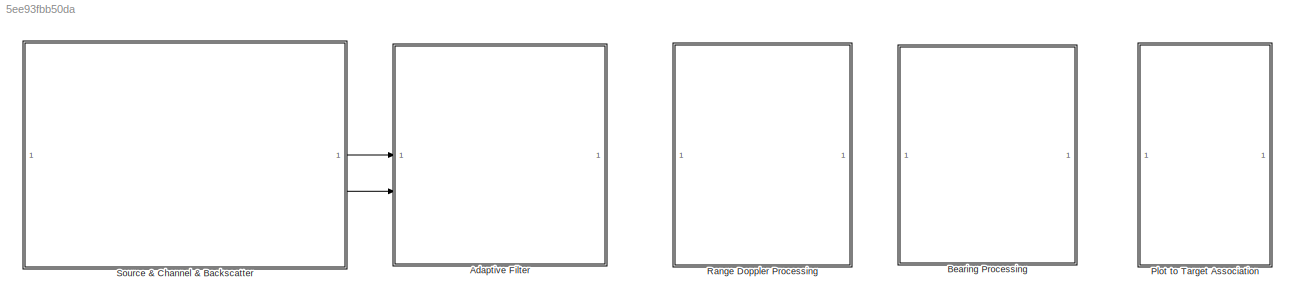
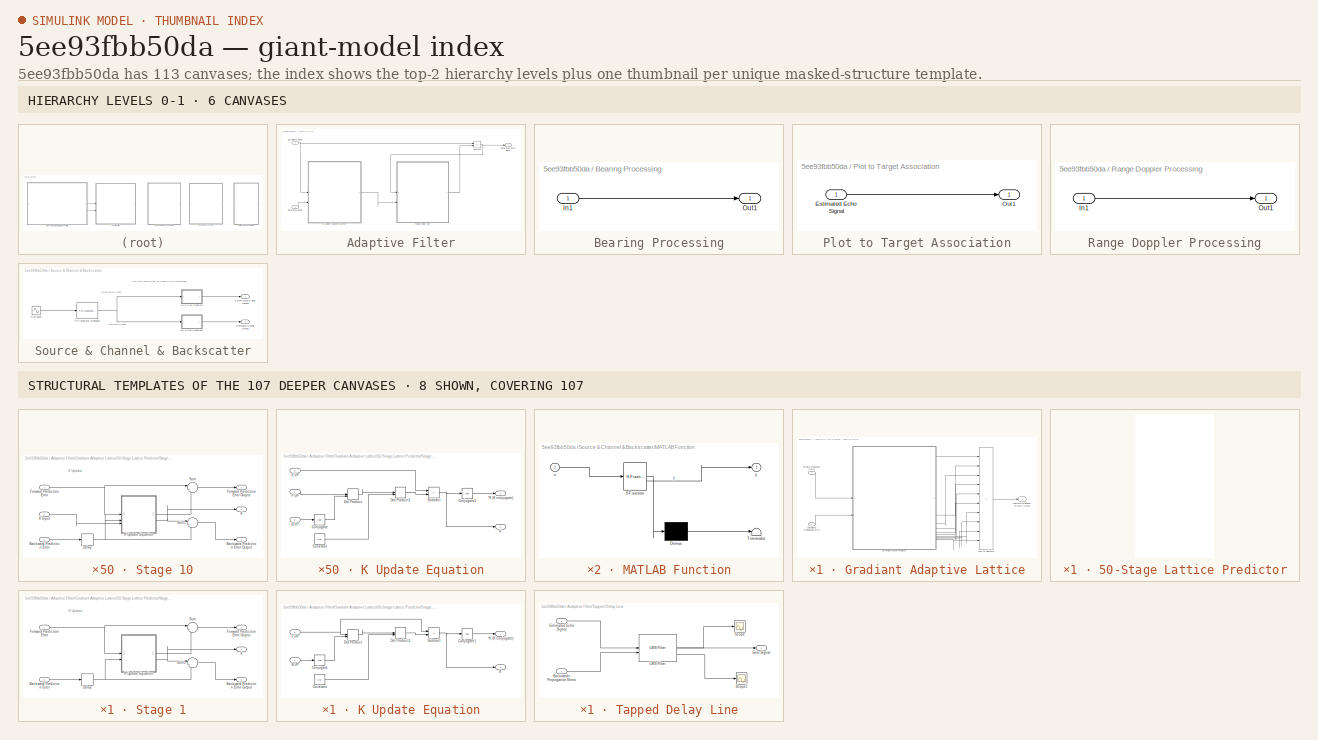
[diagram: thumbnail index - top-2 hierarchy levels (6 canvases) + 8 structural-template representatives of the remaining 107 canvases]
MODEL slx_5ee93fbb50da
KIND model
CONFIG AbsTol = auto
CONFIG EnableMultiTasking = off
CONFIG FixedStep = auto
CONFIG MaxStep = auto
CONFIG MinStep = auto
CONFIG RelTol = 1e-3
CONFIG SampleTimeConstraint = Unconstrained
CONFIG SolverName = VariableStepAuto
CONFIG StartTime = 0.0
CONFIG StopTime = 10.0
BLOCK [SubSystem] Adaptive Filter
BLOCK [Outport] Adaptive Filter/Estimated Echo Signal
BLOCK [SubSystem] Adaptive Filter/Gradiant Adaptive Lattice
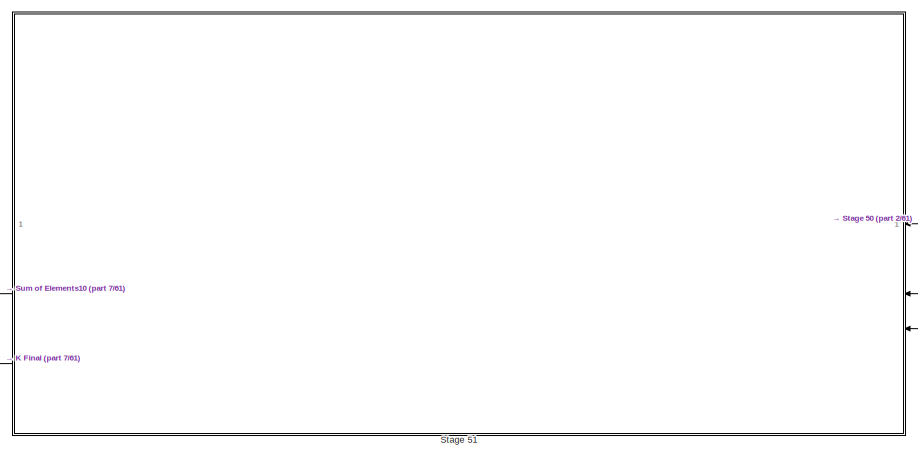
[diagram: Adaptive Filter/Gradiant Adaptive Lattice/50-Stage Lattice Predictor - part 1/61, top left region]
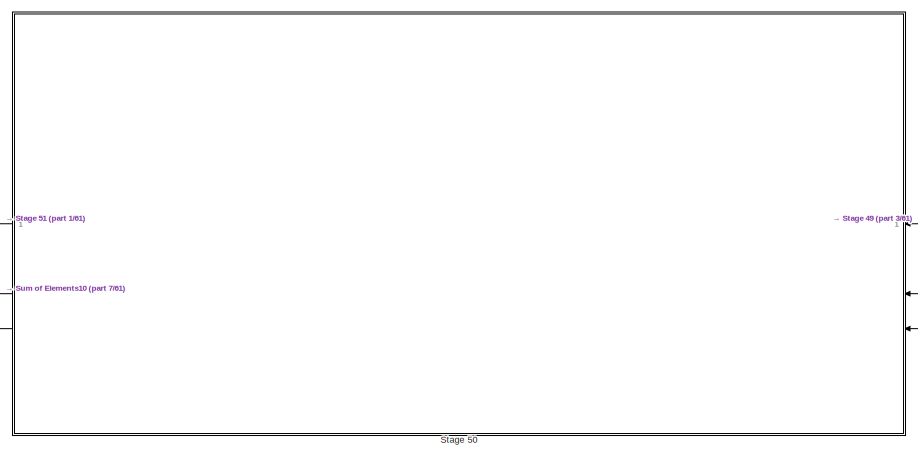
[diagram: Adaptive Filter/Gradiant Adaptive Lattice/50-Stage Lattice Predictor - part 2/61, top left region]
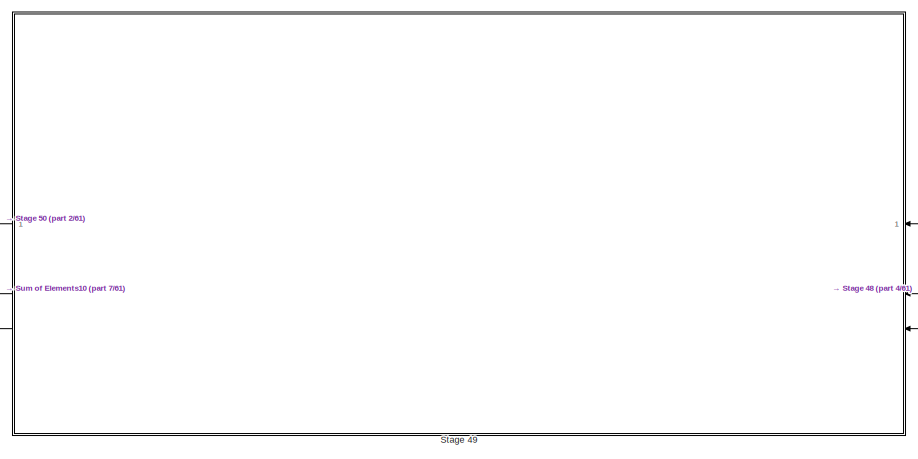
[diagram: Adaptive Filter/Gradiant Adaptive Lattice/50-Stage Lattice Predictor - part 3/61, top center region]
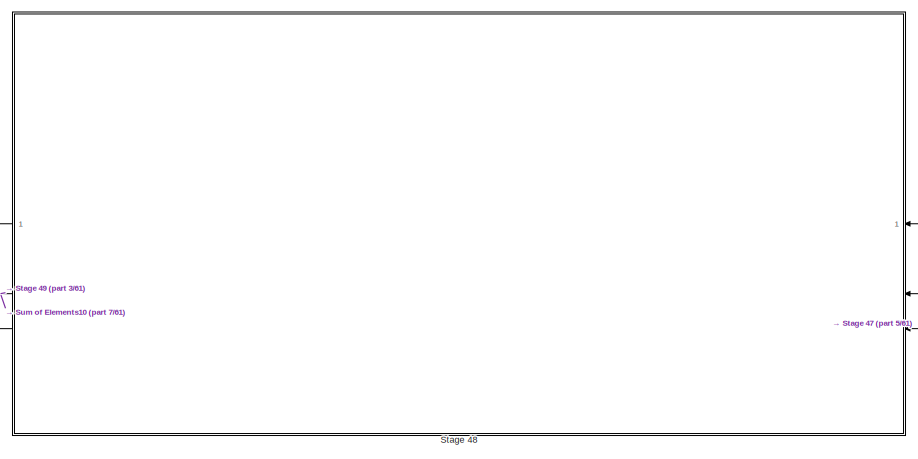
[diagram: Adaptive Filter/Gradiant Adaptive Lattice/50-Stage Lattice Predictor - part 4/61, top center region]
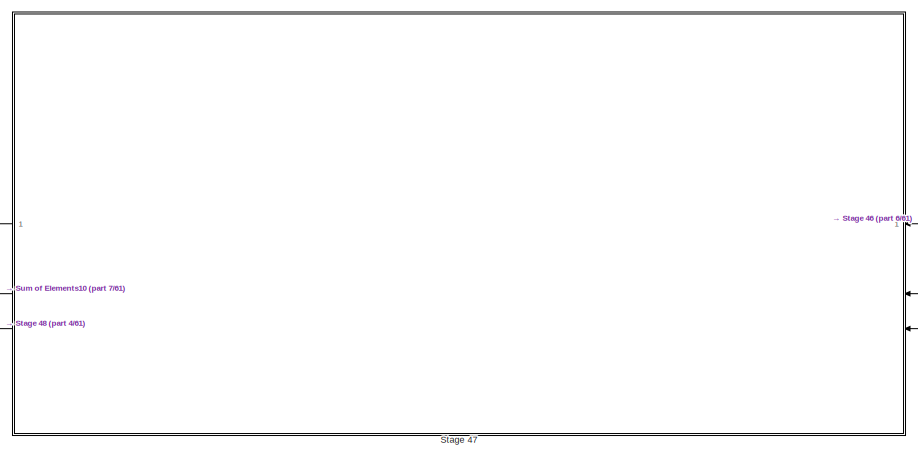
[diagram: Adaptive Filter/Gradiant Adaptive Lattice/50-Stage Lattice Predictor - part 5/61, top right region]
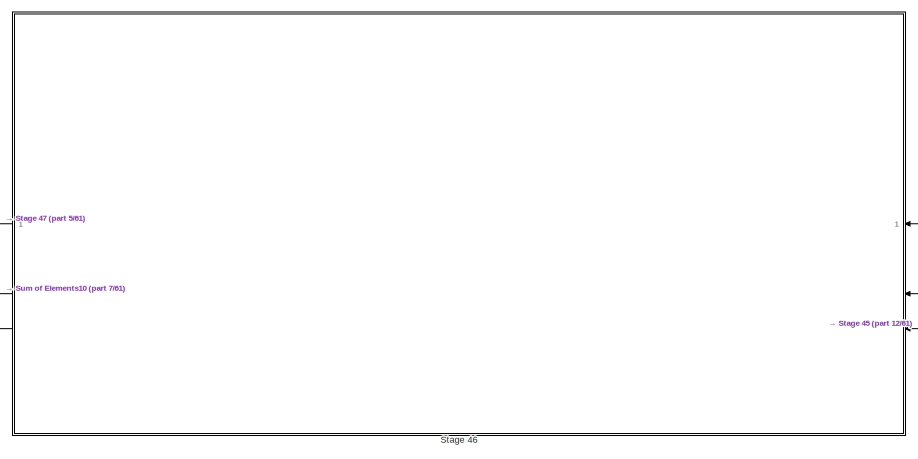
[diagram: Adaptive Filter/Gradiant Adaptive Lattice/50-Stage Lattice Predictor - part 6/61, top right region]
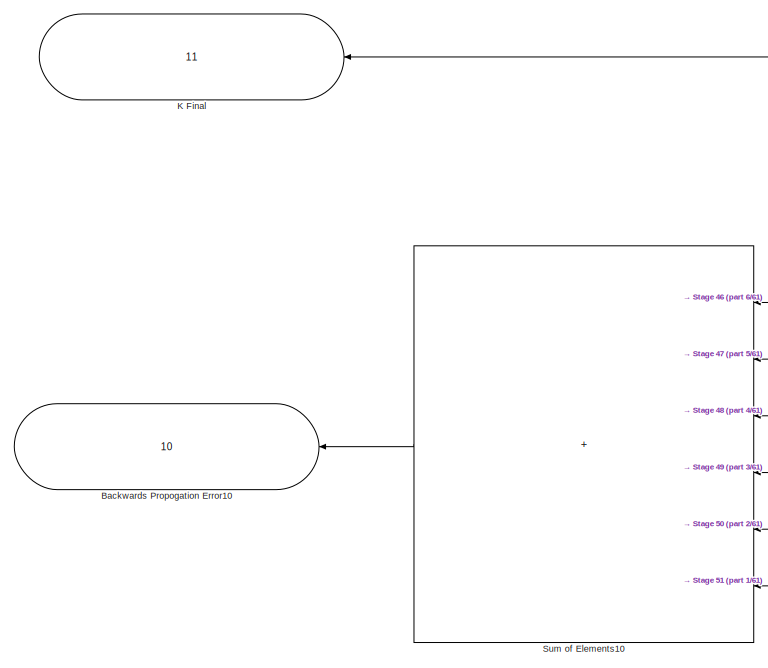
[diagram: Adaptive Filter/Gradiant Adaptive Lattice/50-Stage Lattice Predictor - part 7/61, top left region]
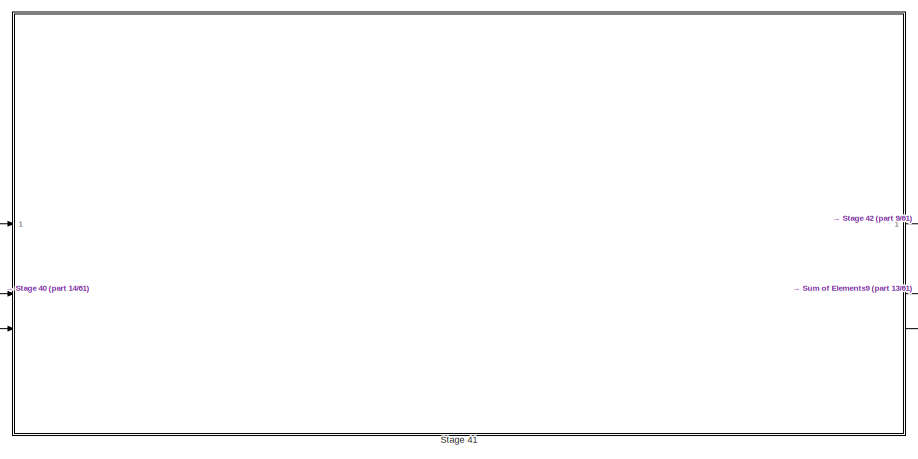
[diagram: Adaptive Filter/Gradiant Adaptive Lattice/50-Stage Lattice Predictor - part 8/61, top left region]
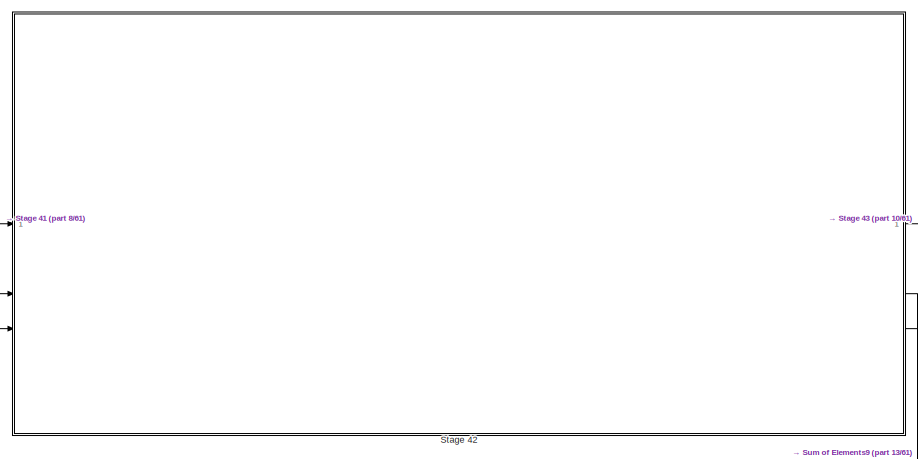
[diagram: Adaptive Filter/Gradiant Adaptive Lattice/50-Stage Lattice Predictor - part 9/61, top center region]
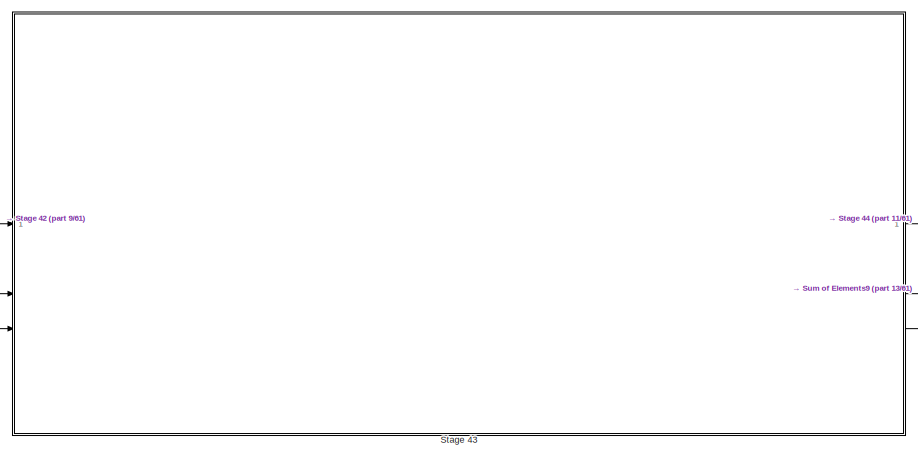
[diagram: Adaptive Filter/Gradiant Adaptive Lattice/50-Stage Lattice Predictor - part 10/61, top center region]
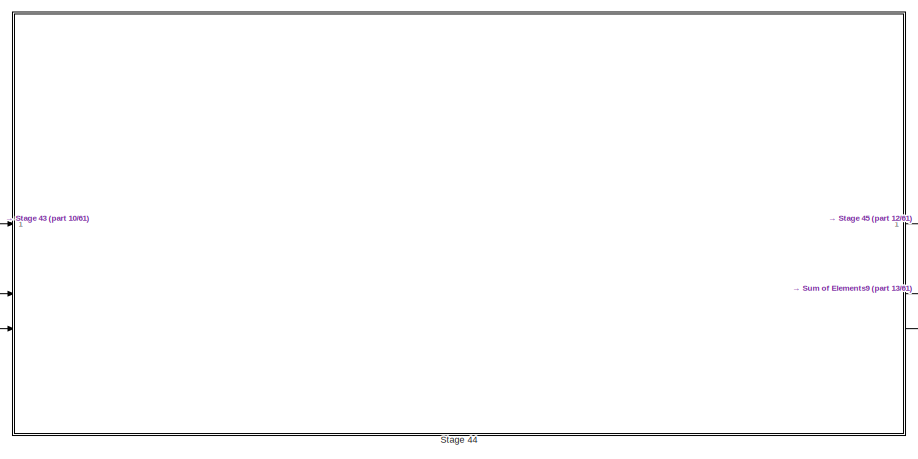
[diagram: Adaptive Filter/Gradiant Adaptive Lattice/50-Stage Lattice Predictor - part 11/61, top center region]
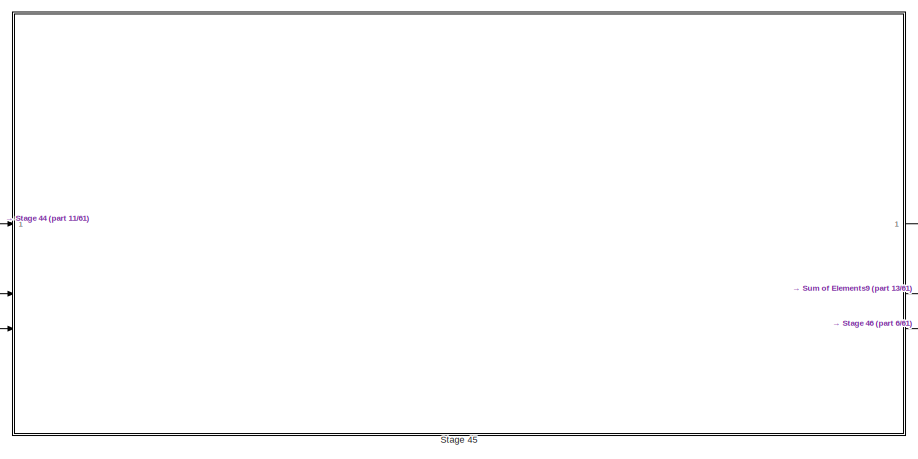
[diagram: Adaptive Filter/Gradiant Adaptive Lattice/50-Stage Lattice Predictor - part 12/61, top right region]
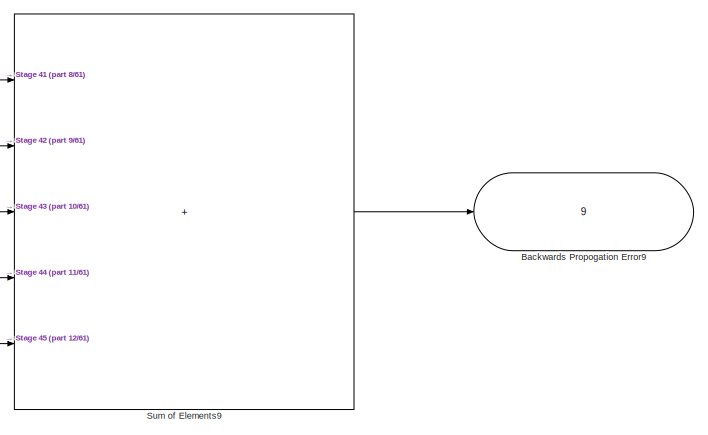
[diagram: Adaptive Filter/Gradiant Adaptive Lattice/50-Stage Lattice Predictor - part 13/61, top right region]
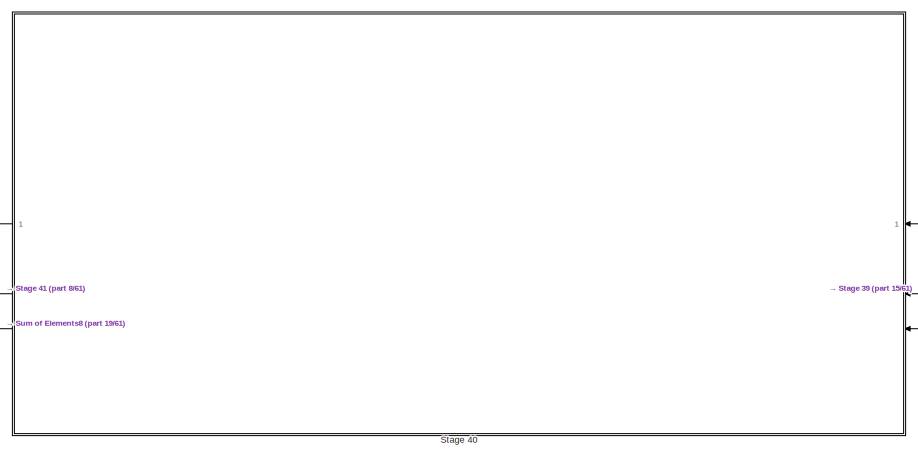
[diagram: Adaptive Filter/Gradiant Adaptive Lattice/50-Stage Lattice Predictor - part 14/61, top left region]
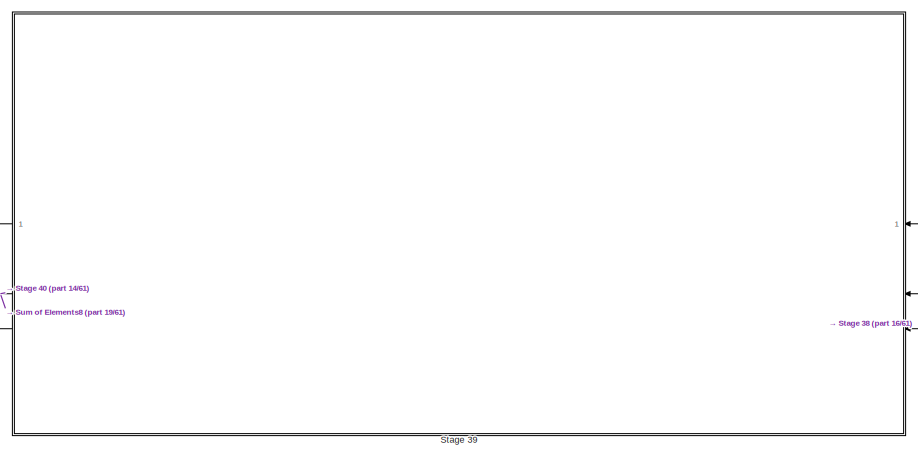
[diagram: Adaptive Filter/Gradiant Adaptive Lattice/50-Stage Lattice Predictor - part 15/61, top center region]
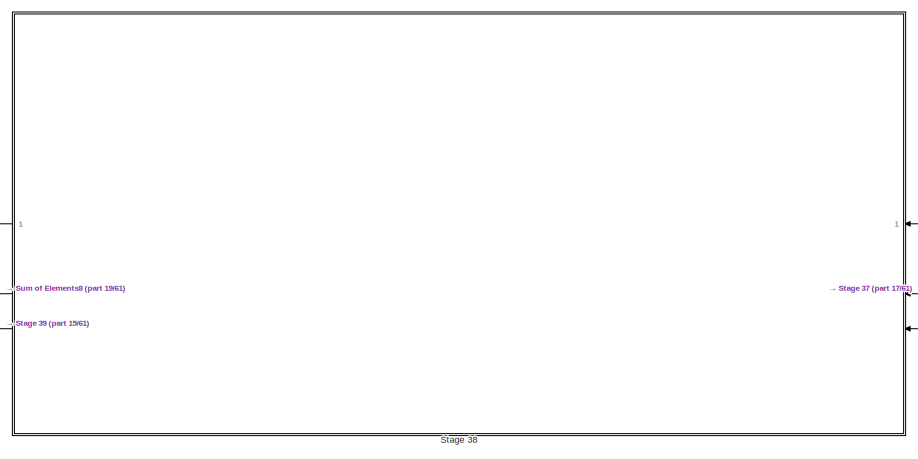
[diagram: Adaptive Filter/Gradiant Adaptive Lattice/50-Stage Lattice Predictor - part 16/61, top center region]
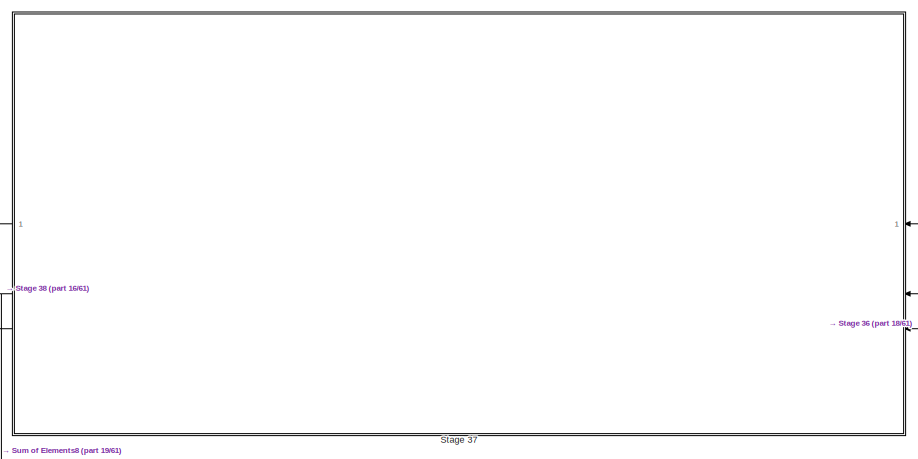
[diagram: Adaptive Filter/Gradiant Adaptive Lattice/50-Stage Lattice Predictor - part 17/61, top center region]
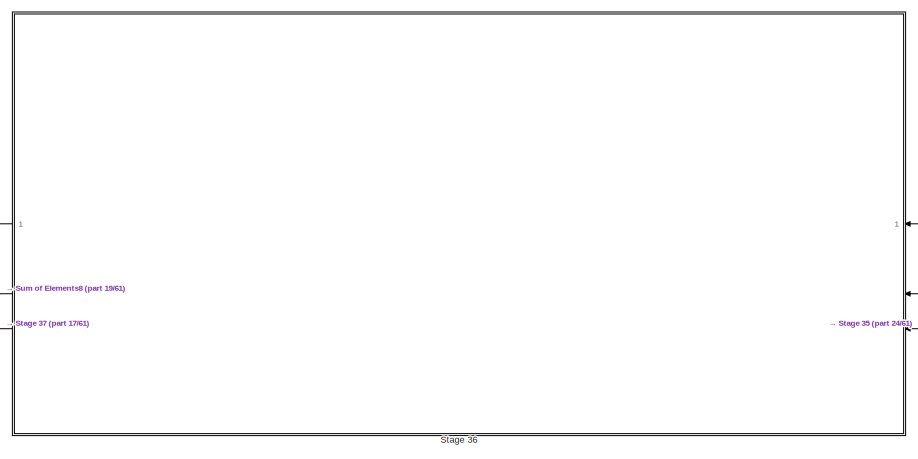
[diagram: Adaptive Filter/Gradiant Adaptive Lattice/50-Stage Lattice Predictor - part 18/61, top right region]
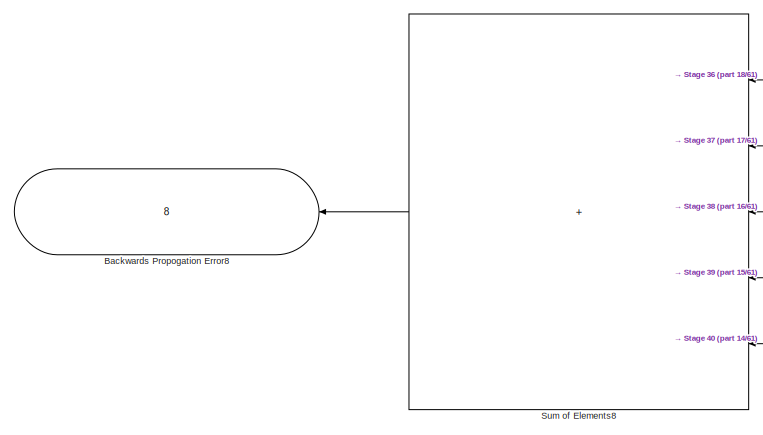
[diagram: Adaptive Filter/Gradiant Adaptive Lattice/50-Stage Lattice Predictor - part 19/61, top left region]
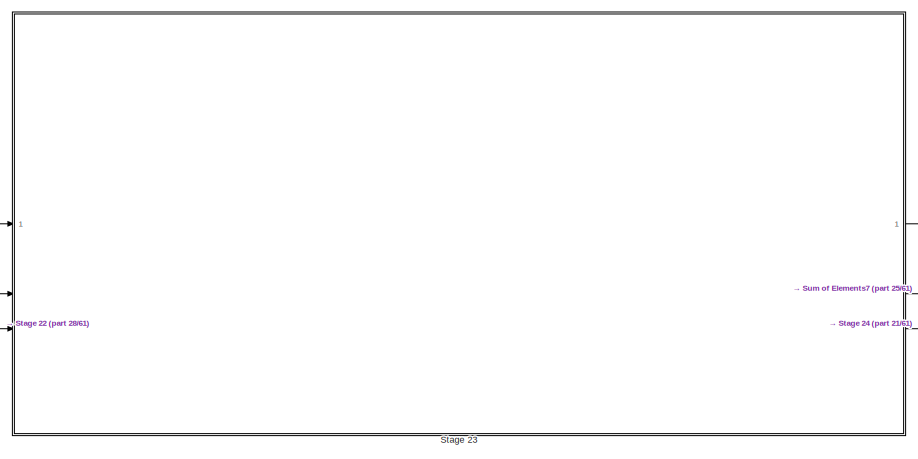
[diagram: Adaptive Filter/Gradiant Adaptive Lattice/50-Stage Lattice Predictor - part 20/61, top left region]
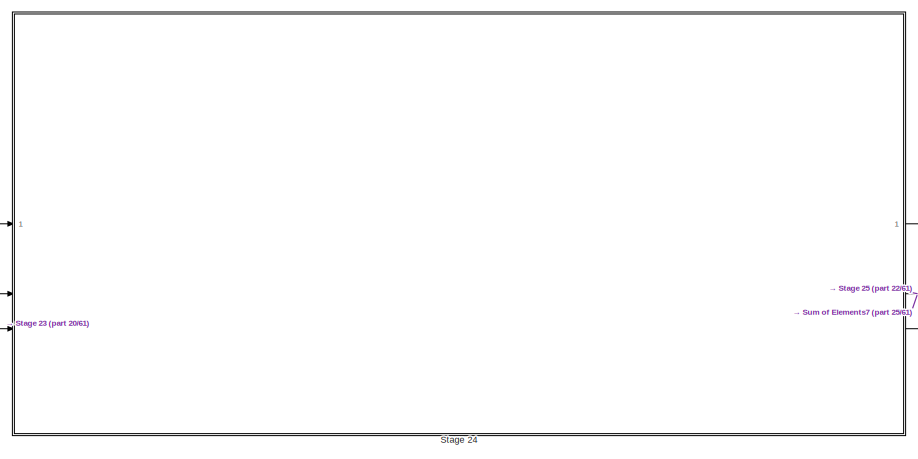
[diagram: Adaptive Filter/Gradiant Adaptive Lattice/50-Stage Lattice Predictor - part 21/61, top center region]
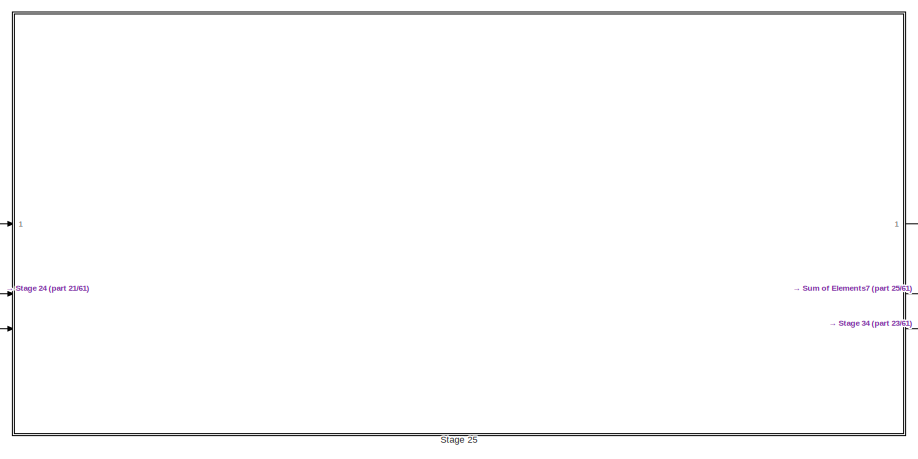
[diagram: Adaptive Filter/Gradiant Adaptive Lattice/50-Stage Lattice Predictor - part 22/61, top center region]
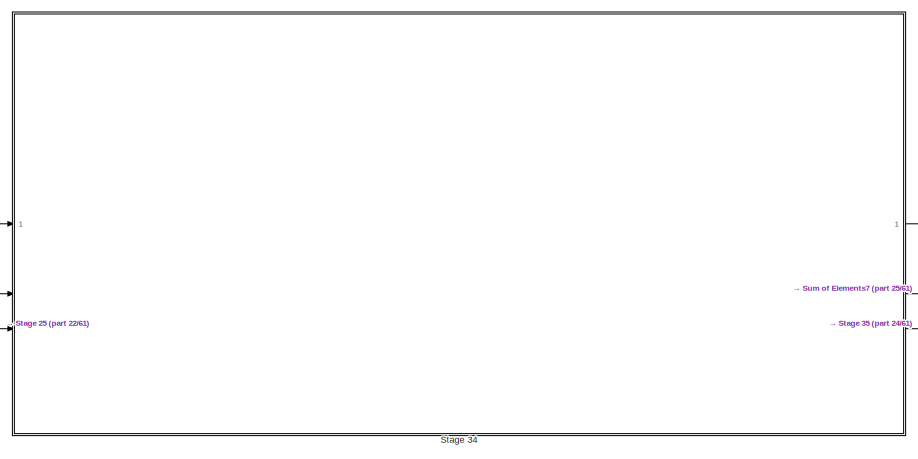
[diagram: Adaptive Filter/Gradiant Adaptive Lattice/50-Stage Lattice Predictor - part 23/61, top center region]
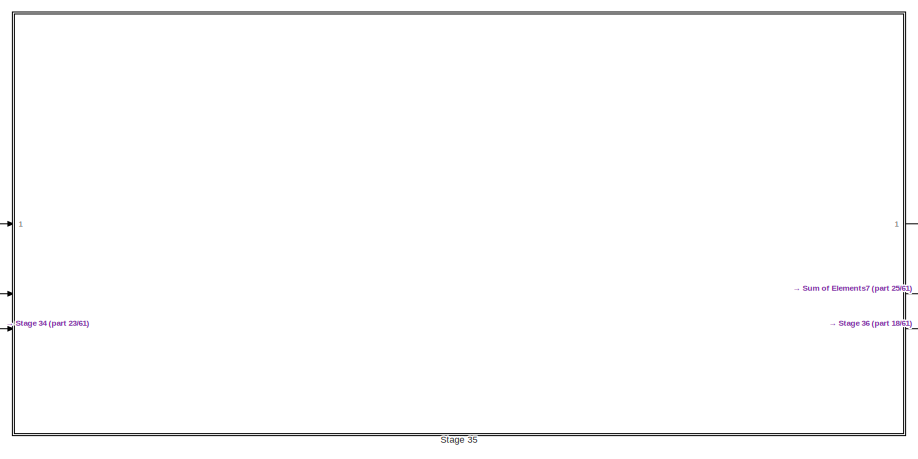
[diagram: Adaptive Filter/Gradiant Adaptive Lattice/50-Stage Lattice Predictor - part 24/61, top right region]
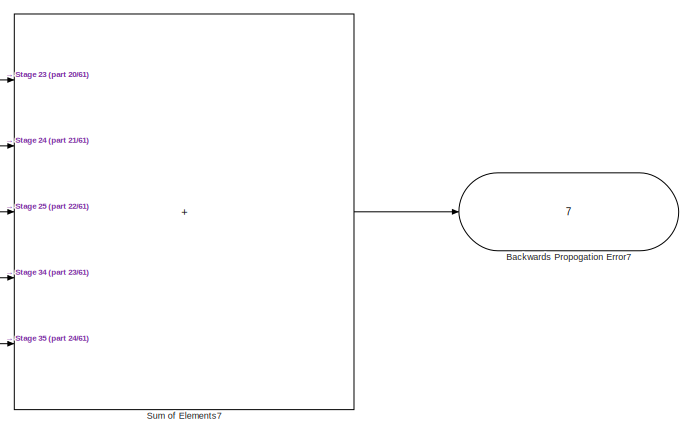
[diagram: Adaptive Filter/Gradiant Adaptive Lattice/50-Stage Lattice Predictor - part 25/61, middle right region]
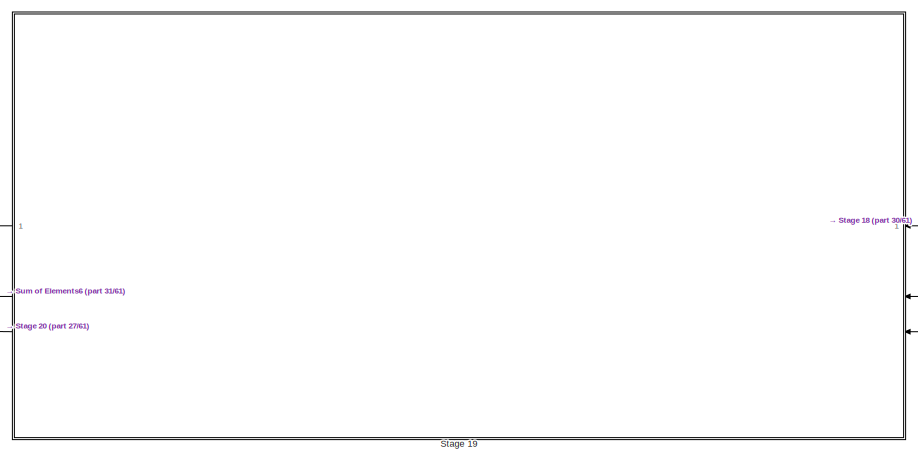
[diagram: Adaptive Filter/Gradiant Adaptive Lattice/50-Stage Lattice Predictor - part 26/61, central region]
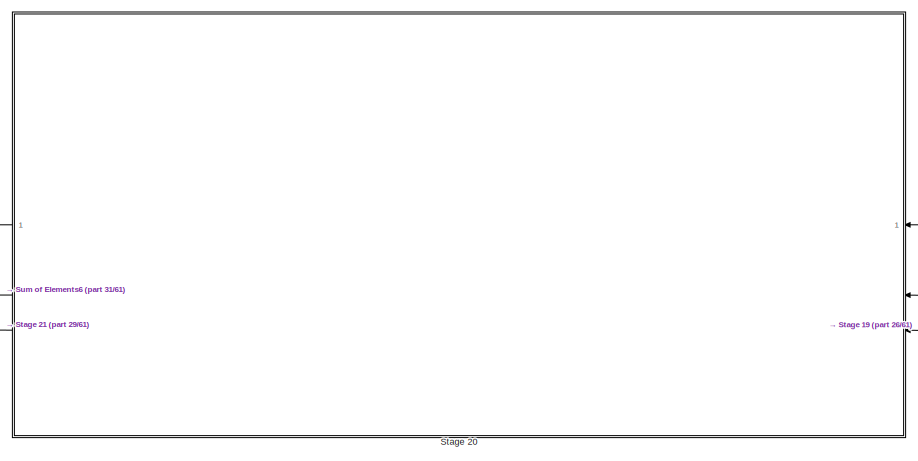
[diagram: Adaptive Filter/Gradiant Adaptive Lattice/50-Stage Lattice Predictor - part 27/61, central region]
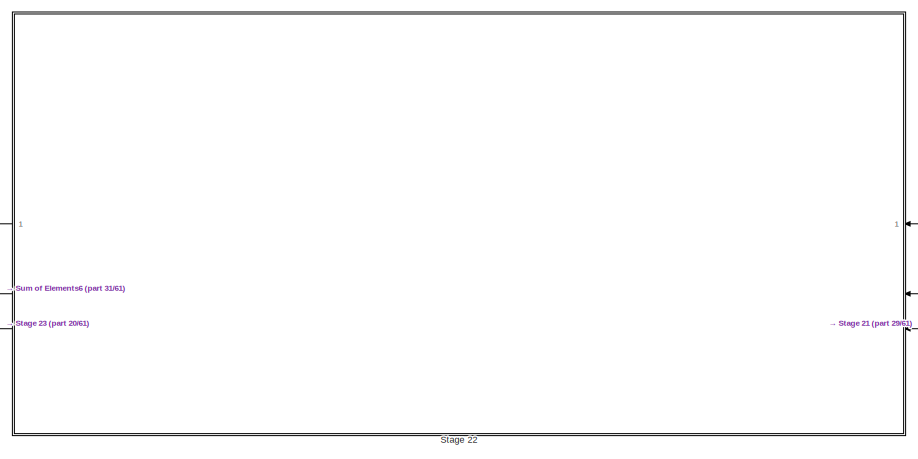
[diagram: Adaptive Filter/Gradiant Adaptive Lattice/50-Stage Lattice Predictor - part 28/61, middle left region]
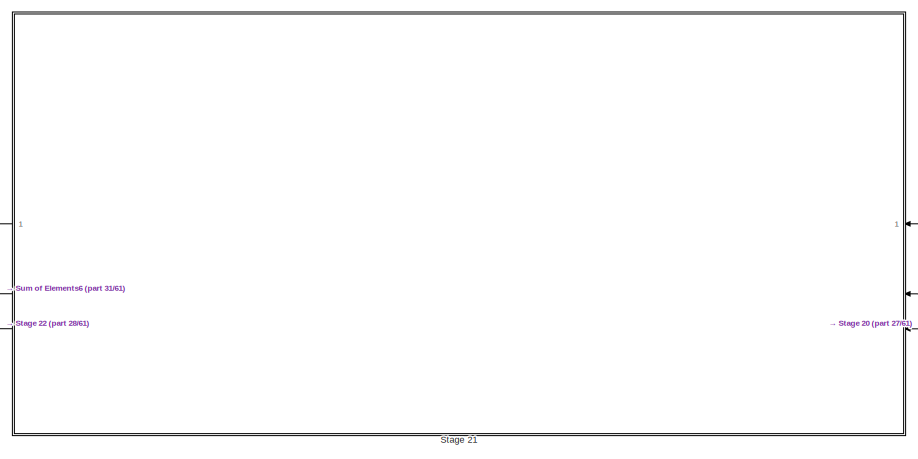
[diagram: Adaptive Filter/Gradiant Adaptive Lattice/50-Stage Lattice Predictor - part 29/61, central region]
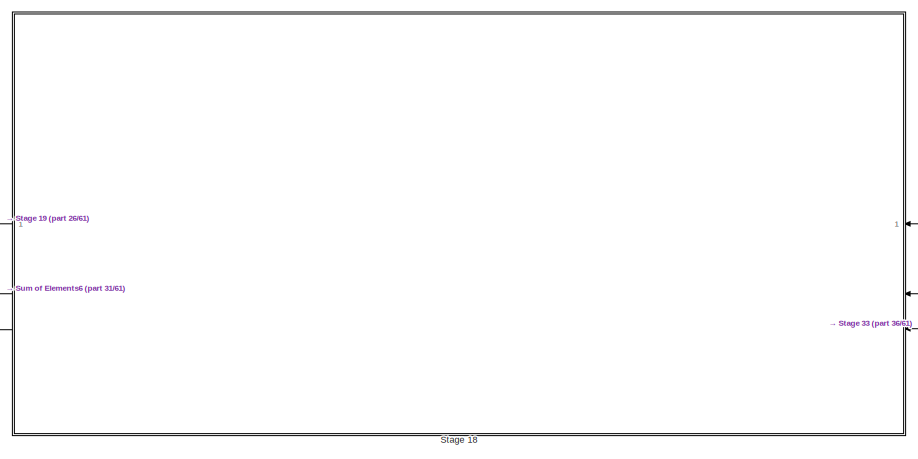
[diagram: Adaptive Filter/Gradiant Adaptive Lattice/50-Stage Lattice Predictor - part 30/61, middle right region]
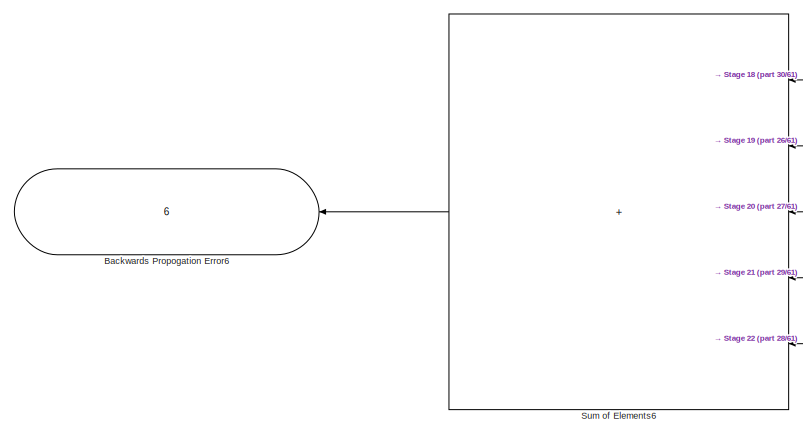
[diagram: Adaptive Filter/Gradiant Adaptive Lattice/50-Stage Lattice Predictor - part 31/61, middle left region]
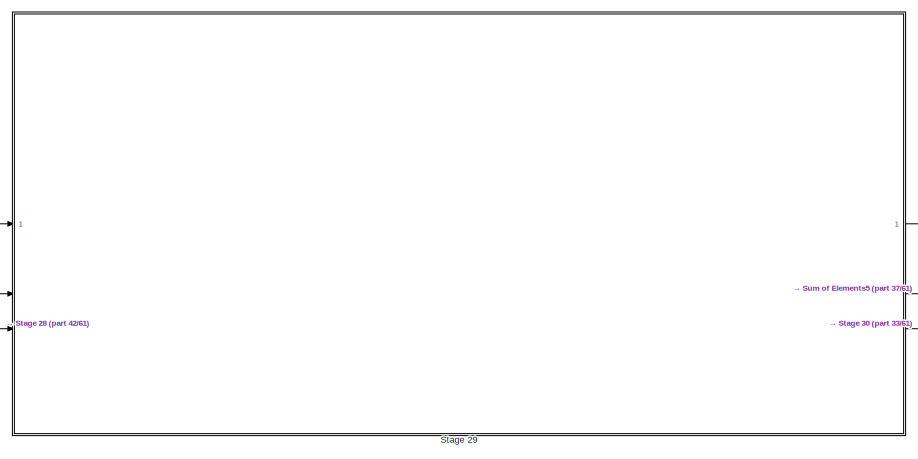
[diagram: Adaptive Filter/Gradiant Adaptive Lattice/50-Stage Lattice Predictor - part 32/61, middle left region]
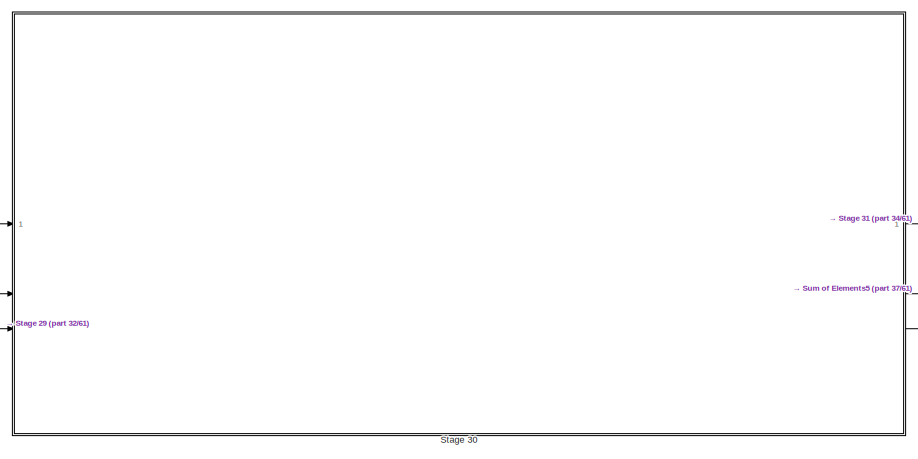
[diagram: Adaptive Filter/Gradiant Adaptive Lattice/50-Stage Lattice Predictor - part 33/61, central region]
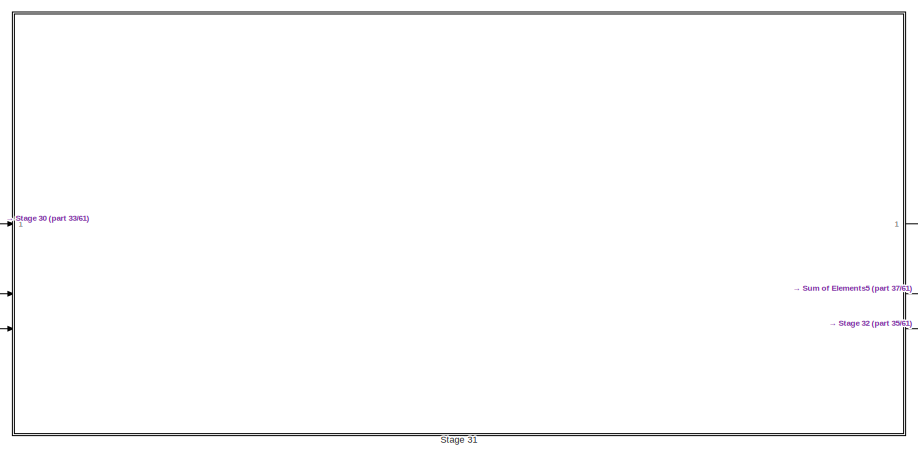
[diagram: Adaptive Filter/Gradiant Adaptive Lattice/50-Stage Lattice Predictor - part 34/61, central region]
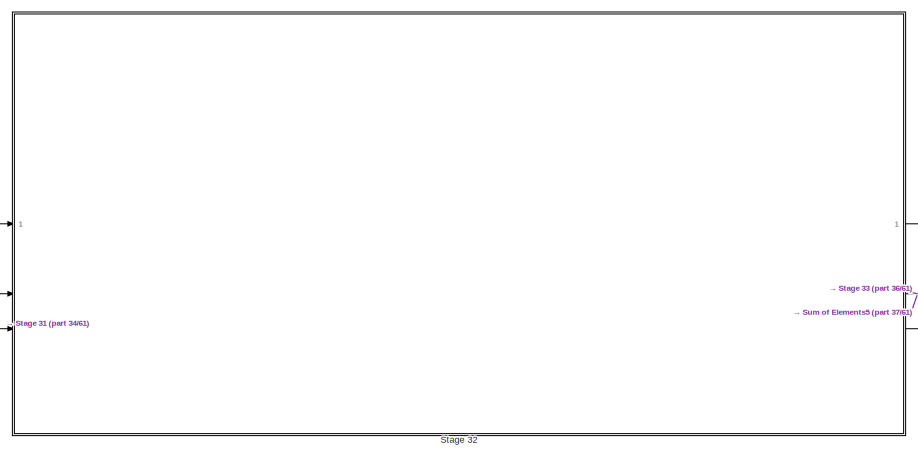
[diagram: Adaptive Filter/Gradiant Adaptive Lattice/50-Stage Lattice Predictor - part 35/61, central region]
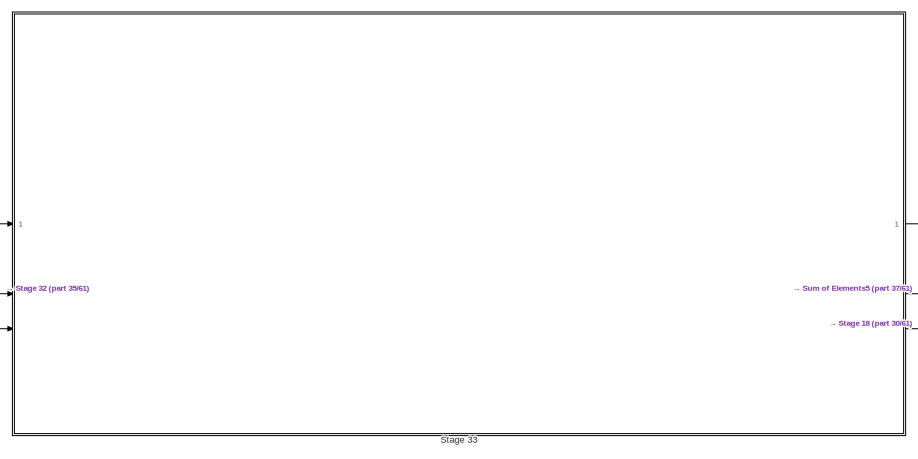
[diagram: Adaptive Filter/Gradiant Adaptive Lattice/50-Stage Lattice Predictor - part 36/61, middle right region]
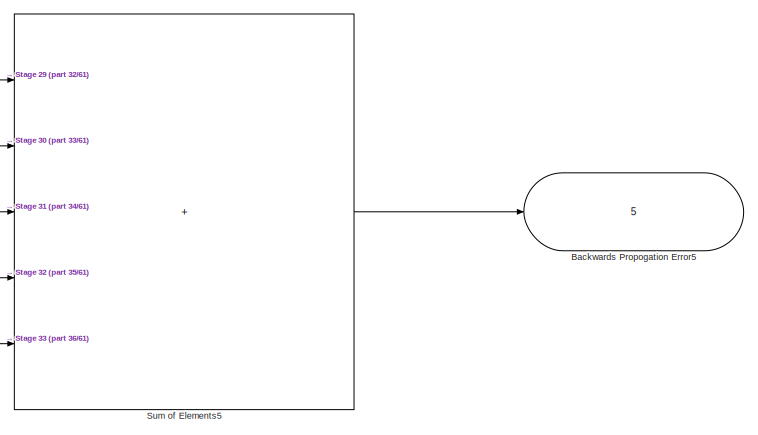
[diagram: Adaptive Filter/Gradiant Adaptive Lattice/50-Stage Lattice Predictor - part 37/61, middle right region]
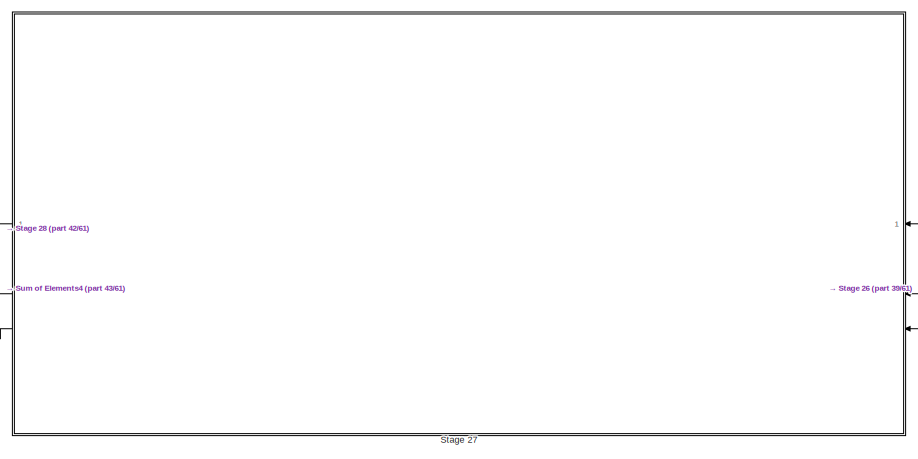
[diagram: Adaptive Filter/Gradiant Adaptive Lattice/50-Stage Lattice Predictor - part 38/61, central region]
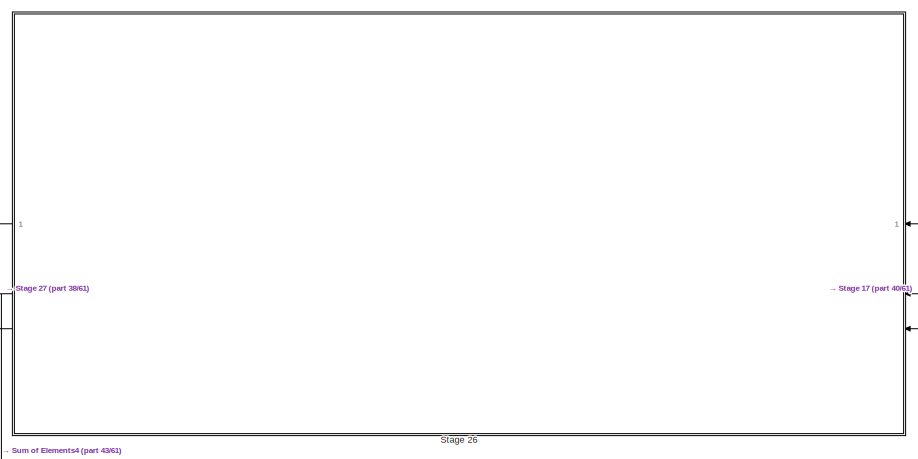
[diagram: Adaptive Filter/Gradiant Adaptive Lattice/50-Stage Lattice Predictor - part 39/61, central region]
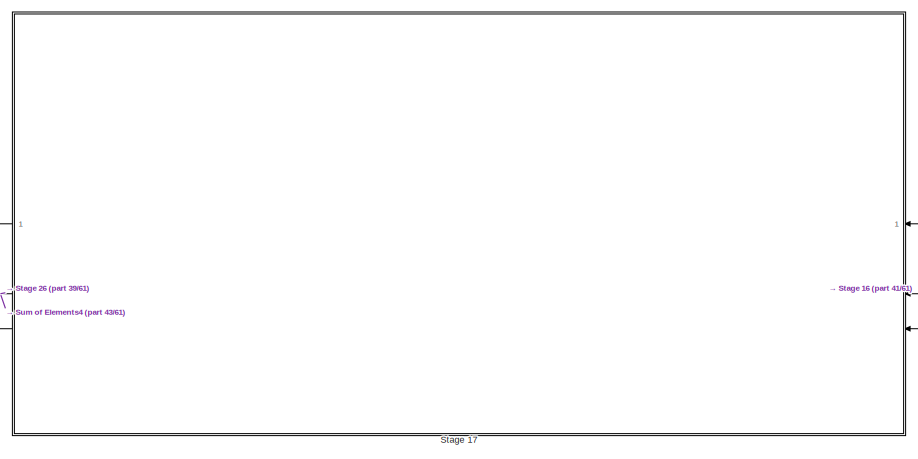
[diagram: Adaptive Filter/Gradiant Adaptive Lattice/50-Stage Lattice Predictor - part 40/61, central region]
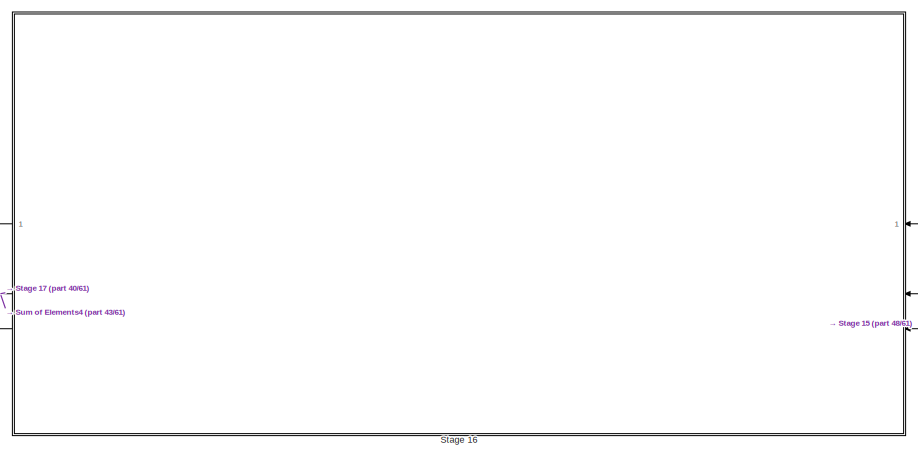
[diagram: Adaptive Filter/Gradiant Adaptive Lattice/50-Stage Lattice Predictor - part 41/61, middle right region]
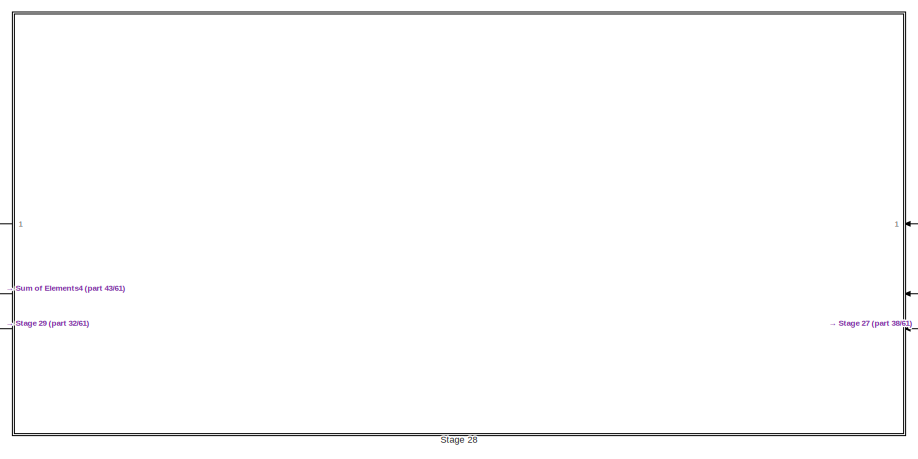
[diagram: Adaptive Filter/Gradiant Adaptive Lattice/50-Stage Lattice Predictor - part 42/61, middle left region]
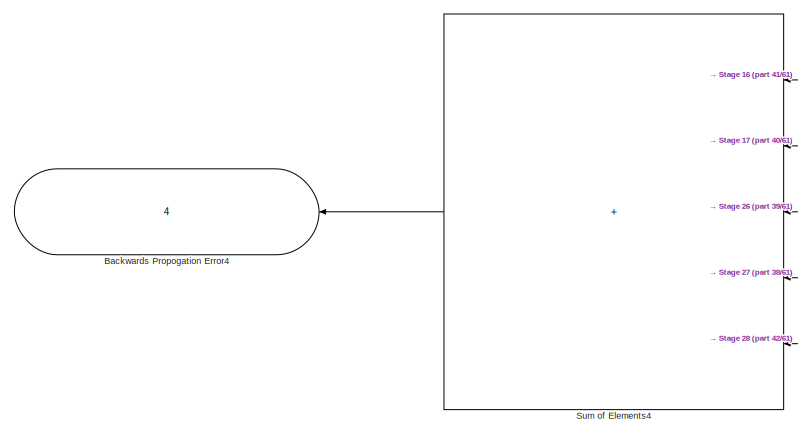
[diagram: Adaptive Filter/Gradiant Adaptive Lattice/50-Stage Lattice Predictor - part 43/61, middle left region]
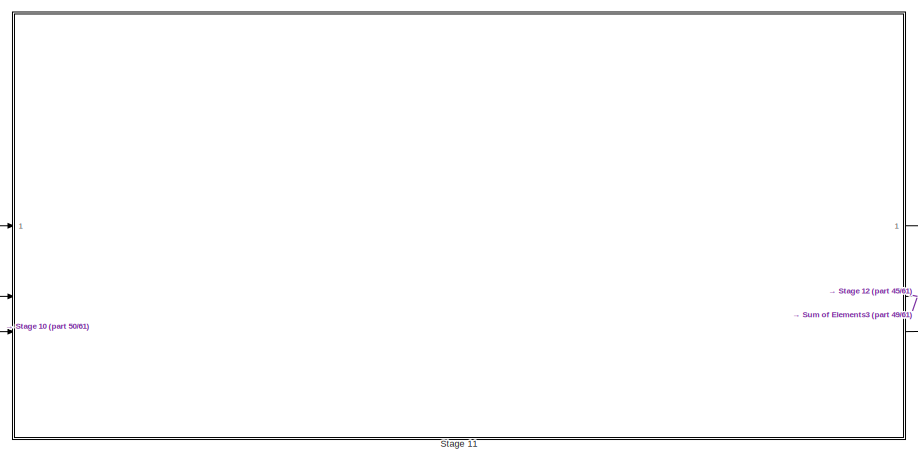
[diagram: Adaptive Filter/Gradiant Adaptive Lattice/50-Stage Lattice Predictor - part 44/61, bottom left region]
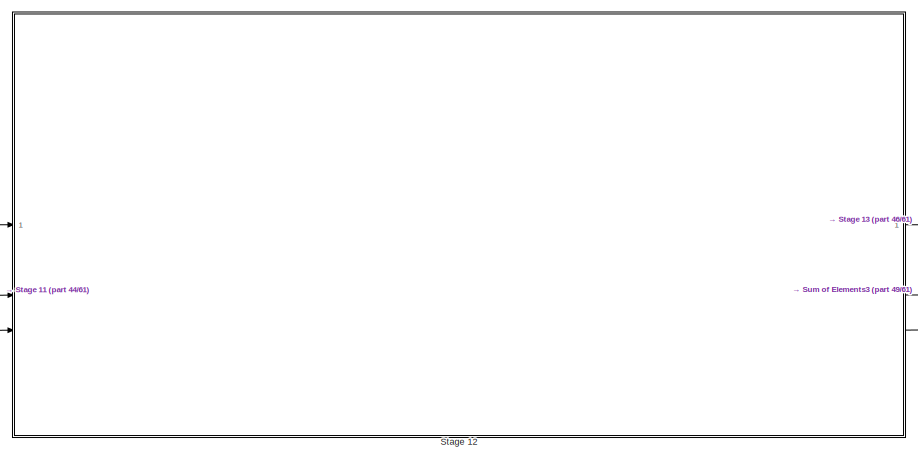
[diagram: Adaptive Filter/Gradiant Adaptive Lattice/50-Stage Lattice Predictor - part 45/61, bottom center region]
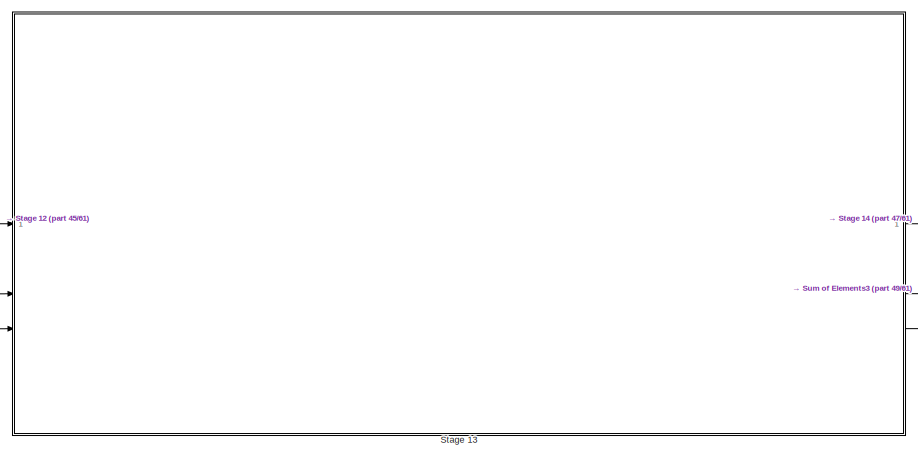
[diagram: Adaptive Filter/Gradiant Adaptive Lattice/50-Stage Lattice Predictor - part 46/61, bottom center region]
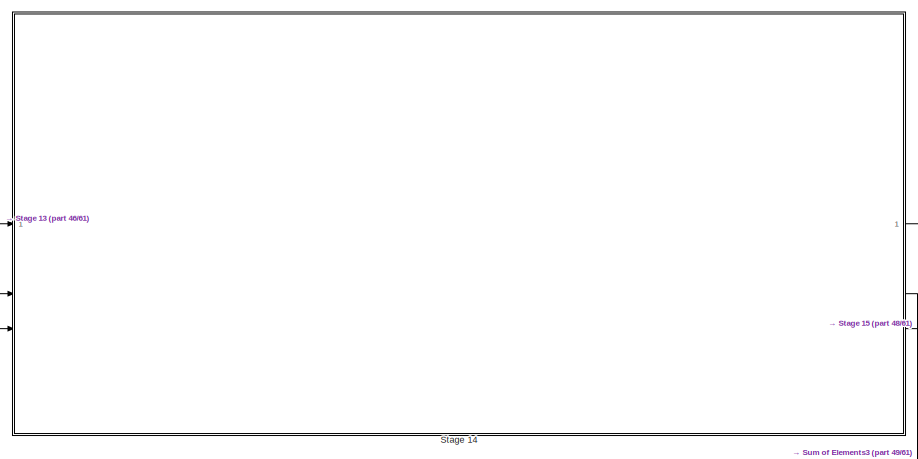
[diagram: Adaptive Filter/Gradiant Adaptive Lattice/50-Stage Lattice Predictor - part 47/61, bottom center region]
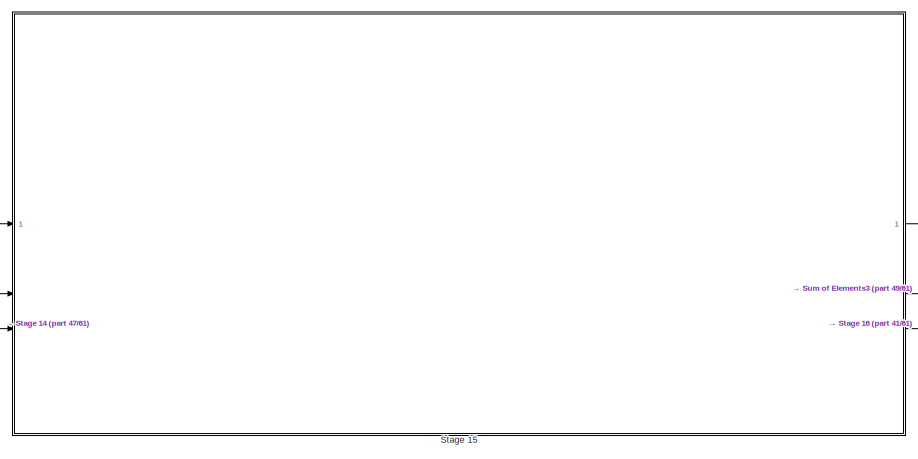
[diagram: Adaptive Filter/Gradiant Adaptive Lattice/50-Stage Lattice Predictor - part 48/61, bottom right region]
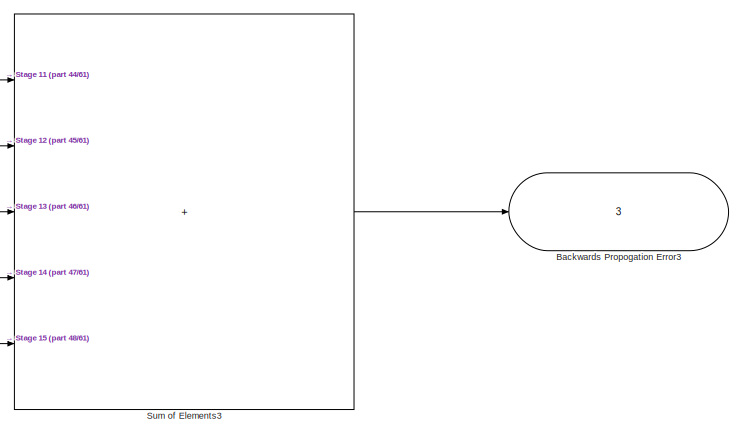
[diagram: Adaptive Filter/Gradiant Adaptive Lattice/50-Stage Lattice Predictor - part 49/61, bottom right region]
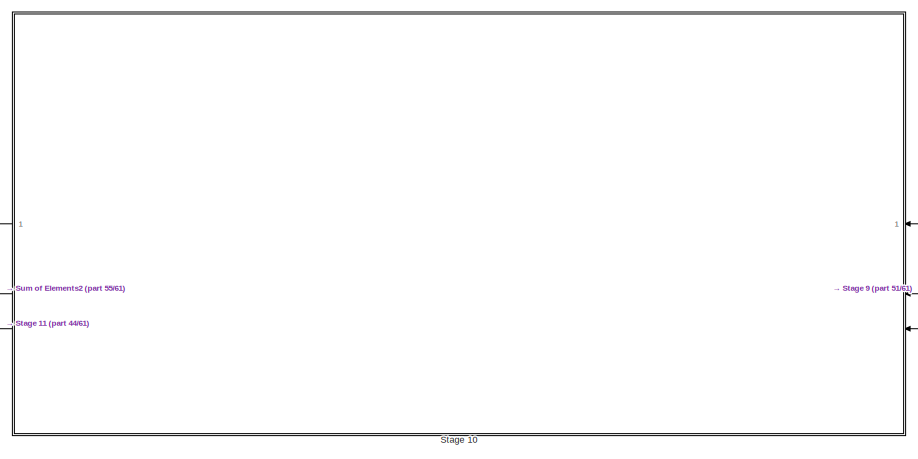
[diagram: Adaptive Filter/Gradiant Adaptive Lattice/50-Stage Lattice Predictor - part 50/61, bottom left region]
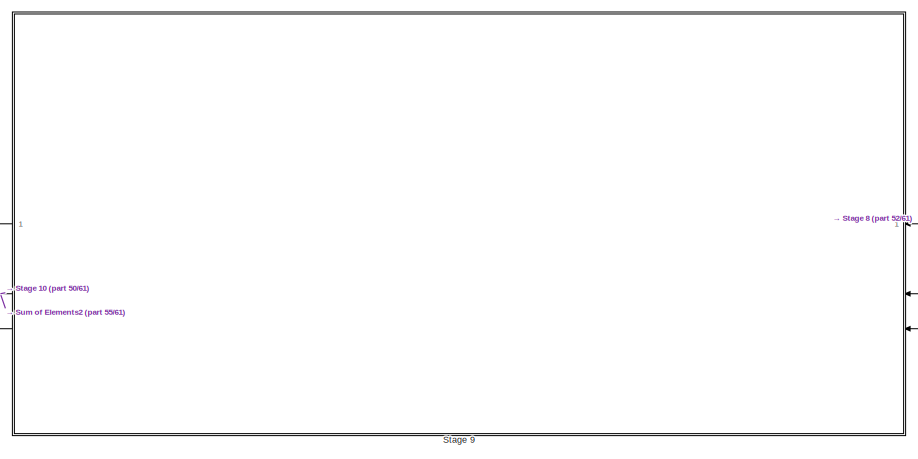
[diagram: Adaptive Filter/Gradiant Adaptive Lattice/50-Stage Lattice Predictor - part 51/61, bottom center region]
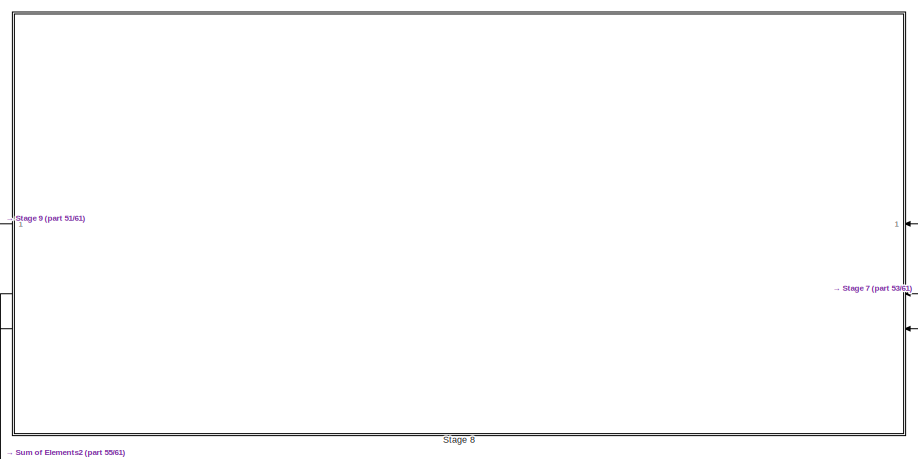
[diagram: Adaptive Filter/Gradiant Adaptive Lattice/50-Stage Lattice Predictor - part 52/61, bottom center region]
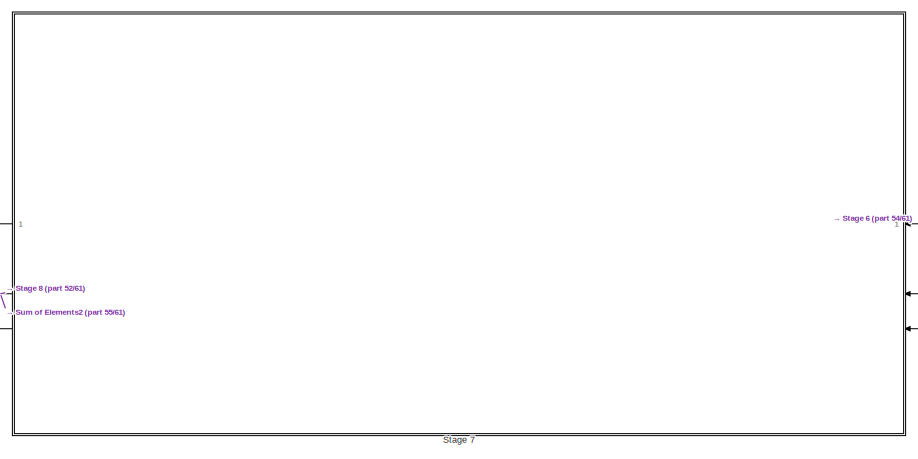
[diagram: Adaptive Filter/Gradiant Adaptive Lattice/50-Stage Lattice Predictor - part 53/61, bottom center region]
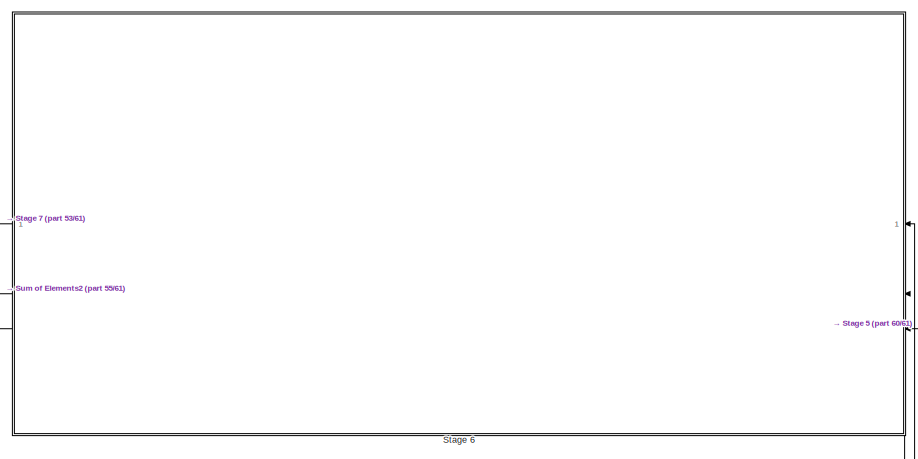
[diagram: Adaptive Filter/Gradiant Adaptive Lattice/50-Stage Lattice Predictor - part 54/61, bottom right region]
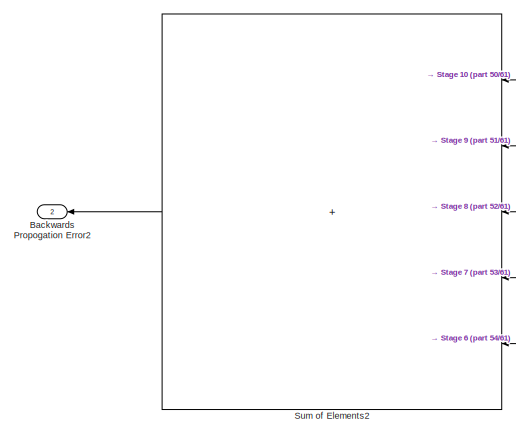
[diagram: Adaptive Filter/Gradiant Adaptive Lattice/50-Stage Lattice Predictor - part 55/61, bottom left region]
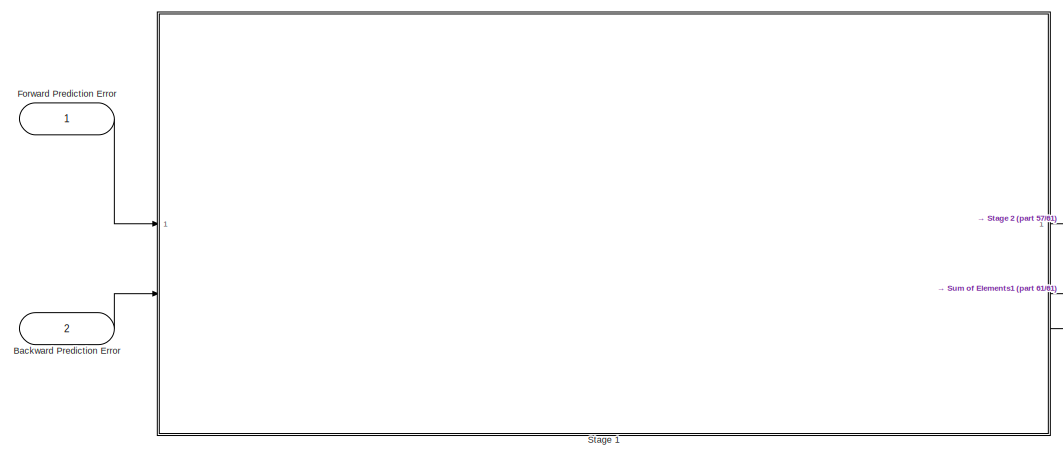
[diagram: Adaptive Filter/Gradiant Adaptive Lattice/50-Stage Lattice Predictor - part 56/61, bottom left region]
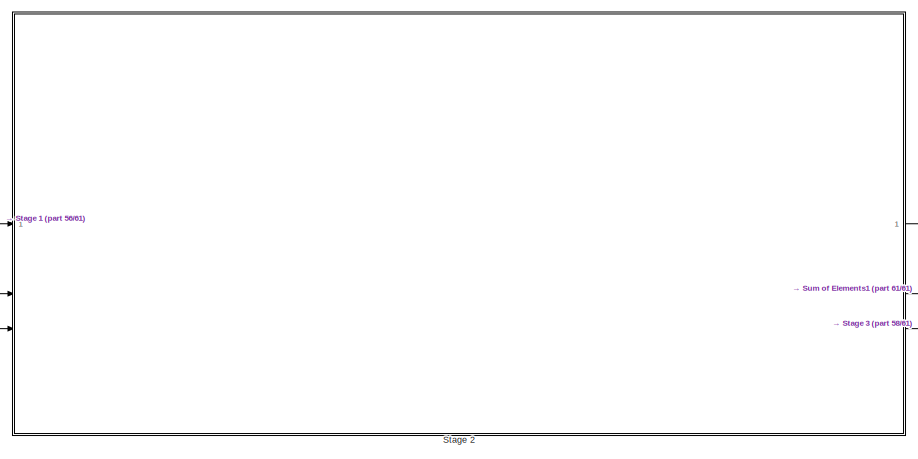
[diagram: Adaptive Filter/Gradiant Adaptive Lattice/50-Stage Lattice Predictor - part 57/61, bottom center region]
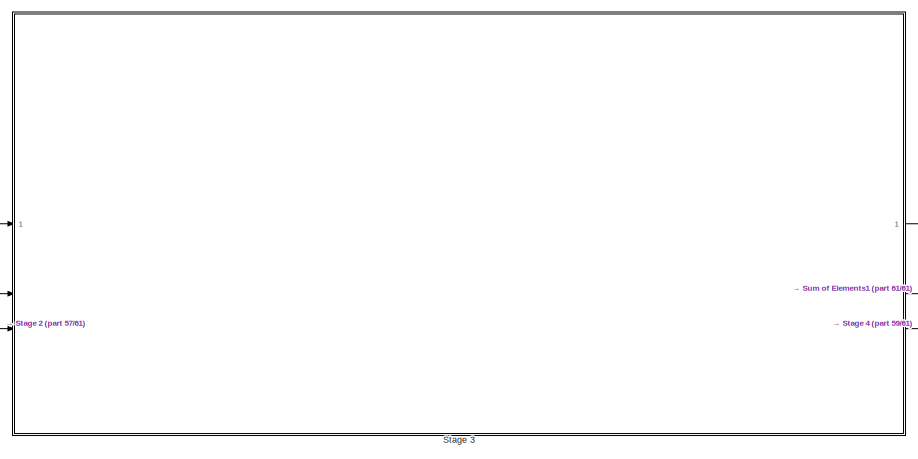
[diagram: Adaptive Filter/Gradiant Adaptive Lattice/50-Stage Lattice Predictor - part 58/61, bottom center region]
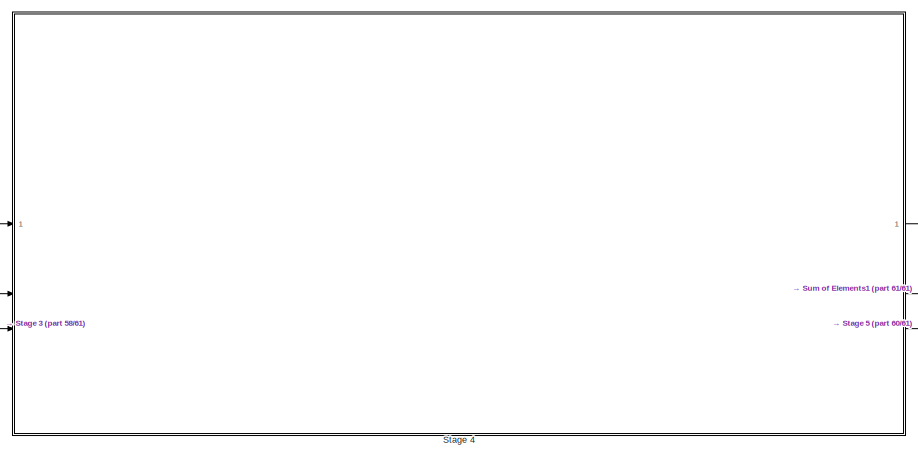
[diagram: Adaptive Filter/Gradiant Adaptive Lattice/50-Stage Lattice Predictor - part 59/61, bottom center region]
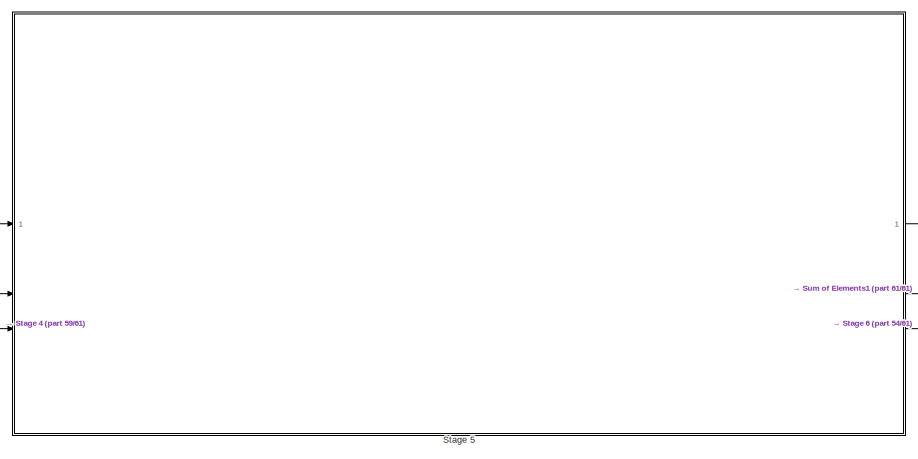
[diagram: Adaptive Filter/Gradiant Adaptive Lattice/50-Stage Lattice Predictor - part 60/61, bottom right region]
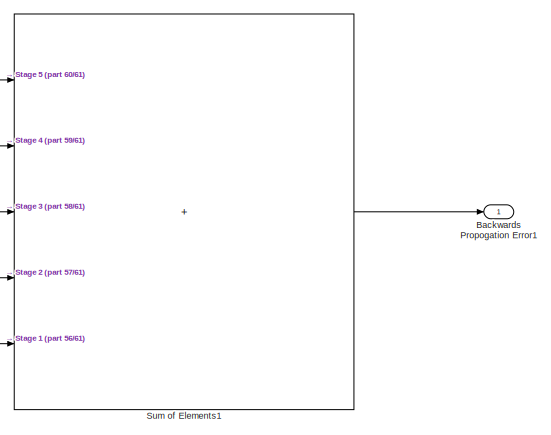
[diagram: Adaptive Filter/Gradiant Adaptive Lattice/50-Stage Lattice Predictor - part 61/61, bottom right region]
BLOCK [SubSystem] Adaptive Filter/Gradiant Adaptive Lattice/50-Stage Lattice Predictor
BLOCK [Inport] Adaptive Filter/Gradiant Adaptive Lattice/50-Stage Lattice Predictor/Backward Prediction Error
  Port = 2
BLOCK [Outport] Adaptive Filter/Gradiant Adaptive Lattice/50-Stage Lattice Predictor/Backwards Propogation Error1
  NameLocation = top
BLOCK [Outport] Adaptive Filter/Gradiant Adaptive Lattice/50-Stage Lattice Predictor/Backwards Propogation Error10
  NameLocation = top
  Port = 10
BLOCK [Outport] Adaptive Filter/Gradiant Adaptive Lattice/50-Stage Lattice Predictor/Backwards Propogation Error2
  NameLocation = top
  Port = 2
BLOCK [Outport] Adaptive Filter/Gradiant Adaptive Lattice/50-Stage Lattice Predictor/Backwards Propogation Error3
  NameLocation = top
  Port = 3
BLOCK [Outport] Adaptive Filter/Gradiant Adaptive Lattice/50-Stage Lattice Predictor/Backwards Propogation Error4
  NameLocation = top
  Port = 4
BLOCK [Outport] Adaptive Filter/Gradiant Adaptive Lattice/50-Stage Lattice Predictor/Backwards Propogation Error5
  NameLocation = top
  Port = 5
BLOCK [Outport] Adaptive Filter/Gradiant Adaptive Lattice/50-Stage Lattice Predictor/Backwards Propogation Error6
  NameLocation = top
  Port = 6
BLOCK [Outport] Adaptive Filter/Gradiant Adaptive Lattice/50-Stage Lattice Predictor/Backwards Propogation Error7
  NameLocation = top
  Port = 7
BLOCK [Outport] Adaptive Filter/Gradiant Adaptive Lattice/50-Stage Lattice Predictor/Backwards Propogation Error8
  NameLocation = top
  Port = 8
BLOCK [Outport] Adaptive Filter/Gradiant Adaptive Lattice/50-Stage Lattice Predictor/Backwards Propogation Error9
  NameLocation = top
  Port = 9
BLOCK [Inport] Adaptive Filter/Gradiant Adaptive Lattice/50-Stage Lattice Predictor/Forward Prediction Error
BLOCK [Outport] Adaptive Filter/Gradiant Adaptive Lattice/50-Stage Lattice Predictor/K Final
  NameLocation = top
  Port = 11
BLOCK [SubSystem] Adaptive Filter/Gradiant Adaptive Lattice/50-Stage Lattice Predictor/Stage 1
BLOCK [Inport] Adaptive Filter/Gradiant Adaptive Lattice/50-Stage Lattice Predictor/Stage 1/Backward Prediction Error
  Port = 2
BLOCK [Outport] Adaptive Filter/Gradiant Adaptive Lattice/50-Stage Lattice Predictor/Stage 1/Backward Prediction Error Output
  Port = 2
BLOCK [Delay] Adaptive Filter/Gradiant Adaptive Lattice/50-Stage Lattice Predictor/Stage 1/Delay
  DelayLength = 1
  InitialCondition = 0
  InputPortMap = u0
BLOCK [Inport] Adaptive Filter/Gradiant Adaptive Lattice/50-Stage Lattice Predictor/Stage 1/Forward Prediction Error
BLOCK [Outport] Adaptive Filter/Gradiant Adaptive Lattice/50-Stage Lattice Predictor/Stage 1/Forward Prediction Error Output
BLOCK [Outport] Adaptive Filter/Gradiant Adaptive Lattice/50-Stage Lattice Predictor/Stage 1/K
  Port = 3
BLOCK [SubSystem] Adaptive Filter/Gradiant Adaptive Lattice/50-Stage Lattice Predictor/Stage 1/K Update Equation
BLOCK [Outport] Adaptive Filter/Gradiant Adaptive Lattice/50-Stage Lattice Predictor/Stage 1/K Update Equation/*K (K conjugate)
BLOCK [Inport] Adaptive Filter/Gradiant Adaptive Lattice/50-Stage Lattice Predictor/Stage 1/K Update Equation/B I//P
  Port = 2
BLOCK [Math] Adaptive Filter/Gradiant Adaptive Lattice/50-Stage Lattice Predictor/Stage 1/K Update Equation/Conjugate
  Operator = conj
  RndMeth = Zero
  SignedPower = on
BLOCK [Math] Adaptive Filter/Gradiant Adaptive Lattice/50-Stage Lattice Predictor/Stage 1/K Update Equation/Conjugate1
  Operator = conj
  RndMeth = Zero
  SignedPower = on
BLOCK [Constant] Adaptive Filter/Gradiant Adaptive Lattice/50-Stage Lattice Predictor/Stage 1/K Update Equation/Constant
  Value = 0.01
BLOCK [DotProduct] Adaptive Filter/Gradiant Adaptive Lattice/50-Stage Lattice Predictor/Stage 1/K Update Equation/Dot Product
  OutDataTypeStr = Inherit: Inherit via internal rule
BLOCK [DotProduct] Adaptive Filter/Gradiant Adaptive Lattice/50-Stage Lattice Predictor/Stage 1/K Update Equation/Dot Product1
  OutDataTypeStr = Inherit: Inherit via internal rule
BLOCK [Inport] Adaptive Filter/Gradiant Adaptive Lattice/50-Stage Lattice Predictor/Stage 1/K Update Equation/F I//P
BLOCK [Outport] Adaptive Filter/Gradiant Adaptive Lattice/50-Stage Lattice Predictor/Stage 1/K Update Equation/K
  Port = 2
BLOCK [Sum] Adaptive Filter/Gradiant Adaptive Lattice/50-Stage Lattice Predictor/Stage 1/K Update Equation/Subtract
  IconShape = rectangular
  Inputs = +-
BLOCK [Sum] Adaptive Filter/Gradiant Adaptive Lattice/50-Stage Lattice Predictor/Stage 1/Sum
  Inputs = |++
BLOCK [Sum] Adaptive Filter/Gradiant Adaptive Lattice/50-Stage Lattice Predictor/Stage 1/Sum1
  Inputs = |++
BLOCK [SubSystem] Adaptive Filter/Gradiant Adaptive Lattice/50-Stage Lattice Predictor/Stage 10
BLOCK [Inport] Adaptive Filter/Gradiant Adaptive Lattice/50-Stage Lattice Predictor/Stage 10/Backward Prediction Error
  Port = 2
BLOCK [Outport] Adaptive Filter/Gradiant Adaptive Lattice/50-Stage Lattice Predictor/Stage 10/Backward Prediction Error Output
  Port = 2
BLOCK [Delay] Adaptive Filter/Gradiant Adaptive Lattice/50-Stage Lattice Predictor/Stage 10/Delay
  DelayLength = 1
  InitialCondition = 0
  InputPortMap = u0
BLOCK [Inport] Adaptive Filter/Gradiant Adaptive Lattice/50-Stage Lattice Predictor/Stage 10/Forward Prediction Error
BLOCK [Outport] Adaptive Filter/Gradiant Adaptive Lattice/50-Stage Lattice Predictor/Stage 10/Forward Prediction Error Output
BLOCK [Outport] Adaptive Filter/Gradiant Adaptive Lattice/50-Stage Lattice Predictor/Stage 10/K
  Port = 3
BLOCK [Inport] Adaptive Filter/Gradiant Adaptive Lattice/50-Stage Lattice Predictor/Stage 10/K Input
  Port = 3
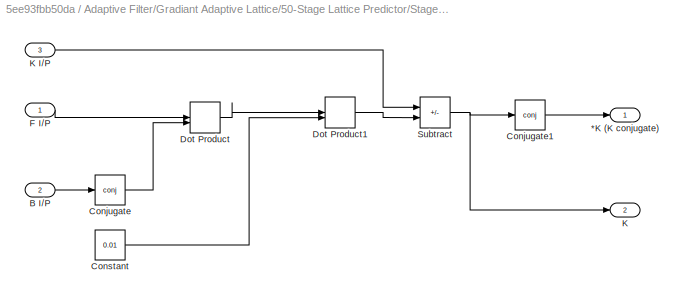
BLOCK [SubSystem] Adaptive Filter/Gradiant Adaptive Lattice/50-Stage Lattice Predictor/Stage 10/K Update Equation
BLOCK [Outport] Adaptive Filter/Gradiant Adaptive Lattice/50-Stage Lattice Predictor/Stage 10/K Update Equation/*K (K conjugate)
BLOCK [Inport] Adaptive Filter/Gradiant Adaptive Lattice/50-Stage Lattice Predictor/Stage 10/K Update Equation/B I//P
  Port = 2
BLOCK [Math] Adaptive Filter/Gradiant Adaptive Lattice/50-Stage Lattice Predictor/Stage 10/K Update Equation/Conjugate
  Operator = conj
  RndMeth = Zero
  SignedPower = on
BLOCK [Math] Adaptive Filter/Gradiant Adaptive Lattice/50-Stage Lattice Predictor/Stage 10/K Update Equation/Conjugate1
  Operator = conj
  RndMeth = Zero
  SignedPower = on
BLOCK [Constant] Adaptive Filter/Gradiant Adaptive Lattice/50-Stage Lattice Predictor/Stage 10/K Update Equation/Constant
  Value = 0.01
BLOCK [DotProduct] Adaptive Filter/Gradiant Adaptive Lattice/50-Stage Lattice Predictor/Stage 10/K Update Equation/Dot Product
  OutDataTypeStr = Inherit: Inherit via internal rule
BLOCK [DotProduct] Adaptive Filter/Gradiant Adaptive Lattice/50-Stage Lattice Predictor/Stage 10/K Update Equation/Dot Product1
  OutDataTypeStr = Inherit: Inherit via internal rule
BLOCK [Inport] Adaptive Filter/Gradiant Adaptive Lattice/50-Stage Lattice Predictor/Stage 10/K Update Equation/F I//P
BLOCK [Outport] Adaptive Filter/Gradiant Adaptive Lattice/50-Stage Lattice Predictor/Stage 10/K Update Equation/K
  Port = 2
BLOCK [Inport] Adaptive Filter/Gradiant Adaptive Lattice/50-Stage Lattice Predictor/Stage 10/K Update Equation/K I//P
  Port = 3
BLOCK [Sum] Adaptive Filter/Gradiant Adaptive Lattice/50-Stage Lattice Predictor/Stage 10/K Update Equation/Subtract
  IconShape = rectangular
  Inputs = +-
BLOCK [Sum] Adaptive Filter/Gradiant Adaptive Lattice/50-Stage Lattice Predictor/Stage 10/Sum
  Inputs = |++
BLOCK [Sum] Adaptive Filter/Gradiant Adaptive Lattice/50-Stage Lattice Predictor/Stage 10/Sum1
  Inputs = |++
BLOCK [SubSystem] Adaptive Filter/Gradiant Adaptive Lattice/50-Stage Lattice Predictor/Stage 11
BLOCK [Inport] Adaptive Filter/Gradiant Adaptive Lattice/50-Stage Lattice Predictor/Stage 11/Backward Prediction Error
  Port = 2
BLOCK [Outport] Adaptive Filter/Gradiant Adaptive Lattice/50-Stage Lattice Predictor/Stage 11/Backward Prediction Error Output
  Port = 2
BLOCK [Delay] Adaptive Filter/Gradiant Adaptive Lattice/50-Stage Lattice Predictor/Stage 11/Delay
  DelayLength = 1
  InitialCondition = 0
  InputPortMap = u0
BLOCK [Inport] Adaptive Filter/Gradiant Adaptive Lattice/50-Stage Lattice Predictor/Stage 11/Forward Prediction Error
BLOCK [Outport] Adaptive Filter/Gradiant Adaptive Lattice/50-Stage Lattice Predictor/Stage 11/Forward Prediction Error Output
BLOCK [Outport] Adaptive Filter/Gradiant Adaptive Lattice/50-Stage Lattice Predictor/Stage 11/K
  Port = 3
BLOCK [Inport] Adaptive Filter/Gradiant Adaptive Lattice/50-Stage Lattice Predictor/Stage 11/K Input
  Port = 3
BLOCK [SubSystem] Adaptive Filter/Gradiant Adaptive Lattice/50-Stage Lattice Predictor/Stage 11/K Update Equation
BLOCK [Outport] Adaptive Filter/Gradiant Adaptive Lattice/50-Stage Lattice Predictor/Stage 11/K Update Equation/*K (K conjugate)
BLOCK [Inport] Adaptive Filter/Gradiant Adaptive Lattice/50-Stage Lattice Predictor/Stage 11/K Update Equation/B I//P
  Port = 2
BLOCK [Math] Adaptive Filter/Gradiant Adaptive Lattice/50-Stage Lattice Predictor/Stage 11/K Update Equation/Conjugate
  Operator = conj
  RndMeth = Zero
  SignedPower = on
BLOCK [Math] Adaptive Filter/Gradiant Adaptive Lattice/50-Stage Lattice Predictor/Stage 11/K Update Equation/Conjugate1
  Operator = conj
  RndMeth = Zero
  SignedPower = on
BLOCK [Constant] Adaptive Filter/Gradiant Adaptive Lattice/50-Stage Lattice Predictor/Stage 11/K Update Equation/Constant
  Value = 0.01
BLOCK [DotProduct] Adaptive Filter/Gradiant Adaptive Lattice/50-Stage Lattice Predictor/Stage 11/K Update Equation/Dot Product
  OutDataTypeStr = Inherit: Inherit via internal rule
BLOCK [DotProduct] Adaptive Filter/Gradiant Adaptive Lattice/50-Stage Lattice Predictor/Stage 11/K Update Equation/Dot Product1
  OutDataTypeStr = Inherit: Inherit via internal rule
BLOCK [Inport] Adaptive Filter/Gradiant Adaptive Lattice/50-Stage Lattice Predictor/Stage 11/K Update Equation/F I//P
BLOCK [Outport] Adaptive Filter/Gradiant Adaptive Lattice/50-Stage Lattice Predictor/Stage 11/K Update Equation/K
  Port = 2
BLOCK [Inport] Adaptive Filter/Gradiant Adaptive Lattice/50-Stage Lattice Predictor/Stage 11/K Update Equation/K I//P
  Port = 3
BLOCK [Sum] Adaptive Filter/Gradiant Adaptive Lattice/50-Stage Lattice Predictor/Stage 11/K Update Equation/Subtract
  IconShape = rectangular
  Inputs = +-
BLOCK [Sum] Adaptive Filter/Gradiant Adaptive Lattice/50-Stage Lattice Predictor/Stage 11/Sum
  Inputs = |++
BLOCK [Sum] Adaptive Filter/Gradiant Adaptive Lattice/50-Stage Lattice Predictor/Stage 11/Sum1
  Inputs = |++
BLOCK [SubSystem] Adaptive Filter/Gradiant Adaptive Lattice/50-Stage Lattice Predictor/Stage 12
BLOCK [Inport] Adaptive Filter/Gradiant Adaptive Lattice/50-Stage Lattice Predictor/Stage 12/Backward Prediction Error
  Port = 2
BLOCK [Outport] Adaptive Filter/Gradiant Adaptive Lattice/50-Stage Lattice Predictor/Stage 12/Backward Prediction Error Output
  Port = 2
BLOCK [Delay] Adaptive Filter/Gradiant Adaptive Lattice/50-Stage Lattice Predictor/Stage 12/Delay
  DelayLength = 1
  InitialCondition = 0
  InputPortMap = u0
BLOCK [Inport] Adaptive Filter/Gradiant Adaptive Lattice/50-Stage Lattice Predictor/Stage 12/Forward Prediction Error
BLOCK [Outport] Adaptive Filter/Gradiant Adaptive Lattice/50-Stage Lattice Predictor/Stage 12/Forward Prediction Error Output
BLOCK [Outport] Adaptive Filter/Gradiant Adaptive Lattice/50-Stage Lattice Predictor/Stage 12/K
  Port = 3
BLOCK [Inport] Adaptive Filter/Gradiant Adaptive Lattice/50-Stage Lattice Predictor/Stage 12/K Input
  Port = 3
BLOCK [SubSystem] Adaptive Filter/Gradiant Adaptive Lattice/50-Stage Lattice Predictor/Stage 12/K Update Equation
BLOCK [Outport] Adaptive Filter/Gradiant Adaptive Lattice/50-Stage Lattice Predictor/Stage 12/K Update Equation/*K (K conjugate)
BLOCK [Inport] Adaptive Filter/Gradiant Adaptive Lattice/50-Stage Lattice Predictor/Stage 12/K Update Equation/B I//P
  Port = 2
BLOCK [Math] Adaptive Filter/Gradiant Adaptive Lattice/50-Stage Lattice Predictor/Stage 12/K Update Equation/Conjugate
  Operator = conj
  RndMeth = Zero
  SignedPower = on
BLOCK [Math] Adaptive Filter/Gradiant Adaptive Lattice/50-Stage Lattice Predictor/Stage 12/K Update Equation/Conjugate1
  Operator = conj
  RndMeth = Zero
  SignedPower = on
BLOCK [Constant] Adaptive Filter/Gradiant Adaptive Lattice/50-Stage Lattice Predictor/Stage 12/K Update Equation/Constant
  Value = 0.01
BLOCK [DotProduct] Adaptive Filter/Gradiant Adaptive Lattice/50-Stage Lattice Predictor/Stage 12/K Update Equation/Dot Product
  OutDataTypeStr = Inherit: Inherit via internal rule
BLOCK [DotProduct] Adaptive Filter/Gradiant Adaptive Lattice/50-Stage Lattice Predictor/Stage 12/K Update Equation/Dot Product1
  OutDataTypeStr = Inherit: Inherit via internal rule
BLOCK [Inport] Adaptive Filter/Gradiant Adaptive Lattice/50-Stage Lattice Predictor/Stage 12/K Update Equation/F I//P
BLOCK [Outport] Adaptive Filter/Gradiant Adaptive Lattice/50-Stage Lattice Predictor/Stage 12/K Update Equation/K
  Port = 2
BLOCK [Inport] Adaptive Filter/Gradiant Adaptive Lattice/50-Stage Lattice Predictor/Stage 12/K Update Equation/K I//P
  Port = 3
BLOCK [Sum] Adaptive Filter/Gradiant Adaptive Lattice/50-Stage Lattice Predictor/Stage 12/K Update Equation/Subtract
  IconShape = rectangular
  Inputs = +-
BLOCK [Sum] Adaptive Filter/Gradiant Adaptive Lattice/50-Stage Lattice Predictor/Stage 12/Sum
  Inputs = |++
BLOCK [Sum] Adaptive Filter/Gradiant Adaptive Lattice/50-Stage Lattice Predictor/Stage 12/Sum1
  Inputs = |++
BLOCK [SubSystem] Adaptive Filter/Gradiant Adaptive Lattice/50-Stage Lattice Predictor/Stage 13
BLOCK [Inport] Adaptive Filter/Gradiant Adaptive Lattice/50-Stage Lattice Predictor/Stage 13/Backward Prediction Error
  Port = 2
BLOCK [Outport] Adaptive Filter/Gradiant Adaptive Lattice/50-Stage Lattice Predictor/Stage 13/Backward Prediction Error Output
  Port = 2
BLOCK [Delay] Adaptive Filter/Gradiant Adaptive Lattice/50-Stage Lattice Predictor/Stage 13/Delay
  DelayLength = 1
  InitialCondition = 0
  InputPortMap = u0
BLOCK [Inport] Adaptive Filter/Gradiant Adaptive Lattice/50-Stage Lattice Predictor/Stage 13/Forward Prediction Error
BLOCK [Outport] Adaptive Filter/Gradiant Adaptive Lattice/50-Stage Lattice Predictor/Stage 13/Forward Prediction Error Output
BLOCK [Outport] Adaptive Filter/Gradiant Adaptive Lattice/50-Stage Lattice Predictor/Stage 13/K
  Port = 3
BLOCK [Inport] Adaptive Filter/Gradiant Adaptive Lattice/50-Stage Lattice Predictor/Stage 13/K Input
  Port = 3
BLOCK [SubSystem] Adaptive Filter/Gradiant Adaptive Lattice/50-Stage Lattice Predictor/Stage 13/K Update Equation
BLOCK [Outport] Adaptive Filter/Gradiant Adaptive Lattice/50-Stage Lattice Predictor/Stage 13/K Update Equation/*K (K conjugate)
BLOCK [Inport] Adaptive Filter/Gradiant Adaptive Lattice/50-Stage Lattice Predictor/Stage 13/K Update Equation/B I//P
  Port = 2
BLOCK [Math] Adaptive Filter/Gradiant Adaptive Lattice/50-Stage Lattice Predictor/Stage 13/K Update Equation/Conjugate
  Operator = conj
  RndMeth = Zero
  SignedPower = on
BLOCK [Math] Adaptive Filter/Gradiant Adaptive Lattice/50-Stage Lattice Predictor/Stage 13/K Update Equation/Conjugate1
  Operator = conj
  RndMeth = Zero
  SignedPower = on
BLOCK [Constant] Adaptive Filter/Gradiant Adaptive Lattice/50-Stage Lattice Predictor/Stage 13/K Update Equation/Constant
  Value = 0.01
BLOCK [DotProduct] Adaptive Filter/Gradiant Adaptive Lattice/50-Stage Lattice Predictor/Stage 13/K Update Equation/Dot Product
  OutDataTypeStr = Inherit: Inherit via internal rule
BLOCK [DotProduct] Adaptive Filter/Gradiant Adaptive Lattice/50-Stage Lattice Predictor/Stage 13/K Update Equation/Dot Product1
  OutDataTypeStr = Inherit: Inherit via internal rule
BLOCK [Inport] Adaptive Filter/Gradiant Adaptive Lattice/50-Stage Lattice Predictor/Stage 13/K Update Equation/F I//P
BLOCK [Outport] Adaptive Filter/Gradiant Adaptive Lattice/50-Stage Lattice Predictor/Stage 13/K Update Equation/K
  Port = 2
BLOCK [Inport] Adaptive Filter/Gradiant Adaptive Lattice/50-Stage Lattice Predictor/Stage 13/K Update Equation/K I//P
  Port = 3
BLOCK [Sum] Adaptive Filter/Gradiant Adaptive Lattice/50-Stage Lattice Predictor/Stage 13/K Update Equation/Subtract
  IconShape = rectangular
  Inputs = +-
BLOCK [Sum] Adaptive Filter/Gradiant Adaptive Lattice/50-Stage Lattice Predictor/Stage 13/Sum
  Inputs = |++
BLOCK [Sum] Adaptive Filter/Gradiant Adaptive Lattice/50-Stage Lattice Predictor/Stage 13/Sum1
  Inputs = |++
BLOCK [SubSystem] Adaptive Filter/Gradiant Adaptive Lattice/50-Stage Lattice Predictor/Stage 14
BLOCK [Inport] Adaptive Filter/Gradiant Adaptive Lattice/50-Stage Lattice Predictor/Stage 14/Backward Prediction Error
  Port = 2
BLOCK [Outport] Adaptive Filter/Gradiant Adaptive Lattice/50-Stage Lattice Predictor/Stage 14/Backward Prediction Error Output
  Port = 2
BLOCK [Delay] Adaptive Filter/Gradiant Adaptive Lattice/50-Stage Lattice Predictor/Stage 14/Delay
  DelayLength = 1
  InitialCondition = 0
  InputPortMap = u0
BLOCK [Inport] Adaptive Filter/Gradiant Adaptive Lattice/50-Stage Lattice Predictor/Stage 14/Forward Prediction Error
BLOCK [Outport] Adaptive Filter/Gradiant Adaptive Lattice/50-Stage Lattice Predictor/Stage 14/Forward Prediction Error Output
BLOCK [Outport] Adaptive Filter/Gradiant Adaptive Lattice/50-Stage Lattice Predictor/Stage 14/K
  Port = 3
BLOCK [Inport] Adaptive Filter/Gradiant Adaptive Lattice/50-Stage Lattice Predictor/Stage 14/K Input
  Port = 3
BLOCK [SubSystem] Adaptive Filter/Gradiant Adaptive Lattice/50-Stage Lattice Predictor/Stage 14/K Update Equation
BLOCK [Outport] Adaptive Filter/Gradiant Adaptive Lattice/50-Stage Lattice Predictor/Stage 14/K Update Equation/*K (K conjugate)
BLOCK [Inport] Adaptive Filter/Gradiant Adaptive Lattice/50-Stage Lattice Predictor/Stage 14/K Update Equation/B I//P
  Port = 2
BLOCK [Math] Adaptive Filter/Gradiant Adaptive Lattice/50-Stage Lattice Predictor/Stage 14/K Update Equation/Conjugate
  Operator = conj
  RndMeth = Zero
  SignedPower = on
BLOCK [Math] Adaptive Filter/Gradiant Adaptive Lattice/50-Stage Lattice Predictor/Stage 14/K Update Equation/Conjugate1
  Operator = conj
  RndMeth = Zero
  SignedPower = on
BLOCK [Constant] Adaptive Filter/Gradiant Adaptive Lattice/50-Stage Lattice Predictor/Stage 14/K Update Equation/Constant
  Value = 0.01
BLOCK [DotProduct] Adaptive Filter/Gradiant Adaptive Lattice/50-Stage Lattice Predictor/Stage 14/K Update Equation/Dot Product
  OutDataTypeStr = Inherit: Inherit via internal rule
BLOCK [DotProduct] Adaptive Filter/Gradiant Adaptive Lattice/50-Stage Lattice Predictor/Stage 14/K Update Equation/Dot Product1
  OutDataTypeStr = Inherit: Inherit via internal rule
BLOCK [Inport] Adaptive Filter/Gradiant Adaptive Lattice/50-Stage Lattice Predictor/Stage 14/K Update Equation/F I//P
BLOCK [Outport] Adaptive Filter/Gradiant Adaptive Lattice/50-Stage Lattice Predictor/Stage 14/K Update Equation/K
  Port = 2
BLOCK [Inport] Adaptive Filter/Gradiant Adaptive Lattice/50-Stage Lattice Predictor/Stage 14/K Update Equation/K I//P
  Port = 3
BLOCK [Sum] Adaptive Filter/Gradiant Adaptive Lattice/50-Stage Lattice Predictor/Stage 14/K Update Equation/Subtract
  IconShape = rectangular
  Inputs = +-
BLOCK [Sum] Adaptive Filter/Gradiant Adaptive Lattice/50-Stage Lattice Predictor/Stage 14/Sum
  Inputs = |++
BLOCK [Sum] Adaptive Filter/Gradiant Adaptive Lattice/50-Stage Lattice Predictor/Stage 14/Sum1
  Inputs = |++
BLOCK [SubSystem] Adaptive Filter/Gradiant Adaptive Lattice/50-Stage Lattice Predictor/Stage 15
BLOCK [Inport] Adaptive Filter/Gradiant Adaptive Lattice/50-Stage Lattice Predictor/Stage 15/Backward Prediction Error
  Port = 2
BLOCK [Outport] Adaptive Filter/Gradiant Adaptive Lattice/50-Stage Lattice Predictor/Stage 15/Backward Prediction Error Output
  Port = 2
BLOCK [Delay] Adaptive Filter/Gradiant Adaptive Lattice/50-Stage Lattice Predictor/Stage 15/Delay
  DelayLength = 1
  InitialCondition = 0
  InputPortMap = u0
BLOCK [Inport] Adaptive Filter/Gradiant Adaptive Lattice/50-Stage Lattice Predictor/Stage 15/Forward Prediction Error
BLOCK [Outport] Adaptive Filter/Gradiant Adaptive Lattice/50-Stage Lattice Predictor/Stage 15/Forward Prediction Error Output
BLOCK [Outport] Adaptive Filter/Gradiant Adaptive Lattice/50-Stage Lattice Predictor/Stage 15/K
  Port = 3
BLOCK [Inport] Adaptive Filter/Gradiant Adaptive Lattice/50-Stage Lattice Predictor/Stage 15/K Input
  Port = 3
BLOCK [SubSystem] Adaptive Filter/Gradiant Adaptive Lattice/50-Stage Lattice Predictor/Stage 15/K Update Equation
BLOCK [Outport] Adaptive Filter/Gradiant Adaptive Lattice/50-Stage Lattice Predictor/Stage 15/K Update Equation/*K (K conjugate)
BLOCK [Inport] Adaptive Filter/Gradiant Adaptive Lattice/50-Stage Lattice Predictor/Stage 15/K Update Equation/B I//P
  Port = 2
BLOCK [Math] Adaptive Filter/Gradiant Adaptive Lattice/50-Stage Lattice Predictor/Stage 15/K Update Equation/Conjugate
  Operator = conj
  RndMeth = Zero
  SignedPower = on
BLOCK [Math] Adaptive Filter/Gradiant Adaptive Lattice/50-Stage Lattice Predictor/Stage 15/K Update Equation/Conjugate1
  Operator = conj
  RndMeth = Zero
  SignedPower = on
BLOCK [Constant] Adaptive Filter/Gradiant Adaptive Lattice/50-Stage Lattice Predictor/Stage 15/K Update Equation/Constant
  Value = 0.01
BLOCK [DotProduct] Adaptive Filter/Gradiant Adaptive Lattice/50-Stage Lattice Predictor/Stage 15/K Update Equation/Dot Product
  OutDataTypeStr = Inherit: Inherit via internal rule
BLOCK [DotProduct] Adaptive Filter/Gradiant Adaptive Lattice/50-Stage Lattice Predictor/Stage 15/K Update Equation/Dot Product1
  OutDataTypeStr = Inherit: Inherit via internal rule
BLOCK [Inport] Adaptive Filter/Gradiant Adaptive Lattice/50-Stage Lattice Predictor/Stage 15/K Update Equation/F I//P
BLOCK [Outport] Adaptive Filter/Gradiant Adaptive Lattice/50-Stage Lattice Predictor/Stage 15/K Update Equation/K
  Port = 2
BLOCK [Inport] Adaptive Filter/Gradiant Adaptive Lattice/50-Stage Lattice Predictor/Stage 15/K Update Equation/K I//P
  Port = 3
BLOCK [Sum] Adaptive Filter/Gradiant Adaptive Lattice/50-Stage Lattice Predictor/Stage 15/K Update Equation/Subtract
  IconShape = rectangular
  Inputs = +-
BLOCK [Sum] Adaptive Filter/Gradiant Adaptive Lattice/50-Stage Lattice Predictor/Stage 15/Sum
  Inputs = |++
BLOCK [Sum] Adaptive Filter/Gradiant Adaptive Lattice/50-Stage Lattice Predictor/Stage 15/Sum1
  Inputs = |++
BLOCK [SubSystem] Adaptive Filter/Gradiant Adaptive Lattice/50-Stage Lattice Predictor/Stage 16
BLOCK [Inport] Adaptive Filter/Gradiant Adaptive Lattice/50-Stage Lattice Predictor/Stage 16/Backward Prediction Error
  Port = 2
BLOCK [Outport] Adaptive Filter/Gradiant Adaptive Lattice/50-Stage Lattice Predictor/Stage 16/Backward Prediction Error Output
  Port = 2
BLOCK [Delay] Adaptive Filter/Gradiant Adaptive Lattice/50-Stage Lattice Predictor/Stage 16/Delay
  DelayLength = 1
  InitialCondition = 0
  InputPortMap = u0
BLOCK [Inport] Adaptive Filter/Gradiant Adaptive Lattice/50-Stage Lattice Predictor/Stage 16/Forward Prediction Error
BLOCK [Outport] Adaptive Filter/Gradiant Adaptive Lattice/50-Stage Lattice Predictor/Stage 16/Forward Prediction Error Output
BLOCK [Outport] Adaptive Filter/Gradiant Adaptive Lattice/50-Stage Lattice Predictor/Stage 16/K
  Port = 3
BLOCK [Inport] Adaptive Filter/Gradiant Adaptive Lattice/50-Stage Lattice Predictor/Stage 16/K Input
  Port = 3
BLOCK [SubSystem] Adaptive Filter/Gradiant Adaptive Lattice/50-Stage Lattice Predictor/Stage 16/K Update Equation
BLOCK [Outport] Adaptive Filter/Gradiant Adaptive Lattice/50-Stage Lattice Predictor/Stage 16/K Update Equation/*K (K conjugate)
BLOCK [Inport] Adaptive Filter/Gradiant Adaptive Lattice/50-Stage Lattice Predictor/Stage 16/K Update Equation/B I//P
  Port = 2
BLOCK [Math] Adaptive Filter/Gradiant Adaptive Lattice/50-Stage Lattice Predictor/Stage 16/K Update Equation/Conjugate
  Operator = conj
  RndMeth = Zero
  SignedPower = on
BLOCK [Math] Adaptive Filter/Gradiant Adaptive Lattice/50-Stage Lattice Predictor/Stage 16/K Update Equation/Conjugate1
  Operator = conj
  RndMeth = Zero
  SignedPower = on
BLOCK [Constant] Adaptive Filter/Gradiant Adaptive Lattice/50-Stage Lattice Predictor/Stage 16/K Update Equation/Constant
  Value = 0.01
BLOCK [DotProduct] Adaptive Filter/Gradiant Adaptive Lattice/50-Stage Lattice Predictor/Stage 16/K Update Equation/Dot Product
  OutDataTypeStr = Inherit: Inherit via internal rule
BLOCK [DotProduct] Adaptive Filter/Gradiant Adaptive Lattice/50-Stage Lattice Predictor/Stage 16/K Update Equation/Dot Product1
  OutDataTypeStr = Inherit: Inherit via internal rule
BLOCK [Inport] Adaptive Filter/Gradiant Adaptive Lattice/50-Stage Lattice Predictor/Stage 16/K Update Equation/F I//P
BLOCK [Outport] Adaptive Filter/Gradiant Adaptive Lattice/50-Stage Lattice Predictor/Stage 16/K Update Equation/K
  Port = 2
BLOCK [Inport] Adaptive Filter/Gradiant Adaptive Lattice/50-Stage Lattice Predictor/Stage 16/K Update Equation/K I//P
  Port = 3
BLOCK [Sum] Adaptive Filter/Gradiant Adaptive Lattice/50-Stage Lattice Predictor/Stage 16/K Update Equation/Subtract
  IconShape = rectangular
  Inputs = +-
BLOCK [Sum] Adaptive Filter/Gradiant Adaptive Lattice/50-Stage Lattice Predictor/Stage 16/Sum
  Inputs = |++
BLOCK [Sum] Adaptive Filter/Gradiant Adaptive Lattice/50-Stage Lattice Predictor/Stage 16/Sum1
  Inputs = |++
BLOCK [SubSystem] Adaptive Filter/Gradiant Adaptive Lattice/50-Stage Lattice Predictor/Stage 17
BLOCK [Inport] Adaptive Filter/Gradiant Adaptive Lattice/50-Stage Lattice Predictor/Stage 17/Backward Prediction Error
  Port = 2
BLOCK [Outport] Adaptive Filter/Gradiant Adaptive Lattice/50-Stage Lattice Predictor/Stage 17/Backward Prediction Error Output
  Port = 2
BLOCK [Delay] Adaptive Filter/Gradiant Adaptive Lattice/50-Stage Lattice Predictor/Stage 17/Delay
  DelayLength = 1
  InitialCondition = 0
  InputPortMap = u0
BLOCK [Inport] Adaptive Filter/Gradiant Adaptive Lattice/50-Stage Lattice Predictor/Stage 17/Forward Prediction Error
BLOCK [Outport] Adaptive Filter/Gradiant Adaptive Lattice/50-Stage Lattice Predictor/Stage 17/Forward Prediction Error Output
BLOCK [Outport] Adaptive Filter/Gradiant Adaptive Lattice/50-Stage Lattice Predictor/Stage 17/K
  Port = 3
BLOCK [Inport] Adaptive Filter/Gradiant Adaptive Lattice/50-Stage Lattice Predictor/Stage 17/K Input
  Port = 3
BLOCK [SubSystem] Adaptive Filter/Gradiant Adaptive Lattice/50-Stage Lattice Predictor/Stage 17/K Update Equation
BLOCK [Outport] Adaptive Filter/Gradiant Adaptive Lattice/50-Stage Lattice Predictor/Stage 17/K Update Equation/*K (K conjugate)
BLOCK [Inport] Adaptive Filter/Gradiant Adaptive Lattice/50-Stage Lattice Predictor/Stage 17/K Update Equation/B I//P
  Port = 2
BLOCK [Math] Adaptive Filter/Gradiant Adaptive Lattice/50-Stage Lattice Predictor/Stage 17/K Update Equation/Conjugate
  Operator = conj
  RndMeth = Zero
  SignedPower = on
BLOCK [Math] Adaptive Filter/Gradiant Adaptive Lattice/50-Stage Lattice Predictor/Stage 17/K Update Equation/Conjugate1
  Operator = conj
  RndMeth = Zero
  SignedPower = on
BLOCK [Constant] Adaptive Filter/Gradiant Adaptive Lattice/50-Stage Lattice Predictor/Stage 17/K Update Equation/Constant
  Value = 0.01
BLOCK [DotProduct] Adaptive Filter/Gradiant Adaptive Lattice/50-Stage Lattice Predictor/Stage 17/K Update Equation/Dot Product
  OutDataTypeStr = Inherit: Inherit via internal rule
BLOCK [DotProduct] Adaptive Filter/Gradiant Adaptive Lattice/50-Stage Lattice Predictor/Stage 17/K Update Equation/Dot Product1
  OutDataTypeStr = Inherit: Inherit via internal rule
BLOCK [Inport] Adaptive Filter/Gradiant Adaptive Lattice/50-Stage Lattice Predictor/Stage 17/K Update Equation/F I//P
BLOCK [Outport] Adaptive Filter/Gradiant Adaptive Lattice/50-Stage Lattice Predictor/Stage 17/K Update Equation/K
  Port = 2
BLOCK [Inport] Adaptive Filter/Gradiant Adaptive Lattice/50-Stage Lattice Predictor/Stage 17/K Update Equation/K I//P
  Port = 3
BLOCK [Sum] Adaptive Filter/Gradiant Adaptive Lattice/50-Stage Lattice Predictor/Stage 17/K Update Equation/Subtract
  IconShape = rectangular
  Inputs = +-
BLOCK [Sum] Adaptive Filter/Gradiant Adaptive Lattice/50-Stage Lattice Predictor/Stage 17/Sum
  Inputs = |++
BLOCK [Sum] Adaptive Filter/Gradiant Adaptive Lattice/50-Stage Lattice Predictor/Stage 17/Sum1
  Inputs = |++
BLOCK [SubSystem] Adaptive Filter/Gradiant Adaptive Lattice/50-Stage Lattice Predictor/Stage 18
BLOCK [Inport] Adaptive Filter/Gradiant Adaptive Lattice/50-Stage Lattice Predictor/Stage 18/Backward Prediction Error
  Port = 2
BLOCK [Outport] Adaptive Filter/Gradiant Adaptive Lattice/50-Stage Lattice Predictor/Stage 18/Backward Prediction Error Output
  Port = 2
BLOCK [Delay] Adaptive Filter/Gradiant Adaptive Lattice/50-Stage Lattice Predictor/Stage 18/Delay
  DelayLength = 1
  InitialCondition = 0
  InputPortMap = u0
BLOCK [Inport] Adaptive Filter/Gradiant Adaptive Lattice/50-Stage Lattice Predictor/Stage 18/Forward Prediction Error
BLOCK [Outport] Adaptive Filter/Gradiant Adaptive Lattice/50-Stage Lattice Predictor/Stage 18/Forward Prediction Error Output
BLOCK [Outport] Adaptive Filter/Gradiant Adaptive Lattice/50-Stage Lattice Predictor/Stage 18/K
  Port = 3
BLOCK [Inport] Adaptive Filter/Gradiant Adaptive Lattice/50-Stage Lattice Predictor/Stage 18/K Input
  Port = 3
BLOCK [SubSystem] Adaptive Filter/Gradiant Adaptive Lattice/50-Stage Lattice Predictor/Stage 18/K Update Equation
BLOCK [Outport] Adaptive Filter/Gradiant Adaptive Lattice/50-Stage Lattice Predictor/Stage 18/K Update Equation/*K (K conjugate)
BLOCK [Inport] Adaptive Filter/Gradiant Adaptive Lattice/50-Stage Lattice Predictor/Stage 18/K Update Equation/B I//P
  Port = 2
BLOCK [Math] Adaptive Filter/Gradiant Adaptive Lattice/50-Stage Lattice Predictor/Stage 18/K Update Equation/Conjugate
  Operator = conj
  RndMeth = Zero
  SignedPower = on
BLOCK [Math] Adaptive Filter/Gradiant Adaptive Lattice/50-Stage Lattice Predictor/Stage 18/K Update Equation/Conjugate1
  Operator = conj
  RndMeth = Zero
  SignedPower = on
BLOCK [Constant] Adaptive Filter/Gradiant Adaptive Lattice/50-Stage Lattice Predictor/Stage 18/K Update Equation/Constant
  Value = 0.01
BLOCK [DotProduct] Adaptive Filter/Gradiant Adaptive Lattice/50-Stage Lattice Predictor/Stage 18/K Update Equation/Dot Product
  OutDataTypeStr = Inherit: Inherit via internal rule
BLOCK [DotProduct] Adaptive Filter/Gradiant Adaptive Lattice/50-Stage Lattice Predictor/Stage 18/K Update Equation/Dot Product1
  OutDataTypeStr = Inherit: Inherit via internal rule
BLOCK [Inport] Adaptive Filter/Gradiant Adaptive Lattice/50-Stage Lattice Predictor/Stage 18/K Update Equation/F I//P
BLOCK [Outport] Adaptive Filter/Gradiant Adaptive Lattice/50-Stage Lattice Predictor/Stage 18/K Update Equation/K
  Port = 2
BLOCK [Inport] Adaptive Filter/Gradiant Adaptive Lattice/50-Stage Lattice Predictor/Stage 18/K Update Equation/K I//P
  Port = 3
BLOCK [Sum] Adaptive Filter/Gradiant Adaptive Lattice/50-Stage Lattice Predictor/Stage 18/K Update Equation/Subtract
  IconShape = rectangular
  Inputs = +-
BLOCK [Sum] Adaptive Filter/Gradiant Adaptive Lattice/50-Stage Lattice Predictor/Stage 18/Sum
  Inputs = |++
BLOCK [Sum] Adaptive Filter/Gradiant Adaptive Lattice/50-Stage Lattice Predictor/Stage 18/Sum1
  Inputs = |++
BLOCK [SubSystem] Adaptive Filter/Gradiant Adaptive Lattice/50-Stage Lattice Predictor/Stage 19
BLOCK [Inport] Adaptive Filter/Gradiant Adaptive Lattice/50-Stage Lattice Predictor/Stage 19/Backward Prediction Error
  Port = 2
BLOCK [Outport] Adaptive Filter/Gradiant Adaptive Lattice/50-Stage Lattice Predictor/Stage 19/Backward Prediction Error Output
  Port = 2
BLOCK [Delay] Adaptive Filter/Gradiant Adaptive Lattice/50-Stage Lattice Predictor/Stage 19/Delay
  DelayLength = 1
  InitialCondition = 0
  InputPortMap = u0
BLOCK [Inport] Adaptive Filter/Gradiant Adaptive Lattice/50-Stage Lattice Predictor/Stage 19/Forward Prediction Error
BLOCK [Outport] Adaptive Filter/Gradiant Adaptive Lattice/50-Stage Lattice Predictor/Stage 19/Forward Prediction Error Output
BLOCK [Outport] Adaptive Filter/Gradiant Adaptive Lattice/50-Stage Lattice Predictor/Stage 19/K
  Port = 3
BLOCK [Inport] Adaptive Filter/Gradiant Adaptive Lattice/50-Stage Lattice Predictor/Stage 19/K Input
  Port = 3
BLOCK [SubSystem] Adaptive Filter/Gradiant Adaptive Lattice/50-Stage Lattice Predictor/Stage 19/K Update Equation
BLOCK [Outport] Adaptive Filter/Gradiant Adaptive Lattice/50-Stage Lattice Predictor/Stage 19/K Update Equation/*K (K conjugate)
BLOCK [Inport] Adaptive Filter/Gradiant Adaptive Lattice/50-Stage Lattice Predictor/Stage 19/K Update Equation/B I//P
  Port = 2
BLOCK [Math] Adaptive Filter/Gradiant Adaptive Lattice/50-Stage Lattice Predictor/Stage 19/K Update Equation/Conjugate
  Operator = conj
  RndMeth = Zero
  SignedPower = on
BLOCK [Math] Adaptive Filter/Gradiant Adaptive Lattice/50-Stage Lattice Predictor/Stage 19/K Update Equation/Conjugate1
  Operator = conj
  RndMeth = Zero
  SignedPower = on
BLOCK [Constant] Adaptive Filter/Gradiant Adaptive Lattice/50-Stage Lattice Predictor/Stage 19/K Update Equation/Constant
  Value = 0.01
BLOCK [DotProduct] Adaptive Filter/Gradiant Adaptive Lattice/50-Stage Lattice Predictor/Stage 19/K Update Equation/Dot Product
  OutDataTypeStr = Inherit: Inherit via internal rule
BLOCK [DotProduct] Adaptive Filter/Gradiant Adaptive Lattice/50-Stage Lattice Predictor/Stage 19/K Update Equation/Dot Product1
  OutDataTypeStr = Inherit: Inherit via internal rule
BLOCK [Inport] Adaptive Filter/Gradiant Adaptive Lattice/50-Stage Lattice Predictor/Stage 19/K Update Equation/F I//P
BLOCK [Outport] Adaptive Filter/Gradiant Adaptive Lattice/50-Stage Lattice Predictor/Stage 19/K Update Equation/K
  Port = 2
BLOCK [Inport] Adaptive Filter/Gradiant Adaptive Lattice/50-Stage Lattice Predictor/Stage 19/K Update Equation/K I//P
  Port = 3
BLOCK [Sum] Adaptive Filter/Gradiant Adaptive Lattice/50-Stage Lattice Predictor/Stage 19/K Update Equation/Subtract
  IconShape = rectangular
  Inputs = +-
BLOCK [Sum] Adaptive Filter/Gradiant Adaptive Lattice/50-Stage Lattice Predictor/Stage 19/Sum
  Inputs = |++
BLOCK [Sum] Adaptive Filter/Gradiant Adaptive Lattice/50-Stage Lattice Predictor/Stage 19/Sum1
  Inputs = |++
BLOCK [SubSystem] Adaptive Filter/Gradiant Adaptive Lattice/50-Stage Lattice Predictor/Stage 2
BLOCK [Inport] Adaptive Filter/Gradiant Adaptive Lattice/50-Stage Lattice Predictor/Stage 2/Backward Prediction Error
  Port = 2
BLOCK [Outport] Adaptive Filter/Gradiant Adaptive Lattice/50-Stage Lattice Predictor/Stage 2/Backward Prediction Error Output
  Port = 2
BLOCK [Delay] Adaptive Filter/Gradiant Adaptive Lattice/50-Stage Lattice Predictor/Stage 2/Delay
  DelayLength = 1
  InitialCondition = 0
  InputPortMap = u0
BLOCK [Inport] Adaptive Filter/Gradiant Adaptive Lattice/50-Stage Lattice Predictor/Stage 2/Forward Prediction Error
BLOCK [Outport] Adaptive Filter/Gradiant Adaptive Lattice/50-Stage Lattice Predictor/Stage 2/Forward Prediction Error Output
BLOCK [Outport] Adaptive Filter/Gradiant Adaptive Lattice/50-Stage Lattice Predictor/Stage 2/K
  Port = 3
BLOCK [Inport] Adaptive Filter/Gradiant Adaptive Lattice/50-Stage Lattice Predictor/Stage 2/K Input
  Port = 3
BLOCK [SubSystem] Adaptive Filter/Gradiant Adaptive Lattice/50-Stage Lattice Predictor/Stage 2/K Update Equation
BLOCK [Outport] Adaptive Filter/Gradiant Adaptive Lattice/50-Stage Lattice Predictor/Stage 2/K Update Equation/*K (K conjugate)
BLOCK [Inport] Adaptive Filter/Gradiant Adaptive Lattice/50-Stage Lattice Predictor/Stage 2/K Update Equation/B I//P
  Port = 2
BLOCK [Math] Adaptive Filter/Gradiant Adaptive Lattice/50-Stage Lattice Predictor/Stage 2/K Update Equation/Conjugate
  Operator = conj
  RndMeth = Zero
  SignedPower = on
BLOCK [Math] Adaptive Filter/Gradiant Adaptive Lattice/50-Stage Lattice Predictor/Stage 2/K Update Equation/Conjugate1
  Operator = conj
  RndMeth = Zero
  SignedPower = on
BLOCK [Constant] Adaptive Filter/Gradiant Adaptive Lattice/50-Stage Lattice Predictor/Stage 2/K Update Equation/Constant
  Value = 0.01
BLOCK [DotProduct] Adaptive Filter/Gradiant Adaptive Lattice/50-Stage Lattice Predictor/Stage 2/K Update Equation/Dot Product
  OutDataTypeStr = Inherit: Inherit via internal rule
BLOCK [DotProduct] Adaptive Filter/Gradiant Adaptive Lattice/50-Stage Lattice Predictor/Stage 2/K Update Equation/Dot Product1
  OutDataTypeStr = Inherit: Inherit via internal rule
BLOCK [Inport] Adaptive Filter/Gradiant Adaptive Lattice/50-Stage Lattice Predictor/Stage 2/K Update Equation/F I//P
BLOCK [Outport] Adaptive Filter/Gradiant Adaptive Lattice/50-Stage Lattice Predictor/Stage 2/K Update Equation/K
  Port = 2
BLOCK [Inport] Adaptive Filter/Gradiant Adaptive Lattice/50-Stage Lattice Predictor/Stage 2/K Update Equation/K I//P
  Port = 3
BLOCK [Sum] Adaptive Filter/Gradiant Adaptive Lattice/50-Stage Lattice Predictor/Stage 2/K Update Equation/Subtract
  IconShape = rectangular
  Inputs = +-
BLOCK [Sum] Adaptive Filter/Gradiant Adaptive Lattice/50-Stage Lattice Predictor/Stage 2/Sum
  Inputs = |++
BLOCK [Sum] Adaptive Filter/Gradiant Adaptive Lattice/50-Stage Lattice Predictor/Stage 2/Sum1
  Inputs = |++
BLOCK [SubSystem] Adaptive Filter/Gradiant Adaptive Lattice/50-Stage Lattice Predictor/Stage 20
BLOCK [Inport] Adaptive Filter/Gradiant Adaptive Lattice/50-Stage Lattice Predictor/Stage 20/Backward Prediction Error
  Port = 2
BLOCK [Outport] Adaptive Filter/Gradiant Adaptive Lattice/50-Stage Lattice Predictor/Stage 20/Backward Prediction Error Output
  Port = 2
BLOCK [Delay] Adaptive Filter/Gradiant Adaptive Lattice/50-Stage Lattice Predictor/Stage 20/Delay
  DelayLength = 1
  InitialCondition = 0
  InputPortMap = u0
BLOCK [Inport] Adaptive Filter/Gradiant Adaptive Lattice/50-Stage Lattice Predictor/Stage 20/Forward Prediction Error
BLOCK [Outport] Adaptive Filter/Gradiant Adaptive Lattice/50-Stage Lattice Predictor/Stage 20/Forward Prediction Error Output
BLOCK [Outport] Adaptive Filter/Gradiant Adaptive Lattice/50-Stage Lattice Predictor/Stage 20/K
  Port = 3
BLOCK [Inport] Adaptive Filter/Gradiant Adaptive Lattice/50-Stage Lattice Predictor/Stage 20/K Input
  Port = 3
BLOCK [SubSystem] Adaptive Filter/Gradiant Adaptive Lattice/50-Stage Lattice Predictor/Stage 20/K Update Equation
BLOCK [Outport] Adaptive Filter/Gradiant Adaptive Lattice/50-Stage Lattice Predictor/Stage 20/K Update Equation/*K (K conjugate)
BLOCK [Inport] Adaptive Filter/Gradiant Adaptive Lattice/50-Stage Lattice Predictor/Stage 20/K Update Equation/B I//P
  Port = 2
BLOCK [Math] Adaptive Filter/Gradiant Adaptive Lattice/50-Stage Lattice Predictor/Stage 20/K Update Equation/Conjugate
  Operator = conj
  RndMeth = Zero
  SignedPower = on
BLOCK [Math] Adaptive Filter/Gradiant Adaptive Lattice/50-Stage Lattice Predictor/Stage 20/K Update Equation/Conjugate1
  Operator = conj
  RndMeth = Zero
  SignedPower = on
BLOCK [Constant] Adaptive Filter/Gradiant Adaptive Lattice/50-Stage Lattice Predictor/Stage 20/K Update Equation/Constant
  Value = 0.01
BLOCK [DotProduct] Adaptive Filter/Gradiant Adaptive Lattice/50-Stage Lattice Predictor/Stage 20/K Update Equation/Dot Product
  OutDataTypeStr = Inherit: Inherit via internal rule
BLOCK [DotProduct] Adaptive Filter/Gradiant Adaptive Lattice/50-Stage Lattice Predictor/Stage 20/K Update Equation/Dot Product1
  OutDataTypeStr = Inherit: Inherit via internal rule
BLOCK [Inport] Adaptive Filter/Gradiant Adaptive Lattice/50-Stage Lattice Predictor/Stage 20/K Update Equation/F I//P
BLOCK [Outport] Adaptive Filter/Gradiant Adaptive Lattice/50-Stage Lattice Predictor/Stage 20/K Update Equation/K
  Port = 2
BLOCK [Inport] Adaptive Filter/Gradiant Adaptive Lattice/50-Stage Lattice Predictor/Stage 20/K Update Equation/K I//P
  Port = 3
BLOCK [Sum] Adaptive Filter/Gradiant Adaptive Lattice/50-Stage Lattice Predictor/Stage 20/K Update Equation/Subtract
  IconShape = rectangular
  Inputs = +-
BLOCK [Sum] Adaptive Filter/Gradiant Adaptive Lattice/50-Stage Lattice Predictor/Stage 20/Sum
  Inputs = |++
BLOCK [Sum] Adaptive Filter/Gradiant Adaptive Lattice/50-Stage Lattice Predictor/Stage 20/Sum1
  Inputs = |++
BLOCK [SubSystem] Adaptive Filter/Gradiant Adaptive Lattice/50-Stage Lattice Predictor/Stage 21
BLOCK [Inport] Adaptive Filter/Gradiant Adaptive Lattice/50-Stage Lattice Predictor/Stage 21/Backward Prediction Error
  Port = 2
BLOCK [Outport] Adaptive Filter/Gradiant Adaptive Lattice/50-Stage Lattice Predictor/Stage 21/Backward Prediction Error Output
  Port = 2
BLOCK [Delay] Adaptive Filter/Gradiant Adaptive Lattice/50-Stage Lattice Predictor/Stage 21/Delay
  DelayLength = 1
  InitialCondition = 0
  InputPortMap = u0
BLOCK [Inport] Adaptive Filter/Gradiant Adaptive Lattice/50-Stage Lattice Predictor/Stage 21/Forward Prediction Error
BLOCK [Outport] Adaptive Filter/Gradiant Adaptive Lattice/50-Stage Lattice Predictor/Stage 21/Forward Prediction Error Output
BLOCK [Outport] Adaptive Filter/Gradiant Adaptive Lattice/50-Stage Lattice Predictor/Stage 21/K
  Port = 3
BLOCK [Inport] Adaptive Filter/Gradiant Adaptive Lattice/50-Stage Lattice Predictor/Stage 21/K Input
  Port = 3
BLOCK [SubSystem] Adaptive Filter/Gradiant Adaptive Lattice/50-Stage Lattice Predictor/Stage 21/K Update Equation
BLOCK [Outport] Adaptive Filter/Gradiant Adaptive Lattice/50-Stage Lattice Predictor/Stage 21/K Update Equation/*K (K conjugate)
BLOCK [Inport] Adaptive Filter/Gradiant Adaptive Lattice/50-Stage Lattice Predictor/Stage 21/K Update Equation/B I//P
  Port = 2
BLOCK [Math] Adaptive Filter/Gradiant Adaptive Lattice/50-Stage Lattice Predictor/Stage 21/K Update Equation/Conjugate
  Operator = conj
  RndMeth = Zero
  SignedPower = on
BLOCK [Math] Adaptive Filter/Gradiant Adaptive Lattice/50-Stage Lattice Predictor/Stage 21/K Update Equation/Conjugate1
  Operator = conj
  RndMeth = Zero
  SignedPower = on
BLOCK [Constant] Adaptive Filter/Gradiant Adaptive Lattice/50-Stage Lattice Predictor/Stage 21/K Update Equation/Constant
  Value = 0.01
BLOCK [DotProduct] Adaptive Filter/Gradiant Adaptive Lattice/50-Stage Lattice Predictor/Stage 21/K Update Equation/Dot Product
  OutDataTypeStr = Inherit: Inherit via internal rule
BLOCK [DotProduct] Adaptive Filter/Gradiant Adaptive Lattice/50-Stage Lattice Predictor/Stage 21/K Update Equation/Dot Product1
  OutDataTypeStr = Inherit: Inherit via internal rule
BLOCK [Inport] Adaptive Filter/Gradiant Adaptive Lattice/50-Stage Lattice Predictor/Stage 21/K Update Equation/F I//P
BLOCK [Outport] Adaptive Filter/Gradiant Adaptive Lattice/50-Stage Lattice Predictor/Stage 21/K Update Equation/K
  Port = 2
BLOCK [Inport] Adaptive Filter/Gradiant Adaptive Lattice/50-Stage Lattice Predictor/Stage 21/K Update Equation/K I//P
  Port = 3
BLOCK [Sum] Adaptive Filter/Gradiant Adaptive Lattice/50-Stage Lattice Predictor/Stage 21/K Update Equation/Subtract
  IconShape = rectangular
  Inputs = +-
BLOCK [Sum] Adaptive Filter/Gradiant Adaptive Lattice/50-Stage Lattice Predictor/Stage 21/Sum
  Inputs = |++
BLOCK [Sum] Adaptive Filter/Gradiant Adaptive Lattice/50-Stage Lattice Predictor/Stage 21/Sum1
  Inputs = |++
BLOCK [SubSystem] Adaptive Filter/Gradiant Adaptive Lattice/50-Stage Lattice Predictor/Stage 22
BLOCK [Inport] Adaptive Filter/Gradiant Adaptive Lattice/50-Stage Lattice Predictor/Stage 22/Backward Prediction Error
  Port = 2
BLOCK [Outport] Adaptive Filter/Gradiant Adaptive Lattice/50-Stage Lattice Predictor/Stage 22/Backward Prediction Error Output
  Port = 2
BLOCK [Delay] Adaptive Filter/Gradiant Adaptive Lattice/50-Stage Lattice Predictor/Stage 22/Delay
  DelayLength = 1
  InitialCondition = 0
  InputPortMap = u0
BLOCK [Inport] Adaptive Filter/Gradiant Adaptive Lattice/50-Stage Lattice Predictor/Stage 22/Forward Prediction Error
BLOCK [Outport] Adaptive Filter/Gradiant Adaptive Lattice/50-Stage Lattice Predictor/Stage 22/Forward Prediction Error Output
BLOCK [Outport] Adaptive Filter/Gradiant Adaptive Lattice/50-Stage Lattice Predictor/Stage 22/K
  Port = 3
BLOCK [Inport] Adaptive Filter/Gradiant Adaptive Lattice/50-Stage Lattice Predictor/Stage 22/K Input
  Port = 3
BLOCK [SubSystem] Adaptive Filter/Gradiant Adaptive Lattice/50-Stage Lattice Predictor/Stage 22/K Update Equation
BLOCK [Outport] Adaptive Filter/Gradiant Adaptive Lattice/50-Stage Lattice Predictor/Stage 22/K Update Equation/*K (K conjugate)
BLOCK [Inport] Adaptive Filter/Gradiant Adaptive Lattice/50-Stage Lattice Predictor/Stage 22/K Update Equation/B I//P
  Port = 2
BLOCK [Math] Adaptive Filter/Gradiant Adaptive Lattice/50-Stage Lattice Predictor/Stage 22/K Update Equation/Conjugate
  Operator = conj
  RndMeth = Zero
  SignedPower = on
BLOCK [Math] Adaptive Filter/Gradiant Adaptive Lattice/50-Stage Lattice Predictor/Stage 22/K Update Equation/Conjugate1
  Operator = conj
  RndMeth = Zero
  SignedPower = on
BLOCK [Constant] Adaptive Filter/Gradiant Adaptive Lattice/50-Stage Lattice Predictor/Stage 22/K Update Equation/Constant
  Value = 0.01
BLOCK [DotProduct] Adaptive Filter/Gradiant Adaptive Lattice/50-Stage Lattice Predictor/Stage 22/K Update Equation/Dot Product
  OutDataTypeStr = Inherit: Inherit via internal rule
BLOCK [DotProduct] Adaptive Filter/Gradiant Adaptive Lattice/50-Stage Lattice Predictor/Stage 22/K Update Equation/Dot Product1
  OutDataTypeStr = Inherit: Inherit via internal rule
BLOCK [Inport] Adaptive Filter/Gradiant Adaptive Lattice/50-Stage Lattice Predictor/Stage 22/K Update Equation/F I//P
BLOCK [Outport] Adaptive Filter/Gradiant Adaptive Lattice/50-Stage Lattice Predictor/Stage 22/K Update Equation/K
  Port = 2
BLOCK [Inport] Adaptive Filter/Gradiant Adaptive Lattice/50-Stage Lattice Predictor/Stage 22/K Update Equation/K I//P
  Port = 3
BLOCK [Sum] Adaptive Filter/Gradiant Adaptive Lattice/50-Stage Lattice Predictor/Stage 22/K Update Equation/Subtract
  IconShape = rectangular
  Inputs = +-
BLOCK [Sum] Adaptive Filter/Gradiant Adaptive Lattice/50-Stage Lattice Predictor/Stage 22/Sum
  Inputs = |++
BLOCK [Sum] Adaptive Filter/Gradiant Adaptive Lattice/50-Stage Lattice Predictor/Stage 22/Sum1
  Inputs = |++
BLOCK [SubSystem] Adaptive Filter/Gradiant Adaptive Lattice/50-Stage Lattice Predictor/Stage 23
BLOCK [Inport] Adaptive Filter/Gradiant Adaptive Lattice/50-Stage Lattice Predictor/Stage 23/Backward Prediction Error
  Port = 2
BLOCK [Outport] Adaptive Filter/Gradiant Adaptive Lattice/50-Stage Lattice Predictor/Stage 23/Backward Prediction Error Output
  Port = 2
BLOCK [Delay] Adaptive Filter/Gradiant Adaptive Lattice/50-Stage Lattice Predictor/Stage 23/Delay
  DelayLength = 1
  InitialCondition = 0
  InputPortMap = u0
BLOCK [Inport] Adaptive Filter/Gradiant Adaptive Lattice/50-Stage Lattice Predictor/Stage 23/Forward Prediction Error
BLOCK [Outport] Adaptive Filter/Gradiant Adaptive Lattice/50-Stage Lattice Predictor/Stage 23/Forward Prediction Error Output
BLOCK [Outport] Adaptive Filter/Gradiant Adaptive Lattice/50-Stage Lattice Predictor/Stage 23/K
  Port = 3
BLOCK [Inport] Adaptive Filter/Gradiant Adaptive Lattice/50-Stage Lattice Predictor/Stage 23/K Input
  Port = 3
BLOCK [SubSystem] Adaptive Filter/Gradiant Adaptive Lattice/50-Stage Lattice Predictor/Stage 23/K Update Equation
BLOCK [Outport] Adaptive Filter/Gradiant Adaptive Lattice/50-Stage Lattice Predictor/Stage 23/K Update Equation/*K (K conjugate)
BLOCK [Inport] Adaptive Filter/Gradiant Adaptive Lattice/50-Stage Lattice Predictor/Stage 23/K Update Equation/B I//P
  Port = 2
BLOCK [Math] Adaptive Filter/Gradiant Adaptive Lattice/50-Stage Lattice Predictor/Stage 23/K Update Equation/Conjugate
  Operator = conj
  RndMeth = Zero
  SignedPower = on
BLOCK [Math] Adaptive Filter/Gradiant Adaptive Lattice/50-Stage Lattice Predictor/Stage 23/K Update Equation/Conjugate1
  Operator = conj
  RndMeth = Zero
  SignedPower = on
BLOCK [Constant] Adaptive Filter/Gradiant Adaptive Lattice/50-Stage Lattice Predictor/Stage 23/K Update Equation/Constant
  Value = 0.01
BLOCK [DotProduct] Adaptive Filter/Gradiant Adaptive Lattice/50-Stage Lattice Predictor/Stage 23/K Update Equation/Dot Product
  OutDataTypeStr = Inherit: Inherit via internal rule
BLOCK [DotProduct] Adaptive Filter/Gradiant Adaptive Lattice/50-Stage Lattice Predictor/Stage 23/K Update Equation/Dot Product1
  OutDataTypeStr = Inherit: Inherit via internal rule
BLOCK [Inport] Adaptive Filter/Gradiant Adaptive Lattice/50-Stage Lattice Predictor/Stage 23/K Update Equation/F I//P
BLOCK [Outport] Adaptive Filter/Gradiant Adaptive Lattice/50-Stage Lattice Predictor/Stage 23/K Update Equation/K
  Port = 2
BLOCK [Inport] Adaptive Filter/Gradiant Adaptive Lattice/50-Stage Lattice Predictor/Stage 23/K Update Equation/K I//P
  Port = 3
BLOCK [Sum] Adaptive Filter/Gradiant Adaptive Lattice/50-Stage Lattice Predictor/Stage 23/K Update Equation/Subtract
  IconShape = rectangular
  Inputs = +-
BLOCK [Sum] Adaptive Filter/Gradiant Adaptive Lattice/50-Stage Lattice Predictor/Stage 23/Sum
  Inputs = |++
BLOCK [Sum] Adaptive Filter/Gradiant Adaptive Lattice/50-Stage Lattice Predictor/Stage 23/Sum1
  Inputs = |++
BLOCK [SubSystem] Adaptive Filter/Gradiant Adaptive Lattice/50-Stage Lattice Predictor/Stage 24
BLOCK [Inport] Adaptive Filter/Gradiant Adaptive Lattice/50-Stage Lattice Predictor/Stage 24/Backward Prediction Error
  Port = 2
BLOCK [Outport] Adaptive Filter/Gradiant Adaptive Lattice/50-Stage Lattice Predictor/Stage 24/Backward Prediction Error Output
  Port = 2
BLOCK [Delay] Adaptive Filter/Gradiant Adaptive Lattice/50-Stage Lattice Predictor/Stage 24/Delay
  DelayLength = 1
  InitialCondition = 0
  InputPortMap = u0
BLOCK [Inport] Adaptive Filter/Gradiant Adaptive Lattice/50-Stage Lattice Predictor/Stage 24/Forward Prediction Error
BLOCK [Outport] Adaptive Filter/Gradiant Adaptive Lattice/50-Stage Lattice Predictor/Stage 24/Forward Prediction Error Output
BLOCK [Outport] Adaptive Filter/Gradiant Adaptive Lattice/50-Stage Lattice Predictor/Stage 24/K
  Port = 3
BLOCK [Inport] Adaptive Filter/Gradiant Adaptive Lattice/50-Stage Lattice Predictor/Stage 24/K Input
  Port = 3
BLOCK [SubSystem] Adaptive Filter/Gradiant Adaptive Lattice/50-Stage Lattice Predictor/Stage 24/K Update Equation
BLOCK [Outport] Adaptive Filter/Gradiant Adaptive Lattice/50-Stage Lattice Predictor/Stage 24/K Update Equation/*K (K conjugate)
BLOCK [Inport] Adaptive Filter/Gradiant Adaptive Lattice/50-Stage Lattice Predictor/Stage 24/K Update Equation/B I//P
  Port = 2
BLOCK [Math] Adaptive Filter/Gradiant Adaptive Lattice/50-Stage Lattice Predictor/Stage 24/K Update Equation/Conjugate
  Operator = conj
  RndMeth = Zero
  SignedPower = on
BLOCK [Math] Adaptive Filter/Gradiant Adaptive Lattice/50-Stage Lattice Predictor/Stage 24/K Update Equation/Conjugate1
  Operator = conj
  RndMeth = Zero
  SignedPower = on
BLOCK [Constant] Adaptive Filter/Gradiant Adaptive Lattice/50-Stage Lattice Predictor/Stage 24/K Update Equation/Constant
  Value = 0.01
BLOCK [DotProduct] Adaptive Filter/Gradiant Adaptive Lattice/50-Stage Lattice Predictor/Stage 24/K Update Equation/Dot Product
  OutDataTypeStr = Inherit: Inherit via internal rule
BLOCK [DotProduct] Adaptive Filter/Gradiant Adaptive Lattice/50-Stage Lattice Predictor/Stage 24/K Update Equation/Dot Product1
  OutDataTypeStr = Inherit: Inherit via internal rule
BLOCK [Inport] Adaptive Filter/Gradiant Adaptive Lattice/50-Stage Lattice Predictor/Stage 24/K Update Equation/F I//P
BLOCK [Outport] Adaptive Filter/Gradiant Adaptive Lattice/50-Stage Lattice Predictor/Stage 24/K Update Equation/K
  Port = 2
BLOCK [Inport] Adaptive Filter/Gradiant Adaptive Lattice/50-Stage Lattice Predictor/Stage 24/K Update Equation/K I//P
  Port = 3
BLOCK [Sum] Adaptive Filter/Gradiant Adaptive Lattice/50-Stage Lattice Predictor/Stage 24/K Update Equation/Subtract
  IconShape = rectangular
  Inputs = +-
BLOCK [Sum] Adaptive Filter/Gradiant Adaptive Lattice/50-Stage Lattice Predictor/Stage 24/Sum
  Inputs = |++
BLOCK [Sum] Adaptive Filter/Gradiant Adaptive Lattice/50-Stage Lattice Predictor/Stage 24/Sum1
  Inputs = |++
BLOCK [SubSystem] Adaptive Filter/Gradiant Adaptive Lattice/50-Stage Lattice Predictor/Stage 25
BLOCK [Inport] Adaptive Filter/Gradiant Adaptive Lattice/50-Stage Lattice Predictor/Stage 25/Backward Prediction Error
  Port = 2
BLOCK [Outport] Adaptive Filter/Gradiant Adaptive Lattice/50-Stage Lattice Predictor/Stage 25/Backward Prediction Error Output
  Port = 2
BLOCK [Delay] Adaptive Filter/Gradiant Adaptive Lattice/50-Stage Lattice Predictor/Stage 25/Delay
  DelayLength = 1
  InitialCondition = 0
  InputPortMap = u0
BLOCK [Inport] Adaptive Filter/Gradiant Adaptive Lattice/50-Stage Lattice Predictor/Stage 25/Forward Prediction Error
BLOCK [Outport] Adaptive Filter/Gradiant Adaptive Lattice/50-Stage Lattice Predictor/Stage 25/Forward Prediction Error Output
BLOCK [Outport] Adaptive Filter/Gradiant Adaptive Lattice/50-Stage Lattice Predictor/Stage 25/K
  Port = 3
BLOCK [Inport] Adaptive Filter/Gradiant Adaptive Lattice/50-Stage Lattice Predictor/Stage 25/K Input
  Port = 3
BLOCK [SubSystem] Adaptive Filter/Gradiant Adaptive Lattice/50-Stage Lattice Predictor/Stage 25/K Update Equation
BLOCK [Outport] Adaptive Filter/Gradiant Adaptive Lattice/50-Stage Lattice Predictor/Stage 25/K Update Equation/*K (K conjugate)
BLOCK [Inport] Adaptive Filter/Gradiant Adaptive Lattice/50-Stage Lattice Predictor/Stage 25/K Update Equation/B I//P
  Port = 2
BLOCK [Math] Adaptive Filter/Gradiant Adaptive Lattice/50-Stage Lattice Predictor/Stage 25/K Update Equation/Conjugate
  Operator = conj
  RndMeth = Zero
  SignedPower = on
BLOCK [Math] Adaptive Filter/Gradiant Adaptive Lattice/50-Stage Lattice Predictor/Stage 25/K Update Equation/Conjugate1
  Operator = conj
  RndMeth = Zero
  SignedPower = on
BLOCK [Constant] Adaptive Filter/Gradiant Adaptive Lattice/50-Stage Lattice Predictor/Stage 25/K Update Equation/Constant
  Value = 0.01
BLOCK [DotProduct] Adaptive Filter/Gradiant Adaptive Lattice/50-Stage Lattice Predictor/Stage 25/K Update Equation/Dot Product
  OutDataTypeStr = Inherit: Inherit via internal rule
BLOCK [DotProduct] Adaptive Filter/Gradiant Adaptive Lattice/50-Stage Lattice Predictor/Stage 25/K Update Equation/Dot Product1
  OutDataTypeStr = Inherit: Inherit via internal rule
BLOCK [Inport] Adaptive Filter/Gradiant Adaptive Lattice/50-Stage Lattice Predictor/Stage 25/K Update Equation/F I//P
BLOCK [Outport] Adaptive Filter/Gradiant Adaptive Lattice/50-Stage Lattice Predictor/Stage 25/K Update Equation/K
  Port = 2
BLOCK [Inport] Adaptive Filter/Gradiant Adaptive Lattice/50-Stage Lattice Predictor/Stage 25/K Update Equation/K I//P
  Port = 3
BLOCK [Sum] Adaptive Filter/Gradiant Adaptive Lattice/50-Stage Lattice Predictor/Stage 25/K Update Equation/Subtract
  IconShape = rectangular
  Inputs = +-
BLOCK [Sum] Adaptive Filter/Gradiant Adaptive Lattice/50-Stage Lattice Predictor/Stage 25/Sum
  Inputs = |++
BLOCK [Sum] Adaptive Filter/Gradiant Adaptive Lattice/50-Stage Lattice Predictor/Stage 25/Sum1
  Inputs = |++
BLOCK [SubSystem] Adaptive Filter/Gradiant Adaptive Lattice/50-Stage Lattice Predictor/Stage 26
BLOCK [Inport] Adaptive Filter/Gradiant Adaptive Lattice/50-Stage Lattice Predictor/Stage 26/Backward Prediction Error
  Port = 2
BLOCK [Outport] Adaptive Filter/Gradiant Adaptive Lattice/50-Stage Lattice Predictor/Stage 26/Backward Prediction Error Output
  Port = 2
BLOCK [Delay] Adaptive Filter/Gradiant Adaptive Lattice/50-Stage Lattice Predictor/Stage 26/Delay
  DelayLength = 1
  InitialCondition = 0
  InputPortMap = u0
BLOCK [Inport] Adaptive Filter/Gradiant Adaptive Lattice/50-Stage Lattice Predictor/Stage 26/Forward Prediction Error
BLOCK [Outport] Adaptive Filter/Gradiant Adaptive Lattice/50-Stage Lattice Predictor/Stage 26/Forward Prediction Error Output
BLOCK [Outport] Adaptive Filter/Gradiant Adaptive Lattice/50-Stage Lattice Predictor/Stage 26/K
  Port = 3
BLOCK [Inport] Adaptive Filter/Gradiant Adaptive Lattice/50-Stage Lattice Predictor/Stage 26/K Input
  Port = 3
BLOCK [SubSystem] Adaptive Filter/Gradiant Adaptive Lattice/50-Stage Lattice Predictor/Stage 26/K Update Equation
BLOCK [Outport] Adaptive Filter/Gradiant Adaptive Lattice/50-Stage Lattice Predictor/Stage 26/K Update Equation/*K (K conjugate)
BLOCK [Inport] Adaptive Filter/Gradiant Adaptive Lattice/50-Stage Lattice Predictor/Stage 26/K Update Equation/B I//P
  Port = 2
BLOCK [Math] Adaptive Filter/Gradiant Adaptive Lattice/50-Stage Lattice Predictor/Stage 26/K Update Equation/Conjugate
  Operator = conj
  RndMeth = Zero
  SignedPower = on
BLOCK [Math] Adaptive Filter/Gradiant Adaptive Lattice/50-Stage Lattice Predictor/Stage 26/K Update Equation/Conjugate1
  Operator = conj
  RndMeth = Zero
  SignedPower = on
BLOCK [Constant] Adaptive Filter/Gradiant Adaptive Lattice/50-Stage Lattice Predictor/Stage 26/K Update Equation/Constant
  Value = 0.01
BLOCK [DotProduct] Adaptive Filter/Gradiant Adaptive Lattice/50-Stage Lattice Predictor/Stage 26/K Update Equation/Dot Product
  OutDataTypeStr = Inherit: Inherit via internal rule
BLOCK [DotProduct] Adaptive Filter/Gradiant Adaptive Lattice/50-Stage Lattice Predictor/Stage 26/K Update Equation/Dot Product1
  OutDataTypeStr = Inherit: Inherit via internal rule
BLOCK [Inport] Adaptive Filter/Gradiant Adaptive Lattice/50-Stage Lattice Predictor/Stage 26/K Update Equation/F I//P
BLOCK [Outport] Adaptive Filter/Gradiant Adaptive Lattice/50-Stage Lattice Predictor/Stage 26/K Update Equation/K
  Port = 2
BLOCK [Inport] Adaptive Filter/Gradiant Adaptive Lattice/50-Stage Lattice Predictor/Stage 26/K Update Equation/K I//P
  Port = 3
BLOCK [Sum] Adaptive Filter/Gradiant Adaptive Lattice/50-Stage Lattice Predictor/Stage 26/K Update Equation/Subtract
  IconShape = rectangular
  Inputs = +-
BLOCK [Sum] Adaptive Filter/Gradiant Adaptive Lattice/50-Stage Lattice Predictor/Stage 26/Sum
  Inputs = |++
BLOCK [Sum] Adaptive Filter/Gradiant Adaptive Lattice/50-Stage Lattice Predictor/Stage 26/Sum1
  Inputs = |++
BLOCK [SubSystem] Adaptive Filter/Gradiant Adaptive Lattice/50-Stage Lattice Predictor/Stage 27
BLOCK [Inport] Adaptive Filter/Gradiant Adaptive Lattice/50-Stage Lattice Predictor/Stage 27/Backward Prediction Error
  Port = 2
BLOCK [Outport] Adaptive Filter/Gradiant Adaptive Lattice/50-Stage Lattice Predictor/Stage 27/Backward Prediction Error Output
  Port = 2
BLOCK [Delay] Adaptive Filter/Gradiant Adaptive Lattice/50-Stage Lattice Predictor/Stage 27/Delay
  DelayLength = 1
  InitialCondition = 0
  InputPortMap = u0
BLOCK [Inport] Adaptive Filter/Gradiant Adaptive Lattice/50-Stage Lattice Predictor/Stage 27/Forward Prediction Error
BLOCK [Outport] Adaptive Filter/Gradiant Adaptive Lattice/50-Stage Lattice Predictor/Stage 27/Forward Prediction Error Output
BLOCK [Outport] Adaptive Filter/Gradiant Adaptive Lattice/50-Stage Lattice Predictor/Stage 27/K
  Port = 3
BLOCK [Inport] Adaptive Filter/Gradiant Adaptive Lattice/50-Stage Lattice Predictor/Stage 27/K Input
  Port = 3
BLOCK [SubSystem] Adaptive Filter/Gradiant Adaptive Lattice/50-Stage Lattice Predictor/Stage 27/K Update Equation
BLOCK [Outport] Adaptive Filter/Gradiant Adaptive Lattice/50-Stage Lattice Predictor/Stage 27/K Update Equation/*K (K conjugate)
BLOCK [Inport] Adaptive Filter/Gradiant Adaptive Lattice/50-Stage Lattice Predictor/Stage 27/K Update Equation/B I//P
  Port = 2
BLOCK [Math] Adaptive Filter/Gradiant Adaptive Lattice/50-Stage Lattice Predictor/Stage 27/K Update Equation/Conjugate
  Operator = conj
  RndMeth = Zero
  SignedPower = on
BLOCK [Math] Adaptive Filter/Gradiant Adaptive Lattice/50-Stage Lattice Predictor/Stage 27/K Update Equation/Conjugate1
  Operator = conj
  RndMeth = Zero
  SignedPower = on
BLOCK [Constant] Adaptive Filter/Gradiant Adaptive Lattice/50-Stage Lattice Predictor/Stage 27/K Update Equation/Constant
  Value = 0.01
BLOCK [DotProduct] Adaptive Filter/Gradiant Adaptive Lattice/50-Stage Lattice Predictor/Stage 27/K Update Equation/Dot Product
  OutDataTypeStr = Inherit: Inherit via internal rule
BLOCK [DotProduct] Adaptive Filter/Gradiant Adaptive Lattice/50-Stage Lattice Predictor/Stage 27/K Update Equation/Dot Product1
  OutDataTypeStr = Inherit: Inherit via internal rule
BLOCK [Inport] Adaptive Filter/Gradiant Adaptive Lattice/50-Stage Lattice Predictor/Stage 27/K Update Equation/F I//P
BLOCK [Outport] Adaptive Filter/Gradiant Adaptive Lattice/50-Stage Lattice Predictor/Stage 27/K Update Equation/K
  Port = 2
BLOCK [Inport] Adaptive Filter/Gradiant Adaptive Lattice/50-Stage Lattice Predictor/Stage 27/K Update Equation/K I//P
  Port = 3
BLOCK [Sum] Adaptive Filter/Gradiant Adaptive Lattice/50-Stage Lattice Predictor/Stage 27/K Update Equation/Subtract
  IconShape = rectangular
  Inputs = +-
BLOCK [Sum] Adaptive Filter/Gradiant Adaptive Lattice/50-Stage Lattice Predictor/Stage 27/Sum
  Inputs = |++
BLOCK [Sum] Adaptive Filter/Gradiant Adaptive Lattice/50-Stage Lattice Predictor/Stage 27/Sum1
  Inputs = |++
BLOCK [SubSystem] Adaptive Filter/Gradiant Adaptive Lattice/50-Stage Lattice Predictor/Stage 28
BLOCK [Inport] Adaptive Filter/Gradiant Adaptive Lattice/50-Stage Lattice Predictor/Stage 28/Backward Prediction Error
  Port = 2
BLOCK [Outport] Adaptive Filter/Gradiant Adaptive Lattice/50-Stage Lattice Predictor/Stage 28/Backward Prediction Error Output
  Port = 2
BLOCK [Delay] Adaptive Filter/Gradiant Adaptive Lattice/50-Stage Lattice Predictor/Stage 28/Delay
  DelayLength = 1
  InitialCondition = 0
  InputPortMap = u0
BLOCK [Inport] Adaptive Filter/Gradiant Adaptive Lattice/50-Stage Lattice Predictor/Stage 28/Forward Prediction Error
BLOCK [Outport] Adaptive Filter/Gradiant Adaptive Lattice/50-Stage Lattice Predictor/Stage 28/Forward Prediction Error Output
BLOCK [Outport] Adaptive Filter/Gradiant Adaptive Lattice/50-Stage Lattice Predictor/Stage 28/K
  Port = 3
BLOCK [Inport] Adaptive Filter/Gradiant Adaptive Lattice/50-Stage Lattice Predictor/Stage 28/K Input
  Port = 3
BLOCK [SubSystem] Adaptive Filter/Gradiant Adaptive Lattice/50-Stage Lattice Predictor/Stage 28/K Update Equation
BLOCK [Outport] Adaptive Filter/Gradiant Adaptive Lattice/50-Stage Lattice Predictor/Stage 28/K Update Equation/*K (K conjugate)
BLOCK [Inport] Adaptive Filter/Gradiant Adaptive Lattice/50-Stage Lattice Predictor/Stage 28/K Update Equation/B I//P
  Port = 2
BLOCK [Math] Adaptive Filter/Gradiant Adaptive Lattice/50-Stage Lattice Predictor/Stage 28/K Update Equation/Conjugate
  Operator = conj
  RndMeth = Zero
  SignedPower = on
BLOCK [Math] Adaptive Filter/Gradiant Adaptive Lattice/50-Stage Lattice Predictor/Stage 28/K Update Equation/Conjugate1
  Operator = conj
  RndMeth = Zero
  SignedPower = on
BLOCK [Constant] Adaptive Filter/Gradiant Adaptive Lattice/50-Stage Lattice Predictor/Stage 28/K Update Equation/Constant
  Value = 0.01
BLOCK [DotProduct] Adaptive Filter/Gradiant Adaptive Lattice/50-Stage Lattice Predictor/Stage 28/K Update Equation/Dot Product
  OutDataTypeStr = Inherit: Inherit via internal rule
BLOCK [DotProduct] Adaptive Filter/Gradiant Adaptive Lattice/50-Stage Lattice Predictor/Stage 28/K Update Equation/Dot Product1
  OutDataTypeStr = Inherit: Inherit via internal rule
BLOCK [Inport] Adaptive Filter/Gradiant Adaptive Lattice/50-Stage Lattice Predictor/Stage 28/K Update Equation/F I//P
BLOCK [Outport] Adaptive Filter/Gradiant Adaptive Lattice/50-Stage Lattice Predictor/Stage 28/K Update Equation/K
  Port = 2
BLOCK [Inport] Adaptive Filter/Gradiant Adaptive Lattice/50-Stage Lattice Predictor/Stage 28/K Update Equation/K I//P
  Port = 3
BLOCK [Sum] Adaptive Filter/Gradiant Adaptive Lattice/50-Stage Lattice Predictor/Stage 28/K Update Equation/Subtract
  IconShape = rectangular
  Inputs = +-
BLOCK [Sum] Adaptive Filter/Gradiant Adaptive Lattice/50-Stage Lattice Predictor/Stage 28/Sum
  Inputs = |++
BLOCK [Sum] Adaptive Filter/Gradiant Adaptive Lattice/50-Stage Lattice Predictor/Stage 28/Sum1
  Inputs = |++
BLOCK [SubSystem] Adaptive Filter/Gradiant Adaptive Lattice/50-Stage Lattice Predictor/Stage 29
BLOCK [Inport] Adaptive Filter/Gradiant Adaptive Lattice/50-Stage Lattice Predictor/Stage 29/Backward Prediction Error
  Port = 2
BLOCK [Outport] Adaptive Filter/Gradiant Adaptive Lattice/50-Stage Lattice Predictor/Stage 29/Backward Prediction Error Output
  Port = 2
BLOCK [Delay] Adaptive Filter/Gradiant Adaptive Lattice/50-Stage Lattice Predictor/Stage 29/Delay
  DelayLength = 1
  InitialCondition = 0
  InputPortMap = u0
BLOCK [Inport] Adaptive Filter/Gradiant Adaptive Lattice/50-Stage Lattice Predictor/Stage 29/Forward Prediction Error
BLOCK [Outport] Adaptive Filter/Gradiant Adaptive Lattice/50-Stage Lattice Predictor/Stage 29/Forward Prediction Error Output
BLOCK [Outport] Adaptive Filter/Gradiant Adaptive Lattice/50-Stage Lattice Predictor/Stage 29/K
  Port = 3
BLOCK [Inport] Adaptive Filter/Gradiant Adaptive Lattice/50-Stage Lattice Predictor/Stage 29/K Input
  Port = 3
BLOCK [SubSystem] Adaptive Filter/Gradiant Adaptive Lattice/50-Stage Lattice Predictor/Stage 29/K Update Equation
BLOCK [Outport] Adaptive Filter/Gradiant Adaptive Lattice/50-Stage Lattice Predictor/Stage 29/K Update Equation/*K (K conjugate)
BLOCK [Inport] Adaptive Filter/Gradiant Adaptive Lattice/50-Stage Lattice Predictor/Stage 29/K Update Equation/B I//P
  Port = 2
BLOCK [Math] Adaptive Filter/Gradiant Adaptive Lattice/50-Stage Lattice Predictor/Stage 29/K Update Equation/Conjugate
  Operator = conj
  RndMeth = Zero
  SignedPower = on
BLOCK [Math] Adaptive Filter/Gradiant Adaptive Lattice/50-Stage Lattice Predictor/Stage 29/K Update Equation/Conjugate1
  Operator = conj
  RndMeth = Zero
  SignedPower = on
BLOCK [Constant] Adaptive Filter/Gradiant Adaptive Lattice/50-Stage Lattice Predictor/Stage 29/K Update Equation/Constant
  Value = 0.01
BLOCK [DotProduct] Adaptive Filter/Gradiant Adaptive Lattice/50-Stage Lattice Predictor/Stage 29/K Update Equation/Dot Product
  OutDataTypeStr = Inherit: Inherit via internal rule
BLOCK [DotProduct] Adaptive Filter/Gradiant Adaptive Lattice/50-Stage Lattice Predictor/Stage 29/K Update Equation/Dot Product1
  OutDataTypeStr = Inherit: Inherit via internal rule
BLOCK [Inport] Adaptive Filter/Gradiant Adaptive Lattice/50-Stage Lattice Predictor/Stage 29/K Update Equation/F I//P
BLOCK [Outport] Adaptive Filter/Gradiant Adaptive Lattice/50-Stage Lattice Predictor/Stage 29/K Update Equation/K
  Port = 2
BLOCK [Inport] Adaptive Filter/Gradiant Adaptive Lattice/50-Stage Lattice Predictor/Stage 29/K Update Equation/K I//P
  Port = 3
BLOCK [Sum] Adaptive Filter/Gradiant Adaptive Lattice/50-Stage Lattice Predictor/Stage 29/K Update Equation/Subtract
  IconShape = rectangular
  Inputs = +-
BLOCK [Sum] Adaptive Filter/Gradiant Adaptive Lattice/50-Stage Lattice Predictor/Stage 29/Sum
  Inputs = |++
BLOCK [Sum] Adaptive Filter/Gradiant Adaptive Lattice/50-Stage Lattice Predictor/Stage 29/Sum1
  Inputs = |++
BLOCK [SubSystem] Adaptive Filter/Gradiant Adaptive Lattice/50-Stage Lattice Predictor/Stage 3
BLOCK [Inport] Adaptive Filter/Gradiant Adaptive Lattice/50-Stage Lattice Predictor/Stage 3/Backward Prediction Error
  Port = 2
BLOCK [Outport] Adaptive Filter/Gradiant Adaptive Lattice/50-Stage Lattice Predictor/Stage 3/Backward Prediction Error Output
  Port = 2
BLOCK [Delay] Adaptive Filter/Gradiant Adaptive Lattice/50-Stage Lattice Predictor/Stage 3/Delay
  DelayLength = 1
  InitialCondition = 0
  InputPortMap = u0
BLOCK [Inport] Adaptive Filter/Gradiant Adaptive Lattice/50-Stage Lattice Predictor/Stage 3/Forward Prediction Error
BLOCK [Outport] Adaptive Filter/Gradiant Adaptive Lattice/50-Stage Lattice Predictor/Stage 3/Forward Prediction Error Output
BLOCK [Outport] Adaptive Filter/Gradiant Adaptive Lattice/50-Stage Lattice Predictor/Stage 3/K
  Port = 3
BLOCK [Inport] Adaptive Filter/Gradiant Adaptive Lattice/50-Stage Lattice Predictor/Stage 3/K Input
  Port = 3
BLOCK [SubSystem] Adaptive Filter/Gradiant Adaptive Lattice/50-Stage Lattice Predictor/Stage 3/K Update Equation
BLOCK [Outport] Adaptive Filter/Gradiant Adaptive Lattice/50-Stage Lattice Predictor/Stage 3/K Update Equation/*K (K conjugate)
BLOCK [Inport] Adaptive Filter/Gradiant Adaptive Lattice/50-Stage Lattice Predictor/Stage 3/K Update Equation/B I//P
  Port = 2
BLOCK [Math] Adaptive Filter/Gradiant Adaptive Lattice/50-Stage Lattice Predictor/Stage 3/K Update Equation/Conjugate
  Operator = conj
  RndMeth = Zero
  SignedPower = on
BLOCK [Math] Adaptive Filter/Gradiant Adaptive Lattice/50-Stage Lattice Predictor/Stage 3/K Update Equation/Conjugate1
  Operator = conj
  RndMeth = Zero
  SignedPower = on
BLOCK [Constant] Adaptive Filter/Gradiant Adaptive Lattice/50-Stage Lattice Predictor/Stage 3/K Update Equation/Constant
  Value = 0.01
BLOCK [DotProduct] Adaptive Filter/Gradiant Adaptive Lattice/50-Stage Lattice Predictor/Stage 3/K Update Equation/Dot Product
  OutDataTypeStr = Inherit: Inherit via internal rule
BLOCK [DotProduct] Adaptive Filter/Gradiant Adaptive Lattice/50-Stage Lattice Predictor/Stage 3/K Update Equation/Dot Product1
  OutDataTypeStr = Inherit: Inherit via internal rule
BLOCK [Inport] Adaptive Filter/Gradiant Adaptive Lattice/50-Stage Lattice Predictor/Stage 3/K Update Equation/F I//P
BLOCK [Outport] Adaptive Filter/Gradiant Adaptive Lattice/50-Stage Lattice Predictor/Stage 3/K Update Equation/K
  Port = 2
BLOCK [Inport] Adaptive Filter/Gradiant Adaptive Lattice/50-Stage Lattice Predictor/Stage 3/K Update Equation/K I//P
  Port = 3
BLOCK [Sum] Adaptive Filter/Gradiant Adaptive Lattice/50-Stage Lattice Predictor/Stage 3/K Update Equation/Subtract
  IconShape = rectangular
  Inputs = +-
BLOCK [Sum] Adaptive Filter/Gradiant Adaptive Lattice/50-Stage Lattice Predictor/Stage 3/Sum
  Inputs = |++
BLOCK [Sum] Adaptive Filter/Gradiant Adaptive Lattice/50-Stage Lattice Predictor/Stage 3/Sum1
  Inputs = |++
BLOCK [SubSystem] Adaptive Filter/Gradiant Adaptive Lattice/50-Stage Lattice Predictor/Stage 30
BLOCK [Inport] Adaptive Filter/Gradiant Adaptive Lattice/50-Stage Lattice Predictor/Stage 30/Backward Prediction Error
  Port = 2
BLOCK [Outport] Adaptive Filter/Gradiant Adaptive Lattice/50-Stage Lattice Predictor/Stage 30/Backward Prediction Error Output
  Port = 2
BLOCK [Delay] Adaptive Filter/Gradiant Adaptive Lattice/50-Stage Lattice Predictor/Stage 30/Delay
  DelayLength = 1
  InitialCondition = 0
  InputPortMap = u0
BLOCK [Inport] Adaptive Filter/Gradiant Adaptive Lattice/50-Stage Lattice Predictor/Stage 30/Forward Prediction Error
BLOCK [Outport] Adaptive Filter/Gradiant Adaptive Lattice/50-Stage Lattice Predictor/Stage 30/Forward Prediction Error Output
BLOCK [Outport] Adaptive Filter/Gradiant Adaptive Lattice/50-Stage Lattice Predictor/Stage 30/K
  Port = 3
BLOCK [Inport] Adaptive Filter/Gradiant Adaptive Lattice/50-Stage Lattice Predictor/Stage 30/K Input
  Port = 3
BLOCK [SubSystem] Adaptive Filter/Gradiant Adaptive Lattice/50-Stage Lattice Predictor/Stage 30/K Update Equation
BLOCK [Outport] Adaptive Filter/Gradiant Adaptive Lattice/50-Stage Lattice Predictor/Stage 30/K Update Equation/*K (K conjugate)
BLOCK [Inport] Adaptive Filter/Gradiant Adaptive Lattice/50-Stage Lattice Predictor/Stage 30/K Update Equation/B I//P
  Port = 2
BLOCK [Math] Adaptive Filter/Gradiant Adaptive Lattice/50-Stage Lattice Predictor/Stage 30/K Update Equation/Conjugate
  Operator = conj
  RndMeth = Zero
  SignedPower = on
BLOCK [Math] Adaptive Filter/Gradiant Adaptive Lattice/50-Stage Lattice Predictor/Stage 30/K Update Equation/Conjugate1
  Operator = conj
  RndMeth = Zero
  SignedPower = on
BLOCK [Constant] Adaptive Filter/Gradiant Adaptive Lattice/50-Stage Lattice Predictor/Stage 30/K Update Equation/Constant
  Value = 0.01
BLOCK [DotProduct] Adaptive Filter/Gradiant Adaptive Lattice/50-Stage Lattice Predictor/Stage 30/K Update Equation/Dot Product
  OutDataTypeStr = Inherit: Inherit via internal rule
BLOCK [DotProduct] Adaptive Filter/Gradiant Adaptive Lattice/50-Stage Lattice Predictor/Stage 30/K Update Equation/Dot Product1
  OutDataTypeStr = Inherit: Inherit via internal rule
BLOCK [Inport] Adaptive Filter/Gradiant Adaptive Lattice/50-Stage Lattice Predictor/Stage 30/K Update Equation/F I//P
BLOCK [Outport] Adaptive Filter/Gradiant Adaptive Lattice/50-Stage Lattice Predictor/Stage 30/K Update Equation/K
  Port = 2
BLOCK [Inport] Adaptive Filter/Gradiant Adaptive Lattice/50-Stage Lattice Predictor/Stage 30/K Update Equation/K I//P
  Port = 3
BLOCK [Sum] Adaptive Filter/Gradiant Adaptive Lattice/50-Stage Lattice Predictor/Stage 30/K Update Equation/Subtract
  IconShape = rectangular
  Inputs = +-
BLOCK [Sum] Adaptive Filter/Gradiant Adaptive Lattice/50-Stage Lattice Predictor/Stage 30/Sum
  Inputs = |++
BLOCK [Sum] Adaptive Filter/Gradiant Adaptive Lattice/50-Stage Lattice Predictor/Stage 30/Sum1
  Inputs = |++
BLOCK [SubSystem] Adaptive Filter/Gradiant Adaptive Lattice/50-Stage Lattice Predictor/Stage 31
BLOCK [Inport] Adaptive Filter/Gradiant Adaptive Lattice/50-Stage Lattice Predictor/Stage 31/Backward Prediction Error
  Port = 2
BLOCK [Outport] Adaptive Filter/Gradiant Adaptive Lattice/50-Stage Lattice Predictor/Stage 31/Backward Prediction Error Output
  Port = 2
BLOCK [Delay] Adaptive Filter/Gradiant Adaptive Lattice/50-Stage Lattice Predictor/Stage 31/Delay
  DelayLength = 1
  InitialCondition = 0
  InputPortMap = u0
BLOCK [Inport] Adaptive Filter/Gradiant Adaptive Lattice/50-Stage Lattice Predictor/Stage 31/Forward Prediction Error
BLOCK [Outport] Adaptive Filter/Gradiant Adaptive Lattice/50-Stage Lattice Predictor/Stage 31/Forward Prediction Error Output
BLOCK [Outport] Adaptive Filter/Gradiant Adaptive Lattice/50-Stage Lattice Predictor/Stage 31/K
  Port = 3
BLOCK [Inport] Adaptive Filter/Gradiant Adaptive Lattice/50-Stage Lattice Predictor/Stage 31/K Input
  Port = 3
BLOCK [SubSystem] Adaptive Filter/Gradiant Adaptive Lattice/50-Stage Lattice Predictor/Stage 31/K Update Equation
BLOCK [Outport] Adaptive Filter/Gradiant Adaptive Lattice/50-Stage Lattice Predictor/Stage 31/K Update Equation/*K (K conjugate)
BLOCK [Inport] Adaptive Filter/Gradiant Adaptive Lattice/50-Stage Lattice Predictor/Stage 31/K Update Equation/B I//P
  Port = 2
BLOCK [Math] Adaptive Filter/Gradiant Adaptive Lattice/50-Stage Lattice Predictor/Stage 31/K Update Equation/Conjugate
  Operator = conj
  RndMeth = Zero
  SignedPower = on
BLOCK [Math] Adaptive Filter/Gradiant Adaptive Lattice/50-Stage Lattice Predictor/Stage 31/K Update Equation/Conjugate1
  Operator = conj
  RndMeth = Zero
  SignedPower = on
BLOCK [Constant] Adaptive Filter/Gradiant Adaptive Lattice/50-Stage Lattice Predictor/Stage 31/K Update Equation/Constant
  Value = 0.01
BLOCK [DotProduct] Adaptive Filter/Gradiant Adaptive Lattice/50-Stage Lattice Predictor/Stage 31/K Update Equation/Dot Product
  OutDataTypeStr = Inherit: Inherit via internal rule
BLOCK [DotProduct] Adaptive Filter/Gradiant Adaptive Lattice/50-Stage Lattice Predictor/Stage 31/K Update Equation/Dot Product1
  OutDataTypeStr = Inherit: Inherit via internal rule
BLOCK [Inport] Adaptive Filter/Gradiant Adaptive Lattice/50-Stage Lattice Predictor/Stage 31/K Update Equation/F I//P
BLOCK [Outport] Adaptive Filter/Gradiant Adaptive Lattice/50-Stage Lattice Predictor/Stage 31/K Update Equation/K
  Port = 2
BLOCK [Inport] Adaptive Filter/Gradiant Adaptive Lattice/50-Stage Lattice Predictor/Stage 31/K Update Equation/K I//P
  Port = 3
BLOCK [Sum] Adaptive Filter/Gradiant Adaptive Lattice/50-Stage Lattice Predictor/Stage 31/K Update Equation/Subtract
  IconShape = rectangular
  Inputs = +-
BLOCK [Sum] Adaptive Filter/Gradiant Adaptive Lattice/50-Stage Lattice Predictor/Stage 31/Sum
  Inputs = |++
BLOCK [Sum] Adaptive Filter/Gradiant Adaptive Lattice/50-Stage Lattice Predictor/Stage 31/Sum1
  Inputs = |++
BLOCK [SubSystem] Adaptive Filter/Gradiant Adaptive Lattice/50-Stage Lattice Predictor/Stage 32
BLOCK [Inport] Adaptive Filter/Gradiant Adaptive Lattice/50-Stage Lattice Predictor/Stage 32/Backward Prediction Error
  Port = 2
BLOCK [Outport] Adaptive Filter/Gradiant Adaptive Lattice/50-Stage Lattice Predictor/Stage 32/Backward Prediction Error Output
  Port = 2
BLOCK [Delay] Adaptive Filter/Gradiant Adaptive Lattice/50-Stage Lattice Predictor/Stage 32/Delay
  DelayLength = 1
  InitialCondition = 0
  InputPortMap = u0
BLOCK [Inport] Adaptive Filter/Gradiant Adaptive Lattice/50-Stage Lattice Predictor/Stage 32/Forward Prediction Error
BLOCK [Outport] Adaptive Filter/Gradiant Adaptive Lattice/50-Stage Lattice Predictor/Stage 32/Forward Prediction Error Output
BLOCK [Outport] Adaptive Filter/Gradiant Adaptive Lattice/50-Stage Lattice Predictor/Stage 32/K
  Port = 3
BLOCK [Inport] Adaptive Filter/Gradiant Adaptive Lattice/50-Stage Lattice Predictor/Stage 32/K Input
  Port = 3
BLOCK [SubSystem] Adaptive Filter/Gradiant Adaptive Lattice/50-Stage Lattice Predictor/Stage 32/K Update Equation
BLOCK [Outport] Adaptive Filter/Gradiant Adaptive Lattice/50-Stage Lattice Predictor/Stage 32/K Update Equation/*K (K conjugate)
BLOCK [Inport] Adaptive Filter/Gradiant Adaptive Lattice/50-Stage Lattice Predictor/Stage 32/K Update Equation/B I//P
  Port = 2
BLOCK [Math] Adaptive Filter/Gradiant Adaptive Lattice/50-Stage Lattice Predictor/Stage 32/K Update Equation/Conjugate
  Operator = conj
  RndMeth = Zero
  SignedPower = on
BLOCK [Math] Adaptive Filter/Gradiant Adaptive Lattice/50-Stage Lattice Predictor/Stage 32/K Update Equation/Conjugate1
  Operator = conj
  RndMeth = Zero
  SignedPower = on
BLOCK [Constant] Adaptive Filter/Gradiant Adaptive Lattice/50-Stage Lattice Predictor/Stage 32/K Update Equation/Constant
  Value = 0.01
BLOCK [DotProduct] Adaptive Filter/Gradiant Adaptive Lattice/50-Stage Lattice Predictor/Stage 32/K Update Equation/Dot Product
  OutDataTypeStr = Inherit: Inherit via internal rule
BLOCK [DotProduct] Adaptive Filter/Gradiant Adaptive Lattice/50-Stage Lattice Predictor/Stage 32/K Update Equation/Dot Product1
  OutDataTypeStr = Inherit: Inherit via internal rule
BLOCK [Inport] Adaptive Filter/Gradiant Adaptive Lattice/50-Stage Lattice Predictor/Stage 32/K Update Equation/F I//P
BLOCK [Outport] Adaptive Filter/Gradiant Adaptive Lattice/50-Stage Lattice Predictor/Stage 32/K Update Equation/K
  Port = 2
BLOCK [Inport] Adaptive Filter/Gradiant Adaptive Lattice/50-Stage Lattice Predictor/Stage 32/K Update Equation/K I//P
  Port = 3
BLOCK [Sum] Adaptive Filter/Gradiant Adaptive Lattice/50-Stage Lattice Predictor/Stage 32/K Update Equation/Subtract
  IconShape = rectangular
  Inputs = +-
BLOCK [Sum] Adaptive Filter/Gradiant Adaptive Lattice/50-Stage Lattice Predictor/Stage 32/Sum
  Inputs = |++
BLOCK [Sum] Adaptive Filter/Gradiant Adaptive Lattice/50-Stage Lattice Predictor/Stage 32/Sum1
  Inputs = |++
BLOCK [SubSystem] Adaptive Filter/Gradiant Adaptive Lattice/50-Stage Lattice Predictor/Stage 33
BLOCK [Inport] Adaptive Filter/Gradiant Adaptive Lattice/50-Stage Lattice Predictor/Stage 33/Backward Prediction Error
  Port = 2
BLOCK [Outport] Adaptive Filter/Gradiant Adaptive Lattice/50-Stage Lattice Predictor/Stage 33/Backward Prediction Error Output
  Port = 2
BLOCK [Delay] Adaptive Filter/Gradiant Adaptive Lattice/50-Stage Lattice Predictor/Stage 33/Delay
  DelayLength = 1
  InitialCondition = 0
  InputPortMap = u0
BLOCK [Inport] Adaptive Filter/Gradiant Adaptive Lattice/50-Stage Lattice Predictor/Stage 33/Forward Prediction Error
BLOCK [Outport] Adaptive Filter/Gradiant Adaptive Lattice/50-Stage Lattice Predictor/Stage 33/Forward Prediction Error Output
BLOCK [Outport] Adaptive Filter/Gradiant Adaptive Lattice/50-Stage Lattice Predictor/Stage 33/K
  Port = 3
BLOCK [Inport] Adaptive Filter/Gradiant Adaptive Lattice/50-Stage Lattice Predictor/Stage 33/K Input
  Port = 3
BLOCK [SubSystem] Adaptive Filter/Gradiant Adaptive Lattice/50-Stage Lattice Predictor/Stage 33/K Update Equation
BLOCK [Outport] Adaptive Filter/Gradiant Adaptive Lattice/50-Stage Lattice Predictor/Stage 33/K Update Equation/*K (K conjugate)
BLOCK [Inport] Adaptive Filter/Gradiant Adaptive Lattice/50-Stage Lattice Predictor/Stage 33/K Update Equation/B I//P
  Port = 2
BLOCK [Math] Adaptive Filter/Gradiant Adaptive Lattice/50-Stage Lattice Predictor/Stage 33/K Update Equation/Conjugate
  Operator = conj
  RndMeth = Zero
  SignedPower = on
BLOCK [Math] Adaptive Filter/Gradiant Adaptive Lattice/50-Stage Lattice Predictor/Stage 33/K Update Equation/Conjugate1
  Operator = conj
  RndMeth = Zero
  SignedPower = on
BLOCK [Constant] Adaptive Filter/Gradiant Adaptive Lattice/50-Stage Lattice Predictor/Stage 33/K Update Equation/Constant
  Value = 0.01
BLOCK [DotProduct] Adaptive Filter/Gradiant Adaptive Lattice/50-Stage Lattice Predictor/Stage 33/K Update Equation/Dot Product
  OutDataTypeStr = Inherit: Inherit via internal rule
BLOCK [DotProduct] Adaptive Filter/Gradiant Adaptive Lattice/50-Stage Lattice Predictor/Stage 33/K Update Equation/Dot Product1
  OutDataTypeStr = Inherit: Inherit via internal rule
BLOCK [Inport] Adaptive Filter/Gradiant Adaptive Lattice/50-Stage Lattice Predictor/Stage 33/K Update Equation/F I//P
BLOCK [Outport] Adaptive Filter/Gradiant Adaptive Lattice/50-Stage Lattice Predictor/Stage 33/K Update Equation/K
  Port = 2
BLOCK [Inport] Adaptive Filter/Gradiant Adaptive Lattice/50-Stage Lattice Predictor/Stage 33/K Update Equation/K I//P
  Port = 3
BLOCK [Sum] Adaptive Filter/Gradiant Adaptive Lattice/50-Stage Lattice Predictor/Stage 33/K Update Equation/Subtract
  IconShape = rectangular
  Inputs = +-
BLOCK [Sum] Adaptive Filter/Gradiant Adaptive Lattice/50-Stage Lattice Predictor/Stage 33/Sum
  Inputs = |++
BLOCK [Sum] Adaptive Filter/Gradiant Adaptive Lattice/50-Stage Lattice Predictor/Stage 33/Sum1
  Inputs = |++
BLOCK [SubSystem] Adaptive Filter/Gradiant Adaptive Lattice/50-Stage Lattice Predictor/Stage 34
BLOCK [Inport] Adaptive Filter/Gradiant Adaptive Lattice/50-Stage Lattice Predictor/Stage 34/Backward Prediction Error
  Port = 2
BLOCK [Outport] Adaptive Filter/Gradiant Adaptive Lattice/50-Stage Lattice Predictor/Stage 34/Backward Prediction Error Output
  Port = 2
BLOCK [Delay] Adaptive Filter/Gradiant Adaptive Lattice/50-Stage Lattice Predictor/Stage 34/Delay
  DelayLength = 1
  InitialCondition = 0
  InputPortMap = u0
BLOCK [Inport] Adaptive Filter/Gradiant Adaptive Lattice/50-Stage Lattice Predictor/Stage 34/Forward Prediction Error
BLOCK [Outport] Adaptive Filter/Gradiant Adaptive Lattice/50-Stage Lattice Predictor/Stage 34/Forward Prediction Error Output
BLOCK [Outport] Adaptive Filter/Gradiant Adaptive Lattice/50-Stage Lattice Predictor/Stage 34/K
  Port = 3
BLOCK [Inport] Adaptive Filter/Gradiant Adaptive Lattice/50-Stage Lattice Predictor/Stage 34/K Input
  Port = 3
BLOCK [SubSystem] Adaptive Filter/Gradiant Adaptive Lattice/50-Stage Lattice Predictor/Stage 34/K Update Equation
BLOCK [Outport] Adaptive Filter/Gradiant Adaptive Lattice/50-Stage Lattice Predictor/Stage 34/K Update Equation/*K (K conjugate)
BLOCK [Inport] Adaptive Filter/Gradiant Adaptive Lattice/50-Stage Lattice Predictor/Stage 34/K Update Equation/B I//P
  Port = 2
BLOCK [Math] Adaptive Filter/Gradiant Adaptive Lattice/50-Stage Lattice Predictor/Stage 34/K Update Equation/Conjugate
  Operator = conj
  RndMeth = Zero
  SignedPower = on
BLOCK [Math] Adaptive Filter/Gradiant Adaptive Lattice/50-Stage Lattice Predictor/Stage 34/K Update Equation/Conjugate1
  Operator = conj
  RndMeth = Zero
  SignedPower = on
BLOCK [Constant] Adaptive Filter/Gradiant Adaptive Lattice/50-Stage Lattice Predictor/Stage 34/K Update Equation/Constant
  Value = 0.01
BLOCK [DotProduct] Adaptive Filter/Gradiant Adaptive Lattice/50-Stage Lattice Predictor/Stage 34/K Update Equation/Dot Product
  OutDataTypeStr = Inherit: Inherit via internal rule
BLOCK [DotProduct] Adaptive Filter/Gradiant Adaptive Lattice/50-Stage Lattice Predictor/Stage 34/K Update Equation/Dot Product1
  OutDataTypeStr = Inherit: Inherit via internal rule
BLOCK [Inport] Adaptive Filter/Gradiant Adaptive Lattice/50-Stage Lattice Predictor/Stage 34/K Update Equation/F I//P
BLOCK [Outport] Adaptive Filter/Gradiant Adaptive Lattice/50-Stage Lattice Predictor/Stage 34/K Update Equation/K
  Port = 2
BLOCK [Inport] Adaptive Filter/Gradiant Adaptive Lattice/50-Stage Lattice Predictor/Stage 34/K Update Equation/K I//P
  Port = 3
BLOCK [Sum] Adaptive Filter/Gradiant Adaptive Lattice/50-Stage Lattice Predictor/Stage 34/K Update Equation/Subtract
  IconShape = rectangular
  Inputs = +-
BLOCK [Sum] Adaptive Filter/Gradiant Adaptive Lattice/50-Stage Lattice Predictor/Stage 34/Sum
  Inputs = |++
BLOCK [Sum] Adaptive Filter/Gradiant Adaptive Lattice/50-Stage Lattice Predictor/Stage 34/Sum1
  Inputs = |++
BLOCK [SubSystem] Adaptive Filter/Gradiant Adaptive Lattice/50-Stage Lattice Predictor/Stage 35
BLOCK [Inport] Adaptive Filter/Gradiant Adaptive Lattice/50-Stage Lattice Predictor/Stage 35/Backward Prediction Error
  Port = 2
BLOCK [Outport] Adaptive Filter/Gradiant Adaptive Lattice/50-Stage Lattice Predictor/Stage 35/Backward Prediction Error Output
  Port = 2
BLOCK [Delay] Adaptive Filter/Gradiant Adaptive Lattice/50-Stage Lattice Predictor/Stage 35/Delay
  DelayLength = 1
  InitialCondition = 0
  InputPortMap = u0
BLOCK [Inport] Adaptive Filter/Gradiant Adaptive Lattice/50-Stage Lattice Predictor/Stage 35/Forward Prediction Error
BLOCK [Outport] Adaptive Filter/Gradiant Adaptive Lattice/50-Stage Lattice Predictor/Stage 35/Forward Prediction Error Output
BLOCK [Outport] Adaptive Filter/Gradiant Adaptive Lattice/50-Stage Lattice Predictor/Stage 35/K
  Port = 3
BLOCK [Inport] Adaptive Filter/Gradiant Adaptive Lattice/50-Stage Lattice Predictor/Stage 35/K Input
  Port = 3
BLOCK [SubSystem] Adaptive Filter/Gradiant Adaptive Lattice/50-Stage Lattice Predictor/Stage 35/K Update Equation
BLOCK [Outport] Adaptive Filter/Gradiant Adaptive Lattice/50-Stage Lattice Predictor/Stage 35/K Update Equation/*K (K conjugate)
BLOCK [Inport] Adaptive Filter/Gradiant Adaptive Lattice/50-Stage Lattice Predictor/Stage 35/K Update Equation/B I//P
  Port = 2
BLOCK [Math] Adaptive Filter/Gradiant Adaptive Lattice/50-Stage Lattice Predictor/Stage 35/K Update Equation/Conjugate
  Operator = conj
  RndMeth = Zero
  SignedPower = on
BLOCK [Math] Adaptive Filter/Gradiant Adaptive Lattice/50-Stage Lattice Predictor/Stage 35/K Update Equation/Conjugate1
  Operator = conj
  RndMeth = Zero
  SignedPower = on
BLOCK [Constant] Adaptive Filter/Gradiant Adaptive Lattice/50-Stage Lattice Predictor/Stage 35/K Update Equation/Constant
  Value = 0.01
BLOCK [DotProduct] Adaptive Filter/Gradiant Adaptive Lattice/50-Stage Lattice Predictor/Stage 35/K Update Equation/Dot Product
  OutDataTypeStr = Inherit: Inherit via internal rule
BLOCK [DotProduct] Adaptive Filter/Gradiant Adaptive Lattice/50-Stage Lattice Predictor/Stage 35/K Update Equation/Dot Product1
  OutDataTypeStr = Inherit: Inherit via internal rule
BLOCK [Inport] Adaptive Filter/Gradiant Adaptive Lattice/50-Stage Lattice Predictor/Stage 35/K Update Equation/F I//P
BLOCK [Outport] Adaptive Filter/Gradiant Adaptive Lattice/50-Stage Lattice Predictor/Stage 35/K Update Equation/K
  Port = 2
BLOCK [Inport] Adaptive Filter/Gradiant Adaptive Lattice/50-Stage Lattice Predictor/Stage 35/K Update Equation/K I//P
  Port = 3
BLOCK [Sum] Adaptive Filter/Gradiant Adaptive Lattice/50-Stage Lattice Predictor/Stage 35/K Update Equation/Subtract
  IconShape = rectangular
  Inputs = +-
BLOCK [Sum] Adaptive Filter/Gradiant Adaptive Lattice/50-Stage Lattice Predictor/Stage 35/Sum
  Inputs = |++
BLOCK [Sum] Adaptive Filter/Gradiant Adaptive Lattice/50-Stage Lattice Predictor/Stage 35/Sum1
  Inputs = |++
BLOCK [SubSystem] Adaptive Filter/Gradiant Adaptive Lattice/50-Stage Lattice Predictor/Stage 36
BLOCK [Inport] Adaptive Filter/Gradiant Adaptive Lattice/50-Stage Lattice Predictor/Stage 36/Backward Prediction Error
  Port = 2
BLOCK [Outport] Adaptive Filter/Gradiant Adaptive Lattice/50-Stage Lattice Predictor/Stage 36/Backward Prediction Error Output
  Port = 2
BLOCK [Delay] Adaptive Filter/Gradiant Adaptive Lattice/50-Stage Lattice Predictor/Stage 36/Delay
  DelayLength = 1
  InitialCondition = 0
  InputPortMap = u0
BLOCK [Inport] Adaptive Filter/Gradiant Adaptive Lattice/50-Stage Lattice Predictor/Stage 36/Forward Prediction Error
BLOCK [Outport] Adaptive Filter/Gradiant Adaptive Lattice/50-Stage Lattice Predictor/Stage 36/Forward Prediction Error Output
BLOCK [Outport] Adaptive Filter/Gradiant Adaptive Lattice/50-Stage Lattice Predictor/Stage 36/K
  Port = 3
BLOCK [Inport] Adaptive Filter/Gradiant Adaptive Lattice/50-Stage Lattice Predictor/Stage 36/K Input
  Port = 3
BLOCK [SubSystem] Adaptive Filter/Gradiant Adaptive Lattice/50-Stage Lattice Predictor/Stage 36/K Update Equation
BLOCK [Outport] Adaptive Filter/Gradiant Adaptive Lattice/50-Stage Lattice Predictor/Stage 36/K Update Equation/*K (K conjugate)
BLOCK [Inport] Adaptive Filter/Gradiant Adaptive Lattice/50-Stage Lattice Predictor/Stage 36/K Update Equation/B I//P
  Port = 2
BLOCK [Math] Adaptive Filter/Gradiant Adaptive Lattice/50-Stage Lattice Predictor/Stage 36/K Update Equation/Conjugate
  Operator = conj
  RndMeth = Zero
  SignedPower = on
BLOCK [Math] Adaptive Filter/Gradiant Adaptive Lattice/50-Stage Lattice Predictor/Stage 36/K Update Equation/Conjugate1
  Operator = conj
  RndMeth = Zero
  SignedPower = on
BLOCK [Constant] Adaptive Filter/Gradiant Adaptive Lattice/50-Stage Lattice Predictor/Stage 36/K Update Equation/Constant
  Value = 0.01
BLOCK [DotProduct] Adaptive Filter/Gradiant Adaptive Lattice/50-Stage Lattice Predictor/Stage 36/K Update Equation/Dot Product
  OutDataTypeStr = Inherit: Inherit via internal rule
BLOCK [DotProduct] Adaptive Filter/Gradiant Adaptive Lattice/50-Stage Lattice Predictor/Stage 36/K Update Equation/Dot Product1
  OutDataTypeStr = Inherit: Inherit via internal rule
BLOCK [Inport] Adaptive Filter/Gradiant Adaptive Lattice/50-Stage Lattice Predictor/Stage 36/K Update Equation/F I//P
BLOCK [Outport] Adaptive Filter/Gradiant Adaptive Lattice/50-Stage Lattice Predictor/Stage 36/K Update Equation/K
  Port = 2
BLOCK [Inport] Adaptive Filter/Gradiant Adaptive Lattice/50-Stage Lattice Predictor/Stage 36/K Update Equation/K I//P
  Port = 3
BLOCK [Sum] Adaptive Filter/Gradiant Adaptive Lattice/50-Stage Lattice Predictor/Stage 36/K Update Equation/Subtract
  IconShape = rectangular
  Inputs = +-
BLOCK [Sum] Adaptive Filter/Gradiant Adaptive Lattice/50-Stage Lattice Predictor/Stage 36/Sum
  Inputs = |++
BLOCK [Sum] Adaptive Filter/Gradiant Adaptive Lattice/50-Stage Lattice Predictor/Stage 36/Sum1
  Inputs = |++
BLOCK [SubSystem] Adaptive Filter/Gradiant Adaptive Lattice/50-Stage Lattice Predictor/Stage 37
BLOCK [Inport] Adaptive Filter/Gradiant Adaptive Lattice/50-Stage Lattice Predictor/Stage 37/Backward Prediction Error
  Port = 2
BLOCK [Outport] Adaptive Filter/Gradiant Adaptive Lattice/50-Stage Lattice Predictor/Stage 37/Backward Prediction Error Output
  Port = 2
BLOCK [Delay] Adaptive Filter/Gradiant Adaptive Lattice/50-Stage Lattice Predictor/Stage 37/Delay
  DelayLength = 1
  InitialCondition = 0
  InputPortMap = u0
BLOCK [Inport] Adaptive Filter/Gradiant Adaptive Lattice/50-Stage Lattice Predictor/Stage 37/Forward Prediction Error
BLOCK [Outport] Adaptive Filter/Gradiant Adaptive Lattice/50-Stage Lattice Predictor/Stage 37/Forward Prediction Error Output
BLOCK [Outport] Adaptive Filter/Gradiant Adaptive Lattice/50-Stage Lattice Predictor/Stage 37/K
  Port = 3
BLOCK [Inport] Adaptive Filter/Gradiant Adaptive Lattice/50-Stage Lattice Predictor/Stage 37/K Input
  Port = 3
BLOCK [SubSystem] Adaptive Filter/Gradiant Adaptive Lattice/50-Stage Lattice Predictor/Stage 37/K Update Equation
BLOCK [Outport] Adaptive Filter/Gradiant Adaptive Lattice/50-Stage Lattice Predictor/Stage 37/K Update Equation/*K (K conjugate)
BLOCK [Inport] Adaptive Filter/Gradiant Adaptive Lattice/50-Stage Lattice Predictor/Stage 37/K Update Equation/B I//P
  Port = 2
BLOCK [Math] Adaptive Filter/Gradiant Adaptive Lattice/50-Stage Lattice Predictor/Stage 37/K Update Equation/Conjugate
  Operator = conj
  RndMeth = Zero
  SignedPower = on
BLOCK [Math] Adaptive Filter/Gradiant Adaptive Lattice/50-Stage Lattice Predictor/Stage 37/K Update Equation/Conjugate1
  Operator = conj
  RndMeth = Zero
  SignedPower = on
BLOCK [Constant] Adaptive Filter/Gradiant Adaptive Lattice/50-Stage Lattice Predictor/Stage 37/K Update Equation/Constant
  Value = 0.01
BLOCK [DotProduct] Adaptive Filter/Gradiant Adaptive Lattice/50-Stage Lattice Predictor/Stage 37/K Update Equation/Dot Product
  OutDataTypeStr = Inherit: Inherit via internal rule
BLOCK [DotProduct] Adaptive Filter/Gradiant Adaptive Lattice/50-Stage Lattice Predictor/Stage 37/K Update Equation/Dot Product1
  OutDataTypeStr = Inherit: Inherit via internal rule
BLOCK [Inport] Adaptive Filter/Gradiant Adaptive Lattice/50-Stage Lattice Predictor/Stage 37/K Update Equation/F I//P
BLOCK [Outport] Adaptive Filter/Gradiant Adaptive Lattice/50-Stage Lattice Predictor/Stage 37/K Update Equation/K
  Port = 2
BLOCK [Inport] Adaptive Filter/Gradiant Adaptive Lattice/50-Stage Lattice Predictor/Stage 37/K Update Equation/K I//P
  Port = 3
BLOCK [Sum] Adaptive Filter/Gradiant Adaptive Lattice/50-Stage Lattice Predictor/Stage 37/K Update Equation/Subtract
  IconShape = rectangular
  Inputs = +-
BLOCK [Sum] Adaptive Filter/Gradiant Adaptive Lattice/50-Stage Lattice Predictor/Stage 37/Sum
  Inputs = |++
BLOCK [Sum] Adaptive Filter/Gradiant Adaptive Lattice/50-Stage Lattice Predictor/Stage 37/Sum1
  Inputs = |++
BLOCK [SubSystem] Adaptive Filter/Gradiant Adaptive Lattice/50-Stage Lattice Predictor/Stage 38
BLOCK [Inport] Adaptive Filter/Gradiant Adaptive Lattice/50-Stage Lattice Predictor/Stage 38/Backward Prediction Error
  Port = 2
BLOCK [Outport] Adaptive Filter/Gradiant Adaptive Lattice/50-Stage Lattice Predictor/Stage 38/Backward Prediction Error Output
  Port = 2
BLOCK [Delay] Adaptive Filter/Gradiant Adaptive Lattice/50-Stage Lattice Predictor/Stage 38/Delay
  DelayLength = 1
  InitialCondition = 0
  InputPortMap = u0
BLOCK [Inport] Adaptive Filter/Gradiant Adaptive Lattice/50-Stage Lattice Predictor/Stage 38/Forward Prediction Error
BLOCK [Outport] Adaptive Filter/Gradiant Adaptive Lattice/50-Stage Lattice Predictor/Stage 38/Forward Prediction Error Output
BLOCK [Outport] Adaptive Filter/Gradiant Adaptive Lattice/50-Stage Lattice Predictor/Stage 38/K
  Port = 3
BLOCK [Inport] Adaptive Filter/Gradiant Adaptive Lattice/50-Stage Lattice Predictor/Stage 38/K Input
  Port = 3
BLOCK [SubSystem] Adaptive Filter/Gradiant Adaptive Lattice/50-Stage Lattice Predictor/Stage 38/K Update Equation
BLOCK [Outport] Adaptive Filter/Gradiant Adaptive Lattice/50-Stage Lattice Predictor/Stage 38/K Update Equation/*K (K conjugate)
BLOCK [Inport] Adaptive Filter/Gradiant Adaptive Lattice/50-Stage Lattice Predictor/Stage 38/K Update Equation/B I//P
  Port = 2
BLOCK [Math] Adaptive Filter/Gradiant Adaptive Lattice/50-Stage Lattice Predictor/Stage 38/K Update Equation/Conjugate
  Operator = conj
  RndMeth = Zero
  SignedPower = on
BLOCK [Math] Adaptive Filter/Gradiant Adaptive Lattice/50-Stage Lattice Predictor/Stage 38/K Update Equation/Conjugate1
  Operator = conj
  RndMeth = Zero
  SignedPower = on
BLOCK [Constant] Adaptive Filter/Gradiant Adaptive Lattice/50-Stage Lattice Predictor/Stage 38/K Update Equation/Constant
  Value = 0.01
BLOCK [DotProduct] Adaptive Filter/Gradiant Adaptive Lattice/50-Stage Lattice Predictor/Stage 38/K Update Equation/Dot Product
  OutDataTypeStr = Inherit: Inherit via internal rule
BLOCK [DotProduct] Adaptive Filter/Gradiant Adaptive Lattice/50-Stage Lattice Predictor/Stage 38/K Update Equation/Dot Product1
  OutDataTypeStr = Inherit: Inherit via internal rule
BLOCK [Inport] Adaptive Filter/Gradiant Adaptive Lattice/50-Stage Lattice Predictor/Stage 38/K Update Equation/F I//P
BLOCK [Outport] Adaptive Filter/Gradiant Adaptive Lattice/50-Stage Lattice Predictor/Stage 38/K Update Equation/K
  Port = 2
BLOCK [Inport] Adaptive Filter/Gradiant Adaptive Lattice/50-Stage Lattice Predictor/Stage 38/K Update Equation/K I//P
  Port = 3
BLOCK [Sum] Adaptive Filter/Gradiant Adaptive Lattice/50-Stage Lattice Predictor/Stage 38/K Update Equation/Subtract
  IconShape = rectangular
  Inputs = +-
BLOCK [Sum] Adaptive Filter/Gradiant Adaptive Lattice/50-Stage Lattice Predictor/Stage 38/Sum
  Inputs = |++
BLOCK [Sum] Adaptive Filter/Gradiant Adaptive Lattice/50-Stage Lattice Predictor/Stage 38/Sum1
  Inputs = |++
BLOCK [SubSystem] Adaptive Filter/Gradiant Adaptive Lattice/50-Stage Lattice Predictor/Stage 39
BLOCK [Inport] Adaptive Filter/Gradiant Adaptive Lattice/50-Stage Lattice Predictor/Stage 39/Backward Prediction Error
  Port = 2
BLOCK [Outport] Adaptive Filter/Gradiant Adaptive Lattice/50-Stage Lattice Predictor/Stage 39/Backward Prediction Error Output
  Port = 2
BLOCK [Delay] Adaptive Filter/Gradiant Adaptive Lattice/50-Stage Lattice Predictor/Stage 39/Delay
  DelayLength = 1
  InitialCondition = 0
  InputPortMap = u0
BLOCK [Inport] Adaptive Filter/Gradiant Adaptive Lattice/50-Stage Lattice Predictor/Stage 39/Forward Prediction Error
BLOCK [Outport] Adaptive Filter/Gradiant Adaptive Lattice/50-Stage Lattice Predictor/Stage 39/Forward Prediction Error Output
BLOCK [Outport] Adaptive Filter/Gradiant Adaptive Lattice/50-Stage Lattice Predictor/Stage 39/K
  Port = 3
BLOCK [Inport] Adaptive Filter/Gradiant Adaptive Lattice/50-Stage Lattice Predictor/Stage 39/K Input
  Port = 3
BLOCK [SubSystem] Adaptive Filter/Gradiant Adaptive Lattice/50-Stage Lattice Predictor/Stage 39/K Update Equation
BLOCK [Outport] Adaptive Filter/Gradiant Adaptive Lattice/50-Stage Lattice Predictor/Stage 39/K Update Equation/*K (K conjugate)
BLOCK [Inport] Adaptive Filter/Gradiant Adaptive Lattice/50-Stage Lattice Predictor/Stage 39/K Update Equation/B I//P
  Port = 2
BLOCK [Math] Adaptive Filter/Gradiant Adaptive Lattice/50-Stage Lattice Predictor/Stage 39/K Update Equation/Conjugate
  Operator = conj
  RndMeth = Zero
  SignedPower = on
BLOCK [Math] Adaptive Filter/Gradiant Adaptive Lattice/50-Stage Lattice Predictor/Stage 39/K Update Equation/Conjugate1
  Operator = conj
  RndMeth = Zero
  SignedPower = on
BLOCK [Constant] Adaptive Filter/Gradiant Adaptive Lattice/50-Stage Lattice Predictor/Stage 39/K Update Equation/Constant
  Value = 0.01
BLOCK [DotProduct] Adaptive Filter/Gradiant Adaptive Lattice/50-Stage Lattice Predictor/Stage 39/K Update Equation/Dot Product
  OutDataTypeStr = Inherit: Inherit via internal rule
BLOCK [DotProduct] Adaptive Filter/Gradiant Adaptive Lattice/50-Stage Lattice Predictor/Stage 39/K Update Equation/Dot Product1
  OutDataTypeStr = Inherit: Inherit via internal rule
BLOCK [Inport] Adaptive Filter/Gradiant Adaptive Lattice/50-Stage Lattice Predictor/Stage 39/K Update Equation/F I//P
BLOCK [Outport] Adaptive Filter/Gradiant Adaptive Lattice/50-Stage Lattice Predictor/Stage 39/K Update Equation/K
  Port = 2
BLOCK [Inport] Adaptive Filter/Gradiant Adaptive Lattice/50-Stage Lattice Predictor/Stage 39/K Update Equation/K I//P
  Port = 3
BLOCK [Sum] Adaptive Filter/Gradiant Adaptive Lattice/50-Stage Lattice Predictor/Stage 39/K Update Equation/Subtract
  IconShape = rectangular
  Inputs = +-
BLOCK [Sum] Adaptive Filter/Gradiant Adaptive Lattice/50-Stage Lattice Predictor/Stage 39/Sum
  Inputs = |++
BLOCK [Sum] Adaptive Filter/Gradiant Adaptive Lattice/50-Stage Lattice Predictor/Stage 39/Sum1
  Inputs = |++
BLOCK [SubSystem] Adaptive Filter/Gradiant Adaptive Lattice/50-Stage Lattice Predictor/Stage 4
BLOCK [Inport] Adaptive Filter/Gradiant Adaptive Lattice/50-Stage Lattice Predictor/Stage 4/Backward Prediction Error
  Port = 2
BLOCK [Outport] Adaptive Filter/Gradiant Adaptive Lattice/50-Stage Lattice Predictor/Stage 4/Backward Prediction Error Output
  Port = 2
BLOCK [Delay] Adaptive Filter/Gradiant Adaptive Lattice/50-Stage Lattice Predictor/Stage 4/Delay
  DelayLength = 1
  InitialCondition = 0
  InputPortMap = u0
BLOCK [Inport] Adaptive Filter/Gradiant Adaptive Lattice/50-Stage Lattice Predictor/Stage 4/Forward Prediction Error
BLOCK [Outport] Adaptive Filter/Gradiant Adaptive Lattice/50-Stage Lattice Predictor/Stage 4/Forward Prediction Error Output
BLOCK [Outport] Adaptive Filter/Gradiant Adaptive Lattice/50-Stage Lattice Predictor/Stage 4/K
  Port = 3
BLOCK [Inport] Adaptive Filter/Gradiant Adaptive Lattice/50-Stage Lattice Predictor/Stage 4/K Input
  Port = 3
BLOCK [SubSystem] Adaptive Filter/Gradiant Adaptive Lattice/50-Stage Lattice Predictor/Stage 4/K Update Equation
BLOCK [Outport] Adaptive Filter/Gradiant Adaptive Lattice/50-Stage Lattice Predictor/Stage 4/K Update Equation/*K (K conjugate)
BLOCK [Inport] Adaptive Filter/Gradiant Adaptive Lattice/50-Stage Lattice Predictor/Stage 4/K Update Equation/B I//P
  Port = 2
BLOCK [Math] Adaptive Filter/Gradiant Adaptive Lattice/50-Stage Lattice Predictor/Stage 4/K Update Equation/Conjugate
  Operator = conj
  RndMeth = Zero
  SignedPower = on
BLOCK [Math] Adaptive Filter/Gradiant Adaptive Lattice/50-Stage Lattice Predictor/Stage 4/K Update Equation/Conjugate1
  Operator = conj
  RndMeth = Zero
  SignedPower = on
BLOCK [Constant] Adaptive Filter/Gradiant Adaptive Lattice/50-Stage Lattice Predictor/Stage 4/K Update Equation/Constant
  Value = 0.01
BLOCK [DotProduct] Adaptive Filter/Gradiant Adaptive Lattice/50-Stage Lattice Predictor/Stage 4/K Update Equation/Dot Product
  OutDataTypeStr = Inherit: Inherit via internal rule
BLOCK [DotProduct] Adaptive Filter/Gradiant Adaptive Lattice/50-Stage Lattice Predictor/Stage 4/K Update Equation/Dot Product1
  OutDataTypeStr = Inherit: Inherit via internal rule
BLOCK [Inport] Adaptive Filter/Gradiant Adaptive Lattice/50-Stage Lattice Predictor/Stage 4/K Update Equation/F I//P
BLOCK [Outport] Adaptive Filter/Gradiant Adaptive Lattice/50-Stage Lattice Predictor/Stage 4/K Update Equation/K
  Port = 2
BLOCK [Inport] Adaptive Filter/Gradiant Adaptive Lattice/50-Stage Lattice Predictor/Stage 4/K Update Equation/K I//P
  Port = 3
BLOCK [Sum] Adaptive Filter/Gradiant Adaptive Lattice/50-Stage Lattice Predictor/Stage 4/K Update Equation/Subtract
  IconShape = rectangular
  Inputs = +-
BLOCK [Sum] Adaptive Filter/Gradiant Adaptive Lattice/50-Stage Lattice Predictor/Stage 4/Sum
  Inputs = |++
BLOCK [Sum] Adaptive Filter/Gradiant Adaptive Lattice/50-Stage Lattice Predictor/Stage 4/Sum1
  Inputs = |++
BLOCK [SubSystem] Adaptive Filter/Gradiant Adaptive Lattice/50-Stage Lattice Predictor/Stage 40
BLOCK [Inport] Adaptive Filter/Gradiant Adaptive Lattice/50-Stage Lattice Predictor/Stage 40/Backward Prediction Error
  Port = 2
BLOCK [Outport] Adaptive Filter/Gradiant Adaptive Lattice/50-Stage Lattice Predictor/Stage 40/Backward Prediction Error Output
  Port = 2
BLOCK [Delay] Adaptive Filter/Gradiant Adaptive Lattice/50-Stage Lattice Predictor/Stage 40/Delay
  DelayLength = 1
  InitialCondition = 0
  InputPortMap = u0
BLOCK [Inport] Adaptive Filter/Gradiant Adaptive Lattice/50-Stage Lattice Predictor/Stage 40/Forward Prediction Error
BLOCK [Outport] Adaptive Filter/Gradiant Adaptive Lattice/50-Stage Lattice Predictor/Stage 40/Forward Prediction Error Output
BLOCK [Outport] Adaptive Filter/Gradiant Adaptive Lattice/50-Stage Lattice Predictor/Stage 40/K
  Port = 3
BLOCK [Inport] Adaptive Filter/Gradiant Adaptive Lattice/50-Stage Lattice Predictor/Stage 40/K Input
  Port = 3
BLOCK [SubSystem] Adaptive Filter/Gradiant Adaptive Lattice/50-Stage Lattice Predictor/Stage 40/K Update Equation
BLOCK [Outport] Adaptive Filter/Gradiant Adaptive Lattice/50-Stage Lattice Predictor/Stage 40/K Update Equation/*K (K conjugate)
BLOCK [Inport] Adaptive Filter/Gradiant Adaptive Lattice/50-Stage Lattice Predictor/Stage 40/K Update Equation/B I//P
  Port = 2
BLOCK [Math] Adaptive Filter/Gradiant Adaptive Lattice/50-Stage Lattice Predictor/Stage 40/K Update Equation/Conjugate
  Operator = conj
  RndMeth = Zero
  SignedPower = on
BLOCK [Math] Adaptive Filter/Gradiant Adaptive Lattice/50-Stage Lattice Predictor/Stage 40/K Update Equation/Conjugate1
  Operator = conj
  RndMeth = Zero
  SignedPower = on
BLOCK [Constant] Adaptive Filter/Gradiant Adaptive Lattice/50-Stage Lattice Predictor/Stage 40/K Update Equation/Constant
  Value = 0.01
BLOCK [DotProduct] Adaptive Filter/Gradiant Adaptive Lattice/50-Stage Lattice Predictor/Stage 40/K Update Equation/Dot Product
  OutDataTypeStr = Inherit: Inherit via internal rule
BLOCK [DotProduct] Adaptive Filter/Gradiant Adaptive Lattice/50-Stage Lattice Predictor/Stage 40/K Update Equation/Dot Product1
  OutDataTypeStr = Inherit: Inherit via internal rule
BLOCK [Inport] Adaptive Filter/Gradiant Adaptive Lattice/50-Stage Lattice Predictor/Stage 40/K Update Equation/F I//P
BLOCK [Outport] Adaptive Filter/Gradiant Adaptive Lattice/50-Stage Lattice Predictor/Stage 40/K Update Equation/K
  Port = 2
BLOCK [Inport] Adaptive Filter/Gradiant Adaptive Lattice/50-Stage Lattice Predictor/Stage 40/K Update Equation/K I//P
  Port = 3
BLOCK [Sum] Adaptive Filter/Gradiant Adaptive Lattice/50-Stage Lattice Predictor/Stage 40/K Update Equation/Subtract
  IconShape = rectangular
  Inputs = +-
BLOCK [Sum] Adaptive Filter/Gradiant Adaptive Lattice/50-Stage Lattice Predictor/Stage 40/Sum
  Inputs = |++
BLOCK [Sum] Adaptive Filter/Gradiant Adaptive Lattice/50-Stage Lattice Predictor/Stage 40/Sum1
  Inputs = |++
BLOCK [SubSystem] Adaptive Filter/Gradiant Adaptive Lattice/50-Stage Lattice Predictor/Stage 41
BLOCK [Inport] Adaptive Filter/Gradiant Adaptive Lattice/50-Stage Lattice Predictor/Stage 41/Backward Prediction Error
  Port = 2
BLOCK [Outport] Adaptive Filter/Gradiant Adaptive Lattice/50-Stage Lattice Predictor/Stage 41/Backward Prediction Error Output
  Port = 2
BLOCK [Delay] Adaptive Filter/Gradiant Adaptive Lattice/50-Stage Lattice Predictor/Stage 41/Delay
  DelayLength = 1
  InitialCondition = 0
  InputPortMap = u0
BLOCK [Inport] Adaptive Filter/Gradiant Adaptive Lattice/50-Stage Lattice Predictor/Stage 41/Forward Prediction Error
BLOCK [Outport] Adaptive Filter/Gradiant Adaptive Lattice/50-Stage Lattice Predictor/Stage 41/Forward Prediction Error Output
BLOCK [Outport] Adaptive Filter/Gradiant Adaptive Lattice/50-Stage Lattice Predictor/Stage 41/K
  Port = 3
BLOCK [Inport] Adaptive Filter/Gradiant Adaptive Lattice/50-Stage Lattice Predictor/Stage 41/K Input
  Port = 3
BLOCK [SubSystem] Adaptive Filter/Gradiant Adaptive Lattice/50-Stage Lattice Predictor/Stage 41/K Update Equation
BLOCK [Outport] Adaptive Filter/Gradiant Adaptive Lattice/50-Stage Lattice Predictor/Stage 41/K Update Equation/*K (K conjugate)
BLOCK [Inport] Adaptive Filter/Gradiant Adaptive Lattice/50-Stage Lattice Predictor/Stage 41/K Update Equation/B I//P
  Port = 2
BLOCK [Math] Adaptive Filter/Gradiant Adaptive Lattice/50-Stage Lattice Predictor/Stage 41/K Update Equation/Conjugate
  Operator = conj
  RndMeth = Zero
  SignedPower = on
BLOCK [Math] Adaptive Filter/Gradiant Adaptive Lattice/50-Stage Lattice Predictor/Stage 41/K Update Equation/Conjugate1
  Operator = conj
  RndMeth = Zero
  SignedPower = on
BLOCK [Constant] Adaptive Filter/Gradiant Adaptive Lattice/50-Stage Lattice Predictor/Stage 41/K Update Equation/Constant
  Value = 0.01
BLOCK [DotProduct] Adaptive Filter/Gradiant Adaptive Lattice/50-Stage Lattice Predictor/Stage 41/K Update Equation/Dot Product
  OutDataTypeStr = Inherit: Inherit via internal rule
BLOCK [DotProduct] Adaptive Filter/Gradiant Adaptive Lattice/50-Stage Lattice Predictor/Stage 41/K Update Equation/Dot Product1
  OutDataTypeStr = Inherit: Inherit via internal rule
BLOCK [Inport] Adaptive Filter/Gradiant Adaptive Lattice/50-Stage Lattice Predictor/Stage 41/K Update Equation/F I//P
BLOCK [Outport] Adaptive Filter/Gradiant Adaptive Lattice/50-Stage Lattice Predictor/Stage 41/K Update Equation/K
  Port = 2
BLOCK [Inport] Adaptive Filter/Gradiant Adaptive Lattice/50-Stage Lattice Predictor/Stage 41/K Update Equation/K I//P
  Port = 3
BLOCK [Sum] Adaptive Filter/Gradiant Adaptive Lattice/50-Stage Lattice Predictor/Stage 41/K Update Equation/Subtract
  IconShape = rectangular
  Inputs = +-
BLOCK [Sum] Adaptive Filter/Gradiant Adaptive Lattice/50-Stage Lattice Predictor/Stage 41/Sum
  Inputs = |++
BLOCK [Sum] Adaptive Filter/Gradiant Adaptive Lattice/50-Stage Lattice Predictor/Stage 41/Sum1
  Inputs = |++
BLOCK [SubSystem] Adaptive Filter/Gradiant Adaptive Lattice/50-Stage Lattice Predictor/Stage 42
BLOCK [Inport] Adaptive Filter/Gradiant Adaptive Lattice/50-Stage Lattice Predictor/Stage 42/Backward Prediction Error
  Port = 2
BLOCK [Outport] Adaptive Filter/Gradiant Adaptive Lattice/50-Stage Lattice Predictor/Stage 42/Backward Prediction Error Output
  Port = 2
BLOCK [Delay] Adaptive Filter/Gradiant Adaptive Lattice/50-Stage Lattice Predictor/Stage 42/Delay
  DelayLength = 1
  InitialCondition = 0
  InputPortMap = u0
BLOCK [Inport] Adaptive Filter/Gradiant Adaptive Lattice/50-Stage Lattice Predictor/Stage 42/Forward Prediction Error
BLOCK [Outport] Adaptive Filter/Gradiant Adaptive Lattice/50-Stage Lattice Predictor/Stage 42/Forward Prediction Error Output
BLOCK [Outport] Adaptive Filter/Gradiant Adaptive Lattice/50-Stage Lattice Predictor/Stage 42/K
  Port = 3
BLOCK [Inport] Adaptive Filter/Gradiant Adaptive Lattice/50-Stage Lattice Predictor/Stage 42/K Input
  Port = 3
BLOCK [SubSystem] Adaptive Filter/Gradiant Adaptive Lattice/50-Stage Lattice Predictor/Stage 42/K Update Equation
BLOCK [Outport] Adaptive Filter/Gradiant Adaptive Lattice/50-Stage Lattice Predictor/Stage 42/K Update Equation/*K (K conjugate)
BLOCK [Inport] Adaptive Filter/Gradiant Adaptive Lattice/50-Stage Lattice Predictor/Stage 42/K Update Equation/B I//P
  Port = 2
BLOCK [Math] Adaptive Filter/Gradiant Adaptive Lattice/50-Stage Lattice Predictor/Stage 42/K Update Equation/Conjugate
  Operator = conj
  RndMeth = Zero
  SignedPower = on
BLOCK [Math] Adaptive Filter/Gradiant Adaptive Lattice/50-Stage Lattice Predictor/Stage 42/K Update Equation/Conjugate1
  Operator = conj
  RndMeth = Zero
  SignedPower = on
BLOCK [Constant] Adaptive Filter/Gradiant Adaptive Lattice/50-Stage Lattice Predictor/Stage 42/K Update Equation/Constant
  Value = 0.01
BLOCK [DotProduct] Adaptive Filter/Gradiant Adaptive Lattice/50-Stage Lattice Predictor/Stage 42/K Update Equation/Dot Product
  OutDataTypeStr = Inherit: Inherit via internal rule
BLOCK [DotProduct] Adaptive Filter/Gradiant Adaptive Lattice/50-Stage Lattice Predictor/Stage 42/K Update Equation/Dot Product1
  OutDataTypeStr = Inherit: Inherit via internal rule
BLOCK [Inport] Adaptive Filter/Gradiant Adaptive Lattice/50-Stage Lattice Predictor/Stage 42/K Update Equation/F I//P
BLOCK [Outport] Adaptive Filter/Gradiant Adaptive Lattice/50-Stage Lattice Predictor/Stage 42/K Update Equation/K
  Port = 2
BLOCK [Inport] Adaptive Filter/Gradiant Adaptive Lattice/50-Stage Lattice Predictor/Stage 42/K Update Equation/K I//P
  Port = 3
BLOCK [Sum] Adaptive Filter/Gradiant Adaptive Lattice/50-Stage Lattice Predictor/Stage 42/K Update Equation/Subtract
  IconShape = rectangular
  Inputs = +-
BLOCK [Sum] Adaptive Filter/Gradiant Adaptive Lattice/50-Stage Lattice Predictor/Stage 42/Sum
  Inputs = |++
BLOCK [Sum] Adaptive Filter/Gradiant Adaptive Lattice/50-Stage Lattice Predictor/Stage 42/Sum1
  Inputs = |++
BLOCK [SubSystem] Adaptive Filter/Gradiant Adaptive Lattice/50-Stage Lattice Predictor/Stage 43
BLOCK [Inport] Adaptive Filter/Gradiant Adaptive Lattice/50-Stage Lattice Predictor/Stage 43/Backward Prediction Error
  Port = 2
BLOCK [Outport] Adaptive Filter/Gradiant Adaptive Lattice/50-Stage Lattice Predictor/Stage 43/Backward Prediction Error Output
  Port = 2
BLOCK [Delay] Adaptive Filter/Gradiant Adaptive Lattice/50-Stage Lattice Predictor/Stage 43/Delay
  DelayLength = 1
  InitialCondition = 0
  InputPortMap = u0
BLOCK [Inport] Adaptive Filter/Gradiant Adaptive Lattice/50-Stage Lattice Predictor/Stage 43/Forward Prediction Error
BLOCK [Outport] Adaptive Filter/Gradiant Adaptive Lattice/50-Stage Lattice Predictor/Stage 43/Forward Prediction Error Output
BLOCK [Outport] Adaptive Filter/Gradiant Adaptive Lattice/50-Stage Lattice Predictor/Stage 43/K
  Port = 3
BLOCK [Inport] Adaptive Filter/Gradiant Adaptive Lattice/50-Stage Lattice Predictor/Stage 43/K Input
  Port = 3
BLOCK [SubSystem] Adaptive Filter/Gradiant Adaptive Lattice/50-Stage Lattice Predictor/Stage 43/K Update Equation
BLOCK [Outport] Adaptive Filter/Gradiant Adaptive Lattice/50-Stage Lattice Predictor/Stage 43/K Update Equation/*K (K conjugate)
BLOCK [Inport] Adaptive Filter/Gradiant Adaptive Lattice/50-Stage Lattice Predictor/Stage 43/K Update Equation/B I//P
  Port = 2
BLOCK [Math] Adaptive Filter/Gradiant Adaptive Lattice/50-Stage Lattice Predictor/Stage 43/K Update Equation/Conjugate
  Operator = conj
  RndMeth = Zero
  SignedPower = on
BLOCK [Math] Adaptive Filter/Gradiant Adaptive Lattice/50-Stage Lattice Predictor/Stage 43/K Update Equation/Conjugate1
  Operator = conj
  RndMeth = Zero
  SignedPower = on
BLOCK [Constant] Adaptive Filter/Gradiant Adaptive Lattice/50-Stage Lattice Predictor/Stage 43/K Update Equation/Constant
  Value = 0.01
BLOCK [DotProduct] Adaptive Filter/Gradiant Adaptive Lattice/50-Stage Lattice Predictor/Stage 43/K Update Equation/Dot Product
  OutDataTypeStr = Inherit: Inherit via internal rule
BLOCK [DotProduct] Adaptive Filter/Gradiant Adaptive Lattice/50-Stage Lattice Predictor/Stage 43/K Update Equation/Dot Product1
  OutDataTypeStr = Inherit: Inherit via internal rule
BLOCK [Inport] Adaptive Filter/Gradiant Adaptive Lattice/50-Stage Lattice Predictor/Stage 43/K Update Equation/F I//P
BLOCK [Outport] Adaptive Filter/Gradiant Adaptive Lattice/50-Stage Lattice Predictor/Stage 43/K Update Equation/K
  Port = 2
BLOCK [Inport] Adaptive Filter/Gradiant Adaptive Lattice/50-Stage Lattice Predictor/Stage 43/K Update Equation/K I//P
  Port = 3
BLOCK [Sum] Adaptive Filter/Gradiant Adaptive Lattice/50-Stage Lattice Predictor/Stage 43/K Update Equation/Subtract
  IconShape = rectangular
  Inputs = +-
BLOCK [Sum] Adaptive Filter/Gradiant Adaptive Lattice/50-Stage Lattice Predictor/Stage 43/Sum
  Inputs = |++
BLOCK [Sum] Adaptive Filter/Gradiant Adaptive Lattice/50-Stage Lattice Predictor/Stage 43/Sum1
  Inputs = |++
BLOCK [SubSystem] Adaptive Filter/Gradiant Adaptive Lattice/50-Stage Lattice Predictor/Stage 44
BLOCK [Inport] Adaptive Filter/Gradiant Adaptive Lattice/50-Stage Lattice Predictor/Stage 44/Backward Prediction Error
  Port = 2
BLOCK [Outport] Adaptive Filter/Gradiant Adaptive Lattice/50-Stage Lattice Predictor/Stage 44/Backward Prediction Error Output
  Port = 2
BLOCK [Delay] Adaptive Filter/Gradiant Adaptive Lattice/50-Stage Lattice Predictor/Stage 44/Delay
  DelayLength = 1
  InitialCondition = 0
  InputPortMap = u0
BLOCK [Inport] Adaptive Filter/Gradiant Adaptive Lattice/50-Stage Lattice Predictor/Stage 44/Forward Prediction Error
BLOCK [Outport] Adaptive Filter/Gradiant Adaptive Lattice/50-Stage Lattice Predictor/Stage 44/Forward Prediction Error Output
BLOCK [Outport] Adaptive Filter/Gradiant Adaptive Lattice/50-Stage Lattice Predictor/Stage 44/K
  Port = 3
BLOCK [Inport] Adaptive Filter/Gradiant Adaptive Lattice/50-Stage Lattice Predictor/Stage 44/K Input
  Port = 3
BLOCK [SubSystem] Adaptive Filter/Gradiant Adaptive Lattice/50-Stage Lattice Predictor/Stage 44/K Update Equation
BLOCK [Outport] Adaptive Filter/Gradiant Adaptive Lattice/50-Stage Lattice Predictor/Stage 44/K Update Equation/*K (K conjugate)
BLOCK [Inport] Adaptive Filter/Gradiant Adaptive Lattice/50-Stage Lattice Predictor/Stage 44/K Update Equation/B I//P
  Port = 2
BLOCK [Math] Adaptive Filter/Gradiant Adaptive Lattice/50-Stage Lattice Predictor/Stage 44/K Update Equation/Conjugate
  Operator = conj
  RndMeth = Zero
  SignedPower = on
BLOCK [Math] Adaptive Filter/Gradiant Adaptive Lattice/50-Stage Lattice Predictor/Stage 44/K Update Equation/Conjugate1
  Operator = conj
  RndMeth = Zero
  SignedPower = on
BLOCK [Constant] Adaptive Filter/Gradiant Adaptive Lattice/50-Stage Lattice Predictor/Stage 44/K Update Equation/Constant
  Value = 0.01
BLOCK [DotProduct] Adaptive Filter/Gradiant Adaptive Lattice/50-Stage Lattice Predictor/Stage 44/K Update Equation/Dot Product
  OutDataTypeStr = Inherit: Inherit via internal rule
BLOCK [DotProduct] Adaptive Filter/Gradiant Adaptive Lattice/50-Stage Lattice Predictor/Stage 44/K Update Equation/Dot Product1
  OutDataTypeStr = Inherit: Inherit via internal rule
BLOCK [Inport] Adaptive Filter/Gradiant Adaptive Lattice/50-Stage Lattice Predictor/Stage 44/K Update Equation/F I//P
BLOCK [Outport] Adaptive Filter/Gradiant Adaptive Lattice/50-Stage Lattice Predictor/Stage 44/K Update Equation/K
  Port = 2
BLOCK [Inport] Adaptive Filter/Gradiant Adaptive Lattice/50-Stage Lattice Predictor/Stage 44/K Update Equation/K I//P
  Port = 3
BLOCK [Sum] Adaptive Filter/Gradiant Adaptive Lattice/50-Stage Lattice Predictor/Stage 44/K Update Equation/Subtract
  IconShape = rectangular
  Inputs = +-
BLOCK [Sum] Adaptive Filter/Gradiant Adaptive Lattice/50-Stage Lattice Predictor/Stage 44/Sum
  Inputs = |++
BLOCK [Sum] Adaptive Filter/Gradiant Adaptive Lattice/50-Stage Lattice Predictor/Stage 44/Sum1
  Inputs = |++
BLOCK [SubSystem] Adaptive Filter/Gradiant Adaptive Lattice/50-Stage Lattice Predictor/Stage 45
BLOCK [Inport] Adaptive Filter/Gradiant Adaptive Lattice/50-Stage Lattice Predictor/Stage 45/Backward Prediction Error
  Port = 2
BLOCK [Outport] Adaptive Filter/Gradiant Adaptive Lattice/50-Stage Lattice Predictor/Stage 45/Backward Prediction Error Output
  Port = 2
BLOCK [Delay] Adaptive Filter/Gradiant Adaptive Lattice/50-Stage Lattice Predictor/Stage 45/Delay
  DelayLength = 1
  InitialCondition = 0
  InputPortMap = u0
BLOCK [Inport] Adaptive Filter/Gradiant Adaptive Lattice/50-Stage Lattice Predictor/Stage 45/Forward Prediction Error
BLOCK [Outport] Adaptive Filter/Gradiant Adaptive Lattice/50-Stage Lattice Predictor/Stage 45/Forward Prediction Error Output
BLOCK [Outport] Adaptive Filter/Gradiant Adaptive Lattice/50-Stage Lattice Predictor/Stage 45/K
  Port = 3
BLOCK [Inport] Adaptive Filter/Gradiant Adaptive Lattice/50-Stage Lattice Predictor/Stage 45/K Input
  Port = 3
BLOCK [SubSystem] Adaptive Filter/Gradiant Adaptive Lattice/50-Stage Lattice Predictor/Stage 45/K Update Equation
BLOCK [Outport] Adaptive Filter/Gradiant Adaptive Lattice/50-Stage Lattice Predictor/Stage 45/K Update Equation/*K (K conjugate)
BLOCK [Inport] Adaptive Filter/Gradiant Adaptive Lattice/50-Stage Lattice Predictor/Stage 45/K Update Equation/B I//P
  Port = 2
BLOCK [Math] Adaptive Filter/Gradiant Adaptive Lattice/50-Stage Lattice Predictor/Stage 45/K Update Equation/Conjugate
  Operator = conj
  RndMeth = Zero
  SignedPower = on
BLOCK [Math] Adaptive Filter/Gradiant Adaptive Lattice/50-Stage Lattice Predictor/Stage 45/K Update Equation/Conjugate1
  Operator = conj
  RndMeth = Zero
  SignedPower = on
BLOCK [Constant] Adaptive Filter/Gradiant Adaptive Lattice/50-Stage Lattice Predictor/Stage 45/K Update Equation/Constant
  Value = 0.01
BLOCK [DotProduct] Adaptive Filter/Gradiant Adaptive Lattice/50-Stage Lattice Predictor/Stage 45/K Update Equation/Dot Product
  OutDataTypeStr = Inherit: Inherit via internal rule
BLOCK [DotProduct] Adaptive Filter/Gradiant Adaptive Lattice/50-Stage Lattice Predictor/Stage 45/K Update Equation/Dot Product1
  OutDataTypeStr = Inherit: Inherit via internal rule
BLOCK [Inport] Adaptive Filter/Gradiant Adaptive Lattice/50-Stage Lattice Predictor/Stage 45/K Update Equation/F I//P
BLOCK [Outport] Adaptive Filter/Gradiant Adaptive Lattice/50-Stage Lattice Predictor/Stage 45/K Update Equation/K
  Port = 2
BLOCK [Inport] Adaptive Filter/Gradiant Adaptive Lattice/50-Stage Lattice Predictor/Stage 45/K Update Equation/K I//P
  Port = 3
BLOCK [Sum] Adaptive Filter/Gradiant Adaptive Lattice/50-Stage Lattice Predictor/Stage 45/K Update Equation/Subtract
  IconShape = rectangular
  Inputs = +-
BLOCK [Sum] Adaptive Filter/Gradiant Adaptive Lattice/50-Stage Lattice Predictor/Stage 45/Sum
  Inputs = |++
BLOCK [Sum] Adaptive Filter/Gradiant Adaptive Lattice/50-Stage Lattice Predictor/Stage 45/Sum1
  Inputs = |++
BLOCK [SubSystem] Adaptive Filter/Gradiant Adaptive Lattice/50-Stage Lattice Predictor/Stage 46
BLOCK [Inport] Adaptive Filter/Gradiant Adaptive Lattice/50-Stage Lattice Predictor/Stage 46/Backward Prediction Error
  Port = 2
BLOCK [Outport] Adaptive Filter/Gradiant Adaptive Lattice/50-Stage Lattice Predictor/Stage 46/Backward Prediction Error Output
  Port = 2
BLOCK [Delay] Adaptive Filter/Gradiant Adaptive Lattice/50-Stage Lattice Predictor/Stage 46/Delay
  DelayLength = 1
  InitialCondition = 0
  InputPortMap = u0
BLOCK [Inport] Adaptive Filter/Gradiant Adaptive Lattice/50-Stage Lattice Predictor/Stage 46/Forward Prediction Error
BLOCK [Outport] Adaptive Filter/Gradiant Adaptive Lattice/50-Stage Lattice Predictor/Stage 46/Forward Prediction Error Output
BLOCK [Outport] Adaptive Filter/Gradiant Adaptive Lattice/50-Stage Lattice Predictor/Stage 46/K
  Port = 3
BLOCK [Inport] Adaptive Filter/Gradiant Adaptive Lattice/50-Stage Lattice Predictor/Stage 46/K Input
  Port = 3
BLOCK [SubSystem] Adaptive Filter/Gradiant Adaptive Lattice/50-Stage Lattice Predictor/Stage 46/K Update Equation
BLOCK [Outport] Adaptive Filter/Gradiant Adaptive Lattice/50-Stage Lattice Predictor/Stage 46/K Update Equation/*K (K conjugate)
BLOCK [Inport] Adaptive Filter/Gradiant Adaptive Lattice/50-Stage Lattice Predictor/Stage 46/K Update Equation/B I//P
  Port = 2
BLOCK [Math] Adaptive Filter/Gradiant Adaptive Lattice/50-Stage Lattice Predictor/Stage 46/K Update Equation/Conjugate
  Operator = conj
  RndMeth = Zero
  SignedPower = on
BLOCK [Math] Adaptive Filter/Gradiant Adaptive Lattice/50-Stage Lattice Predictor/Stage 46/K Update Equation/Conjugate1
  Operator = conj
  RndMeth = Zero
  SignedPower = on
BLOCK [Constant] Adaptive Filter/Gradiant Adaptive Lattice/50-Stage Lattice Predictor/Stage 46/K Update Equation/Constant
  Value = 0.01
BLOCK [DotProduct] Adaptive Filter/Gradiant Adaptive Lattice/50-Stage Lattice Predictor/Stage 46/K Update Equation/Dot Product
  OutDataTypeStr = Inherit: Inherit via internal rule
BLOCK [DotProduct] Adaptive Filter/Gradiant Adaptive Lattice/50-Stage Lattice Predictor/Stage 46/K Update Equation/Dot Product1
  OutDataTypeStr = Inherit: Inherit via internal rule
BLOCK [Inport] Adaptive Filter/Gradiant Adaptive Lattice/50-Stage Lattice Predictor/Stage 46/K Update Equation/F I//P
BLOCK [Outport] Adaptive Filter/Gradiant Adaptive Lattice/50-Stage Lattice Predictor/Stage 46/K Update Equation/K
  Port = 2
BLOCK [Inport] Adaptive Filter/Gradiant Adaptive Lattice/50-Stage Lattice Predictor/Stage 46/K Update Equation/K I//P
  Port = 3
BLOCK [Sum] Adaptive Filter/Gradiant Adaptive Lattice/50-Stage Lattice Predictor/Stage 46/K Update Equation/Subtract
  IconShape = rectangular
  Inputs = +-
BLOCK [Sum] Adaptive Filter/Gradiant Adaptive Lattice/50-Stage Lattice Predictor/Stage 46/Sum
  Inputs = |++
BLOCK [Sum] Adaptive Filter/Gradiant Adaptive Lattice/50-Stage Lattice Predictor/Stage 46/Sum1
  Inputs = |++
BLOCK [SubSystem] Adaptive Filter/Gradiant Adaptive Lattice/50-Stage Lattice Predictor/Stage 47
BLOCK [Inport] Adaptive Filter/Gradiant Adaptive Lattice/50-Stage Lattice Predictor/Stage 47/Backward Prediction Error
  Port = 2
BLOCK [Outport] Adaptive Filter/Gradiant Adaptive Lattice/50-Stage Lattice Predictor/Stage 47/Backward Prediction Error Output
  Port = 2
BLOCK [Delay] Adaptive Filter/Gradiant Adaptive Lattice/50-Stage Lattice Predictor/Stage 47/Delay
  DelayLength = 1
  InitialCondition = 0
  InputPortMap = u0
BLOCK [Inport] Adaptive Filter/Gradiant Adaptive Lattice/50-Stage Lattice Predictor/Stage 47/Forward Prediction Error
BLOCK [Outport] Adaptive Filter/Gradiant Adaptive Lattice/50-Stage Lattice Predictor/Stage 47/Forward Prediction Error Output
BLOCK [Outport] Adaptive Filter/Gradiant Adaptive Lattice/50-Stage Lattice Predictor/Stage 47/K
  Port = 3
BLOCK [Inport] Adaptive Filter/Gradiant Adaptive Lattice/50-Stage Lattice Predictor/Stage 47/K Input
  Port = 3
BLOCK [SubSystem] Adaptive Filter/Gradiant Adaptive Lattice/50-Stage Lattice Predictor/Stage 47/K Update Equation
BLOCK [Outport] Adaptive Filter/Gradiant Adaptive Lattice/50-Stage Lattice Predictor/Stage 47/K Update Equation/*K (K conjugate)
BLOCK [Inport] Adaptive Filter/Gradiant Adaptive Lattice/50-Stage Lattice Predictor/Stage 47/K Update Equation/B I//P
  Port = 2
BLOCK [Math] Adaptive Filter/Gradiant Adaptive Lattice/50-Stage Lattice Predictor/Stage 47/K Update Equation/Conjugate
  Operator = conj
  RndMeth = Zero
  SignedPower = on
BLOCK [Math] Adaptive Filter/Gradiant Adaptive Lattice/50-Stage Lattice Predictor/Stage 47/K Update Equation/Conjugate1
  Operator = conj
  RndMeth = Zero
  SignedPower = on
BLOCK [Constant] Adaptive Filter/Gradiant Adaptive Lattice/50-Stage Lattice Predictor/Stage 47/K Update Equation/Constant
  Value = 0.01
BLOCK [DotProduct] Adaptive Filter/Gradiant Adaptive Lattice/50-Stage Lattice Predictor/Stage 47/K Update Equation/Dot Product
  OutDataTypeStr = Inherit: Inherit via internal rule
BLOCK [DotProduct] Adaptive Filter/Gradiant Adaptive Lattice/50-Stage Lattice Predictor/Stage 47/K Update Equation/Dot Product1
  OutDataTypeStr = Inherit: Inherit via internal rule
BLOCK [Inport] Adaptive Filter/Gradiant Adaptive Lattice/50-Stage Lattice Predictor/Stage 47/K Update Equation/F I//P
BLOCK [Outport] Adaptive Filter/Gradiant Adaptive Lattice/50-Stage Lattice Predictor/Stage 47/K Update Equation/K
  Port = 2
BLOCK [Inport] Adaptive Filter/Gradiant Adaptive Lattice/50-Stage Lattice Predictor/Stage 47/K Update Equation/K I//P
  Port = 3
BLOCK [Sum] Adaptive Filter/Gradiant Adaptive Lattice/50-Stage Lattice Predictor/Stage 47/K Update Equation/Subtract
  IconShape = rectangular
  Inputs = +-
BLOCK [Sum] Adaptive Filter/Gradiant Adaptive Lattice/50-Stage Lattice Predictor/Stage 47/Sum
  Inputs = |++
BLOCK [Sum] Adaptive Filter/Gradiant Adaptive Lattice/50-Stage Lattice Predictor/Stage 47/Sum1
  Inputs = |++
BLOCK [SubSystem] Adaptive Filter/Gradiant Adaptive Lattice/50-Stage Lattice Predictor/Stage 48
BLOCK [Inport] Adaptive Filter/Gradiant Adaptive Lattice/50-Stage Lattice Predictor/Stage 48/Backward Prediction Error
  Port = 2
BLOCK [Outport] Adaptive Filter/Gradiant Adaptive Lattice/50-Stage Lattice Predictor/Stage 48/Backward Prediction Error Output
  Port = 2
BLOCK [Delay] Adaptive Filter/Gradiant Adaptive Lattice/50-Stage Lattice Predictor/Stage 48/Delay
  DelayLength = 1
  InitialCondition = 0
  InputPortMap = u0
BLOCK [Inport] Adaptive Filter/Gradiant Adaptive Lattice/50-Stage Lattice Predictor/Stage 48/Forward Prediction Error
BLOCK [Outport] Adaptive Filter/Gradiant Adaptive Lattice/50-Stage Lattice Predictor/Stage 48/Forward Prediction Error Output
BLOCK [Outport] Adaptive Filter/Gradiant Adaptive Lattice/50-Stage Lattice Predictor/Stage 48/K
  Port = 3
BLOCK [Inport] Adaptive Filter/Gradiant Adaptive Lattice/50-Stage Lattice Predictor/Stage 48/K Input
  Port = 3
BLOCK [SubSystem] Adaptive Filter/Gradiant Adaptive Lattice/50-Stage Lattice Predictor/Stage 48/K Update Equation
BLOCK [Outport] Adaptive Filter/Gradiant Adaptive Lattice/50-Stage Lattice Predictor/Stage 48/K Update Equation/*K (K conjugate)
BLOCK [Inport] Adaptive Filter/Gradiant Adaptive Lattice/50-Stage Lattice Predictor/Stage 48/K Update Equation/B I//P
  Port = 2
BLOCK [Math] Adaptive Filter/Gradiant Adaptive Lattice/50-Stage Lattice Predictor/Stage 48/K Update Equation/Conjugate
  Operator = conj
  RndMeth = Zero
  SignedPower = on
BLOCK [Math] Adaptive Filter/Gradiant Adaptive Lattice/50-Stage Lattice Predictor/Stage 48/K Update Equation/Conjugate1
  Operator = conj
  RndMeth = Zero
  SignedPower = on
BLOCK [Constant] Adaptive Filter/Gradiant Adaptive Lattice/50-Stage Lattice Predictor/Stage 48/K Update Equation/Constant
  Value = 0.01
BLOCK [DotProduct] Adaptive Filter/Gradiant Adaptive Lattice/50-Stage Lattice Predictor/Stage 48/K Update Equation/Dot Product
  OutDataTypeStr = Inherit: Inherit via internal rule
BLOCK [DotProduct] Adaptive Filter/Gradiant Adaptive Lattice/50-Stage Lattice Predictor/Stage 48/K Update Equation/Dot Product1
  OutDataTypeStr = Inherit: Inherit via internal rule
BLOCK [Inport] Adaptive Filter/Gradiant Adaptive Lattice/50-Stage Lattice Predictor/Stage 48/K Update Equation/F I//P
BLOCK [Outport] Adaptive Filter/Gradiant Adaptive Lattice/50-Stage Lattice Predictor/Stage 48/K Update Equation/K
  Port = 2
BLOCK [Inport] Adaptive Filter/Gradiant Adaptive Lattice/50-Stage Lattice Predictor/Stage 48/K Update Equation/K I//P
  Port = 3
BLOCK [Sum] Adaptive Filter/Gradiant Adaptive Lattice/50-Stage Lattice Predictor/Stage 48/K Update Equation/Subtract
  IconShape = rectangular
  Inputs = +-
BLOCK [Sum] Adaptive Filter/Gradiant Adaptive Lattice/50-Stage Lattice Predictor/Stage 48/Sum
  Inputs = |++
BLOCK [Sum] Adaptive Filter/Gradiant Adaptive Lattice/50-Stage Lattice Predictor/Stage 48/Sum1
  Inputs = |++
BLOCK [SubSystem] Adaptive Filter/Gradiant Adaptive Lattice/50-Stage Lattice Predictor/Stage 49
BLOCK [Inport] Adaptive Filter/Gradiant Adaptive Lattice/50-Stage Lattice Predictor/Stage 49/Backward Prediction Error
  Port = 2
BLOCK [Outport] Adaptive Filter/Gradiant Adaptive Lattice/50-Stage Lattice Predictor/Stage 49/Backward Prediction Error Output
  Port = 2
BLOCK [Delay] Adaptive Filter/Gradiant Adaptive Lattice/50-Stage Lattice Predictor/Stage 49/Delay
  DelayLength = 1
  InitialCondition = 0
  InputPortMap = u0
BLOCK [Inport] Adaptive Filter/Gradiant Adaptive Lattice/50-Stage Lattice Predictor/Stage 49/Forward Prediction Error
BLOCK [Outport] Adaptive Filter/Gradiant Adaptive Lattice/50-Stage Lattice Predictor/Stage 49/Forward Prediction Error Output
BLOCK [Outport] Adaptive Filter/Gradiant Adaptive Lattice/50-Stage Lattice Predictor/Stage 49/K
  Port = 3
BLOCK [Inport] Adaptive Filter/Gradiant Adaptive Lattice/50-Stage Lattice Predictor/Stage 49/K Input
  Port = 3
BLOCK [SubSystem] Adaptive Filter/Gradiant Adaptive Lattice/50-Stage Lattice Predictor/Stage 49/K Update Equation
BLOCK [Outport] Adaptive Filter/Gradiant Adaptive Lattice/50-Stage Lattice Predictor/Stage 49/K Update Equation/*K (K conjugate)
BLOCK [Inport] Adaptive Filter/Gradiant Adaptive Lattice/50-Stage Lattice Predictor/Stage 49/K Update Equation/B I//P
  Port = 2
BLOCK [Math] Adaptive Filter/Gradiant Adaptive Lattice/50-Stage Lattice Predictor/Stage 49/K Update Equation/Conjugate
  Operator = conj
  RndMeth = Zero
  SignedPower = on
BLOCK [Math] Adaptive Filter/Gradiant Adaptive Lattice/50-Stage Lattice Predictor/Stage 49/K Update Equation/Conjugate1
  Operator = conj
  RndMeth = Zero
  SignedPower = on
BLOCK [Constant] Adaptive Filter/Gradiant Adaptive Lattice/50-Stage Lattice Predictor/Stage 49/K Update Equation/Constant
  Value = 0.01
BLOCK [DotProduct] Adaptive Filter/Gradiant Adaptive Lattice/50-Stage Lattice Predictor/Stage 49/K Update Equation/Dot Product
  OutDataTypeStr = Inherit: Inherit via internal rule
BLOCK [DotProduct] Adaptive Filter/Gradiant Adaptive Lattice/50-Stage Lattice Predictor/Stage 49/K Update Equation/Dot Product1
  OutDataTypeStr = Inherit: Inherit via internal rule
BLOCK [Inport] Adaptive Filter/Gradiant Adaptive Lattice/50-Stage Lattice Predictor/Stage 49/K Update Equation/F I//P
BLOCK [Outport] Adaptive Filter/Gradiant Adaptive Lattice/50-Stage Lattice Predictor/Stage 49/K Update Equation/K
  Port = 2
BLOCK [Inport] Adaptive Filter/Gradiant Adaptive Lattice/50-Stage Lattice Predictor/Stage 49/K Update Equation/K I//P
  Port = 3
BLOCK [Sum] Adaptive Filter/Gradiant Adaptive Lattice/50-Stage Lattice Predictor/Stage 49/K Update Equation/Subtract
  IconShape = rectangular
  Inputs = +-
BLOCK [Sum] Adaptive Filter/Gradiant Adaptive Lattice/50-Stage Lattice Predictor/Stage 49/Sum
  Inputs = |++
BLOCK [Sum] Adaptive Filter/Gradiant Adaptive Lattice/50-Stage Lattice Predictor/Stage 49/Sum1
  Inputs = |++
BLOCK [SubSystem] Adaptive Filter/Gradiant Adaptive Lattice/50-Stage Lattice Predictor/Stage 5
BLOCK [Inport] Adaptive Filter/Gradiant Adaptive Lattice/50-Stage Lattice Predictor/Stage 5/Backward Prediction Error
  Port = 2
BLOCK [Outport] Adaptive Filter/Gradiant Adaptive Lattice/50-Stage Lattice Predictor/Stage 5/Backward Prediction Error Output
  Port = 2
BLOCK [Delay] Adaptive Filter/Gradiant Adaptive Lattice/50-Stage Lattice Predictor/Stage 5/Delay
  DelayLength = 1
  InitialCondition = 0
  InputPortMap = u0
BLOCK [Inport] Adaptive Filter/Gradiant Adaptive Lattice/50-Stage Lattice Predictor/Stage 5/Forward Prediction Error
BLOCK [Outport] Adaptive Filter/Gradiant Adaptive Lattice/50-Stage Lattice Predictor/Stage 5/Forward Prediction Error Output
BLOCK [Outport] Adaptive Filter/Gradiant Adaptive Lattice/50-Stage Lattice Predictor/Stage 5/K
  Port = 3
BLOCK [Inport] Adaptive Filter/Gradiant Adaptive Lattice/50-Stage Lattice Predictor/Stage 5/K Input
  Port = 3
BLOCK [SubSystem] Adaptive Filter/Gradiant Adaptive Lattice/50-Stage Lattice Predictor/Stage 5/K Update Equation
BLOCK [Outport] Adaptive Filter/Gradiant Adaptive Lattice/50-Stage Lattice Predictor/Stage 5/K Update Equation/*K (K conjugate)
BLOCK [Inport] Adaptive Filter/Gradiant Adaptive Lattice/50-Stage Lattice Predictor/Stage 5/K Update Equation/B I//P
  Port = 2
BLOCK [Math] Adaptive Filter/Gradiant Adaptive Lattice/50-Stage Lattice Predictor/Stage 5/K Update Equation/Conjugate
  Operator = conj
  RndMeth = Zero
  SignedPower = on
BLOCK [Math] Adaptive Filter/Gradiant Adaptive Lattice/50-Stage Lattice Predictor/Stage 5/K Update Equation/Conjugate1
  Operator = conj
  RndMeth = Zero
  SignedPower = on
BLOCK [Constant] Adaptive Filter/Gradiant Adaptive Lattice/50-Stage Lattice Predictor/Stage 5/K Update Equation/Constant
  Value = 0.01
BLOCK [DotProduct] Adaptive Filter/Gradiant Adaptive Lattice/50-Stage Lattice Predictor/Stage 5/K Update Equation/Dot Product
  OutDataTypeStr = Inherit: Inherit via internal rule
BLOCK [DotProduct] Adaptive Filter/Gradiant Adaptive Lattice/50-Stage Lattice Predictor/Stage 5/K Update Equation/Dot Product1
  OutDataTypeStr = Inherit: Inherit via internal rule
BLOCK [Inport] Adaptive Filter/Gradiant Adaptive Lattice/50-Stage Lattice Predictor/Stage 5/K Update Equation/F I//P
BLOCK [Outport] Adaptive Filter/Gradiant Adaptive Lattice/50-Stage Lattice Predictor/Stage 5/K Update Equation/K
  Port = 2
BLOCK [Inport] Adaptive Filter/Gradiant Adaptive Lattice/50-Stage Lattice Predictor/Stage 5/K Update Equation/K I//P
  Port = 3
BLOCK [Sum] Adaptive Filter/Gradiant Adaptive Lattice/50-Stage Lattice Predictor/Stage 5/K Update Equation/Subtract
  IconShape = rectangular
  Inputs = +-
BLOCK [Sum] Adaptive Filter/Gradiant Adaptive Lattice/50-Stage Lattice Predictor/Stage 5/Sum
  Inputs = |++
BLOCK [Sum] Adaptive Filter/Gradiant Adaptive Lattice/50-Stage Lattice Predictor/Stage 5/Sum1
  Inputs = |++
BLOCK [SubSystem] Adaptive Filter/Gradiant Adaptive Lattice/50-Stage Lattice Predictor/Stage 50
BLOCK [Inport] Adaptive Filter/Gradiant Adaptive Lattice/50-Stage Lattice Predictor/Stage 50/Backward Prediction Error
  Port = 2
BLOCK [Outport] Adaptive Filter/Gradiant Adaptive Lattice/50-Stage Lattice Predictor/Stage 50/Backward Prediction Error Output
  Port = 2
BLOCK [Delay] Adaptive Filter/Gradiant Adaptive Lattice/50-Stage Lattice Predictor/Stage 50/Delay
  DelayLength = 1
  InitialCondition = 0
  InputPortMap = u0
BLOCK [Inport] Adaptive Filter/Gradiant Adaptive Lattice/50-Stage Lattice Predictor/Stage 50/Forward Prediction Error
BLOCK [Outport] Adaptive Filter/Gradiant Adaptive Lattice/50-Stage Lattice Predictor/Stage 50/Forward Prediction Error Output
BLOCK [Outport] Adaptive Filter/Gradiant Adaptive Lattice/50-Stage Lattice Predictor/Stage 50/K
  Port = 3
BLOCK [Inport] Adaptive Filter/Gradiant Adaptive Lattice/50-Stage Lattice Predictor/Stage 50/K Input
  Port = 3
BLOCK [SubSystem] Adaptive Filter/Gradiant Adaptive Lattice/50-Stage Lattice Predictor/Stage 50/K Update Equation
BLOCK [Outport] Adaptive Filter/Gradiant Adaptive Lattice/50-Stage Lattice Predictor/Stage 50/K Update Equation/*K (K conjugate)
BLOCK [Inport] Adaptive Filter/Gradiant Adaptive Lattice/50-Stage Lattice Predictor/Stage 50/K Update Equation/B I//P
  Port = 2
BLOCK [Math] Adaptive Filter/Gradiant Adaptive Lattice/50-Stage Lattice Predictor/Stage 50/K Update Equation/Conjugate
  Operator = conj
  RndMeth = Zero
  SignedPower = on
BLOCK [Math] Adaptive Filter/Gradiant Adaptive Lattice/50-Stage Lattice Predictor/Stage 50/K Update Equation/Conjugate1
  Operator = conj
  RndMeth = Zero
  SignedPower = on
BLOCK [Constant] Adaptive Filter/Gradiant Adaptive Lattice/50-Stage Lattice Predictor/Stage 50/K Update Equation/Constant
  Value = 0.01
BLOCK [DotProduct] Adaptive Filter/Gradiant Adaptive Lattice/50-Stage Lattice Predictor/Stage 50/K Update Equation/Dot Product
  OutDataTypeStr = Inherit: Inherit via internal rule
BLOCK [DotProduct] Adaptive Filter/Gradiant Adaptive Lattice/50-Stage Lattice Predictor/Stage 50/K Update Equation/Dot Product1
  OutDataTypeStr = Inherit: Inherit via internal rule
BLOCK [Inport] Adaptive Filter/Gradiant Adaptive Lattice/50-Stage Lattice Predictor/Stage 50/K Update Equation/F I//P
BLOCK [Outport] Adaptive Filter/Gradiant Adaptive Lattice/50-Stage Lattice Predictor/Stage 50/K Update Equation/K
  Port = 2
BLOCK [Inport] Adaptive Filter/Gradiant Adaptive Lattice/50-Stage Lattice Predictor/Stage 50/K Update Equation/K I//P
  Port = 3
BLOCK [Sum] Adaptive Filter/Gradiant Adaptive Lattice/50-Stage Lattice Predictor/Stage 50/K Update Equation/Subtract
  IconShape = rectangular
  Inputs = +-
BLOCK [Sum] Adaptive Filter/Gradiant Adaptive Lattice/50-Stage Lattice Predictor/Stage 50/Sum
  Inputs = |++
BLOCK [Sum] Adaptive Filter/Gradiant Adaptive Lattice/50-Stage Lattice Predictor/Stage 50/Sum1
  Inputs = |++
BLOCK [SubSystem] Adaptive Filter/Gradiant Adaptive Lattice/50-Stage Lattice Predictor/Stage 51
BLOCK [Inport] Adaptive Filter/Gradiant Adaptive Lattice/50-Stage Lattice Predictor/Stage 51/Backward Prediction Error
  Port = 2
BLOCK [Outport] Adaptive Filter/Gradiant Adaptive Lattice/50-Stage Lattice Predictor/Stage 51/Backward Prediction Error Output
  Port = 2
BLOCK [Delay] Adaptive Filter/Gradiant Adaptive Lattice/50-Stage Lattice Predictor/Stage 51/Delay
  DelayLength = 1
  InitialCondition = 0
  InputPortMap = u0
BLOCK [Inport] Adaptive Filter/Gradiant Adaptive Lattice/50-Stage Lattice Predictor/Stage 51/Forward Prediction Error
BLOCK [Outport] Adaptive Filter/Gradiant Adaptive Lattice/50-Stage Lattice Predictor/Stage 51/Forward Prediction Error Output
BLOCK [Outport] Adaptive Filter/Gradiant Adaptive Lattice/50-Stage Lattice Predictor/Stage 51/K
  Port = 3
BLOCK [Inport] Adaptive Filter/Gradiant Adaptive Lattice/50-Stage Lattice Predictor/Stage 51/K Input
  Port = 3
BLOCK [SubSystem] Adaptive Filter/Gradiant Adaptive Lattice/50-Stage Lattice Predictor/Stage 51/K Update Equation
BLOCK [Outport] Adaptive Filter/Gradiant Adaptive Lattice/50-Stage Lattice Predictor/Stage 51/K Update Equation/*K (K conjugate)
BLOCK [Inport] Adaptive Filter/Gradiant Adaptive Lattice/50-Stage Lattice Predictor/Stage 51/K Update Equation/B I//P
  Port = 2
BLOCK [Math] Adaptive Filter/Gradiant Adaptive Lattice/50-Stage Lattice Predictor/Stage 51/K Update Equation/Conjugate
  Operator = conj
  RndMeth = Zero
  SignedPower = on
BLOCK [Math] Adaptive Filter/Gradiant Adaptive Lattice/50-Stage Lattice Predictor/Stage 51/K Update Equation/Conjugate1
  Operator = conj
  RndMeth = Zero
  SignedPower = on
BLOCK [Constant] Adaptive Filter/Gradiant Adaptive Lattice/50-Stage Lattice Predictor/Stage 51/K Update Equation/Constant
  Value = 0.01
BLOCK [DotProduct] Adaptive Filter/Gradiant Adaptive Lattice/50-Stage Lattice Predictor/Stage 51/K Update Equation/Dot Product
  OutDataTypeStr = Inherit: Inherit via internal rule
BLOCK [DotProduct] Adaptive Filter/Gradiant Adaptive Lattice/50-Stage Lattice Predictor/Stage 51/K Update Equation/Dot Product1
  OutDataTypeStr = Inherit: Inherit via internal rule
BLOCK [Inport] Adaptive Filter/Gradiant Adaptive Lattice/50-Stage Lattice Predictor/Stage 51/K Update Equation/F I//P
BLOCK [Outport] Adaptive Filter/Gradiant Adaptive Lattice/50-Stage Lattice Predictor/Stage 51/K Update Equation/K
  Port = 2
BLOCK [Inport] Adaptive Filter/Gradiant Adaptive Lattice/50-Stage Lattice Predictor/Stage 51/K Update Equation/K I//P
  Port = 3
BLOCK [Sum] Adaptive Filter/Gradiant Adaptive Lattice/50-Stage Lattice Predictor/Stage 51/K Update Equation/Subtract
  IconShape = rectangular
  Inputs = +-
BLOCK [Sum] Adaptive Filter/Gradiant Adaptive Lattice/50-Stage Lattice Predictor/Stage 51/Sum
  Inputs = |++
BLOCK [Sum] Adaptive Filter/Gradiant Adaptive Lattice/50-Stage Lattice Predictor/Stage 51/Sum1
  Inputs = |++
BLOCK [SubSystem] Adaptive Filter/Gradiant Adaptive Lattice/50-Stage Lattice Predictor/Stage 6
BLOCK [Inport] Adaptive Filter/Gradiant Adaptive Lattice/50-Stage Lattice Predictor/Stage 6/Backward Prediction Error
  Port = 2
BLOCK [Outport] Adaptive Filter/Gradiant Adaptive Lattice/50-Stage Lattice Predictor/Stage 6/Backward Prediction Error Output
  Port = 2
BLOCK [Delay] Adaptive Filter/Gradiant Adaptive Lattice/50-Stage Lattice Predictor/Stage 6/Delay
  DelayLength = 1
  InitialCondition = 0
  InputPortMap = u0
BLOCK [Inport] Adaptive Filter/Gradiant Adaptive Lattice/50-Stage Lattice Predictor/Stage 6/Forward Prediction Error
BLOCK [Outport] Adaptive Filter/Gradiant Adaptive Lattice/50-Stage Lattice Predictor/Stage 6/Forward Prediction Error Output
BLOCK [Outport] Adaptive Filter/Gradiant Adaptive Lattice/50-Stage Lattice Predictor/Stage 6/K
  Port = 3
BLOCK [Inport] Adaptive Filter/Gradiant Adaptive Lattice/50-Stage Lattice Predictor/Stage 6/K Input
  Port = 3
BLOCK [SubSystem] Adaptive Filter/Gradiant Adaptive Lattice/50-Stage Lattice Predictor/Stage 6/K Update Equation
BLOCK [Outport] Adaptive Filter/Gradiant Adaptive Lattice/50-Stage Lattice Predictor/Stage 6/K Update Equation/*K (K conjugate)
BLOCK [Inport] Adaptive Filter/Gradiant Adaptive Lattice/50-Stage Lattice Predictor/Stage 6/K Update Equation/B I//P
  Port = 2
BLOCK [Math] Adaptive Filter/Gradiant Adaptive Lattice/50-Stage Lattice Predictor/Stage 6/K Update Equation/Conjugate
  Operator = conj
  RndMeth = Zero
  SignedPower = on
BLOCK [Math] Adaptive Filter/Gradiant Adaptive Lattice/50-Stage Lattice Predictor/Stage 6/K Update Equation/Conjugate1
  Operator = conj
  RndMeth = Zero
  SignedPower = on
BLOCK [Constant] Adaptive Filter/Gradiant Adaptive Lattice/50-Stage Lattice Predictor/Stage 6/K Update Equation/Constant
  Value = 0.01
BLOCK [DotProduct] Adaptive Filter/Gradiant Adaptive Lattice/50-Stage Lattice Predictor/Stage 6/K Update Equation/Dot Product
  OutDataTypeStr = Inherit: Inherit via internal rule
BLOCK [DotProduct] Adaptive Filter/Gradiant Adaptive Lattice/50-Stage Lattice Predictor/Stage 6/K Update Equation/Dot Product1
  OutDataTypeStr = Inherit: Inherit via internal rule
BLOCK [Inport] Adaptive Filter/Gradiant Adaptive Lattice/50-Stage Lattice Predictor/Stage 6/K Update Equation/F I//P
BLOCK [Outport] Adaptive Filter/Gradiant Adaptive Lattice/50-Stage Lattice Predictor/Stage 6/K Update Equation/K
  Port = 2
BLOCK [Inport] Adaptive Filter/Gradiant Adaptive Lattice/50-Stage Lattice Predictor/Stage 6/K Update Equation/K I//P
  Port = 3
BLOCK [Sum] Adaptive Filter/Gradiant Adaptive Lattice/50-Stage Lattice Predictor/Stage 6/K Update Equation/Subtract
  IconShape = rectangular
  Inputs = +-
BLOCK [Sum] Adaptive Filter/Gradiant Adaptive Lattice/50-Stage Lattice Predictor/Stage 6/Sum
  Inputs = |++
BLOCK [Sum] Adaptive Filter/Gradiant Adaptive Lattice/50-Stage Lattice Predictor/Stage 6/Sum1
  Inputs = |++
BLOCK [SubSystem] Adaptive Filter/Gradiant Adaptive Lattice/50-Stage Lattice Predictor/Stage 7
BLOCK [Inport] Adaptive Filter/Gradiant Adaptive Lattice/50-Stage Lattice Predictor/Stage 7/Backward Prediction Error
  Port = 2
BLOCK [Outport] Adaptive Filter/Gradiant Adaptive Lattice/50-Stage Lattice Predictor/Stage 7/Backward Prediction Error Output
  Port = 2
BLOCK [Delay] Adaptive Filter/Gradiant Adaptive Lattice/50-Stage Lattice Predictor/Stage 7/Delay
  DelayLength = 1
  InitialCondition = 0
  InputPortMap = u0
BLOCK [Inport] Adaptive Filter/Gradiant Adaptive Lattice/50-Stage Lattice Predictor/Stage 7/Forward Prediction Error
BLOCK [Outport] Adaptive Filter/Gradiant Adaptive Lattice/50-Stage Lattice Predictor/Stage 7/Forward Prediction Error Output
BLOCK [Outport] Adaptive Filter/Gradiant Adaptive Lattice/50-Stage Lattice Predictor/Stage 7/K
  Port = 3
BLOCK [Inport] Adaptive Filter/Gradiant Adaptive Lattice/50-Stage Lattice Predictor/Stage 7/K Input
  Port = 3
BLOCK [SubSystem] Adaptive Filter/Gradiant Adaptive Lattice/50-Stage Lattice Predictor/Stage 7/K Update Equation
BLOCK [Outport] Adaptive Filter/Gradiant Adaptive Lattice/50-Stage Lattice Predictor/Stage 7/K Update Equation/*K (K conjugate)
BLOCK [Inport] Adaptive Filter/Gradiant Adaptive Lattice/50-Stage Lattice Predictor/Stage 7/K Update Equation/B I//P
  Port = 2
BLOCK [Math] Adaptive Filter/Gradiant Adaptive Lattice/50-Stage Lattice Predictor/Stage 7/K Update Equation/Conjugate
  Operator = conj
  RndMeth = Zero
  SignedPower = on
BLOCK [Math] Adaptive Filter/Gradiant Adaptive Lattice/50-Stage Lattice Predictor/Stage 7/K Update Equation/Conjugate1
  Operator = conj
  RndMeth = Zero
  SignedPower = on
BLOCK [Constant] Adaptive Filter/Gradiant Adaptive Lattice/50-Stage Lattice Predictor/Stage 7/K Update Equation/Constant
  Value = 0.01
BLOCK [DotProduct] Adaptive Filter/Gradiant Adaptive Lattice/50-Stage Lattice Predictor/Stage 7/K Update Equation/Dot Product
  OutDataTypeStr = Inherit: Inherit via internal rule
BLOCK [DotProduct] Adaptive Filter/Gradiant Adaptive Lattice/50-Stage Lattice Predictor/Stage 7/K Update Equation/Dot Product1
  OutDataTypeStr = Inherit: Inherit via internal rule
BLOCK [Inport] Adaptive Filter/Gradiant Adaptive Lattice/50-Stage Lattice Predictor/Stage 7/K Update Equation/F I//P
BLOCK [Outport] Adaptive Filter/Gradiant Adaptive Lattice/50-Stage Lattice Predictor/Stage 7/K Update Equation/K
  Port = 2
BLOCK [Inport] Adaptive Filter/Gradiant Adaptive Lattice/50-Stage Lattice Predictor/Stage 7/K Update Equation/K I//P
  Port = 3
BLOCK [Sum] Adaptive Filter/Gradiant Adaptive Lattice/50-Stage Lattice Predictor/Stage 7/K Update Equation/Subtract
  IconShape = rectangular
  Inputs = +-
BLOCK [Sum] Adaptive Filter/Gradiant Adaptive Lattice/50-Stage Lattice Predictor/Stage 7/Sum
  Inputs = |++
BLOCK [Sum] Adaptive Filter/Gradiant Adaptive Lattice/50-Stage Lattice Predictor/Stage 7/Sum1
  Inputs = |++
BLOCK [SubSystem] Adaptive Filter/Gradiant Adaptive Lattice/50-Stage Lattice Predictor/Stage 8
BLOCK [Inport] Adaptive Filter/Gradiant Adaptive Lattice/50-Stage Lattice Predictor/Stage 8/Backward Prediction Error
  Port = 2
BLOCK [Outport] Adaptive Filter/Gradiant Adaptive Lattice/50-Stage Lattice Predictor/Stage 8/Backward Prediction Error Output
  Port = 2
BLOCK [Delay] Adaptive Filter/Gradiant Adaptive Lattice/50-Stage Lattice Predictor/Stage 8/Delay
  DelayLength = 1
  InitialCondition = 0
  InputPortMap = u0
BLOCK [Inport] Adaptive Filter/Gradiant Adaptive Lattice/50-Stage Lattice Predictor/Stage 8/Forward Prediction Error
BLOCK [Outport] Adaptive Filter/Gradiant Adaptive Lattice/50-Stage Lattice Predictor/Stage 8/Forward Prediction Error Output
BLOCK [Outport] Adaptive Filter/Gradiant Adaptive Lattice/50-Stage Lattice Predictor/Stage 8/K
  Port = 3
BLOCK [Inport] Adaptive Filter/Gradiant Adaptive Lattice/50-Stage Lattice Predictor/Stage 8/K Input
  Port = 3
BLOCK [SubSystem] Adaptive Filter/Gradiant Adaptive Lattice/50-Stage Lattice Predictor/Stage 8/K Update Equation
BLOCK [Outport] Adaptive Filter/Gradiant Adaptive Lattice/50-Stage Lattice Predictor/Stage 8/K Update Equation/*K (K conjugate)
BLOCK [Inport] Adaptive Filter/Gradiant Adaptive Lattice/50-Stage Lattice Predictor/Stage 8/K Update Equation/B I//P
  Port = 2
BLOCK [Math] Adaptive Filter/Gradiant Adaptive Lattice/50-Stage Lattice Predictor/Stage 8/K Update Equation/Conjugate
  Operator = conj
  RndMeth = Zero
  SignedPower = on
BLOCK [Math] Adaptive Filter/Gradiant Adaptive Lattice/50-Stage Lattice Predictor/Stage 8/K Update Equation/Conjugate1
  Operator = conj
  RndMeth = Zero
  SignedPower = on
BLOCK [Constant] Adaptive Filter/Gradiant Adaptive Lattice/50-Stage Lattice Predictor/Stage 8/K Update Equation/Constant
  Value = 0.01
BLOCK [DotProduct] Adaptive Filter/Gradiant Adaptive Lattice/50-Stage Lattice Predictor/Stage 8/K Update Equation/Dot Product
  OutDataTypeStr = Inherit: Inherit via internal rule
BLOCK [DotProduct] Adaptive Filter/Gradiant Adaptive Lattice/50-Stage Lattice Predictor/Stage 8/K Update Equation/Dot Product1
  OutDataTypeStr = Inherit: Inherit via internal rule
BLOCK [Inport] Adaptive Filter/Gradiant Adaptive Lattice/50-Stage Lattice Predictor/Stage 8/K Update Equation/F I//P
BLOCK [Outport] Adaptive Filter/Gradiant Adaptive Lattice/50-Stage Lattice Predictor/Stage 8/K Update Equation/K
  Port = 2
BLOCK [Inport] Adaptive Filter/Gradiant Adaptive Lattice/50-Stage Lattice Predictor/Stage 8/K Update Equation/K I//P
  Port = 3
BLOCK [Sum] Adaptive Filter/Gradiant Adaptive Lattice/50-Stage Lattice Predictor/Stage 8/K Update Equation/Subtract
  IconShape = rectangular
  Inputs = +-
BLOCK [Sum] Adaptive Filter/Gradiant Adaptive Lattice/50-Stage Lattice Predictor/Stage 8/Sum
  Inputs = |++
BLOCK [Sum] Adaptive Filter/Gradiant Adaptive Lattice/50-Stage Lattice Predictor/Stage 8/Sum1
  Inputs = |++
BLOCK [SubSystem] Adaptive Filter/Gradiant Adaptive Lattice/50-Stage Lattice Predictor/Stage 9
BLOCK [Inport] Adaptive Filter/Gradiant Adaptive Lattice/50-Stage Lattice Predictor/Stage 9/Backward Prediction Error
  Port = 2
BLOCK [Outport] Adaptive Filter/Gradiant Adaptive Lattice/50-Stage Lattice Predictor/Stage 9/Backward Prediction Error Output
  Port = 2
BLOCK [Delay] Adaptive Filter/Gradiant Adaptive Lattice/50-Stage Lattice Predictor/Stage 9/Delay
  DelayLength = 1
  InitialCondition = 0
  InputPortMap = u0
BLOCK [Inport] Adaptive Filter/Gradiant Adaptive Lattice/50-Stage Lattice Predictor/Stage 9/Forward Prediction Error
BLOCK [Outport] Adaptive Filter/Gradiant Adaptive Lattice/50-Stage Lattice Predictor/Stage 9/Forward Prediction Error Output
BLOCK [Outport] Adaptive Filter/Gradiant Adaptive Lattice/50-Stage Lattice Predictor/Stage 9/K
  Port = 3
BLOCK [Inport] Adaptive Filter/Gradiant Adaptive Lattice/50-Stage Lattice Predictor/Stage 9/K Input
  Port = 3
BLOCK [SubSystem] Adaptive Filter/Gradiant Adaptive Lattice/50-Stage Lattice Predictor/Stage 9/K Update Equation
BLOCK [Outport] Adaptive Filter/Gradiant Adaptive Lattice/50-Stage Lattice Predictor/Stage 9/K Update Equation/*K (K conjugate)
BLOCK [Inport] Adaptive Filter/Gradiant Adaptive Lattice/50-Stage Lattice Predictor/Stage 9/K Update Equation/B I//P
  Port = 2
BLOCK [Math] Adaptive Filter/Gradiant Adaptive Lattice/50-Stage Lattice Predictor/Stage 9/K Update Equation/Conjugate
  Operator = conj
  RndMeth = Zero
  SignedPower = on
BLOCK [Math] Adaptive Filter/Gradiant Adaptive Lattice/50-Stage Lattice Predictor/Stage 9/K Update Equation/Conjugate1
  Operator = conj
  RndMeth = Zero
  SignedPower = on
BLOCK [Constant] Adaptive Filter/Gradiant Adaptive Lattice/50-Stage Lattice Predictor/Stage 9/K Update Equation/Constant
  Value = 0.01
BLOCK [DotProduct] Adaptive Filter/Gradiant Adaptive Lattice/50-Stage Lattice Predictor/Stage 9/K Update Equation/Dot Product
  OutDataTypeStr = Inherit: Inherit via internal rule
BLOCK [DotProduct] Adaptive Filter/Gradiant Adaptive Lattice/50-Stage Lattice Predictor/Stage 9/K Update Equation/Dot Product1
  OutDataTypeStr = Inherit: Inherit via internal rule
BLOCK [Inport] Adaptive Filter/Gradiant Adaptive Lattice/50-Stage Lattice Predictor/Stage 9/K Update Equation/F I//P
BLOCK [Outport] Adaptive Filter/Gradiant Adaptive Lattice/50-Stage Lattice Predictor/Stage 9/K Update Equation/K
  Port = 2
BLOCK [Inport] Adaptive Filter/Gradiant Adaptive Lattice/50-Stage Lattice Predictor/Stage 9/K Update Equation/K I//P
  Port = 3
BLOCK [Sum] Adaptive Filter/Gradiant Adaptive Lattice/50-Stage Lattice Predictor/Stage 9/K Update Equation/Subtract
  IconShape = rectangular
  Inputs = +-
BLOCK [Sum] Adaptive Filter/Gradiant Adaptive Lattice/50-Stage Lattice Predictor/Stage 9/Sum
  Inputs = |++
BLOCK [Sum] Adaptive Filter/Gradiant Adaptive Lattice/50-Stage Lattice Predictor/Stage 9/Sum1
  Inputs = |++
BLOCK [Sum] Adaptive Filter/Gradiant Adaptive Lattice/50-Stage Lattice Predictor/Sum of Elements1
  IconShape = rectangular
  Inputs = +++++
BLOCK [Sum] Adaptive Filter/Gradiant Adaptive Lattice/50-Stage Lattice Predictor/Sum of Elements10
  IconShape = rectangular
  Inputs = ++++++
  NameLocation = top
BLOCK [Sum] Adaptive Filter/Gradiant Adaptive Lattice/50-Stage Lattice Predictor/Sum of Elements2
  IconShape = rectangular
  Inputs = +++++
  NameLocation = top
BLOCK [Sum] Adaptive Filter/Gradiant Adaptive Lattice/50-Stage Lattice Predictor/Sum of Elements3
  IconShape = rectangular
  Inputs = +++++
BLOCK [Sum] Adaptive Filter/Gradiant Adaptive Lattice/50-Stage Lattice Predictor/Sum of Elements4
  IconShape = rectangular
  Inputs = +++++
  NameLocation = top
BLOCK [Sum] Adaptive Filter/Gradiant Adaptive Lattice/50-Stage Lattice Predictor/Sum of Elements5
  IconShape = rectangular
  Inputs = +++++
BLOCK [Sum] Adaptive Filter/Gradiant Adaptive Lattice/50-Stage Lattice Predictor/Sum of Elements6
  IconShape = rectangular
  Inputs = +++++
  NameLocation = top
BLOCK [Sum] Adaptive Filter/Gradiant Adaptive Lattice/50-Stage Lattice Predictor/Sum of Elements7
  IconShape = rectangular
  Inputs = +++++
BLOCK [Sum] Adaptive Filter/Gradiant Adaptive Lattice/50-Stage Lattice Predictor/Sum of Elements8
  IconShape = rectangular
  Inputs = +++++
  NameLocation = top
BLOCK [Sum] Adaptive Filter/Gradiant Adaptive Lattice/50-Stage Lattice Predictor/Sum of Elements9
  IconShape = rectangular
  Inputs = +++++
BLOCK [Outport] Adaptive Filter/Gradiant Adaptive Lattice/Backards Propogation Error Output
BLOCK [Inport] Adaptive Filter/Gradiant Adaptive Lattice/Backwards Propogation Error
  Port = 2
BLOCK [Inport] Adaptive Filter/Gradiant Adaptive Lattice/Forward Propogation Error
BLOCK [Sum] Adaptive Filter/Gradiant Adaptive Lattice/Sum of Elements
  IconShape = rectangular
  Inputs = ++++++++++
BLOCK [Inport] Adaptive Filter/Reference Signal
  NameLocation = left
  Port = 2
BLOCK [Sum] Adaptive Filter/Subtract
  IconShape = rectangular
  Inputs = +-
BLOCK [Inport] Adaptive Filter/Survellaince Signal
  NameLocation = left
BLOCK [SubSystem] Adaptive Filter/Tapped Delay Line
BLOCK [Inport] Adaptive Filter/Tapped Delay Line/Backwards Propogation Errors
  NameLocation = left
  Port = 2
BLOCK [Outport] Adaptive Filter/Tapped Delay Line/Error Signal
BLOCK [Inport] Adaptive Filter/Tapped Delay Line/Estimated Echo Signal
  NameLocation = left
BLOCK [Reference] Adaptive Filter/Tapped Delay Line/LMS Filter  REF=dspadpt3/LMS Filter
  LibrarySourceBlock = dsphdlsupportfiltering/LMS Filter
  SourceBlock = dspadpt3/LMS Filter
  SourceType = LMS Filter
BLOCK [Scope] Adaptive Filter/Tapped Delay Line/Scope
  Floating = off
  GraphicalSettings = {"GraphicalSettings":{"LegacySettings":true,"Style":{"Style":{"PlotType":"Auto"}}}}
  NumInputPorts = 1
  WasSavedAsWebScope = on
BLOCK [Scope] Adaptive Filter/Tapped Delay Line/Scope1
  DataLoggingVariableName = ScopeData1
  Floating = off
  GraphicalSettings = {"GraphicalSettings":{"LegacySettings":true,"Style":{"Style":{"PlotType":"Auto"}}}}
  NumInputPorts = 1
  WasSavedAsWebScope = on
BLOCK [SubSystem] Bearing Processing
BLOCK [Inport] Bearing Processing/In1
BLOCK [Outport] Bearing Processing/Out1
BLOCK [SubSystem] Plot to Target Association
BLOCK [Inport] Plot to Target Association/Estimated Echo Signal
BLOCK [Outport] Plot to Target Association/Out1
BLOCK [SubSystem] Range Doppler Processing
BLOCK [Inport] Range Doppler Processing/In1
BLOCK [Outport] Range Doppler Processing/Out1
BLOCK [SubSystem] Source & Channel & Backscatter
BLOCK [Reference] Source & Channel & Backscatter/FM Modulator Baseband  REF=commanabbnd3/FM
Modulator
Baseband
  SourceBlock = commanabbnd3/FM\nModulator\nBaseband
  SourceType = FM Modulator Baseband
BLOCK [SubSystem] Source & Channel & Backscatter/MATLAB Function
  ErrorFcn = Stateflow.Translate.translate
  PermitHierarchicalResolution = ExplicitOnly
  SFBlockType = MATLAB Function
  TreatAsAtomicUnit = on
BLOCK [Demux] Source & Channel & Backscatter/MATLAB Function/ Demux 
  Outputs = 1
BLOCK [S-Function] Source & Channel & Backscatter/MATLAB Function/ SFunction 
  EnableBusSupport = off
  FunctionName = sf_sfun
  PortCounts = [1 2]
  SFcnIsStateOwnerBlock = off
  SFunctionDeploymentMode = off
  Tag = Stateflow S-Function 2
BLOCK [Terminator] Source & Channel & Backscatter/MATLAB Function/ Terminator 
BLOCK [Inport] Source & Channel & Backscatter/MATLAB Function/u
BLOCK [Outport] Source & Channel & Backscatter/MATLAB Function/y
BLOCK [SubSystem] Source & Channel & Backscatter/MATLAB Function1
  ErrorFcn = Stateflow.Translate.translate
  PermitHierarchicalResolution = ExplicitOnly
  SFBlockType = MATLAB Function
  TreatAsAtomicUnit = on
BLOCK [Demux] Source & Channel & Backscatter/MATLAB Function1/ Demux 
  Outputs = 1
BLOCK [S-Function] Source & Channel & Backscatter/MATLAB Function1/ SFunction 
  EnableBusSupport = off
  FunctionName = sf_sfun
  PortCounts = [1 2]
  SFcnIsStateOwnerBlock = off
  SFunctionDeploymentMode = off
  Tag = Stateflow S-Function 1
BLOCK [Terminator] Source & Channel & Backscatter/MATLAB Function1/ Terminator 
BLOCK [Inport] Source & Channel & Backscatter/MATLAB Function1/u
BLOCK [Outport] Source & Channel & Backscatter/MATLAB Function1/y
BLOCK [Outport] Source & Channel & Backscatter/Reference Signal Output
  Port = 2
BLOCK [Sin] Source & Channel & Backscatter/Sine Wave
  Frequency = 2*pi*200*1000
  SampleTime = 1/10000
BLOCK [Outport] Source & Channel & Backscatter/Survellaince Signal Output
ANNOTATION Adaptive Filter/Gradiant Adaptive Lattice/50-Stage Lattice Predictor/Stage 1: K Update
ANNOTATION Adaptive Filter/Gradiant Adaptive Lattice/50-Stage Lattice Predictor/Stage 10: K Update
ANNOTATION Adaptive Filter/Gradiant Adaptive Lattice/50-Stage Lattice Predictor/Stage 11: K Update
ANNOTATION Adaptive Filter/Gradiant Adaptive Lattice/50-Stage Lattice Predictor/Stage 12: K Update
ANNOTATION Adaptive Filter/Gradiant Adaptive Lattice/50-Stage Lattice Predictor/Stage 13: K Update
ANNOTATION Adaptive Filter/Gradiant Adaptive Lattice/50-Stage Lattice Predictor/Stage 14: K Update
ANNOTATION Adaptive Filter/Gradiant Adaptive Lattice/50-Stage Lattice Predictor/Stage 15: K Update
ANNOTATION Adaptive Filter/Gradiant Adaptive Lattice/50-Stage Lattice Predictor/Stage 16: K Update
ANNOTATION Adaptive Filter/Gradiant Adaptive Lattice/50-Stage Lattice Predictor/Stage 17: K Update
ANNOTATION Adaptive Filter/Gradiant Adaptive Lattice/50-Stage Lattice Predictor/Stage 18: K Update
ANNOTATION Adaptive Filter/Gradiant Adaptive Lattice/50-Stage Lattice Predictor/Stage 19: K Update
ANNOTATION Adaptive Filter/Gradiant Adaptive Lattice/50-Stage Lattice Predictor/Stage 2: K Update
ANNOTATION Adaptive Filter/Gradiant Adaptive Lattice/50-Stage Lattice Predictor/Stage 20: K Update
ANNOTATION Adaptive Filter/Gradiant Adaptive Lattice/50-Stage Lattice Predictor/Stage 21: K Update
ANNOTATION Adaptive Filter/Gradiant Adaptive Lattice/50-Stage Lattice Predictor/Stage 22: K Update
ANNOTATION Adaptive Filter/Gradiant Adaptive Lattice/50-Stage Lattice Predictor/Stage 23: K Update
ANNOTATION Adaptive Filter/Gradiant Adaptive Lattice/50-Stage Lattice Predictor/Stage 24: K Update
ANNOTATION Adaptive Filter/Gradiant Adaptive Lattice/50-Stage Lattice Predictor/Stage 25: K Update
ANNOTATION Adaptive Filter/Gradiant Adaptive Lattice/50-Stage Lattice Predictor/Stage 26: K Update
ANNOTATION Adaptive Filter/Gradiant Adaptive Lattice/50-Stage Lattice Predictor/Stage 27: K Update
ANNOTATION Adaptive Filter/Gradiant Adaptive Lattice/50-Stage Lattice Predictor/Stage 28: K Update
ANNOTATION Adaptive Filter/Gradiant Adaptive Lattice/50-Stage Lattice Predictor/Stage 29: K Update
ANNOTATION Adaptive Filter/Gradiant Adaptive Lattice/50-Stage Lattice Predictor/Stage 3: K Update
ANNOTATION Adaptive Filter/Gradiant Adaptive Lattice/50-Stage Lattice Predictor/Stage 30: K Update
ANNOTATION Adaptive Filter/Gradiant Adaptive Lattice/50-Stage Lattice Predictor/Stage 31: K Update
ANNOTATION Adaptive Filter/Gradiant Adaptive Lattice/50-Stage Lattice Predictor/Stage 32: K Update
ANNOTATION Adaptive Filter/Gradiant Adaptive Lattice/50-Stage Lattice Predictor/Stage 33: K Update
ANNOTATION Adaptive Filter/Gradiant Adaptive Lattice/50-Stage Lattice Predictor/Stage 34: K Update
ANNOTATION Adaptive Filter/Gradiant Adaptive Lattice/50-Stage Lattice Predictor/Stage 35: K Update
ANNOTATION Adaptive Filter/Gradiant Adaptive Lattice/50-Stage Lattice Predictor/Stage 36: K Update
ANNOTATION Adaptive Filter/Gradiant Adaptive Lattice/50-Stage Lattice Predictor/Stage 37: K Update
ANNOTATION Adaptive Filter/Gradiant Adaptive Lattice/50-Stage Lattice Predictor/Stage 38: K Update
ANNOTATION Adaptive Filter/Gradiant Adaptive Lattice/50-Stage Lattice Predictor/Stage 39: K Update
ANNOTATION Adaptive Filter/Gradiant Adaptive Lattice/50-Stage Lattice Predictor/Stage 4: K Update
ANNOTATION Adaptive Filter/Gradiant Adaptive Lattice/50-Stage Lattice Predictor/Stage 40: K Update
ANNOTATION Adaptive Filter/Gradiant Adaptive Lattice/50-Stage Lattice Predictor/Stage 41: K Update
ANNOTATION Adaptive Filter/Gradiant Adaptive Lattice/50-Stage Lattice Predictor/Stage 42: K Update
ANNOTATION Adaptive Filter/Gradiant Adaptive Lattice/50-Stage Lattice Predictor/Stage 43: K Update
ANNOTATION Adaptive Filter/Gradiant Adaptive Lattice/50-Stage Lattice Predictor/Stage 44: K Update
ANNOTATION Adaptive Filter/Gradiant Adaptive Lattice/50-Stage Lattice Predictor/Stage 45: K Update
ANNOTATION Adaptive Filter/Gradiant Adaptive Lattice/50-Stage Lattice Predictor/Stage 46: K Update
ANNOTATION Adaptive Filter/Gradiant Adaptive Lattice/50-Stage Lattice Predictor/Stage 47: K Update
ANNOTATION Adaptive Filter/Gradiant Adaptive Lattice/50-Stage Lattice Predictor/Stage 48: K Update
ANNOTATION Adaptive Filter/Gradiant Adaptive Lattice/50-Stage Lattice Predictor/Stage 49: K Update
ANNOTATION Adaptive Filter/Gradiant Adaptive Lattice/50-Stage Lattice Predictor/Stage 5: K Update
ANNOTATION Adaptive Filter/Gradiant Adaptive Lattice/50-Stage Lattice Predictor/Stage 50: K Update
ANNOTATION Adaptive Filter/Gradiant Adaptive Lattice/50-Stage Lattice Predictor/Stage 51: K Update
ANNOTATION Adaptive Filter/Gradiant Adaptive Lattice/50-Stage Lattice Predictor/Stage 6: K Update
ANNOTATION Adaptive Filter/Gradiant Adaptive Lattice/50-Stage Lattice Predictor/Stage 7: K Update
ANNOTATION Adaptive Filter/Gradiant Adaptive Lattice/50-Stage Lattice Predictor/Stage 8: K Update
ANNOTATION Adaptive Filter/Gradiant Adaptive Lattice/50-Stage Lattice Predictor/Stage 9: K Update
ANNOTATION Source & Channel & Backscatter: Put that function that you made in your matlab code
ANNOTATION Source & Channel & Backscatter: Reference Signal
ANNOTATION Source & Channel & Backscatter: Survellaince Signal
LINE Adaptive Filter/Gradiant Adaptive Lattice/50-Stage Lattice Predictor/Backward Prediction Error:1 -> Adaptive Filter/Gradiant Adaptive Lattice/50-Stage Lattice Predictor/Stage 1:2
LINE Adaptive Filter/Gradiant Adaptive Lattice/50-Stage Lattice Predictor/Forward Prediction Error:1 -> Adaptive Filter/Gradiant Adaptive Lattice/50-Stage Lattice Predictor/Stage 1:1
LINE Adaptive Filter/Gradiant Adaptive Lattice/50-Stage Lattice Predictor/Stage 1/Backward Prediction Error:1 -> Adaptive Filter/Gradiant Adaptive Lattice/50-Stage Lattice Predictor/Stage 1/Delay:1
NET Adaptive Filter/Gradiant Adaptive Lattice/50-Stage Lattice Predictor/Stage 1/Delay:1 -> Adaptive Filter/Gradiant Adaptive Lattice/50-Stage Lattice Predictor/Stage 1/K Update Equation:2, Adaptive Filter/Gradiant Adaptive Lattice/50-Stage Lattice Predictor/Stage 1/Sum1:2
NET Adaptive Filter/Gradiant Adaptive Lattice/50-Stage Lattice Predictor/Stage 1/Forward Prediction Error:1 -> Adaptive Filter/Gradiant Adaptive Lattice/50-Stage Lattice Predictor/Stage 1/K Update Equation:1, Adaptive Filter/Gradiant Adaptive Lattice/50-Stage Lattice Predictor/Stage 1/Sum:1
LINE Adaptive Filter/Gradiant Adaptive Lattice/50-Stage Lattice Predictor/Stage 1/K Update Equation/B I//P:1 -> Adaptive Filter/Gradiant Adaptive Lattice/50-Stage Lattice Predictor/Stage 1/K Update Equation/Conjugate:1
LINE Adaptive Filter/Gradiant Adaptive Lattice/50-Stage Lattice Predictor/Stage 1/K Update Equation/Conjugate1:1 -> Adaptive Filter/Gradiant Adaptive Lattice/50-Stage Lattice Predictor/Stage 1/K Update Equation/*K (K conjugate):1
LINE Adaptive Filter/Gradiant Adaptive Lattice/50-Stage Lattice Predictor/Stage 1/K Update Equation/Conjugate:1 -> Adaptive Filter/Gradiant Adaptive Lattice/50-Stage Lattice Predictor/Stage 1/K Update Equation/Dot Product:2
LINE Adaptive Filter/Gradiant Adaptive Lattice/50-Stage Lattice Predictor/Stage 1/K Update Equation/Constant:1 -> Adaptive Filter/Gradiant Adaptive Lattice/50-Stage Lattice Predictor/Stage 1/K Update Equation/Dot Product1:2
LINE Adaptive Filter/Gradiant Adaptive Lattice/50-Stage Lattice Predictor/Stage 1/K Update Equation/Dot Product1:1 -> Adaptive Filter/Gradiant Adaptive Lattice/50-Stage Lattice Predictor/Stage 1/K Update Equation/Subtract:2
LINE Adaptive Filter/Gradiant Adaptive Lattice/50-Stage Lattice Predictor/Stage 1/K Update Equation/Dot Product:1 -> Adaptive Filter/Gradiant Adaptive Lattice/50-Stage Lattice Predictor/Stage 1/K Update Equation/Dot Product1:1
NET Adaptive Filter/Gradiant Adaptive Lattice/50-Stage Lattice Predictor/Stage 1/K Update Equation/F I//P:1 -> Adaptive Filter/Gradiant Adaptive Lattice/50-Stage Lattice Predictor/Stage 1/K Update Equation/Dot Product:1, Adaptive Filter/Gradiant Adaptive Lattice/50-Stage Lattice Predictor/Stage 1/K Update Equation/Subtract:1
NET Adaptive Filter/Gradiant Adaptive Lattice/50-Stage Lattice Predictor/Stage 1/K Update Equation/Subtract:1 -> Adaptive Filter/Gradiant Adaptive Lattice/50-Stage Lattice Predictor/Stage 1/K Update Equation/Conjugate1:1, Adaptive Filter/Gradiant Adaptive Lattice/50-Stage Lattice Predictor/Stage 1/K Update Equation/K:1
LINE Adaptive Filter/Gradiant Adaptive Lattice/50-Stage Lattice Predictor/Stage 1/K Update Equation:1 -> Adaptive Filter/Gradiant Adaptive Lattice/50-Stage Lattice Predictor/Stage 1/Sum:2
NET Adaptive Filter/Gradiant Adaptive Lattice/50-Stage Lattice Predictor/Stage 1/K Update Equation:2 -> Adaptive Filter/Gradiant Adaptive Lattice/50-Stage Lattice Predictor/Stage 1/K:1, Adaptive Filter/Gradiant Adaptive Lattice/50-Stage Lattice Predictor/Stage 1/Sum1:1
LINE Adaptive Filter/Gradiant Adaptive Lattice/50-Stage Lattice Predictor/Stage 1/Sum1:1 -> Adaptive Filter/Gradiant Adaptive Lattice/50-Stage Lattice Predictor/Stage 1/Backward Prediction Error Output:1
LINE Adaptive Filter/Gradiant Adaptive Lattice/50-Stage Lattice Predictor/Stage 1/Sum:1 -> Adaptive Filter/Gradiant Adaptive Lattice/50-Stage Lattice Predictor/Stage 1/Forward Prediction Error Output:1
LINE Adaptive Filter/Gradiant Adaptive Lattice/50-Stage Lattice Predictor/Stage 10/Backward Prediction Error:1 -> Adaptive Filter/Gradiant Adaptive Lattice/50-Stage Lattice Predictor/Stage 10/Delay:1
NET Adaptive Filter/Gradiant Adaptive Lattice/50-Stage Lattice Predictor/Stage 10/Delay:1 -> Adaptive Filter/Gradiant Adaptive Lattice/50-Stage Lattice Predictor/Stage 10/K Update Equation:2, Adaptive Filter/Gradiant Adaptive Lattice/50-Stage Lattice Predictor/Stage 10/Sum1:2
NET Adaptive Filter/Gradiant Adaptive Lattice/50-Stage Lattice Predictor/Stage 10/Forward Prediction Error:1 -> Adaptive Filter/Gradiant Adaptive Lattice/50-Stage Lattice Predictor/Stage 10/K Update Equation:1, Adaptive Filter/Gradiant Adaptive Lattice/50-Stage Lattice Predictor/Stage 10/Sum:1
LINE Adaptive Filter/Gradiant Adaptive Lattice/50-Stage Lattice Predictor/Stage 10/K Input:1 -> Adaptive Filter/Gradiant Adaptive Lattice/50-Stage Lattice Predictor/Stage 10/K Update Equation:3
LINE Adaptive Filter/Gradiant Adaptive Lattice/50-Stage Lattice Predictor/Stage 10/K Update Equation/B I//P:1 -> Adaptive Filter/Gradiant Adaptive Lattice/50-Stage Lattice Predictor/Stage 10/K Update Equation/Conjugate:1
LINE Adaptive Filter/Gradiant Adaptive Lattice/50-Stage Lattice Predictor/Stage 10/K Update Equation/Conjugate1:1 -> Adaptive Filter/Gradiant Adaptive Lattice/50-Stage Lattice Predictor/Stage 10/K Update Equation/*K (K conjugate):1
LINE Adaptive Filter/Gradiant Adaptive Lattice/50-Stage Lattice Predictor/Stage 10/K Update Equation/Conjugate:1 -> Adaptive Filter/Gradiant Adaptive Lattice/50-Stage Lattice Predictor/Stage 10/K Update Equation/Dot Product:2
LINE Adaptive Filter/Gradiant Adaptive Lattice/50-Stage Lattice Predictor/Stage 10/K Update Equation/Constant:1 -> Adaptive Filter/Gradiant Adaptive Lattice/50-Stage Lattice Predictor/Stage 10/K Update Equation/Dot Product1:2
LINE Adaptive Filter/Gradiant Adaptive Lattice/50-Stage Lattice Predictor/Stage 10/K Update Equation/Dot Product1:1 -> Adaptive Filter/Gradiant Adaptive Lattice/50-Stage Lattice Predictor/Stage 10/K Update Equation/Subtract:2
LINE Adaptive Filter/Gradiant Adaptive Lattice/50-Stage Lattice Predictor/Stage 10/K Update Equation/Dot Product:1 -> Adaptive Filter/Gradiant Adaptive Lattice/50-Stage Lattice Predictor/Stage 10/K Update Equation/Dot Product1:1
LINE Adaptive Filter/Gradiant Adaptive Lattice/50-Stage Lattice Predictor/Stage 10/K Update Equation/F I//P:1 -> Adaptive Filter/Gradiant Adaptive Lattice/50-Stage Lattice Predictor/Stage 10/K Update Equation/Dot Product:1
LINE Adaptive Filter/Gradiant Adaptive Lattice/50-Stage Lattice Predictor/Stage 10/K Update Equation/K I//P:1 -> Adaptive Filter/Gradiant Adaptive Lattice/50-Stage Lattice Predictor/Stage 10/K Update Equation/Subtract:1
NET Adaptive Filter/Gradiant Adaptive Lattice/50-Stage Lattice Predictor/Stage 10/K Update Equation/Subtract:1 -> Adaptive Filter/Gradiant Adaptive Lattice/50-Stage Lattice Predictor/Stage 10/K Update Equation/Conjugate1:1, Adaptive Filter/Gradiant Adaptive Lattice/50-Stage Lattice Predictor/Stage 10/K Update Equation/K:1
LINE Adaptive Filter/Gradiant Adaptive Lattice/50-Stage Lattice Predictor/Stage 10/K Update Equation:1 -> Adaptive Filter/Gradiant Adaptive Lattice/50-Stage Lattice Predictor/Stage 10/Sum:2
NET Adaptive Filter/Gradiant Adaptive Lattice/50-Stage Lattice Predictor/Stage 10/K Update Equation:2 -> Adaptive Filter/Gradiant Adaptive Lattice/50-Stage Lattice Predictor/Stage 10/K:1, Adaptive Filter/Gradiant Adaptive Lattice/50-Stage Lattice Predictor/Stage 10/Sum1:1
LINE Adaptive Filter/Gradiant Adaptive Lattice/50-Stage Lattice Predictor/Stage 10/Sum1:1 -> Adaptive Filter/Gradiant Adaptive Lattice/50-Stage Lattice Predictor/Stage 10/Backward Prediction Error Output:1
LINE Adaptive Filter/Gradiant Adaptive Lattice/50-Stage Lattice Predictor/Stage 10/Sum:1 -> Adaptive Filter/Gradiant Adaptive Lattice/50-Stage Lattice Predictor/Stage 10/Forward Prediction Error Output:1
LINE Adaptive Filter/Gradiant Adaptive Lattice/50-Stage Lattice Predictor/Stage 10:1 -> Adaptive Filter/Gradiant Adaptive Lattice/50-Stage Lattice Predictor/Stage 11:1
NET Adaptive Filter/Gradiant Adaptive Lattice/50-Stage Lattice Predictor/Stage 10:2 -> Adaptive Filter/Gradiant Adaptive Lattice/50-Stage Lattice Predictor/Stage 11:2, Adaptive Filter/Gradiant Adaptive Lattice/50-Stage Lattice Predictor/Sum of Elements2:1
LINE Adaptive Filter/Gradiant Adaptive Lattice/50-Stage Lattice Predictor/Stage 10:3 -> Adaptive Filter/Gradiant Adaptive Lattice/50-Stage Lattice Predictor/Stage 11:3
LINE Adaptive Filter/Gradiant Adaptive Lattice/50-Stage Lattice Predictor/Stage 11/Backward Prediction Error:1 -> Adaptive Filter/Gradiant Adaptive Lattice/50-Stage Lattice Predictor/Stage 11/Delay:1
NET Adaptive Filter/Gradiant Adaptive Lattice/50-Stage Lattice Predictor/Stage 11/Delay:1 -> Adaptive Filter/Gradiant Adaptive Lattice/50-Stage Lattice Predictor/Stage 11/K Update Equation:2, Adaptive Filter/Gradiant Adaptive Lattice/50-Stage Lattice Predictor/Stage 11/Sum1:2
NET Adaptive Filter/Gradiant Adaptive Lattice/50-Stage Lattice Predictor/Stage 11/Forward Prediction Error:1 -> Adaptive Filter/Gradiant Adaptive Lattice/50-Stage Lattice Predictor/Stage 11/K Update Equation:1, Adaptive Filter/Gradiant Adaptive Lattice/50-Stage Lattice Predictor/Stage 11/Sum:1
LINE Adaptive Filter/Gradiant Adaptive Lattice/50-Stage Lattice Predictor/Stage 11/K Input:1 -> Adaptive Filter/Gradiant Adaptive Lattice/50-Stage Lattice Predictor/Stage 11/K Update Equation:3
LINE Adaptive Filter/Gradiant Adaptive Lattice/50-Stage Lattice Predictor/Stage 11/K Update Equation/B I//P:1 -> Adaptive Filter/Gradiant Adaptive Lattice/50-Stage Lattice Predictor/Stage 11/K Update Equation/Conjugate:1
LINE Adaptive Filter/Gradiant Adaptive Lattice/50-Stage Lattice Predictor/Stage 11/K Update Equation/Conjugate1:1 -> Adaptive Filter/Gradiant Adaptive Lattice/50-Stage Lattice Predictor/Stage 11/K Update Equation/*K (K conjugate):1
LINE Adaptive Filter/Gradiant Adaptive Lattice/50-Stage Lattice Predictor/Stage 11/K Update Equation/Conjugate:1 -> Adaptive Filter/Gradiant Adaptive Lattice/50-Stage Lattice Predictor/Stage 11/K Update Equation/Dot Product:2
LINE Adaptive Filter/Gradiant Adaptive Lattice/50-Stage Lattice Predictor/Stage 11/K Update Equation/Constant:1 -> Adaptive Filter/Gradiant Adaptive Lattice/50-Stage Lattice Predictor/Stage 11/K Update Equation/Dot Product1:2
LINE Adaptive Filter/Gradiant Adaptive Lattice/50-Stage Lattice Predictor/Stage 11/K Update Equation/Dot Product1:1 -> Adaptive Filter/Gradiant Adaptive Lattice/50-Stage Lattice Predictor/Stage 11/K Update Equation/Subtract:2
LINE Adaptive Filter/Gradiant Adaptive Lattice/50-Stage Lattice Predictor/Stage 11/K Update Equation/Dot Product:1 -> Adaptive Filter/Gradiant Adaptive Lattice/50-Stage Lattice Predictor/Stage 11/K Update Equation/Dot Product1:1
LINE Adaptive Filter/Gradiant Adaptive Lattice/50-Stage Lattice Predictor/Stage 11/K Update Equation/F I//P:1 -> Adaptive Filter/Gradiant Adaptive Lattice/50-Stage Lattice Predictor/Stage 11/K Update Equation/Dot Product:1
LINE Adaptive Filter/Gradiant Adaptive Lattice/50-Stage Lattice Predictor/Stage 11/K Update Equation/K I//P:1 -> Adaptive Filter/Gradiant Adaptive Lattice/50-Stage Lattice Predictor/Stage 11/K Update Equation/Subtract:1
NET Adaptive Filter/Gradiant Adaptive Lattice/50-Stage Lattice Predictor/Stage 11/K Update Equation/Subtract:1 -> Adaptive Filter/Gradiant Adaptive Lattice/50-Stage Lattice Predictor/Stage 11/K Update Equation/Conjugate1:1, Adaptive Filter/Gradiant Adaptive Lattice/50-Stage Lattice Predictor/Stage 11/K Update Equation/K:1
LINE Adaptive Filter/Gradiant Adaptive Lattice/50-Stage Lattice Predictor/Stage 11/K Update Equation:1 -> Adaptive Filter/Gradiant Adaptive Lattice/50-Stage Lattice Predictor/Stage 11/Sum:2
NET Adaptive Filter/Gradiant Adaptive Lattice/50-Stage Lattice Predictor/Stage 11/K Update Equation:2 -> Adaptive Filter/Gradiant Adaptive Lattice/50-Stage Lattice Predictor/Stage 11/K:1, Adaptive Filter/Gradiant Adaptive Lattice/50-Stage Lattice Predictor/Stage 11/Sum1:1
LINE Adaptive Filter/Gradiant Adaptive Lattice/50-Stage Lattice Predictor/Stage 11/Sum1:1 -> Adaptive Filter/Gradiant Adaptive Lattice/50-Stage Lattice Predictor/Stage 11/Backward Prediction Error Output:1
LINE Adaptive Filter/Gradiant Adaptive Lattice/50-Stage Lattice Predictor/Stage 11/Sum:1 -> Adaptive Filter/Gradiant Adaptive Lattice/50-Stage Lattice Predictor/Stage 11/Forward Prediction Error Output:1
LINE Adaptive Filter/Gradiant Adaptive Lattice/50-Stage Lattice Predictor/Stage 11:1 -> Adaptive Filter/Gradiant Adaptive Lattice/50-Stage Lattice Predictor/Stage 12:1
NET Adaptive Filter/Gradiant Adaptive Lattice/50-Stage Lattice Predictor/Stage 11:2 -> Adaptive Filter/Gradiant Adaptive Lattice/50-Stage Lattice Predictor/Stage 12:2, Adaptive Filter/Gradiant Adaptive Lattice/50-Stage Lattice Predictor/Sum of Elements3:1
LINE Adaptive Filter/Gradiant Adaptive Lattice/50-Stage Lattice Predictor/Stage 11:3 -> Adaptive Filter/Gradiant Adaptive Lattice/50-Stage Lattice Predictor/Stage 12:3
LINE Adaptive Filter/Gradiant Adaptive Lattice/50-Stage Lattice Predictor/Stage 12/Backward Prediction Error:1 -> Adaptive Filter/Gradiant Adaptive Lattice/50-Stage Lattice Predictor/Stage 12/Delay:1
NET Adaptive Filter/Gradiant Adaptive Lattice/50-Stage Lattice Predictor/Stage 12/Delay:1 -> Adaptive Filter/Gradiant Adaptive Lattice/50-Stage Lattice Predictor/Stage 12/K Update Equation:2, Adaptive Filter/Gradiant Adaptive Lattice/50-Stage Lattice Predictor/Stage 12/Sum1:2
NET Adaptive Filter/Gradiant Adaptive Lattice/50-Stage Lattice Predictor/Stage 12/Forward Prediction Error:1 -> Adaptive Filter/Gradiant Adaptive Lattice/50-Stage Lattice Predictor/Stage 12/K Update Equation:1, Adaptive Filter/Gradiant Adaptive Lattice/50-Stage Lattice Predictor/Stage 12/Sum:1
LINE Adaptive Filter/Gradiant Adaptive Lattice/50-Stage Lattice Predictor/Stage 12/K Input:1 -> Adaptive Filter/Gradiant Adaptive Lattice/50-Stage Lattice Predictor/Stage 12/K Update Equation:3
LINE Adaptive Filter/Gradiant Adaptive Lattice/50-Stage Lattice Predictor/Stage 12/K Update Equation/B I//P:1 -> Adaptive Filter/Gradiant Adaptive Lattice/50-Stage Lattice Predictor/Stage 12/K Update Equation/Conjugate:1
LINE Adaptive Filter/Gradiant Adaptive Lattice/50-Stage Lattice Predictor/Stage 12/K Update Equation/Conjugate1:1 -> Adaptive Filter/Gradiant Adaptive Lattice/50-Stage Lattice Predictor/Stage 12/K Update Equation/*K (K conjugate):1
LINE Adaptive Filter/Gradiant Adaptive Lattice/50-Stage Lattice Predictor/Stage 12/K Update Equation/Conjugate:1 -> Adaptive Filter/Gradiant Adaptive Lattice/50-Stage Lattice Predictor/Stage 12/K Update Equation/Dot Product:2
LINE Adaptive Filter/Gradiant Adaptive Lattice/50-Stage Lattice Predictor/Stage 12/K Update Equation/Constant:1 -> Adaptive Filter/Gradiant Adaptive Lattice/50-Stage Lattice Predictor/Stage 12/K Update Equation/Dot Product1:2
LINE Adaptive Filter/Gradiant Adaptive Lattice/50-Stage Lattice Predictor/Stage 12/K Update Equation/Dot Product1:1 -> Adaptive Filter/Gradiant Adaptive Lattice/50-Stage Lattice Predictor/Stage 12/K Update Equation/Subtract:2
LINE Adaptive Filter/Gradiant Adaptive Lattice/50-Stage Lattice Predictor/Stage 12/K Update Equation/Dot Product:1 -> Adaptive Filter/Gradiant Adaptive Lattice/50-Stage Lattice Predictor/Stage 12/K Update Equation/Dot Product1:1
LINE Adaptive Filter/Gradiant Adaptive Lattice/50-Stage Lattice Predictor/Stage 12/K Update Equation/F I//P:1 -> Adaptive Filter/Gradiant Adaptive Lattice/50-Stage Lattice Predictor/Stage 12/K Update Equation/Dot Product:1
LINE Adaptive Filter/Gradiant Adaptive Lattice/50-Stage Lattice Predictor/Stage 12/K Update Equation/K I//P:1 -> Adaptive Filter/Gradiant Adaptive Lattice/50-Stage Lattice Predictor/Stage 12/K Update Equation/Subtract:1
NET Adaptive Filter/Gradiant Adaptive Lattice/50-Stage Lattice Predictor/Stage 12/K Update Equation/Subtract:1 -> Adaptive Filter/Gradiant Adaptive Lattice/50-Stage Lattice Predictor/Stage 12/K Update Equation/Conjugate1:1, Adaptive Filter/Gradiant Adaptive Lattice/50-Stage Lattice Predictor/Stage 12/K Update Equation/K:1
LINE Adaptive Filter/Gradiant Adaptive Lattice/50-Stage Lattice Predictor/Stage 12/K Update Equation:1 -> Adaptive Filter/Gradiant Adaptive Lattice/50-Stage Lattice Predictor/Stage 12/Sum:2
NET Adaptive Filter/Gradiant Adaptive Lattice/50-Stage Lattice Predictor/Stage 12/K Update Equation:2 -> Adaptive Filter/Gradiant Adaptive Lattice/50-Stage Lattice Predictor/Stage 12/K:1, Adaptive Filter/Gradiant Adaptive Lattice/50-Stage Lattice Predictor/Stage 12/Sum1:1
LINE Adaptive Filter/Gradiant Adaptive Lattice/50-Stage Lattice Predictor/Stage 12/Sum1:1 -> Adaptive Filter/Gradiant Adaptive Lattice/50-Stage Lattice Predictor/Stage 12/Backward Prediction Error Output:1
LINE Adaptive Filter/Gradiant Adaptive Lattice/50-Stage Lattice Predictor/Stage 12/Sum:1 -> Adaptive Filter/Gradiant Adaptive Lattice/50-Stage Lattice Predictor/Stage 12/Forward Prediction Error Output:1
LINE Adaptive Filter/Gradiant Adaptive Lattice/50-Stage Lattice Predictor/Stage 12:1 -> Adaptive Filter/Gradiant Adaptive Lattice/50-Stage Lattice Predictor/Stage 13:1
NET Adaptive Filter/Gradiant Adaptive Lattice/50-Stage Lattice Predictor/Stage 12:2 -> Adaptive Filter/Gradiant Adaptive Lattice/50-Stage Lattice Predictor/Stage 13:2, Adaptive Filter/Gradiant Adaptive Lattice/50-Stage Lattice Predictor/Sum of Elements3:2
LINE Adaptive Filter/Gradiant Adaptive Lattice/50-Stage Lattice Predictor/Stage 12:3 -> Adaptive Filter/Gradiant Adaptive Lattice/50-Stage Lattice Predictor/Stage 13:3
LINE Adaptive Filter/Gradiant Adaptive Lattice/50-Stage Lattice Predictor/Stage 13/Backward Prediction Error:1 -> Adaptive Filter/Gradiant Adaptive Lattice/50-Stage Lattice Predictor/Stage 13/Delay:1
NET Adaptive Filter/Gradiant Adaptive Lattice/50-Stage Lattice Predictor/Stage 13/Delay:1 -> Adaptive Filter/Gradiant Adaptive Lattice/50-Stage Lattice Predictor/Stage 13/K Update Equation:2, Adaptive Filter/Gradiant Adaptive Lattice/50-Stage Lattice Predictor/Stage 13/Sum1:2
NET Adaptive Filter/Gradiant Adaptive Lattice/50-Stage Lattice Predictor/Stage 13/Forward Prediction Error:1 -> Adaptive Filter/Gradiant Adaptive Lattice/50-Stage Lattice Predictor/Stage 13/K Update Equation:1, Adaptive Filter/Gradiant Adaptive Lattice/50-Stage Lattice Predictor/Stage 13/Sum:1
LINE Adaptive Filter/Gradiant Adaptive Lattice/50-Stage Lattice Predictor/Stage 13/K Input:1 -> Adaptive Filter/Gradiant Adaptive Lattice/50-Stage Lattice Predictor/Stage 13/K Update Equation:3
LINE Adaptive Filter/Gradiant Adaptive Lattice/50-Stage Lattice Predictor/Stage 13/K Update Equation/B I//P:1 -> Adaptive Filter/Gradiant Adaptive Lattice/50-Stage Lattice Predictor/Stage 13/K Update Equation/Conjugate:1
LINE Adaptive Filter/Gradiant Adaptive Lattice/50-Stage Lattice Predictor/Stage 13/K Update Equation/Conjugate1:1 -> Adaptive Filter/Gradiant Adaptive Lattice/50-Stage Lattice Predictor/Stage 13/K Update Equation/*K (K conjugate):1
LINE Adaptive Filter/Gradiant Adaptive Lattice/50-Stage Lattice Predictor/Stage 13/K Update Equation/Conjugate:1 -> Adaptive Filter/Gradiant Adaptive Lattice/50-Stage Lattice Predictor/Stage 13/K Update Equation/Dot Product:2
LINE Adaptive Filter/Gradiant Adaptive Lattice/50-Stage Lattice Predictor/Stage 13/K Update Equation/Constant:1 -> Adaptive Filter/Gradiant Adaptive Lattice/50-Stage Lattice Predictor/Stage 13/K Update Equation/Dot Product1:2
LINE Adaptive Filter/Gradiant Adaptive Lattice/50-Stage Lattice Predictor/Stage 13/K Update Equation/Dot Product1:1 -> Adaptive Filter/Gradiant Adaptive Lattice/50-Stage Lattice Predictor/Stage 13/K Update Equation/Subtract:2
LINE Adaptive Filter/Gradiant Adaptive Lattice/50-Stage Lattice Predictor/Stage 13/K Update Equation/Dot Product:1 -> Adaptive Filter/Gradiant Adaptive Lattice/50-Stage Lattice Predictor/Stage 13/K Update Equation/Dot Product1:1
LINE Adaptive Filter/Gradiant Adaptive Lattice/50-Stage Lattice Predictor/Stage 13/K Update Equation/F I//P:1 -> Adaptive Filter/Gradiant Adaptive Lattice/50-Stage Lattice Predictor/Stage 13/K Update Equation/Dot Product:1
LINE Adaptive Filter/Gradiant Adaptive Lattice/50-Stage Lattice Predictor/Stage 13/K Update Equation/K I//P:1 -> Adaptive Filter/Gradiant Adaptive Lattice/50-Stage Lattice Predictor/Stage 13/K Update Equation/Subtract:1
NET Adaptive Filter/Gradiant Adaptive Lattice/50-Stage Lattice Predictor/Stage 13/K Update Equation/Subtract:1 -> Adaptive Filter/Gradiant Adaptive Lattice/50-Stage Lattice Predictor/Stage 13/K Update Equation/Conjugate1:1, Adaptive Filter/Gradiant Adaptive Lattice/50-Stage Lattice Predictor/Stage 13/K Update Equation/K:1
LINE Adaptive Filter/Gradiant Adaptive Lattice/50-Stage Lattice Predictor/Stage 13/K Update Equation:1 -> Adaptive Filter/Gradiant Adaptive Lattice/50-Stage Lattice Predictor/Stage 13/Sum:2
NET Adaptive Filter/Gradiant Adaptive Lattice/50-Stage Lattice Predictor/Stage 13/K Update Equation:2 -> Adaptive Filter/Gradiant Adaptive Lattice/50-Stage Lattice Predictor/Stage 13/K:1, Adaptive Filter/Gradiant Adaptive Lattice/50-Stage Lattice Predictor/Stage 13/Sum1:1
LINE Adaptive Filter/Gradiant Adaptive Lattice/50-Stage Lattice Predictor/Stage 13/Sum1:1 -> Adaptive Filter/Gradiant Adaptive Lattice/50-Stage Lattice Predictor/Stage 13/Backward Prediction Error Output:1
LINE Adaptive Filter/Gradiant Adaptive Lattice/50-Stage Lattice Predictor/Stage 13/Sum:1 -> Adaptive Filter/Gradiant Adaptive Lattice/50-Stage Lattice Predictor/Stage 13/Forward Prediction Error Output:1
LINE Adaptive Filter/Gradiant Adaptive Lattice/50-Stage Lattice Predictor/Stage 13:1 -> Adaptive Filter/Gradiant Adaptive Lattice/50-Stage Lattice Predictor/Stage 14:1
NET Adaptive Filter/Gradiant Adaptive Lattice/50-Stage Lattice Predictor/Stage 13:2 -> Adaptive Filter/Gradiant Adaptive Lattice/50-Stage Lattice Predictor/Stage 14:2, Adaptive Filter/Gradiant Adaptive Lattice/50-Stage Lattice Predictor/Sum of Elements3:3
LINE Adaptive Filter/Gradiant Adaptive Lattice/50-Stage Lattice Predictor/Stage 13:3 -> Adaptive Filter/Gradiant Adaptive Lattice/50-Stage Lattice Predictor/Stage 14:3
LINE Adaptive Filter/Gradiant Adaptive Lattice/50-Stage Lattice Predictor/Stage 14/Backward Prediction Error:1 -> Adaptive Filter/Gradiant Adaptive Lattice/50-Stage Lattice Predictor/Stage 14/Delay:1
NET Adaptive Filter/Gradiant Adaptive Lattice/50-Stage Lattice Predictor/Stage 14/Delay:1 -> Adaptive Filter/Gradiant Adaptive Lattice/50-Stage Lattice Predictor/Stage 14/K Update Equation:2, Adaptive Filter/Gradiant Adaptive Lattice/50-Stage Lattice Predictor/Stage 14/Sum1:2
NET Adaptive Filter/Gradiant Adaptive Lattice/50-Stage Lattice Predictor/Stage 14/Forward Prediction Error:1 -> Adaptive Filter/Gradiant Adaptive Lattice/50-Stage Lattice Predictor/Stage 14/K Update Equation:1, Adaptive Filter/Gradiant Adaptive Lattice/50-Stage Lattice Predictor/Stage 14/Sum:1
LINE Adaptive Filter/Gradiant Adaptive Lattice/50-Stage Lattice Predictor/Stage 14/K Input:1 -> Adaptive Filter/Gradiant Adaptive Lattice/50-Stage Lattice Predictor/Stage 14/K Update Equation:3
LINE Adaptive Filter/Gradiant Adaptive Lattice/50-Stage Lattice Predictor/Stage 14/K Update Equation/B I//P:1 -> Adaptive Filter/Gradiant Adaptive Lattice/50-Stage Lattice Predictor/Stage 14/K Update Equation/Conjugate:1
LINE Adaptive Filter/Gradiant Adaptive Lattice/50-Stage Lattice Predictor/Stage 14/K Update Equation/Conjugate1:1 -> Adaptive Filter/Gradiant Adaptive Lattice/50-Stage Lattice Predictor/Stage 14/K Update Equation/*K (K conjugate):1
LINE Adaptive Filter/Gradiant Adaptive Lattice/50-Stage Lattice Predictor/Stage 14/K Update Equation/Conjugate:1 -> Adaptive Filter/Gradiant Adaptive Lattice/50-Stage Lattice Predictor/Stage 14/K Update Equation/Dot Product:2
LINE Adaptive Filter/Gradiant Adaptive Lattice/50-Stage Lattice Predictor/Stage 14/K Update Equation/Constant:1 -> Adaptive Filter/Gradiant Adaptive Lattice/50-Stage Lattice Predictor/Stage 14/K Update Equation/Dot Product1:2
LINE Adaptive Filter/Gradiant Adaptive Lattice/50-Stage Lattice Predictor/Stage 14/K Update Equation/Dot Product1:1 -> Adaptive Filter/Gradiant Adaptive Lattice/50-Stage Lattice Predictor/Stage 14/K Update Equation/Subtract:2
LINE Adaptive Filter/Gradiant Adaptive Lattice/50-Stage Lattice Predictor/Stage 14/K Update Equation/Dot Product:1 -> Adaptive Filter/Gradiant Adaptive Lattice/50-Stage Lattice Predictor/Stage 14/K Update Equation/Dot Product1:1
LINE Adaptive Filter/Gradiant Adaptive Lattice/50-Stage Lattice Predictor/Stage 14/K Update Equation/F I//P:1 -> Adaptive Filter/Gradiant Adaptive Lattice/50-Stage Lattice Predictor/Stage 14/K Update Equation/Dot Product:1
LINE Adaptive Filter/Gradiant Adaptive Lattice/50-Stage Lattice Predictor/Stage 14/K Update Equation/K I//P:1 -> Adaptive Filter/Gradiant Adaptive Lattice/50-Stage Lattice Predictor/Stage 14/K Update Equation/Subtract:1
NET Adaptive Filter/Gradiant Adaptive Lattice/50-Stage Lattice Predictor/Stage 14/K Update Equation/Subtract:1 -> Adaptive Filter/Gradiant Adaptive Lattice/50-Stage Lattice Predictor/Stage 14/K Update Equation/Conjugate1:1, Adaptive Filter/Gradiant Adaptive Lattice/50-Stage Lattice Predictor/Stage 14/K Update Equation/K:1
LINE Adaptive Filter/Gradiant Adaptive Lattice/50-Stage Lattice Predictor/Stage 14/K Update Equation:1 -> Adaptive Filter/Gradiant Adaptive Lattice/50-Stage Lattice Predictor/Stage 14/Sum:2
NET Adaptive Filter/Gradiant Adaptive Lattice/50-Stage Lattice Predictor/Stage 14/K Update Equation:2 -> Adaptive Filter/Gradiant Adaptive Lattice/50-Stage Lattice Predictor/Stage 14/K:1, Adaptive Filter/Gradiant Adaptive Lattice/50-Stage Lattice Predictor/Stage 14/Sum1:1
LINE Adaptive Filter/Gradiant Adaptive Lattice/50-Stage Lattice Predictor/Stage 14/Sum1:1 -> Adaptive Filter/Gradiant Adaptive Lattice/50-Stage Lattice Predictor/Stage 14/Backward Prediction Error Output:1
LINE Adaptive Filter/Gradiant Adaptive Lattice/50-Stage Lattice Predictor/Stage 14/Sum:1 -> Adaptive Filter/Gradiant Adaptive Lattice/50-Stage Lattice Predictor/Stage 14/Forward Prediction Error Output:1
LINE Adaptive Filter/Gradiant Adaptive Lattice/50-Stage Lattice Predictor/Stage 14:1 -> Adaptive Filter/Gradiant Adaptive Lattice/50-Stage Lattice Predictor/Stage 15:1
NET Adaptive Filter/Gradiant Adaptive Lattice/50-Stage Lattice Predictor/Stage 14:2 -> Adaptive Filter/Gradiant Adaptive Lattice/50-Stage Lattice Predictor/Stage 15:2, Adaptive Filter/Gradiant Adaptive Lattice/50-Stage Lattice Predictor/Sum of Elements3:4
LINE Adaptive Filter/Gradiant Adaptive Lattice/50-Stage Lattice Predictor/Stage 14:3 -> Adaptive Filter/Gradiant Adaptive Lattice/50-Stage Lattice Predictor/Stage 15:3
LINE Adaptive Filter/Gradiant Adaptive Lattice/50-Stage Lattice Predictor/Stage 15/Backward Prediction Error:1 -> Adaptive Filter/Gradiant Adaptive Lattice/50-Stage Lattice Predictor/Stage 15/Delay:1
NET Adaptive Filter/Gradiant Adaptive Lattice/50-Stage Lattice Predictor/Stage 15/Delay:1 -> Adaptive Filter/Gradiant Adaptive Lattice/50-Stage Lattice Predictor/Stage 15/K Update Equation:2, Adaptive Filter/Gradiant Adaptive Lattice/50-Stage Lattice Predictor/Stage 15/Sum1:2
NET Adaptive Filter/Gradiant Adaptive Lattice/50-Stage Lattice Predictor/Stage 15/Forward Prediction Error:1 -> Adaptive Filter/Gradiant Adaptive Lattice/50-Stage Lattice Predictor/Stage 15/K Update Equation:1, Adaptive Filter/Gradiant Adaptive Lattice/50-Stage Lattice Predictor/Stage 15/Sum:1
LINE Adaptive Filter/Gradiant Adaptive Lattice/50-Stage Lattice Predictor/Stage 15/K Input:1 -> Adaptive Filter/Gradiant Adaptive Lattice/50-Stage Lattice Predictor/Stage 15/K Update Equation:3
LINE Adaptive Filter/Gradiant Adaptive Lattice/50-Stage Lattice Predictor/Stage 15/K Update Equation/B I//P:1 -> Adaptive Filter/Gradiant Adaptive Lattice/50-Stage Lattice Predictor/Stage 15/K Update Equation/Conjugate:1
LINE Adaptive Filter/Gradiant Adaptive Lattice/50-Stage Lattice Predictor/Stage 15/K Update Equation/Conjugate1:1 -> Adaptive Filter/Gradiant Adaptive Lattice/50-Stage Lattice Predictor/Stage 15/K Update Equation/*K (K conjugate):1
LINE Adaptive Filter/Gradiant Adaptive Lattice/50-Stage Lattice Predictor/Stage 15/K Update Equation/Conjugate:1 -> Adaptive Filter/Gradiant Adaptive Lattice/50-Stage Lattice Predictor/Stage 15/K Update Equation/Dot Product:2
LINE Adaptive Filter/Gradiant Adaptive Lattice/50-Stage Lattice Predictor/Stage 15/K Update Equation/Constant:1 -> Adaptive Filter/Gradiant Adaptive Lattice/50-Stage Lattice Predictor/Stage 15/K Update Equation/Dot Product1:2
LINE Adaptive Filter/Gradiant Adaptive Lattice/50-Stage Lattice Predictor/Stage 15/K Update Equation/Dot Product1:1 -> Adaptive Filter/Gradiant Adaptive Lattice/50-Stage Lattice Predictor/Stage 15/K Update Equation/Subtract:2
LINE Adaptive Filter/Gradiant Adaptive Lattice/50-Stage Lattice Predictor/Stage 15/K Update Equation/Dot Product:1 -> Adaptive Filter/Gradiant Adaptive Lattice/50-Stage Lattice Predictor/Stage 15/K Update Equation/Dot Product1:1
LINE Adaptive Filter/Gradiant Adaptive Lattice/50-Stage Lattice Predictor/Stage 15/K Update Equation/F I//P:1 -> Adaptive Filter/Gradiant Adaptive Lattice/50-Stage Lattice Predictor/Stage 15/K Update Equation/Dot Product:1
LINE Adaptive Filter/Gradiant Adaptive Lattice/50-Stage Lattice Predictor/Stage 15/K Update Equation/K I//P:1 -> Adaptive Filter/Gradiant Adaptive Lattice/50-Stage Lattice Predictor/Stage 15/K Update Equation/Subtract:1
NET Adaptive Filter/Gradiant Adaptive Lattice/50-Stage Lattice Predictor/Stage 15/K Update Equation/Subtract:1 -> Adaptive Filter/Gradiant Adaptive Lattice/50-Stage Lattice Predictor/Stage 15/K Update Equation/Conjugate1:1, Adaptive Filter/Gradiant Adaptive Lattice/50-Stage Lattice Predictor/Stage 15/K Update Equation/K:1
LINE Adaptive Filter/Gradiant Adaptive Lattice/50-Stage Lattice Predictor/Stage 15/K Update Equation:1 -> Adaptive Filter/Gradiant Adaptive Lattice/50-Stage Lattice Predictor/Stage 15/Sum:2
NET Adaptive Filter/Gradiant Adaptive Lattice/50-Stage Lattice Predictor/Stage 15/K Update Equation:2 -> Adaptive Filter/Gradiant Adaptive Lattice/50-Stage Lattice Predictor/Stage 15/K:1, Adaptive Filter/Gradiant Adaptive Lattice/50-Stage Lattice Predictor/Stage 15/Sum1:1
LINE Adaptive Filter/Gradiant Adaptive Lattice/50-Stage Lattice Predictor/Stage 15/Sum1:1 -> Adaptive Filter/Gradiant Adaptive Lattice/50-Stage Lattice Predictor/Stage 15/Backward Prediction Error Output:1
LINE Adaptive Filter/Gradiant Adaptive Lattice/50-Stage Lattice Predictor/Stage 15/Sum:1 -> Adaptive Filter/Gradiant Adaptive Lattice/50-Stage Lattice Predictor/Stage 15/Forward Prediction Error Output:1
LINE Adaptive Filter/Gradiant Adaptive Lattice/50-Stage Lattice Predictor/Stage 15:1 -> Adaptive Filter/Gradiant Adaptive Lattice/50-Stage Lattice Predictor/Stage 16:1
NET Adaptive Filter/Gradiant Adaptive Lattice/50-Stage Lattice Predictor/Stage 15:2 -> Adaptive Filter/Gradiant Adaptive Lattice/50-Stage Lattice Predictor/Stage 16:2, Adaptive Filter/Gradiant Adaptive Lattice/50-Stage Lattice Predictor/Sum of Elements3:5
LINE Adaptive Filter/Gradiant Adaptive Lattice/50-Stage Lattice Predictor/Stage 15:3 -> Adaptive Filter/Gradiant Adaptive Lattice/50-Stage Lattice Predictor/Stage 16:3
LINE Adaptive Filter/Gradiant Adaptive Lattice/50-Stage Lattice Predictor/Stage 16/Backward Prediction Error:1 -> Adaptive Filter/Gradiant Adaptive Lattice/50-Stage Lattice Predictor/Stage 16/Delay:1
NET Adaptive Filter/Gradiant Adaptive Lattice/50-Stage Lattice Predictor/Stage 16/Delay:1 -> Adaptive Filter/Gradiant Adaptive Lattice/50-Stage Lattice Predictor/Stage 16/K Update Equation:2, Adaptive Filter/Gradiant Adaptive Lattice/50-Stage Lattice Predictor/Stage 16/Sum1:2
NET Adaptive Filter/Gradiant Adaptive Lattice/50-Stage Lattice Predictor/Stage 16/Forward Prediction Error:1 -> Adaptive Filter/Gradiant Adaptive Lattice/50-Stage Lattice Predictor/Stage 16/K Update Equation:1, Adaptive Filter/Gradiant Adaptive Lattice/50-Stage Lattice Predictor/Stage 16/Sum:1
LINE Adaptive Filter/Gradiant Adaptive Lattice/50-Stage Lattice Predictor/Stage 16/K Input:1 -> Adaptive Filter/Gradiant Adaptive Lattice/50-Stage Lattice Predictor/Stage 16/K Update Equation:3
LINE Adaptive Filter/Gradiant Adaptive Lattice/50-Stage Lattice Predictor/Stage 16/K Update Equation/B I//P:1 -> Adaptive Filter/Gradiant Adaptive Lattice/50-Stage Lattice Predictor/Stage 16/K Update Equation/Conjugate:1
LINE Adaptive Filter/Gradiant Adaptive Lattice/50-Stage Lattice Predictor/Stage 16/K Update Equation/Conjugate1:1 -> Adaptive Filter/Gradiant Adaptive Lattice/50-Stage Lattice Predictor/Stage 16/K Update Equation/*K (K conjugate):1
LINE Adaptive Filter/Gradiant Adaptive Lattice/50-Stage Lattice Predictor/Stage 16/K Update Equation/Conjugate:1 -> Adaptive Filter/Gradiant Adaptive Lattice/50-Stage Lattice Predictor/Stage 16/K Update Equation/Dot Product:2
LINE Adaptive Filter/Gradiant Adaptive Lattice/50-Stage Lattice Predictor/Stage 16/K Update Equation/Constant:1 -> Adaptive Filter/Gradiant Adaptive Lattice/50-Stage Lattice Predictor/Stage 16/K Update Equation/Dot Product1:2
LINE Adaptive Filter/Gradiant Adaptive Lattice/50-Stage Lattice Predictor/Stage 16/K Update Equation/Dot Product1:1 -> Adaptive Filter/Gradiant Adaptive Lattice/50-Stage Lattice Predictor/Stage 16/K Update Equation/Subtract:2
LINE Adaptive Filter/Gradiant Adaptive Lattice/50-Stage Lattice Predictor/Stage 16/K Update Equation/Dot Product:1 -> Adaptive Filter/Gradiant Adaptive Lattice/50-Stage Lattice Predictor/Stage 16/K Update Equation/Dot Product1:1
LINE Adaptive Filter/Gradiant Adaptive Lattice/50-Stage Lattice Predictor/Stage 16/K Update Equation/F I//P:1 -> Adaptive Filter/Gradiant Adaptive Lattice/50-Stage Lattice Predictor/Stage 16/K Update Equation/Dot Product:1
LINE Adaptive Filter/Gradiant Adaptive Lattice/50-Stage Lattice Predictor/Stage 16/K Update Equation/K I//P:1 -> Adaptive Filter/Gradiant Adaptive Lattice/50-Stage Lattice Predictor/Stage 16/K Update Equation/Subtract:1
NET Adaptive Filter/Gradiant Adaptive Lattice/50-Stage Lattice Predictor/Stage 16/K Update Equation/Subtract:1 -> Adaptive Filter/Gradiant Adaptive Lattice/50-Stage Lattice Predictor/Stage 16/K Update Equation/Conjugate1:1, Adaptive Filter/Gradiant Adaptive Lattice/50-Stage Lattice Predictor/Stage 16/K Update Equation/K:1
LINE Adaptive Filter/Gradiant Adaptive Lattice/50-Stage Lattice Predictor/Stage 16/K Update Equation:1 -> Adaptive Filter/Gradiant Adaptive Lattice/50-Stage Lattice Predictor/Stage 16/Sum:2
NET Adaptive Filter/Gradiant Adaptive Lattice/50-Stage Lattice Predictor/Stage 16/K Update Equation:2 -> Adaptive Filter/Gradiant Adaptive Lattice/50-Stage Lattice Predictor/Stage 16/K:1, Adaptive Filter/Gradiant Adaptive Lattice/50-Stage Lattice Predictor/Stage 16/Sum1:1
LINE Adaptive Filter/Gradiant Adaptive Lattice/50-Stage Lattice Predictor/Stage 16/Sum1:1 -> Adaptive Filter/Gradiant Adaptive Lattice/50-Stage Lattice Predictor/Stage 16/Backward Prediction Error Output:1
LINE Adaptive Filter/Gradiant Adaptive Lattice/50-Stage Lattice Predictor/Stage 16/Sum:1 -> Adaptive Filter/Gradiant Adaptive Lattice/50-Stage Lattice Predictor/Stage 16/Forward Prediction Error Output:1
LINE Adaptive Filter/Gradiant Adaptive Lattice/50-Stage Lattice Predictor/Stage 16:1 -> Adaptive Filter/Gradiant Adaptive Lattice/50-Stage Lattice Predictor/Stage 17:1
NET Adaptive Filter/Gradiant Adaptive Lattice/50-Stage Lattice Predictor/Stage 16:2 -> Adaptive Filter/Gradiant Adaptive Lattice/50-Stage Lattice Predictor/Stage 17:2, Adaptive Filter/Gradiant Adaptive Lattice/50-Stage Lattice Predictor/Sum of Elements4:1
LINE Adaptive Filter/Gradiant Adaptive Lattice/50-Stage Lattice Predictor/Stage 16:3 -> Adaptive Filter/Gradiant Adaptive Lattice/50-Stage Lattice Predictor/Stage 17:3
LINE Adaptive Filter/Gradiant Adaptive Lattice/50-Stage Lattice Predictor/Stage 17/Backward Prediction Error:1 -> Adaptive Filter/Gradiant Adaptive Lattice/50-Stage Lattice Predictor/Stage 17/Delay:1
NET Adaptive Filter/Gradiant Adaptive Lattice/50-Stage Lattice Predictor/Stage 17/Delay:1 -> Adaptive Filter/Gradiant Adaptive Lattice/50-Stage Lattice Predictor/Stage 17/K Update Equation:2, Adaptive Filter/Gradiant Adaptive Lattice/50-Stage Lattice Predictor/Stage 17/Sum1:2
NET Adaptive Filter/Gradiant Adaptive Lattice/50-Stage Lattice Predictor/Stage 17/Forward Prediction Error:1 -> Adaptive Filter/Gradiant Adaptive Lattice/50-Stage Lattice Predictor/Stage 17/K Update Equation:1, Adaptive Filter/Gradiant Adaptive Lattice/50-Stage Lattice Predictor/Stage 17/Sum:1
LINE Adaptive Filter/Gradiant Adaptive Lattice/50-Stage Lattice Predictor/Stage 17/K Input:1 -> Adaptive Filter/Gradiant Adaptive Lattice/50-Stage Lattice Predictor/Stage 17/K Update Equation:3
LINE Adaptive Filter/Gradiant Adaptive Lattice/50-Stage Lattice Predictor/Stage 17/K Update Equation/B I//P:1 -> Adaptive Filter/Gradiant Adaptive Lattice/50-Stage Lattice Predictor/Stage 17/K Update Equation/Conjugate:1
LINE Adaptive Filter/Gradiant Adaptive Lattice/50-Stage Lattice Predictor/Stage 17/K Update Equation/Conjugate1:1 -> Adaptive Filter/Gradiant Adaptive Lattice/50-Stage Lattice Predictor/Stage 17/K Update Equation/*K (K conjugate):1
LINE Adaptive Filter/Gradiant Adaptive Lattice/50-Stage Lattice Predictor/Stage 17/K Update Equation/Conjugate:1 -> Adaptive Filter/Gradiant Adaptive Lattice/50-Stage Lattice Predictor/Stage 17/K Update Equation/Dot Product:2
LINE Adaptive Filter/Gradiant Adaptive Lattice/50-Stage Lattice Predictor/Stage 17/K Update Equation/Constant:1 -> Adaptive Filter/Gradiant Adaptive Lattice/50-Stage Lattice Predictor/Stage 17/K Update Equation/Dot Product1:2
LINE Adaptive Filter/Gradiant Adaptive Lattice/50-Stage Lattice Predictor/Stage 17/K Update Equation/Dot Product1:1 -> Adaptive Filter/Gradiant Adaptive Lattice/50-Stage Lattice Predictor/Stage 17/K Update Equation/Subtract:2
LINE Adaptive Filter/Gradiant Adaptive Lattice/50-Stage Lattice Predictor/Stage 17/K Update Equation/Dot Product:1 -> Adaptive Filter/Gradiant Adaptive Lattice/50-Stage Lattice Predictor/Stage 17/K Update Equation/Dot Product1:1
LINE Adaptive Filter/Gradiant Adaptive Lattice/50-Stage Lattice Predictor/Stage 17/K Update Equation/F I//P:1 -> Adaptive Filter/Gradiant Adaptive Lattice/50-Stage Lattice Predictor/Stage 17/K Update Equation/Dot Product:1
LINE Adaptive Filter/Gradiant Adaptive Lattice/50-Stage Lattice Predictor/Stage 17/K Update Equation/K I//P:1 -> Adaptive Filter/Gradiant Adaptive Lattice/50-Stage Lattice Predictor/Stage 17/K Update Equation/Subtract:1
NET Adaptive Filter/Gradiant Adaptive Lattice/50-Stage Lattice Predictor/Stage 17/K Update Equation/Subtract:1 -> Adaptive Filter/Gradiant Adaptive Lattice/50-Stage Lattice Predictor/Stage 17/K Update Equation/Conjugate1:1, Adaptive Filter/Gradiant Adaptive Lattice/50-Stage Lattice Predictor/Stage 17/K Update Equation/K:1
LINE Adaptive Filter/Gradiant Adaptive Lattice/50-Stage Lattice Predictor/Stage 17/K Update Equation:1 -> Adaptive Filter/Gradiant Adaptive Lattice/50-Stage Lattice Predictor/Stage 17/Sum:2
NET Adaptive Filter/Gradiant Adaptive Lattice/50-Stage Lattice Predictor/Stage 17/K Update Equation:2 -> Adaptive Filter/Gradiant Adaptive Lattice/50-Stage Lattice Predictor/Stage 17/K:1, Adaptive Filter/Gradiant Adaptive Lattice/50-Stage Lattice Predictor/Stage 17/Sum1:1
LINE Adaptive Filter/Gradiant Adaptive Lattice/50-Stage Lattice Predictor/Stage 17/Sum1:1 -> Adaptive Filter/Gradiant Adaptive Lattice/50-Stage Lattice Predictor/Stage 17/Backward Prediction Error Output:1
LINE Adaptive Filter/Gradiant Adaptive Lattice/50-Stage Lattice Predictor/Stage 17/Sum:1 -> Adaptive Filter/Gradiant Adaptive Lattice/50-Stage Lattice Predictor/Stage 17/Forward Prediction Error Output:1
LINE Adaptive Filter/Gradiant Adaptive Lattice/50-Stage Lattice Predictor/Stage 17:1 -> Adaptive Filter/Gradiant Adaptive Lattice/50-Stage Lattice Predictor/Stage 26:1
NET Adaptive Filter/Gradiant Adaptive Lattice/50-Stage Lattice Predictor/Stage 17:2 -> Adaptive Filter/Gradiant Adaptive Lattice/50-Stage Lattice Predictor/Stage 26:2, Adaptive Filter/Gradiant Adaptive Lattice/50-Stage Lattice Predictor/Sum of Elements4:2
LINE Adaptive Filter/Gradiant Adaptive Lattice/50-Stage Lattice Predictor/Stage 17:3 -> Adaptive Filter/Gradiant Adaptive Lattice/50-Stage Lattice Predictor/Stage 26:3
LINE Adaptive Filter/Gradiant Adaptive Lattice/50-Stage Lattice Predictor/Stage 18/Backward Prediction Error:1 -> Adaptive Filter/Gradiant Adaptive Lattice/50-Stage Lattice Predictor/Stage 18/Delay:1
NET Adaptive Filter/Gradiant Adaptive Lattice/50-Stage Lattice Predictor/Stage 18/Delay:1 -> Adaptive Filter/Gradiant Adaptive Lattice/50-Stage Lattice Predictor/Stage 18/K Update Equation:2, Adaptive Filter/Gradiant Adaptive Lattice/50-Stage Lattice Predictor/Stage 18/Sum1:2
NET Adaptive Filter/Gradiant Adaptive Lattice/50-Stage Lattice Predictor/Stage 18/Forward Prediction Error:1 -> Adaptive Filter/Gradiant Adaptive Lattice/50-Stage Lattice Predictor/Stage 18/K Update Equation:1, Adaptive Filter/Gradiant Adaptive Lattice/50-Stage Lattice Predictor/Stage 18/Sum:1
LINE Adaptive Filter/Gradiant Adaptive Lattice/50-Stage Lattice Predictor/Stage 18/K Input:1 -> Adaptive Filter/Gradiant Adaptive Lattice/50-Stage Lattice Predictor/Stage 18/K Update Equation:3
LINE Adaptive Filter/Gradiant Adaptive Lattice/50-Stage Lattice Predictor/Stage 18/K Update Equation/B I//P:1 -> Adaptive Filter/Gradiant Adaptive Lattice/50-Stage Lattice Predictor/Stage 18/K Update Equation/Conjugate:1
LINE Adaptive Filter/Gradiant Adaptive Lattice/50-Stage Lattice Predictor/Stage 18/K Update Equation/Conjugate1:1 -> Adaptive Filter/Gradiant Adaptive Lattice/50-Stage Lattice Predictor/Stage 18/K Update Equation/*K (K conjugate):1
LINE Adaptive Filter/Gradiant Adaptive Lattice/50-Stage Lattice Predictor/Stage 18/K Update Equation/Conjugate:1 -> Adaptive Filter/Gradiant Adaptive Lattice/50-Stage Lattice Predictor/Stage 18/K Update Equation/Dot Product:2
LINE Adaptive Filter/Gradiant Adaptive Lattice/50-Stage Lattice Predictor/Stage 18/K Update Equation/Constant:1 -> Adaptive Filter/Gradiant Adaptive Lattice/50-Stage Lattice Predictor/Stage 18/K Update Equation/Dot Product1:2
LINE Adaptive Filter/Gradiant Adaptive Lattice/50-Stage Lattice Predictor/Stage 18/K Update Equation/Dot Product1:1 -> Adaptive Filter/Gradiant Adaptive Lattice/50-Stage Lattice Predictor/Stage 18/K Update Equation/Subtract:2
LINE Adaptive Filter/Gradiant Adaptive Lattice/50-Stage Lattice Predictor/Stage 18/K Update Equation/Dot Product:1 -> Adaptive Filter/Gradiant Adaptive Lattice/50-Stage Lattice Predictor/Stage 18/K Update Equation/Dot Product1:1
LINE Adaptive Filter/Gradiant Adaptive Lattice/50-Stage Lattice Predictor/Stage 18/K Update Equation/F I//P:1 -> Adaptive Filter/Gradiant Adaptive Lattice/50-Stage Lattice Predictor/Stage 18/K Update Equation/Dot Product:1
LINE Adaptive Filter/Gradiant Adaptive Lattice/50-Stage Lattice Predictor/Stage 18/K Update Equation/K I//P:1 -> Adaptive Filter/Gradiant Adaptive Lattice/50-Stage Lattice Predictor/Stage 18/K Update Equation/Subtract:1
NET Adaptive Filter/Gradiant Adaptive Lattice/50-Stage Lattice Predictor/Stage 18/K Update Equation/Subtract:1 -> Adaptive Filter/Gradiant Adaptive Lattice/50-Stage Lattice Predictor/Stage 18/K Update Equation/Conjugate1:1, Adaptive Filter/Gradiant Adaptive Lattice/50-Stage Lattice Predictor/Stage 18/K Update Equation/K:1
LINE Adaptive Filter/Gradiant Adaptive Lattice/50-Stage Lattice Predictor/Stage 18/K Update Equation:1 -> Adaptive Filter/Gradiant Adaptive Lattice/50-Stage Lattice Predictor/Stage 18/Sum:2
NET Adaptive Filter/Gradiant Adaptive Lattice/50-Stage Lattice Predictor/Stage 18/K Update Equation:2 -> Adaptive Filter/Gradiant Adaptive Lattice/50-Stage Lattice Predictor/Stage 18/K:1, Adaptive Filter/Gradiant Adaptive Lattice/50-Stage Lattice Predictor/Stage 18/Sum1:1
LINE Adaptive Filter/Gradiant Adaptive Lattice/50-Stage Lattice Predictor/Stage 18/Sum1:1 -> Adaptive Filter/Gradiant Adaptive Lattice/50-Stage Lattice Predictor/Stage 18/Backward Prediction Error Output:1
LINE Adaptive Filter/Gradiant Adaptive Lattice/50-Stage Lattice Predictor/Stage 18/Sum:1 -> Adaptive Filter/Gradiant Adaptive Lattice/50-Stage Lattice Predictor/Stage 18/Forward Prediction Error Output:1
LINE Adaptive Filter/Gradiant Adaptive Lattice/50-Stage Lattice Predictor/Stage 18:1 -> Adaptive Filter/Gradiant Adaptive Lattice/50-Stage Lattice Predictor/Stage 19:1
NET Adaptive Filter/Gradiant Adaptive Lattice/50-Stage Lattice Predictor/Stage 18:2 -> Adaptive Filter/Gradiant Adaptive Lattice/50-Stage Lattice Predictor/Stage 19:2, Adaptive Filter/Gradiant Adaptive Lattice/50-Stage Lattice Predictor/Sum of Elements6:1
LINE Adaptive Filter/Gradiant Adaptive Lattice/50-Stage Lattice Predictor/Stage 18:3 -> Adaptive Filter/Gradiant Adaptive Lattice/50-Stage Lattice Predictor/Stage 19:3
LINE Adaptive Filter/Gradiant Adaptive Lattice/50-Stage Lattice Predictor/Stage 19/Backward Prediction Error:1 -> Adaptive Filter/Gradiant Adaptive Lattice/50-Stage Lattice Predictor/Stage 19/Delay:1
NET Adaptive Filter/Gradiant Adaptive Lattice/50-Stage Lattice Predictor/Stage 19/Delay:1 -> Adaptive Filter/Gradiant Adaptive Lattice/50-Stage Lattice Predictor/Stage 19/K Update Equation:2, Adaptive Filter/Gradiant Adaptive Lattice/50-Stage Lattice Predictor/Stage 19/Sum1:2
NET Adaptive Filter/Gradiant Adaptive Lattice/50-Stage Lattice Predictor/Stage 19/Forward Prediction Error:1 -> Adaptive Filter/Gradiant Adaptive Lattice/50-Stage Lattice Predictor/Stage 19/K Update Equation:1, Adaptive Filter/Gradiant Adaptive Lattice/50-Stage Lattice Predictor/Stage 19/Sum:1
LINE Adaptive Filter/Gradiant Adaptive Lattice/50-Stage Lattice Predictor/Stage 19/K Input:1 -> Adaptive Filter/Gradiant Adaptive Lattice/50-Stage Lattice Predictor/Stage 19/K Update Equation:3
LINE Adaptive Filter/Gradiant Adaptive Lattice/50-Stage Lattice Predictor/Stage 19/K Update Equation/B I//P:1 -> Adaptive Filter/Gradiant Adaptive Lattice/50-Stage Lattice Predictor/Stage 19/K Update Equation/Conjugate:1
LINE Adaptive Filter/Gradiant Adaptive Lattice/50-Stage Lattice Predictor/Stage 19/K Update Equation/Conjugate1:1 -> Adaptive Filter/Gradiant Adaptive Lattice/50-Stage Lattice Predictor/Stage 19/K Update Equation/*K (K conjugate):1
LINE Adaptive Filter/Gradiant Adaptive Lattice/50-Stage Lattice Predictor/Stage 19/K Update Equation/Conjugate:1 -> Adaptive Filter/Gradiant Adaptive Lattice/50-Stage Lattice Predictor/Stage 19/K Update Equation/Dot Product:2
LINE Adaptive Filter/Gradiant Adaptive Lattice/50-Stage Lattice Predictor/Stage 19/K Update Equation/Constant:1 -> Adaptive Filter/Gradiant Adaptive Lattice/50-Stage Lattice Predictor/Stage 19/K Update Equation/Dot Product1:2
LINE Adaptive Filter/Gradiant Adaptive Lattice/50-Stage Lattice Predictor/Stage 19/K Update Equation/Dot Product1:1 -> Adaptive Filter/Gradiant Adaptive Lattice/50-Stage Lattice Predictor/Stage 19/K Update Equation/Subtract:2
LINE Adaptive Filter/Gradiant Adaptive Lattice/50-Stage Lattice Predictor/Stage 19/K Update Equation/Dot Product:1 -> Adaptive Filter/Gradiant Adaptive Lattice/50-Stage Lattice Predictor/Stage 19/K Update Equation/Dot Product1:1
LINE Adaptive Filter/Gradiant Adaptive Lattice/50-Stage Lattice Predictor/Stage 19/K Update Equation/F I//P:1 -> Adaptive Filter/Gradiant Adaptive Lattice/50-Stage Lattice Predictor/Stage 19/K Update Equation/Dot Product:1
LINE Adaptive Filter/Gradiant Adaptive Lattice/50-Stage Lattice Predictor/Stage 19/K Update Equation/K I//P:1 -> Adaptive Filter/Gradiant Adaptive Lattice/50-Stage Lattice Predictor/Stage 19/K Update Equation/Subtract:1
NET Adaptive Filter/Gradiant Adaptive Lattice/50-Stage Lattice Predictor/Stage 19/K Update Equation/Subtract:1 -> Adaptive Filter/Gradiant Adaptive Lattice/50-Stage Lattice Predictor/Stage 19/K Update Equation/Conjugate1:1, Adaptive Filter/Gradiant Adaptive Lattice/50-Stage Lattice Predictor/Stage 19/K Update Equation/K:1
LINE Adaptive Filter/Gradiant Adaptive Lattice/50-Stage Lattice Predictor/Stage 19/K Update Equation:1 -> Adaptive Filter/Gradiant Adaptive Lattice/50-Stage Lattice Predictor/Stage 19/Sum:2
NET Adaptive Filter/Gradiant Adaptive Lattice/50-Stage Lattice Predictor/Stage 19/K Update Equation:2 -> Adaptive Filter/Gradiant Adaptive Lattice/50-Stage Lattice Predictor/Stage 19/K:1, Adaptive Filter/Gradiant Adaptive Lattice/50-Stage Lattice Predictor/Stage 19/Sum1:1
LINE Adaptive Filter/Gradiant Adaptive Lattice/50-Stage Lattice Predictor/Stage 19/Sum1:1 -> Adaptive Filter/Gradiant Adaptive Lattice/50-Stage Lattice Predictor/Stage 19/Backward Prediction Error Output:1
LINE Adaptive Filter/Gradiant Adaptive Lattice/50-Stage Lattice Predictor/Stage 19/Sum:1 -> Adaptive Filter/Gradiant Adaptive Lattice/50-Stage Lattice Predictor/Stage 19/Forward Prediction Error Output:1
LINE Adaptive Filter/Gradiant Adaptive Lattice/50-Stage Lattice Predictor/Stage 19:1 -> Adaptive Filter/Gradiant Adaptive Lattice/50-Stage Lattice Predictor/Stage 20:1
NET Adaptive Filter/Gradiant Adaptive Lattice/50-Stage Lattice Predictor/Stage 19:2 -> Adaptive Filter/Gradiant Adaptive Lattice/50-Stage Lattice Predictor/Stage 20:2, Adaptive Filter/Gradiant Adaptive Lattice/50-Stage Lattice Predictor/Sum of Elements6:2
LINE Adaptive Filter/Gradiant Adaptive Lattice/50-Stage Lattice Predictor/Stage 19:3 -> Adaptive Filter/Gradiant Adaptive Lattice/50-Stage Lattice Predictor/Stage 20:3
LINE Adaptive Filter/Gradiant Adaptive Lattice/50-Stage Lattice Predictor/Stage 1:1 -> Adaptive Filter/Gradiant Adaptive Lattice/50-Stage Lattice Predictor/Stage 2:1
NET Adaptive Filter/Gradiant Adaptive Lattice/50-Stage Lattice Predictor/Stage 1:2 -> Adaptive Filter/Gradiant Adaptive Lattice/50-Stage Lattice Predictor/Stage 2:2, Adaptive Filter/Gradiant Adaptive Lattice/50-Stage Lattice Predictor/Sum of Elements1:5
LINE Adaptive Filter/Gradiant Adaptive Lattice/50-Stage Lattice Predictor/Stage 1:3 -> Adaptive Filter/Gradiant Adaptive Lattice/50-Stage Lattice Predictor/Stage 2:3
LINE Adaptive Filter/Gradiant Adaptive Lattice/50-Stage Lattice Predictor/Stage 2/Backward Prediction Error:1 -> Adaptive Filter/Gradiant Adaptive Lattice/50-Stage Lattice Predictor/Stage 2/Delay:1
NET Adaptive Filter/Gradiant Adaptive Lattice/50-Stage Lattice Predictor/Stage 2/Delay:1 -> Adaptive Filter/Gradiant Adaptive Lattice/50-Stage Lattice Predictor/Stage 2/K Update Equation:2, Adaptive Filter/Gradiant Adaptive Lattice/50-Stage Lattice Predictor/Stage 2/Sum1:2
NET Adaptive Filter/Gradiant Adaptive Lattice/50-Stage Lattice Predictor/Stage 2/Forward Prediction Error:1 -> Adaptive Filter/Gradiant Adaptive Lattice/50-Stage Lattice Predictor/Stage 2/K Update Equation:1, Adaptive Filter/Gradiant Adaptive Lattice/50-Stage Lattice Predictor/Stage 2/Sum:1
LINE Adaptive Filter/Gradiant Adaptive Lattice/50-Stage Lattice Predictor/Stage 2/K Input:1 -> Adaptive Filter/Gradiant Adaptive Lattice/50-Stage Lattice Predictor/Stage 2/K Update Equation:3
LINE Adaptive Filter/Gradiant Adaptive Lattice/50-Stage Lattice Predictor/Stage 2/K Update Equation/B I//P:1 -> Adaptive Filter/Gradiant Adaptive Lattice/50-Stage Lattice Predictor/Stage 2/K Update Equation/Conjugate:1
LINE Adaptive Filter/Gradiant Adaptive Lattice/50-Stage Lattice Predictor/Stage 2/K Update Equation/Conjugate1:1 -> Adaptive Filter/Gradiant Adaptive Lattice/50-Stage Lattice Predictor/Stage 2/K Update Equation/*K (K conjugate):1
LINE Adaptive Filter/Gradiant Adaptive Lattice/50-Stage Lattice Predictor/Stage 2/K Update Equation/Conjugate:1 -> Adaptive Filter/Gradiant Adaptive Lattice/50-Stage Lattice Predictor/Stage 2/K Update Equation/Dot Product:2
LINE Adaptive Filter/Gradiant Adaptive Lattice/50-Stage Lattice Predictor/Stage 2/K Update Equation/Constant:1 -> Adaptive Filter/Gradiant Adaptive Lattice/50-Stage Lattice Predictor/Stage 2/K Update Equation/Dot Product1:2
LINE Adaptive Filter/Gradiant Adaptive Lattice/50-Stage Lattice Predictor/Stage 2/K Update Equation/Dot Product1:1 -> Adaptive Filter/Gradiant Adaptive Lattice/50-Stage Lattice Predictor/Stage 2/K Update Equation/Subtract:2
LINE Adaptive Filter/Gradiant Adaptive Lattice/50-Stage Lattice Predictor/Stage 2/K Update Equation/Dot Product:1 -> Adaptive Filter/Gradiant Adaptive Lattice/50-Stage Lattice Predictor/Stage 2/K Update Equation/Dot Product1:1
LINE Adaptive Filter/Gradiant Adaptive Lattice/50-Stage Lattice Predictor/Stage 2/K Update Equation/F I//P:1 -> Adaptive Filter/Gradiant Adaptive Lattice/50-Stage Lattice Predictor/Stage 2/K Update Equation/Dot Product:1
LINE Adaptive Filter/Gradiant Adaptive Lattice/50-Stage Lattice Predictor/Stage 2/K Update Equation/K I//P:1 -> Adaptive Filter/Gradiant Adaptive Lattice/50-Stage Lattice Predictor/Stage 2/K Update Equation/Subtract:1
NET Adaptive Filter/Gradiant Adaptive Lattice/50-Stage Lattice Predictor/Stage 2/K Update Equation/Subtract:1 -> Adaptive Filter/Gradiant Adaptive Lattice/50-Stage Lattice Predictor/Stage 2/K Update Equation/Conjugate1:1, Adaptive Filter/Gradiant Adaptive Lattice/50-Stage Lattice Predictor/Stage 2/K Update Equation/K:1
LINE Adaptive Filter/Gradiant Adaptive Lattice/50-Stage Lattice Predictor/Stage 2/K Update Equation:1 -> Adaptive Filter/Gradiant Adaptive Lattice/50-Stage Lattice Predictor/Stage 2/Sum:2
NET Adaptive Filter/Gradiant Adaptive Lattice/50-Stage Lattice Predictor/Stage 2/K Update Equation:2 -> Adaptive Filter/Gradiant Adaptive Lattice/50-Stage Lattice Predictor/Stage 2/K:1, Adaptive Filter/Gradiant Adaptive Lattice/50-Stage Lattice Predictor/Stage 2/Sum1:1
LINE Adaptive Filter/Gradiant Adaptive Lattice/50-Stage Lattice Predictor/Stage 2/Sum1:1 -> Adaptive Filter/Gradiant Adaptive Lattice/50-Stage Lattice Predictor/Stage 2/Backward Prediction Error Output:1
LINE Adaptive Filter/Gradiant Adaptive Lattice/50-Stage Lattice Predictor/Stage 2/Sum:1 -> Adaptive Filter/Gradiant Adaptive Lattice/50-Stage Lattice Predictor/Stage 2/Forward Prediction Error Output:1
LINE Adaptive Filter/Gradiant Adaptive Lattice/50-Stage Lattice Predictor/Stage 20/Backward Prediction Error:1 -> Adaptive Filter/Gradiant Adaptive Lattice/50-Stage Lattice Predictor/Stage 20/Delay:1
NET Adaptive Filter/Gradiant Adaptive Lattice/50-Stage Lattice Predictor/Stage 20/Delay:1 -> Adaptive Filter/Gradiant Adaptive Lattice/50-Stage Lattice Predictor/Stage 20/K Update Equation:2, Adaptive Filter/Gradiant Adaptive Lattice/50-Stage Lattice Predictor/Stage 20/Sum1:2
NET Adaptive Filter/Gradiant Adaptive Lattice/50-Stage Lattice Predictor/Stage 20/Forward Prediction Error:1 -> Adaptive Filter/Gradiant Adaptive Lattice/50-Stage Lattice Predictor/Stage 20/K Update Equation:1, Adaptive Filter/Gradiant Adaptive Lattice/50-Stage Lattice Predictor/Stage 20/Sum:1
LINE Adaptive Filter/Gradiant Adaptive Lattice/50-Stage Lattice Predictor/Stage 20/K Input:1 -> Adaptive Filter/Gradiant Adaptive Lattice/50-Stage Lattice Predictor/Stage 20/K Update Equation:3
LINE Adaptive Filter/Gradiant Adaptive Lattice/50-Stage Lattice Predictor/Stage 20/K Update Equation/B I//P:1 -> Adaptive Filter/Gradiant Adaptive Lattice/50-Stage Lattice Predictor/Stage 20/K Update Equation/Conjugate:1
LINE Adaptive Filter/Gradiant Adaptive Lattice/50-Stage Lattice Predictor/Stage 20/K Update Equation/Conjugate1:1 -> Adaptive Filter/Gradiant Adaptive Lattice/50-Stage Lattice Predictor/Stage 20/K Update Equation/*K (K conjugate):1
LINE Adaptive Filter/Gradiant Adaptive Lattice/50-Stage Lattice Predictor/Stage 20/K Update Equation/Conjugate:1 -> Adaptive Filter/Gradiant Adaptive Lattice/50-Stage Lattice Predictor/Stage 20/K Update Equation/Dot Product:2
LINE Adaptive Filter/Gradiant Adaptive Lattice/50-Stage Lattice Predictor/Stage 20/K Update Equation/Constant:1 -> Adaptive Filter/Gradiant Adaptive Lattice/50-Stage Lattice Predictor/Stage 20/K Update Equation/Dot Product1:2
LINE Adaptive Filter/Gradiant Adaptive Lattice/50-Stage Lattice Predictor/Stage 20/K Update Equation/Dot Product1:1 -> Adaptive Filter/Gradiant Adaptive Lattice/50-Stage Lattice Predictor/Stage 20/K Update Equation/Subtract:2
LINE Adaptive Filter/Gradiant Adaptive Lattice/50-Stage Lattice Predictor/Stage 20/K Update Equation/Dot Product:1 -> Adaptive Filter/Gradiant Adaptive Lattice/50-Stage Lattice Predictor/Stage 20/K Update Equation/Dot Product1:1
LINE Adaptive Filter/Gradiant Adaptive Lattice/50-Stage Lattice Predictor/Stage 20/K Update Equation/F I//P:1 -> Adaptive Filter/Gradiant Adaptive Lattice/50-Stage Lattice Predictor/Stage 20/K Update Equation/Dot Product:1
LINE Adaptive Filter/Gradiant Adaptive Lattice/50-Stage Lattice Predictor/Stage 20/K Update Equation/K I//P:1 -> Adaptive Filter/Gradiant Adaptive Lattice/50-Stage Lattice Predictor/Stage 20/K Update Equation/Subtract:1
NET Adaptive Filter/Gradiant Adaptive Lattice/50-Stage Lattice Predictor/Stage 20/K Update Equation/Subtract:1 -> Adaptive Filter/Gradiant Adaptive Lattice/50-Stage Lattice Predictor/Stage 20/K Update Equation/Conjugate1:1, Adaptive Filter/Gradiant Adaptive Lattice/50-Stage Lattice Predictor/Stage 20/K Update Equation/K:1
LINE Adaptive Filter/Gradiant Adaptive Lattice/50-Stage Lattice Predictor/Stage 20/K Update Equation:1 -> Adaptive Filter/Gradiant Adaptive Lattice/50-Stage Lattice Predictor/Stage 20/Sum:2
NET Adaptive Filter/Gradiant Adaptive Lattice/50-Stage Lattice Predictor/Stage 20/K Update Equation:2 -> Adaptive Filter/Gradiant Adaptive Lattice/50-Stage Lattice Predictor/Stage 20/K:1, Adaptive Filter/Gradiant Adaptive Lattice/50-Stage Lattice Predictor/Stage 20/Sum1:1
LINE Adaptive Filter/Gradiant Adaptive Lattice/50-Stage Lattice Predictor/Stage 20/Sum1:1 -> Adaptive Filter/Gradiant Adaptive Lattice/50-Stage Lattice Predictor/Stage 20/Backward Prediction Error Output:1
LINE Adaptive Filter/Gradiant Adaptive Lattice/50-Stage Lattice Predictor/Stage 20/Sum:1 -> Adaptive Filter/Gradiant Adaptive Lattice/50-Stage Lattice Predictor/Stage 20/Forward Prediction Error Output:1
LINE Adaptive Filter/Gradiant Adaptive Lattice/50-Stage Lattice Predictor/Stage 20:1 -> Adaptive Filter/Gradiant Adaptive Lattice/50-Stage Lattice Predictor/Stage 21:1
NET Adaptive Filter/Gradiant Adaptive Lattice/50-Stage Lattice Predictor/Stage 20:2 -> Adaptive Filter/Gradiant Adaptive Lattice/50-Stage Lattice Predictor/Stage 21:2, Adaptive Filter/Gradiant Adaptive Lattice/50-Stage Lattice Predictor/Sum of Elements6:3
LINE Adaptive Filter/Gradiant Adaptive Lattice/50-Stage Lattice Predictor/Stage 20:3 -> Adaptive Filter/Gradiant Adaptive Lattice/50-Stage Lattice Predictor/Stage 21:3
LINE Adaptive Filter/Gradiant Adaptive Lattice/50-Stage Lattice Predictor/Stage 21/Backward Prediction Error:1 -> Adaptive Filter/Gradiant Adaptive Lattice/50-Stage Lattice Predictor/Stage 21/Delay:1
NET Adaptive Filter/Gradiant Adaptive Lattice/50-Stage Lattice Predictor/Stage 21/Delay:1 -> Adaptive Filter/Gradiant Adaptive Lattice/50-Stage Lattice Predictor/Stage 21/K Update Equation:2, Adaptive Filter/Gradiant Adaptive Lattice/50-Stage Lattice Predictor/Stage 21/Sum1:2
NET Adaptive Filter/Gradiant Adaptive Lattice/50-Stage Lattice Predictor/Stage 21/Forward Prediction Error:1 -> Adaptive Filter/Gradiant Adaptive Lattice/50-Stage Lattice Predictor/Stage 21/K Update Equation:1, Adaptive Filter/Gradiant Adaptive Lattice/50-Stage Lattice Predictor/Stage 21/Sum:1
LINE Adaptive Filter/Gradiant Adaptive Lattice/50-Stage Lattice Predictor/Stage 21/K Input:1 -> Adaptive Filter/Gradiant Adaptive Lattice/50-Stage Lattice Predictor/Stage 21/K Update Equation:3
LINE Adaptive Filter/Gradiant Adaptive Lattice/50-Stage Lattice Predictor/Stage 21/K Update Equation/B I//P:1 -> Adaptive Filter/Gradiant Adaptive Lattice/50-Stage Lattice Predictor/Stage 21/K Update Equation/Conjugate:1
LINE Adaptive Filter/Gradiant Adaptive Lattice/50-Stage Lattice Predictor/Stage 21/K Update Equation/Conjugate1:1 -> Adaptive Filter/Gradiant Adaptive Lattice/50-Stage Lattice Predictor/Stage 21/K Update Equation/*K (K conjugate):1
LINE Adaptive Filter/Gradiant Adaptive Lattice/50-Stage Lattice Predictor/Stage 21/K Update Equation/Conjugate:1 -> Adaptive Filter/Gradiant Adaptive Lattice/50-Stage Lattice Predictor/Stage 21/K Update Equation/Dot Product:2
LINE Adaptive Filter/Gradiant Adaptive Lattice/50-Stage Lattice Predictor/Stage 21/K Update Equation/Constant:1 -> Adaptive Filter/Gradiant Adaptive Lattice/50-Stage Lattice Predictor/Stage 21/K Update Equation/Dot Product1:2
LINE Adaptive Filter/Gradiant Adaptive Lattice/50-Stage Lattice Predictor/Stage 21/K Update Equation/Dot Product1:1 -> Adaptive Filter/Gradiant Adaptive Lattice/50-Stage Lattice Predictor/Stage 21/K Update Equation/Subtract:2
LINE Adaptive Filter/Gradiant Adaptive Lattice/50-Stage Lattice Predictor/Stage 21/K Update Equation/Dot Product:1 -> Adaptive Filter/Gradiant Adaptive Lattice/50-Stage Lattice Predictor/Stage 21/K Update Equation/Dot Product1:1
LINE Adaptive Filter/Gradiant Adaptive Lattice/50-Stage Lattice Predictor/Stage 21/K Update Equation/F I//P:1 -> Adaptive Filter/Gradiant Adaptive Lattice/50-Stage Lattice Predictor/Stage 21/K Update Equation/Dot Product:1
LINE Adaptive Filter/Gradiant Adaptive Lattice/50-Stage Lattice Predictor/Stage 21/K Update Equation/K I//P:1 -> Adaptive Filter/Gradiant Adaptive Lattice/50-Stage Lattice Predictor/Stage 21/K Update Equation/Subtract:1
NET Adaptive Filter/Gradiant Adaptive Lattice/50-Stage Lattice Predictor/Stage 21/K Update Equation/Subtract:1 -> Adaptive Filter/Gradiant Adaptive Lattice/50-Stage Lattice Predictor/Stage 21/K Update Equation/Conjugate1:1, Adaptive Filter/Gradiant Adaptive Lattice/50-Stage Lattice Predictor/Stage 21/K Update Equation/K:1
LINE Adaptive Filter/Gradiant Adaptive Lattice/50-Stage Lattice Predictor/Stage 21/K Update Equation:1 -> Adaptive Filter/Gradiant Adaptive Lattice/50-Stage Lattice Predictor/Stage 21/Sum:2
NET Adaptive Filter/Gradiant Adaptive Lattice/50-Stage Lattice Predictor/Stage 21/K Update Equation:2 -> Adaptive Filter/Gradiant Adaptive Lattice/50-Stage Lattice Predictor/Stage 21/K:1, Adaptive Filter/Gradiant Adaptive Lattice/50-Stage Lattice Predictor/Stage 21/Sum1:1
LINE Adaptive Filter/Gradiant Adaptive Lattice/50-Stage Lattice Predictor/Stage 21/Sum1:1 -> Adaptive Filter/Gradiant Adaptive Lattice/50-Stage Lattice Predictor/Stage 21/Backward Prediction Error Output:1
LINE Adaptive Filter/Gradiant Adaptive Lattice/50-Stage Lattice Predictor/Stage 21/Sum:1 -> Adaptive Filter/Gradiant Adaptive Lattice/50-Stage Lattice Predictor/Stage 21/Forward Prediction Error Output:1
LINE Adaptive Filter/Gradiant Adaptive Lattice/50-Stage Lattice Predictor/Stage 21:1 -> Adaptive Filter/Gradiant Adaptive Lattice/50-Stage Lattice Predictor/Stage 22:1
NET Adaptive Filter/Gradiant Adaptive Lattice/50-Stage Lattice Predictor/Stage 21:2 -> Adaptive Filter/Gradiant Adaptive Lattice/50-Stage Lattice Predictor/Stage 22:2, Adaptive Filter/Gradiant Adaptive Lattice/50-Stage Lattice Predictor/Sum of Elements6:4
LINE Adaptive Filter/Gradiant Adaptive Lattice/50-Stage Lattice Predictor/Stage 21:3 -> Adaptive Filter/Gradiant Adaptive Lattice/50-Stage Lattice Predictor/Stage 22:3
LINE Adaptive Filter/Gradiant Adaptive Lattice/50-Stage Lattice Predictor/Stage 22/Backward Prediction Error:1 -> Adaptive Filter/Gradiant Adaptive Lattice/50-Stage Lattice Predictor/Stage 22/Delay:1
NET Adaptive Filter/Gradiant Adaptive Lattice/50-Stage Lattice Predictor/Stage 22/Delay:1 -> Adaptive Filter/Gradiant Adaptive Lattice/50-Stage Lattice Predictor/Stage 22/K Update Equation:2, Adaptive Filter/Gradiant Adaptive Lattice/50-Stage Lattice Predictor/Stage 22/Sum1:2
NET Adaptive Filter/Gradiant Adaptive Lattice/50-Stage Lattice Predictor/Stage 22/Forward Prediction Error:1 -> Adaptive Filter/Gradiant Adaptive Lattice/50-Stage Lattice Predictor/Stage 22/K Update Equation:1, Adaptive Filter/Gradiant Adaptive Lattice/50-Stage Lattice Predictor/Stage 22/Sum:1
LINE Adaptive Filter/Gradiant Adaptive Lattice/50-Stage Lattice Predictor/Stage 22/K Input:1 -> Adaptive Filter/Gradiant Adaptive Lattice/50-Stage Lattice Predictor/Stage 22/K Update Equation:3
LINE Adaptive Filter/Gradiant Adaptive Lattice/50-Stage Lattice Predictor/Stage 22/K Update Equation/B I//P:1 -> Adaptive Filter/Gradiant Adaptive Lattice/50-Stage Lattice Predictor/Stage 22/K Update Equation/Conjugate:1
LINE Adaptive Filter/Gradiant Adaptive Lattice/50-Stage Lattice Predictor/Stage 22/K Update Equation/Conjugate1:1 -> Adaptive Filter/Gradiant Adaptive Lattice/50-Stage Lattice Predictor/Stage 22/K Update Equation/*K (K conjugate):1
LINE Adaptive Filter/Gradiant Adaptive Lattice/50-Stage Lattice Predictor/Stage 22/K Update Equation/Conjugate:1 -> Adaptive Filter/Gradiant Adaptive Lattice/50-Stage Lattice Predictor/Stage 22/K Update Equation/Dot Product:2
LINE Adaptive Filter/Gradiant Adaptive Lattice/50-Stage Lattice Predictor/Stage 22/K Update Equation/Constant:1 -> Adaptive Filter/Gradiant Adaptive Lattice/50-Stage Lattice Predictor/Stage 22/K Update Equation/Dot Product1:2
LINE Adaptive Filter/Gradiant Adaptive Lattice/50-Stage Lattice Predictor/Stage 22/K Update Equation/Dot Product1:1 -> Adaptive Filter/Gradiant Adaptive Lattice/50-Stage Lattice Predictor/Stage 22/K Update Equation/Subtract:2
LINE Adaptive Filter/Gradiant Adaptive Lattice/50-Stage Lattice Predictor/Stage 22/K Update Equation/Dot Product:1 -> Adaptive Filter/Gradiant Adaptive Lattice/50-Stage Lattice Predictor/Stage 22/K Update Equation/Dot Product1:1
LINE Adaptive Filter/Gradiant Adaptive Lattice/50-Stage Lattice Predictor/Stage 22/K Update Equation/F I//P:1 -> Adaptive Filter/Gradiant Adaptive Lattice/50-Stage Lattice Predictor/Stage 22/K Update Equation/Dot Product:1
LINE Adaptive Filter/Gradiant Adaptive Lattice/50-Stage Lattice Predictor/Stage 22/K Update Equation/K I//P:1 -> Adaptive Filter/Gradiant Adaptive Lattice/50-Stage Lattice Predictor/Stage 22/K Update Equation/Subtract:1
NET Adaptive Filter/Gradiant Adaptive Lattice/50-Stage Lattice Predictor/Stage 22/K Update Equation/Subtract:1 -> Adaptive Filter/Gradiant Adaptive Lattice/50-Stage Lattice Predictor/Stage 22/K Update Equation/Conjugate1:1, Adaptive Filter/Gradiant Adaptive Lattice/50-Stage Lattice Predictor/Stage 22/K Update Equation/K:1
LINE Adaptive Filter/Gradiant Adaptive Lattice/50-Stage Lattice Predictor/Stage 22/K Update Equation:1 -> Adaptive Filter/Gradiant Adaptive Lattice/50-Stage Lattice Predictor/Stage 22/Sum:2
NET Adaptive Filter/Gradiant Adaptive Lattice/50-Stage Lattice Predictor/Stage 22/K Update Equation:2 -> Adaptive Filter/Gradiant Adaptive Lattice/50-Stage Lattice Predictor/Stage 22/K:1, Adaptive Filter/Gradiant Adaptive Lattice/50-Stage Lattice Predictor/Stage 22/Sum1:1
LINE Adaptive Filter/Gradiant Adaptive Lattice/50-Stage Lattice Predictor/Stage 22/Sum1:1 -> Adaptive Filter/Gradiant Adaptive Lattice/50-Stage Lattice Predictor/Stage 22/Backward Prediction Error Output:1
LINE Adaptive Filter/Gradiant Adaptive Lattice/50-Stage Lattice Predictor/Stage 22/Sum:1 -> Adaptive Filter/Gradiant Adaptive Lattice/50-Stage Lattice Predictor/Stage 22/Forward Prediction Error Output:1
LINE Adaptive Filter/Gradiant Adaptive Lattice/50-Stage Lattice Predictor/Stage 22:1 -> Adaptive Filter/Gradiant Adaptive Lattice/50-Stage Lattice Predictor/Stage 23:1
NET Adaptive Filter/Gradiant Adaptive Lattice/50-Stage Lattice Predictor/Stage 22:2 -> Adaptive Filter/Gradiant Adaptive Lattice/50-Stage Lattice Predictor/Stage 23:2, Adaptive Filter/Gradiant Adaptive Lattice/50-Stage Lattice Predictor/Sum of Elements6:5
LINE Adaptive Filter/Gradiant Adaptive Lattice/50-Stage Lattice Predictor/Stage 22:3 -> Adaptive Filter/Gradiant Adaptive Lattice/50-Stage Lattice Predictor/Stage 23:3
LINE Adaptive Filter/Gradiant Adaptive Lattice/50-Stage Lattice Predictor/Stage 23/Backward Prediction Error:1 -> Adaptive Filter/Gradiant Adaptive Lattice/50-Stage Lattice Predictor/Stage 23/Delay:1
NET Adaptive Filter/Gradiant Adaptive Lattice/50-Stage Lattice Predictor/Stage 23/Delay:1 -> Adaptive Filter/Gradiant Adaptive Lattice/50-Stage Lattice Predictor/Stage 23/K Update Equation:2, Adaptive Filter/Gradiant Adaptive Lattice/50-Stage Lattice Predictor/Stage 23/Sum1:2
NET Adaptive Filter/Gradiant Adaptive Lattice/50-Stage Lattice Predictor/Stage 23/Forward Prediction Error:1 -> Adaptive Filter/Gradiant Adaptive Lattice/50-Stage Lattice Predictor/Stage 23/K Update Equation:1, Adaptive Filter/Gradiant Adaptive Lattice/50-Stage Lattice Predictor/Stage 23/Sum:1
LINE Adaptive Filter/Gradiant Adaptive Lattice/50-Stage Lattice Predictor/Stage 23/K Input:1 -> Adaptive Filter/Gradiant Adaptive Lattice/50-Stage Lattice Predictor/Stage 23/K Update Equation:3
LINE Adaptive Filter/Gradiant Adaptive Lattice/50-Stage Lattice Predictor/Stage 23/K Update Equation/B I//P:1 -> Adaptive Filter/Gradiant Adaptive Lattice/50-Stage Lattice Predictor/Stage 23/K Update Equation/Conjugate:1
LINE Adaptive Filter/Gradiant Adaptive Lattice/50-Stage Lattice Predictor/Stage 23/K Update Equation/Conjugate1:1 -> Adaptive Filter/Gradiant Adaptive Lattice/50-Stage Lattice Predictor/Stage 23/K Update Equation/*K (K conjugate):1
LINE Adaptive Filter/Gradiant Adaptive Lattice/50-Stage Lattice Predictor/Stage 23/K Update Equation/Conjugate:1 -> Adaptive Filter/Gradiant Adaptive Lattice/50-Stage Lattice Predictor/Stage 23/K Update Equation/Dot Product:2
LINE Adaptive Filter/Gradiant Adaptive Lattice/50-Stage Lattice Predictor/Stage 23/K Update Equation/Constant:1 -> Adaptive Filter/Gradiant Adaptive Lattice/50-Stage Lattice Predictor/Stage 23/K Update Equation/Dot Product1:2
LINE Adaptive Filter/Gradiant Adaptive Lattice/50-Stage Lattice Predictor/Stage 23/K Update Equation/Dot Product1:1 -> Adaptive Filter/Gradiant Adaptive Lattice/50-Stage Lattice Predictor/Stage 23/K Update Equation/Subtract:2
LINE Adaptive Filter/Gradiant Adaptive Lattice/50-Stage Lattice Predictor/Stage 23/K Update Equation/Dot Product:1 -> Adaptive Filter/Gradiant Adaptive Lattice/50-Stage Lattice Predictor/Stage 23/K Update Equation/Dot Product1:1
LINE Adaptive Filter/Gradiant Adaptive Lattice/50-Stage Lattice Predictor/Stage 23/K Update Equation/F I//P:1 -> Adaptive Filter/Gradiant Adaptive Lattice/50-Stage Lattice Predictor/Stage 23/K Update Equation/Dot Product:1
LINE Adaptive Filter/Gradiant Adaptive Lattice/50-Stage Lattice Predictor/Stage 23/K Update Equation/K I//P:1 -> Adaptive Filter/Gradiant Adaptive Lattice/50-Stage Lattice Predictor/Stage 23/K Update Equation/Subtract:1
NET Adaptive Filter/Gradiant Adaptive Lattice/50-Stage Lattice Predictor/Stage 23/K Update Equation/Subtract:1 -> Adaptive Filter/Gradiant Adaptive Lattice/50-Stage Lattice Predictor/Stage 23/K Update Equation/Conjugate1:1, Adaptive Filter/Gradiant Adaptive Lattice/50-Stage Lattice Predictor/Stage 23/K Update Equation/K:1
LINE Adaptive Filter/Gradiant Adaptive Lattice/50-Stage Lattice Predictor/Stage 23/K Update Equation:1 -> Adaptive Filter/Gradiant Adaptive Lattice/50-Stage Lattice Predictor/Stage 23/Sum:2
NET Adaptive Filter/Gradiant Adaptive Lattice/50-Stage Lattice Predictor/Stage 23/K Update Equation:2 -> Adaptive Filter/Gradiant Adaptive Lattice/50-Stage Lattice Predictor/Stage 23/K:1, Adaptive Filter/Gradiant Adaptive Lattice/50-Stage Lattice Predictor/Stage 23/Sum1:1
LINE Adaptive Filter/Gradiant Adaptive Lattice/50-Stage Lattice Predictor/Stage 23/Sum1:1 -> Adaptive Filter/Gradiant Adaptive Lattice/50-Stage Lattice Predictor/Stage 23/Backward Prediction Error Output:1
LINE Adaptive Filter/Gradiant Adaptive Lattice/50-Stage Lattice Predictor/Stage 23/Sum:1 -> Adaptive Filter/Gradiant Adaptive Lattice/50-Stage Lattice Predictor/Stage 23/Forward Prediction Error Output:1
LINE Adaptive Filter/Gradiant Adaptive Lattice/50-Stage Lattice Predictor/Stage 23:1 -> Adaptive Filter/Gradiant Adaptive Lattice/50-Stage Lattice Predictor/Stage 24:1
NET Adaptive Filter/Gradiant Adaptive Lattice/50-Stage Lattice Predictor/Stage 23:2 -> Adaptive Filter/Gradiant Adaptive Lattice/50-Stage Lattice Predictor/Stage 24:2, Adaptive Filter/Gradiant Adaptive Lattice/50-Stage Lattice Predictor/Sum of Elements7:1
LINE Adaptive Filter/Gradiant Adaptive Lattice/50-Stage Lattice Predictor/Stage 23:3 -> Adaptive Filter/Gradiant Adaptive Lattice/50-Stage Lattice Predictor/Stage 24:3
LINE Adaptive Filter/Gradiant Adaptive Lattice/50-Stage Lattice Predictor/Stage 24/Backward Prediction Error:1 -> Adaptive Filter/Gradiant Adaptive Lattice/50-Stage Lattice Predictor/Stage 24/Delay:1
NET Adaptive Filter/Gradiant Adaptive Lattice/50-Stage Lattice Predictor/Stage 24/Delay:1 -> Adaptive Filter/Gradiant Adaptive Lattice/50-Stage Lattice Predictor/Stage 24/K Update Equation:2, Adaptive Filter/Gradiant Adaptive Lattice/50-Stage Lattice Predictor/Stage 24/Sum1:2
NET Adaptive Filter/Gradiant Adaptive Lattice/50-Stage Lattice Predictor/Stage 24/Forward Prediction Error:1 -> Adaptive Filter/Gradiant Adaptive Lattice/50-Stage Lattice Predictor/Stage 24/K Update Equation:1, Adaptive Filter/Gradiant Adaptive Lattice/50-Stage Lattice Predictor/Stage 24/Sum:1
LINE Adaptive Filter/Gradiant Adaptive Lattice/50-Stage Lattice Predictor/Stage 24/K Input:1 -> Adaptive Filter/Gradiant Adaptive Lattice/50-Stage Lattice Predictor/Stage 24/K Update Equation:3
LINE Adaptive Filter/Gradiant Adaptive Lattice/50-Stage Lattice Predictor/Stage 24/K Update Equation/B I//P:1 -> Adaptive Filter/Gradiant Adaptive Lattice/50-Stage Lattice Predictor/Stage 24/K Update Equation/Conjugate:1
LINE Adaptive Filter/Gradiant Adaptive Lattice/50-Stage Lattice Predictor/Stage 24/K Update Equation/Conjugate1:1 -> Adaptive Filter/Gradiant Adaptive Lattice/50-Stage Lattice Predictor/Stage 24/K Update Equation/*K (K conjugate):1
LINE Adaptive Filter/Gradiant Adaptive Lattice/50-Stage Lattice Predictor/Stage 24/K Update Equation/Conjugate:1 -> Adaptive Filter/Gradiant Adaptive Lattice/50-Stage Lattice Predictor/Stage 24/K Update Equation/Dot Product:2
LINE Adaptive Filter/Gradiant Adaptive Lattice/50-Stage Lattice Predictor/Stage 24/K Update Equation/Constant:1 -> Adaptive Filter/Gradiant Adaptive Lattice/50-Stage Lattice Predictor/Stage 24/K Update Equation/Dot Product1:2
LINE Adaptive Filter/Gradiant Adaptive Lattice/50-Stage Lattice Predictor/Stage 24/K Update Equation/Dot Product1:1 -> Adaptive Filter/Gradiant Adaptive Lattice/50-Stage Lattice Predictor/Stage 24/K Update Equation/Subtract:2
LINE Adaptive Filter/Gradiant Adaptive Lattice/50-Stage Lattice Predictor/Stage 24/K Update Equation/Dot Product:1 -> Adaptive Filter/Gradiant Adaptive Lattice/50-Stage Lattice Predictor/Stage 24/K Update Equation/Dot Product1:1
LINE Adaptive Filter/Gradiant Adaptive Lattice/50-Stage Lattice Predictor/Stage 24/K Update Equation/F I//P:1 -> Adaptive Filter/Gradiant Adaptive Lattice/50-Stage Lattice Predictor/Stage 24/K Update Equation/Dot Product:1
LINE Adaptive Filter/Gradiant Adaptive Lattice/50-Stage Lattice Predictor/Stage 24/K Update Equation/K I//P:1 -> Adaptive Filter/Gradiant Adaptive Lattice/50-Stage Lattice Predictor/Stage 24/K Update Equation/Subtract:1
NET Adaptive Filter/Gradiant Adaptive Lattice/50-Stage Lattice Predictor/Stage 24/K Update Equation/Subtract:1 -> Adaptive Filter/Gradiant Adaptive Lattice/50-Stage Lattice Predictor/Stage 24/K Update Equation/Conjugate1:1, Adaptive Filter/Gradiant Adaptive Lattice/50-Stage Lattice Predictor/Stage 24/K Update Equation/K:1
LINE Adaptive Filter/Gradiant Adaptive Lattice/50-Stage Lattice Predictor/Stage 24/K Update Equation:1 -> Adaptive Filter/Gradiant Adaptive Lattice/50-Stage Lattice Predictor/Stage 24/Sum:2
NET Adaptive Filter/Gradiant Adaptive Lattice/50-Stage Lattice Predictor/Stage 24/K Update Equation:2 -> Adaptive Filter/Gradiant Adaptive Lattice/50-Stage Lattice Predictor/Stage 24/K:1, Adaptive Filter/Gradiant Adaptive Lattice/50-Stage Lattice Predictor/Stage 24/Sum1:1
LINE Adaptive Filter/Gradiant Adaptive Lattice/50-Stage Lattice Predictor/Stage 24/Sum1:1 -> Adaptive Filter/Gradiant Adaptive Lattice/50-Stage Lattice Predictor/Stage 24/Backward Prediction Error Output:1
LINE Adaptive Filter/Gradiant Adaptive Lattice/50-Stage Lattice Predictor/Stage 24/Sum:1 -> Adaptive Filter/Gradiant Adaptive Lattice/50-Stage Lattice Predictor/Stage 24/Forward Prediction Error Output:1
LINE Adaptive Filter/Gradiant Adaptive Lattice/50-Stage Lattice Predictor/Stage 24:1 -> Adaptive Filter/Gradiant Adaptive Lattice/50-Stage Lattice Predictor/Stage 25:1
NET Adaptive Filter/Gradiant Adaptive Lattice/50-Stage Lattice Predictor/Stage 24:2 -> Adaptive Filter/Gradiant Adaptive Lattice/50-Stage Lattice Predictor/Stage 25:2, Adaptive Filter/Gradiant Adaptive Lattice/50-Stage Lattice Predictor/Sum of Elements7:2
LINE Adaptive Filter/Gradiant Adaptive Lattice/50-Stage Lattice Predictor/Stage 24:3 -> Adaptive Filter/Gradiant Adaptive Lattice/50-Stage Lattice Predictor/Stage 25:3
LINE Adaptive Filter/Gradiant Adaptive Lattice/50-Stage Lattice Predictor/Stage 25/Backward Prediction Error:1 -> Adaptive Filter/Gradiant Adaptive Lattice/50-Stage Lattice Predictor/Stage 25/Delay:1
NET Adaptive Filter/Gradiant Adaptive Lattice/50-Stage Lattice Predictor/Stage 25/Delay:1 -> Adaptive Filter/Gradiant Adaptive Lattice/50-Stage Lattice Predictor/Stage 25/K Update Equation:2, Adaptive Filter/Gradiant Adaptive Lattice/50-Stage Lattice Predictor/Stage 25/Sum1:2
NET Adaptive Filter/Gradiant Adaptive Lattice/50-Stage Lattice Predictor/Stage 25/Forward Prediction Error:1 -> Adaptive Filter/Gradiant Adaptive Lattice/50-Stage Lattice Predictor/Stage 25/K Update Equation:1, Adaptive Filter/Gradiant Adaptive Lattice/50-Stage Lattice Predictor/Stage 25/Sum:1
LINE Adaptive Filter/Gradiant Adaptive Lattice/50-Stage Lattice Predictor/Stage 25/K Input:1 -> Adaptive Filter/Gradiant Adaptive Lattice/50-Stage Lattice Predictor/Stage 25/K Update Equation:3
LINE Adaptive Filter/Gradiant Adaptive Lattice/50-Stage Lattice Predictor/Stage 25/K Update Equation/B I//P:1 -> Adaptive Filter/Gradiant Adaptive Lattice/50-Stage Lattice Predictor/Stage 25/K Update Equation/Conjugate:1
LINE Adaptive Filter/Gradiant Adaptive Lattice/50-Stage Lattice Predictor/Stage 25/K Update Equation/Conjugate1:1 -> Adaptive Filter/Gradiant Adaptive Lattice/50-Stage Lattice Predictor/Stage 25/K Update Equation/*K (K conjugate):1
LINE Adaptive Filter/Gradiant Adaptive Lattice/50-Stage Lattice Predictor/Stage 25/K Update Equation/Conjugate:1 -> Adaptive Filter/Gradiant Adaptive Lattice/50-Stage Lattice Predictor/Stage 25/K Update Equation/Dot Product:2
LINE Adaptive Filter/Gradiant Adaptive Lattice/50-Stage Lattice Predictor/Stage 25/K Update Equation/Constant:1 -> Adaptive Filter/Gradiant Adaptive Lattice/50-Stage Lattice Predictor/Stage 25/K Update Equation/Dot Product1:2
LINE Adaptive Filter/Gradiant Adaptive Lattice/50-Stage Lattice Predictor/Stage 25/K Update Equation/Dot Product1:1 -> Adaptive Filter/Gradiant Adaptive Lattice/50-Stage Lattice Predictor/Stage 25/K Update Equation/Subtract:2
LINE Adaptive Filter/Gradiant Adaptive Lattice/50-Stage Lattice Predictor/Stage 25/K Update Equation/Dot Product:1 -> Adaptive Filter/Gradiant Adaptive Lattice/50-Stage Lattice Predictor/Stage 25/K Update Equation/Dot Product1:1
LINE Adaptive Filter/Gradiant Adaptive Lattice/50-Stage Lattice Predictor/Stage 25/K Update Equation/F I//P:1 -> Adaptive Filter/Gradiant Adaptive Lattice/50-Stage Lattice Predictor/Stage 25/K Update Equation/Dot Product:1
LINE Adaptive Filter/Gradiant Adaptive Lattice/50-Stage Lattice Predictor/Stage 25/K Update Equation/K I//P:1 -> Adaptive Filter/Gradiant Adaptive Lattice/50-Stage Lattice Predictor/Stage 25/K Update Equation/Subtract:1
NET Adaptive Filter/Gradiant Adaptive Lattice/50-Stage Lattice Predictor/Stage 25/K Update Equation/Subtract:1 -> Adaptive Filter/Gradiant Adaptive Lattice/50-Stage Lattice Predictor/Stage 25/K Update Equation/Conjugate1:1, Adaptive Filter/Gradiant Adaptive Lattice/50-Stage Lattice Predictor/Stage 25/K Update Equation/K:1
LINE Adaptive Filter/Gradiant Adaptive Lattice/50-Stage Lattice Predictor/Stage 25/K Update Equation:1 -> Adaptive Filter/Gradiant Adaptive Lattice/50-Stage Lattice Predictor/Stage 25/Sum:2
NET Adaptive Filter/Gradiant Adaptive Lattice/50-Stage Lattice Predictor/Stage 25/K Update Equation:2 -> Adaptive Filter/Gradiant Adaptive Lattice/50-Stage Lattice Predictor/Stage 25/K:1, Adaptive Filter/Gradiant Adaptive Lattice/50-Stage Lattice Predictor/Stage 25/Sum1:1
LINE Adaptive Filter/Gradiant Adaptive Lattice/50-Stage Lattice Predictor/Stage 25/Sum1:1 -> Adaptive Filter/Gradiant Adaptive Lattice/50-Stage Lattice Predictor/Stage 25/Backward Prediction Error Output:1
LINE Adaptive Filter/Gradiant Adaptive Lattice/50-Stage Lattice Predictor/Stage 25/Sum:1 -> Adaptive Filter/Gradiant Adaptive Lattice/50-Stage Lattice Predictor/Stage 25/Forward Prediction Error Output:1
LINE Adaptive Filter/Gradiant Adaptive Lattice/50-Stage Lattice Predictor/Stage 25:1 -> Adaptive Filter/Gradiant Adaptive Lattice/50-Stage Lattice Predictor/Stage 34:1
NET Adaptive Filter/Gradiant Adaptive Lattice/50-Stage Lattice Predictor/Stage 25:2 -> Adaptive Filter/Gradiant Adaptive Lattice/50-Stage Lattice Predictor/Stage 34:2, Adaptive Filter/Gradiant Adaptive Lattice/50-Stage Lattice Predictor/Sum of Elements7:3
LINE Adaptive Filter/Gradiant Adaptive Lattice/50-Stage Lattice Predictor/Stage 25:3 -> Adaptive Filter/Gradiant Adaptive Lattice/50-Stage Lattice Predictor/Stage 34:3
LINE Adaptive Filter/Gradiant Adaptive Lattice/50-Stage Lattice Predictor/Stage 26/Backward Prediction Error:1 -> Adaptive Filter/Gradiant Adaptive Lattice/50-Stage Lattice Predictor/Stage 26/Delay:1
NET Adaptive Filter/Gradiant Adaptive Lattice/50-Stage Lattice Predictor/Stage 26/Delay:1 -> Adaptive Filter/Gradiant Adaptive Lattice/50-Stage Lattice Predictor/Stage 26/K Update Equation:2, Adaptive Filter/Gradiant Adaptive Lattice/50-Stage Lattice Predictor/Stage 26/Sum1:2
NET Adaptive Filter/Gradiant Adaptive Lattice/50-Stage Lattice Predictor/Stage 26/Forward Prediction Error:1 -> Adaptive Filter/Gradiant Adaptive Lattice/50-Stage Lattice Predictor/Stage 26/K Update Equation:1, Adaptive Filter/Gradiant Adaptive Lattice/50-Stage Lattice Predictor/Stage 26/Sum:1
LINE Adaptive Filter/Gradiant Adaptive Lattice/50-Stage Lattice Predictor/Stage 26/K Input:1 -> Adaptive Filter/Gradiant Adaptive Lattice/50-Stage Lattice Predictor/Stage 26/K Update Equation:3
LINE Adaptive Filter/Gradiant Adaptive Lattice/50-Stage Lattice Predictor/Stage 26/K Update Equation/B I//P:1 -> Adaptive Filter/Gradiant Adaptive Lattice/50-Stage Lattice Predictor/Stage 26/K Update Equation/Conjugate:1
LINE Adaptive Filter/Gradiant Adaptive Lattice/50-Stage Lattice Predictor/Stage 26/K Update Equation/Conjugate1:1 -> Adaptive Filter/Gradiant Adaptive Lattice/50-Stage Lattice Predictor/Stage 26/K Update Equation/*K (K conjugate):1
LINE Adaptive Filter/Gradiant Adaptive Lattice/50-Stage Lattice Predictor/Stage 26/K Update Equation/Conjugate:1 -> Adaptive Filter/Gradiant Adaptive Lattice/50-Stage Lattice Predictor/Stage 26/K Update Equation/Dot Product:2
LINE Adaptive Filter/Gradiant Adaptive Lattice/50-Stage Lattice Predictor/Stage 26/K Update Equation/Constant:1 -> Adaptive Filter/Gradiant Adaptive Lattice/50-Stage Lattice Predictor/Stage 26/K Update Equation/Dot Product1:2
LINE Adaptive Filter/Gradiant Adaptive Lattice/50-Stage Lattice Predictor/Stage 26/K Update Equation/Dot Product1:1 -> Adaptive Filter/Gradiant Adaptive Lattice/50-Stage Lattice Predictor/Stage 26/K Update Equation/Subtract:2
LINE Adaptive Filter/Gradiant Adaptive Lattice/50-Stage Lattice Predictor/Stage 26/K Update Equation/Dot Product:1 -> Adaptive Filter/Gradiant Adaptive Lattice/50-Stage Lattice Predictor/Stage 26/K Update Equation/Dot Product1:1
LINE Adaptive Filter/Gradiant Adaptive Lattice/50-Stage Lattice Predictor/Stage 26/K Update Equation/F I//P:1 -> Adaptive Filter/Gradiant Adaptive Lattice/50-Stage Lattice Predictor/Stage 26/K Update Equation/Dot Product:1
LINE Adaptive Filter/Gradiant Adaptive Lattice/50-Stage Lattice Predictor/Stage 26/K Update Equation/K I//P:1 -> Adaptive Filter/Gradiant Adaptive Lattice/50-Stage Lattice Predictor/Stage 26/K Update Equation/Subtract:1
NET Adaptive Filter/Gradiant Adaptive Lattice/50-Stage Lattice Predictor/Stage 26/K Update Equation/Subtract:1 -> Adaptive Filter/Gradiant Adaptive Lattice/50-Stage Lattice Predictor/Stage 26/K Update Equation/Conjugate1:1, Adaptive Filter/Gradiant Adaptive Lattice/50-Stage Lattice Predictor/Stage 26/K Update Equation/K:1
LINE Adaptive Filter/Gradiant Adaptive Lattice/50-Stage Lattice Predictor/Stage 26/K Update Equation:1 -> Adaptive Filter/Gradiant Adaptive Lattice/50-Stage Lattice Predictor/Stage 26/Sum:2
NET Adaptive Filter/Gradiant Adaptive Lattice/50-Stage Lattice Predictor/Stage 26/K Update Equation:2 -> Adaptive Filter/Gradiant Adaptive Lattice/50-Stage Lattice Predictor/Stage 26/K:1, Adaptive Filter/Gradiant Adaptive Lattice/50-Stage Lattice Predictor/Stage 26/Sum1:1
LINE Adaptive Filter/Gradiant Adaptive Lattice/50-Stage Lattice Predictor/Stage 26/Sum1:1 -> Adaptive Filter/Gradiant Adaptive Lattice/50-Stage Lattice Predictor/Stage 26/Backward Prediction Error Output:1
LINE Adaptive Filter/Gradiant Adaptive Lattice/50-Stage Lattice Predictor/Stage 26/Sum:1 -> Adaptive Filter/Gradiant Adaptive Lattice/50-Stage Lattice Predictor/Stage 26/Forward Prediction Error Output:1
LINE Adaptive Filter/Gradiant Adaptive Lattice/50-Stage Lattice Predictor/Stage 26:1 -> Adaptive Filter/Gradiant Adaptive Lattice/50-Stage Lattice Predictor/Stage 27:1
NET Adaptive Filter/Gradiant Adaptive Lattice/50-Stage Lattice Predictor/Stage 26:2 -> Adaptive Filter/Gradiant Adaptive Lattice/50-Stage Lattice Predictor/Stage 27:2, Adaptive Filter/Gradiant Adaptive Lattice/50-Stage Lattice Predictor/Sum of Elements4:3
LINE Adaptive Filter/Gradiant Adaptive Lattice/50-Stage Lattice Predictor/Stage 26:3 -> Adaptive Filter/Gradiant Adaptive Lattice/50-Stage Lattice Predictor/Stage 27:3
LINE Adaptive Filter/Gradiant Adaptive Lattice/50-Stage Lattice Predictor/Stage 27/Backward Prediction Error:1 -> Adaptive Filter/Gradiant Adaptive Lattice/50-Stage Lattice Predictor/Stage 27/Delay:1
NET Adaptive Filter/Gradiant Adaptive Lattice/50-Stage Lattice Predictor/Stage 27/Delay:1 -> Adaptive Filter/Gradiant Adaptive Lattice/50-Stage Lattice Predictor/Stage 27/K Update Equation:2, Adaptive Filter/Gradiant Adaptive Lattice/50-Stage Lattice Predictor/Stage 27/Sum1:2
NET Adaptive Filter/Gradiant Adaptive Lattice/50-Stage Lattice Predictor/Stage 27/Forward Prediction Error:1 -> Adaptive Filter/Gradiant Adaptive Lattice/50-Stage Lattice Predictor/Stage 27/K Update Equation:1, Adaptive Filter/Gradiant Adaptive Lattice/50-Stage Lattice Predictor/Stage 27/Sum:1
LINE Adaptive Filter/Gradiant Adaptive Lattice/50-Stage Lattice Predictor/Stage 27/K Input:1 -> Adaptive Filter/Gradiant Adaptive Lattice/50-Stage Lattice Predictor/Stage 27/K Update Equation:3
LINE Adaptive Filter/Gradiant Adaptive Lattice/50-Stage Lattice Predictor/Stage 27/K Update Equation/B I//P:1 -> Adaptive Filter/Gradiant Adaptive Lattice/50-Stage Lattice Predictor/Stage 27/K Update Equation/Conjugate:1
LINE Adaptive Filter/Gradiant Adaptive Lattice/50-Stage Lattice Predictor/Stage 27/K Update Equation/Conjugate1:1 -> Adaptive Filter/Gradiant Adaptive Lattice/50-Stage Lattice Predictor/Stage 27/K Update Equation/*K (K conjugate):1
LINE Adaptive Filter/Gradiant Adaptive Lattice/50-Stage Lattice Predictor/Stage 27/K Update Equation/Conjugate:1 -> Adaptive Filter/Gradiant Adaptive Lattice/50-Stage Lattice Predictor/Stage 27/K Update Equation/Dot Product:2
LINE Adaptive Filter/Gradiant Adaptive Lattice/50-Stage Lattice Predictor/Stage 27/K Update Equation/Constant:1 -> Adaptive Filter/Gradiant Adaptive Lattice/50-Stage Lattice Predictor/Stage 27/K Update Equation/Dot Product1:2
LINE Adaptive Filter/Gradiant Adaptive Lattice/50-Stage Lattice Predictor/Stage 27/K Update Equation/Dot Product1:1 -> Adaptive Filter/Gradiant Adaptive Lattice/50-Stage Lattice Predictor/Stage 27/K Update Equation/Subtract:2
LINE Adaptive Filter/Gradiant Adaptive Lattice/50-Stage Lattice Predictor/Stage 27/K Update Equation/Dot Product:1 -> Adaptive Filter/Gradiant Adaptive Lattice/50-Stage Lattice Predictor/Stage 27/K Update Equation/Dot Product1:1
LINE Adaptive Filter/Gradiant Adaptive Lattice/50-Stage Lattice Predictor/Stage 27/K Update Equation/F I//P:1 -> Adaptive Filter/Gradiant Adaptive Lattice/50-Stage Lattice Predictor/Stage 27/K Update Equation/Dot Product:1
LINE Adaptive Filter/Gradiant Adaptive Lattice/50-Stage Lattice Predictor/Stage 27/K Update Equation/K I//P:1 -> Adaptive Filter/Gradiant Adaptive Lattice/50-Stage Lattice Predictor/Stage 27/K Update Equation/Subtract:1
NET Adaptive Filter/Gradiant Adaptive Lattice/50-Stage Lattice Predictor/Stage 27/K Update Equation/Subtract:1 -> Adaptive Filter/Gradiant Adaptive Lattice/50-Stage Lattice Predictor/Stage 27/K Update Equation/Conjugate1:1, Adaptive Filter/Gradiant Adaptive Lattice/50-Stage Lattice Predictor/Stage 27/K Update Equation/K:1
LINE Adaptive Filter/Gradiant Adaptive Lattice/50-Stage Lattice Predictor/Stage 27/K Update Equation:1 -> Adaptive Filter/Gradiant Adaptive Lattice/50-Stage Lattice Predictor/Stage 27/Sum:2
NET Adaptive Filter/Gradiant Adaptive Lattice/50-Stage Lattice Predictor/Stage 27/K Update Equation:2 -> Adaptive Filter/Gradiant Adaptive Lattice/50-Stage Lattice Predictor/Stage 27/K:1, Adaptive Filter/Gradiant Adaptive Lattice/50-Stage Lattice Predictor/Stage 27/Sum1:1
LINE Adaptive Filter/Gradiant Adaptive Lattice/50-Stage Lattice Predictor/Stage 27/Sum1:1 -> Adaptive Filter/Gradiant Adaptive Lattice/50-Stage Lattice Predictor/Stage 27/Backward Prediction Error Output:1
LINE Adaptive Filter/Gradiant Adaptive Lattice/50-Stage Lattice Predictor/Stage 27/Sum:1 -> Adaptive Filter/Gradiant Adaptive Lattice/50-Stage Lattice Predictor/Stage 27/Forward Prediction Error Output:1
LINE Adaptive Filter/Gradiant Adaptive Lattice/50-Stage Lattice Predictor/Stage 27:1 -> Adaptive Filter/Gradiant Adaptive Lattice/50-Stage Lattice Predictor/Stage 28:1
NET Adaptive Filter/Gradiant Adaptive Lattice/50-Stage Lattice Predictor/Stage 27:2 -> Adaptive Filter/Gradiant Adaptive Lattice/50-Stage Lattice Predictor/Stage 28:2, Adaptive Filter/Gradiant Adaptive Lattice/50-Stage Lattice Predictor/Sum of Elements4:4
LINE Adaptive Filter/Gradiant Adaptive Lattice/50-Stage Lattice Predictor/Stage 27:3 -> Adaptive Filter/Gradiant Adaptive Lattice/50-Stage Lattice Predictor/Stage 28:3
LINE Adaptive Filter/Gradiant Adaptive Lattice/50-Stage Lattice Predictor/Stage 28/Backward Prediction Error:1 -> Adaptive Filter/Gradiant Adaptive Lattice/50-Stage Lattice Predictor/Stage 28/Delay:1
NET Adaptive Filter/Gradiant Adaptive Lattice/50-Stage Lattice Predictor/Stage 28/Delay:1 -> Adaptive Filter/Gradiant Adaptive Lattice/50-Stage Lattice Predictor/Stage 28/K Update Equation:2, Adaptive Filter/Gradiant Adaptive Lattice/50-Stage Lattice Predictor/Stage 28/Sum1:2
NET Adaptive Filter/Gradiant Adaptive Lattice/50-Stage Lattice Predictor/Stage 28/Forward Prediction Error:1 -> Adaptive Filter/Gradiant Adaptive Lattice/50-Stage Lattice Predictor/Stage 28/K Update Equation:1, Adaptive Filter/Gradiant Adaptive Lattice/50-Stage Lattice Predictor/Stage 28/Sum:1
LINE Adaptive Filter/Gradiant Adaptive Lattice/50-Stage Lattice Predictor/Stage 28/K Input:1 -> Adaptive Filter/Gradiant Adaptive Lattice/50-Stage Lattice Predictor/Stage 28/K Update Equation:3
LINE Adaptive Filter/Gradiant Adaptive Lattice/50-Stage Lattice Predictor/Stage 28/K Update Equation/B I//P:1 -> Adaptive Filter/Gradiant Adaptive Lattice/50-Stage Lattice Predictor/Stage 28/K Update Equation/Conjugate:1
LINE Adaptive Filter/Gradiant Adaptive Lattice/50-Stage Lattice Predictor/Stage 28/K Update Equation/Conjugate1:1 -> Adaptive Filter/Gradiant Adaptive Lattice/50-Stage Lattice Predictor/Stage 28/K Update Equation/*K (K conjugate):1
LINE Adaptive Filter/Gradiant Adaptive Lattice/50-Stage Lattice Predictor/Stage 28/K Update Equation/Conjugate:1 -> Adaptive Filter/Gradiant Adaptive Lattice/50-Stage Lattice Predictor/Stage 28/K Update Equation/Dot Product:2
LINE Adaptive Filter/Gradiant Adaptive Lattice/50-Stage Lattice Predictor/Stage 28/K Update Equation/Constant:1 -> Adaptive Filter/Gradiant Adaptive Lattice/50-Stage Lattice Predictor/Stage 28/K Update Equation/Dot Product1:2
LINE Adaptive Filter/Gradiant Adaptive Lattice/50-Stage Lattice Predictor/Stage 28/K Update Equation/Dot Product1:1 -> Adaptive Filter/Gradiant Adaptive Lattice/50-Stage Lattice Predictor/Stage 28/K Update Equation/Subtract:2
LINE Adaptive Filter/Gradiant Adaptive Lattice/50-Stage Lattice Predictor/Stage 28/K Update Equation/Dot Product:1 -> Adaptive Filter/Gradiant Adaptive Lattice/50-Stage Lattice Predictor/Stage 28/K Update Equation/Dot Product1:1
LINE Adaptive Filter/Gradiant Adaptive Lattice/50-Stage Lattice Predictor/Stage 28/K Update Equation/F I//P:1 -> Adaptive Filter/Gradiant Adaptive Lattice/50-Stage Lattice Predictor/Stage 28/K Update Equation/Dot Product:1
LINE Adaptive Filter/Gradiant Adaptive Lattice/50-Stage Lattice Predictor/Stage 28/K Update Equation/K I//P:1 -> Adaptive Filter/Gradiant Adaptive Lattice/50-Stage Lattice Predictor/Stage 28/K Update Equation/Subtract:1
NET Adaptive Filter/Gradiant Adaptive Lattice/50-Stage Lattice Predictor/Stage 28/K Update Equation/Subtract:1 -> Adaptive Filter/Gradiant Adaptive Lattice/50-Stage Lattice Predictor/Stage 28/K Update Equation/Conjugate1:1, Adaptive Filter/Gradiant Adaptive Lattice/50-Stage Lattice Predictor/Stage 28/K Update Equation/K:1
LINE Adaptive Filter/Gradiant Adaptive Lattice/50-Stage Lattice Predictor/Stage 28/K Update Equation:1 -> Adaptive Filter/Gradiant Adaptive Lattice/50-Stage Lattice Predictor/Stage 28/Sum:2
NET Adaptive Filter/Gradiant Adaptive Lattice/50-Stage Lattice Predictor/Stage 28/K Update Equation:2 -> Adaptive Filter/Gradiant Adaptive Lattice/50-Stage Lattice Predictor/Stage 28/K:1, Adaptive Filter/Gradiant Adaptive Lattice/50-Stage Lattice Predictor/Stage 28/Sum1:1
LINE Adaptive Filter/Gradiant Adaptive Lattice/50-Stage Lattice Predictor/Stage 28/Sum1:1 -> Adaptive Filter/Gradiant Adaptive Lattice/50-Stage Lattice Predictor/Stage 28/Backward Prediction Error Output:1
LINE Adaptive Filter/Gradiant Adaptive Lattice/50-Stage Lattice Predictor/Stage 28/Sum:1 -> Adaptive Filter/Gradiant Adaptive Lattice/50-Stage Lattice Predictor/Stage 28/Forward Prediction Error Output:1
LINE Adaptive Filter/Gradiant Adaptive Lattice/50-Stage Lattice Predictor/Stage 28:1 -> Adaptive Filter/Gradiant Adaptive Lattice/50-Stage Lattice Predictor/Stage 29:1
NET Adaptive Filter/Gradiant Adaptive Lattice/50-Stage Lattice Predictor/Stage 28:2 -> Adaptive Filter/Gradiant Adaptive Lattice/50-Stage Lattice Predictor/Stage 29:2, Adaptive Filter/Gradiant Adaptive Lattice/50-Stage Lattice Predictor/Sum of Elements4:5
LINE Adaptive Filter/Gradiant Adaptive Lattice/50-Stage Lattice Predictor/Stage 28:3 -> Adaptive Filter/Gradiant Adaptive Lattice/50-Stage Lattice Predictor/Stage 29:3
LINE Adaptive Filter/Gradiant Adaptive Lattice/50-Stage Lattice Predictor/Stage 29/Backward Prediction Error:1 -> Adaptive Filter/Gradiant Adaptive Lattice/50-Stage Lattice Predictor/Stage 29/Delay:1
NET Adaptive Filter/Gradiant Adaptive Lattice/50-Stage Lattice Predictor/Stage 29/Delay:1 -> Adaptive Filter/Gradiant Adaptive Lattice/50-Stage Lattice Predictor/Stage 29/K Update Equation:2, Adaptive Filter/Gradiant Adaptive Lattice/50-Stage Lattice Predictor/Stage 29/Sum1:2
NET Adaptive Filter/Gradiant Adaptive Lattice/50-Stage Lattice Predictor/Stage 29/Forward Prediction Error:1 -> Adaptive Filter/Gradiant Adaptive Lattice/50-Stage Lattice Predictor/Stage 29/K Update Equation:1, Adaptive Filter/Gradiant Adaptive Lattice/50-Stage Lattice Predictor/Stage 29/Sum:1
LINE Adaptive Filter/Gradiant Adaptive Lattice/50-Stage Lattice Predictor/Stage 29/K Input:1 -> Adaptive Filter/Gradiant Adaptive Lattice/50-Stage Lattice Predictor/Stage 29/K Update Equation:3
LINE Adaptive Filter/Gradiant Adaptive Lattice/50-Stage Lattice Predictor/Stage 29/K Update Equation/B I//P:1 -> Adaptive Filter/Gradiant Adaptive Lattice/50-Stage Lattice Predictor/Stage 29/K Update Equation/Conjugate:1
LINE Adaptive Filter/Gradiant Adaptive Lattice/50-Stage Lattice Predictor/Stage 29/K Update Equation/Conjugate1:1 -> Adaptive Filter/Gradiant Adaptive Lattice/50-Stage Lattice Predictor/Stage 29/K Update Equation/*K (K conjugate):1
LINE Adaptive Filter/Gradiant Adaptive Lattice/50-Stage Lattice Predictor/Stage 29/K Update Equation/Conjugate:1 -> Adaptive Filter/Gradiant Adaptive Lattice/50-Stage Lattice Predictor/Stage 29/K Update Equation/Dot Product:2
LINE Adaptive Filter/Gradiant Adaptive Lattice/50-Stage Lattice Predictor/Stage 29/K Update Equation/Constant:1 -> Adaptive Filter/Gradiant Adaptive Lattice/50-Stage Lattice Predictor/Stage 29/K Update Equation/Dot Product1:2
LINE Adaptive Filter/Gradiant Adaptive Lattice/50-Stage Lattice Predictor/Stage 29/K Update Equation/Dot Product1:1 -> Adaptive Filter/Gradiant Adaptive Lattice/50-Stage Lattice Predictor/Stage 29/K Update Equation/Subtract:2
LINE Adaptive Filter/Gradiant Adaptive Lattice/50-Stage Lattice Predictor/Stage 29/K Update Equation/Dot Product:1 -> Adaptive Filter/Gradiant Adaptive Lattice/50-Stage Lattice Predictor/Stage 29/K Update Equation/Dot Product1:1
LINE Adaptive Filter/Gradiant Adaptive Lattice/50-Stage Lattice Predictor/Stage 29/K Update Equation/F I//P:1 -> Adaptive Filter/Gradiant Adaptive Lattice/50-Stage Lattice Predictor/Stage 29/K Update Equation/Dot Product:1
LINE Adaptive Filter/Gradiant Adaptive Lattice/50-Stage Lattice Predictor/Stage 29/K Update Equation/K I//P:1 -> Adaptive Filter/Gradiant Adaptive Lattice/50-Stage Lattice Predictor/Stage 29/K Update Equation/Subtract:1
NET Adaptive Filter/Gradiant Adaptive Lattice/50-Stage Lattice Predictor/Stage 29/K Update Equation/Subtract:1 -> Adaptive Filter/Gradiant Adaptive Lattice/50-Stage Lattice Predictor/Stage 29/K Update Equation/Conjugate1:1, Adaptive Filter/Gradiant Adaptive Lattice/50-Stage Lattice Predictor/Stage 29/K Update Equation/K:1
LINE Adaptive Filter/Gradiant Adaptive Lattice/50-Stage Lattice Predictor/Stage 29/K Update Equation:1 -> Adaptive Filter/Gradiant Adaptive Lattice/50-Stage Lattice Predictor/Stage 29/Sum:2
NET Adaptive Filter/Gradiant Adaptive Lattice/50-Stage Lattice Predictor/Stage 29/K Update Equation:2 -> Adaptive Filter/Gradiant Adaptive Lattice/50-Stage Lattice Predictor/Stage 29/K:1, Adaptive Filter/Gradiant Adaptive Lattice/50-Stage Lattice Predictor/Stage 29/Sum1:1
LINE Adaptive Filter/Gradiant Adaptive Lattice/50-Stage Lattice Predictor/Stage 29/Sum1:1 -> Adaptive Filter/Gradiant Adaptive Lattice/50-Stage Lattice Predictor/Stage 29/Backward Prediction Error Output:1
LINE Adaptive Filter/Gradiant Adaptive Lattice/50-Stage Lattice Predictor/Stage 29/Sum:1 -> Adaptive Filter/Gradiant Adaptive Lattice/50-Stage Lattice Predictor/Stage 29/Forward Prediction Error Output:1
LINE Adaptive Filter/Gradiant Adaptive Lattice/50-Stage Lattice Predictor/Stage 29:1 -> Adaptive Filter/Gradiant Adaptive Lattice/50-Stage Lattice Predictor/Stage 30:1
NET Adaptive Filter/Gradiant Adaptive Lattice/50-Stage Lattice Predictor/Stage 29:2 -> Adaptive Filter/Gradiant Adaptive Lattice/50-Stage Lattice Predictor/Stage 30:2, Adaptive Filter/Gradiant Adaptive Lattice/50-Stage Lattice Predictor/Sum of Elements5:1
LINE Adaptive Filter/Gradiant Adaptive Lattice/50-Stage Lattice Predictor/Stage 29:3 -> Adaptive Filter/Gradiant Adaptive Lattice/50-Stage Lattice Predictor/Stage 30:3
LINE Adaptive Filter/Gradiant Adaptive Lattice/50-Stage Lattice Predictor/Stage 2:1 -> Adaptive Filter/Gradiant Adaptive Lattice/50-Stage Lattice Predictor/Stage 3:1
NET Adaptive Filter/Gradiant Adaptive Lattice/50-Stage Lattice Predictor/Stage 2:2 -> Adaptive Filter/Gradiant Adaptive Lattice/50-Stage Lattice Predictor/Stage 3:2, Adaptive Filter/Gradiant Adaptive Lattice/50-Stage Lattice Predictor/Sum of Elements1:4
LINE Adaptive Filter/Gradiant Adaptive Lattice/50-Stage Lattice Predictor/Stage 2:3 -> Adaptive Filter/Gradiant Adaptive Lattice/50-Stage Lattice Predictor/Stage 3:3
LINE Adaptive Filter/Gradiant Adaptive Lattice/50-Stage Lattice Predictor/Stage 3/Backward Prediction Error:1 -> Adaptive Filter/Gradiant Adaptive Lattice/50-Stage Lattice Predictor/Stage 3/Delay:1
NET Adaptive Filter/Gradiant Adaptive Lattice/50-Stage Lattice Predictor/Stage 3/Delay:1 -> Adaptive Filter/Gradiant Adaptive Lattice/50-Stage Lattice Predictor/Stage 3/K Update Equation:2, Adaptive Filter/Gradiant Adaptive Lattice/50-Stage Lattice Predictor/Stage 3/Sum1:2
NET Adaptive Filter/Gradiant Adaptive Lattice/50-Stage Lattice Predictor/Stage 3/Forward Prediction Error:1 -> Adaptive Filter/Gradiant Adaptive Lattice/50-Stage Lattice Predictor/Stage 3/K Update Equation:1, Adaptive Filter/Gradiant Adaptive Lattice/50-Stage Lattice Predictor/Stage 3/Sum:1
LINE Adaptive Filter/Gradiant Adaptive Lattice/50-Stage Lattice Predictor/Stage 3/K Input:1 -> Adaptive Filter/Gradiant Adaptive Lattice/50-Stage Lattice Predictor/Stage 3/K Update Equation:3
LINE Adaptive Filter/Gradiant Adaptive Lattice/50-Stage Lattice Predictor/Stage 3/K Update Equation/B I//P:1 -> Adaptive Filter/Gradiant Adaptive Lattice/50-Stage Lattice Predictor/Stage 3/K Update Equation/Conjugate:1
LINE Adaptive Filter/Gradiant Adaptive Lattice/50-Stage Lattice Predictor/Stage 3/K Update Equation/Conjugate1:1 -> Adaptive Filter/Gradiant Adaptive Lattice/50-Stage Lattice Predictor/Stage 3/K Update Equation/*K (K conjugate):1
LINE Adaptive Filter/Gradiant Adaptive Lattice/50-Stage Lattice Predictor/Stage 3/K Update Equation/Conjugate:1 -> Adaptive Filter/Gradiant Adaptive Lattice/50-Stage Lattice Predictor/Stage 3/K Update Equation/Dot Product:2
LINE Adaptive Filter/Gradiant Adaptive Lattice/50-Stage Lattice Predictor/Stage 3/K Update Equation/Constant:1 -> Adaptive Filter/Gradiant Adaptive Lattice/50-Stage Lattice Predictor/Stage 3/K Update Equation/Dot Product1:2
LINE Adaptive Filter/Gradiant Adaptive Lattice/50-Stage Lattice Predictor/Stage 3/K Update Equation/Dot Product1:1 -> Adaptive Filter/Gradiant Adaptive Lattice/50-Stage Lattice Predictor/Stage 3/K Update Equation/Subtract:2
LINE Adaptive Filter/Gradiant Adaptive Lattice/50-Stage Lattice Predictor/Stage 3/K Update Equation/Dot Product:1 -> Adaptive Filter/Gradiant Adaptive Lattice/50-Stage Lattice Predictor/Stage 3/K Update Equation/Dot Product1:1
LINE Adaptive Filter/Gradiant Adaptive Lattice/50-Stage Lattice Predictor/Stage 3/K Update Equation/F I//P:1 -> Adaptive Filter/Gradiant Adaptive Lattice/50-Stage Lattice Predictor/Stage 3/K Update Equation/Dot Product:1
LINE Adaptive Filter/Gradiant Adaptive Lattice/50-Stage Lattice Predictor/Stage 3/K Update Equation/K I//P:1 -> Adaptive Filter/Gradiant Adaptive Lattice/50-Stage Lattice Predictor/Stage 3/K Update Equation/Subtract:1
NET Adaptive Filter/Gradiant Adaptive Lattice/50-Stage Lattice Predictor/Stage 3/K Update Equation/Subtract:1 -> Adaptive Filter/Gradiant Adaptive Lattice/50-Stage Lattice Predictor/Stage 3/K Update Equation/Conjugate1:1, Adaptive Filter/Gradiant Adaptive Lattice/50-Stage Lattice Predictor/Stage 3/K Update Equation/K:1
LINE Adaptive Filter/Gradiant Adaptive Lattice/50-Stage Lattice Predictor/Stage 3/K Update Equation:1 -> Adaptive Filter/Gradiant Adaptive Lattice/50-Stage Lattice Predictor/Stage 3/Sum:2
NET Adaptive Filter/Gradiant Adaptive Lattice/50-Stage Lattice Predictor/Stage 3/K Update Equation:2 -> Adaptive Filter/Gradiant Adaptive Lattice/50-Stage Lattice Predictor/Stage 3/K:1, Adaptive Filter/Gradiant Adaptive Lattice/50-Stage Lattice Predictor/Stage 3/Sum1:1
LINE Adaptive Filter/Gradiant Adaptive Lattice/50-Stage Lattice Predictor/Stage 3/Sum1:1 -> Adaptive Filter/Gradiant Adaptive Lattice/50-Stage Lattice Predictor/Stage 3/Backward Prediction Error Output:1
LINE Adaptive Filter/Gradiant Adaptive Lattice/50-Stage Lattice Predictor/Stage 3/Sum:1 -> Adaptive Filter/Gradiant Adaptive Lattice/50-Stage Lattice Predictor/Stage 3/Forward Prediction Error Output:1
LINE Adaptive Filter/Gradiant Adaptive Lattice/50-Stage Lattice Predictor/Stage 30/Backward Prediction Error:1 -> Adaptive Filter/Gradiant Adaptive Lattice/50-Stage Lattice Predictor/Stage 30/Delay:1
NET Adaptive Filter/Gradiant Adaptive Lattice/50-Stage Lattice Predictor/Stage 30/Delay:1 -> Adaptive Filter/Gradiant Adaptive Lattice/50-Stage Lattice Predictor/Stage 30/K Update Equation:2, Adaptive Filter/Gradiant Adaptive Lattice/50-Stage Lattice Predictor/Stage 30/Sum1:2
NET Adaptive Filter/Gradiant Adaptive Lattice/50-Stage Lattice Predictor/Stage 30/Forward Prediction Error:1 -> Adaptive Filter/Gradiant Adaptive Lattice/50-Stage Lattice Predictor/Stage 30/K Update Equation:1, Adaptive Filter/Gradiant Adaptive Lattice/50-Stage Lattice Predictor/Stage 30/Sum:1
LINE Adaptive Filter/Gradiant Adaptive Lattice/50-Stage Lattice Predictor/Stage 30/K Input:1 -> Adaptive Filter/Gradiant Adaptive Lattice/50-Stage Lattice Predictor/Stage 30/K Update Equation:3
LINE Adaptive Filter/Gradiant Adaptive Lattice/50-Stage Lattice Predictor/Stage 30/K Update Equation/B I//P:1 -> Adaptive Filter/Gradiant Adaptive Lattice/50-Stage Lattice Predictor/Stage 30/K Update Equation/Conjugate:1
LINE Adaptive Filter/Gradiant Adaptive Lattice/50-Stage Lattice Predictor/Stage 30/K Update Equation/Conjugate1:1 -> Adaptive Filter/Gradiant Adaptive Lattice/50-Stage Lattice Predictor/Stage 30/K Update Equation/*K (K conjugate):1
LINE Adaptive Filter/Gradiant Adaptive Lattice/50-Stage Lattice Predictor/Stage 30/K Update Equation/Conjugate:1 -> Adaptive Filter/Gradiant Adaptive Lattice/50-Stage Lattice Predictor/Stage 30/K Update Equation/Dot Product:2
LINE Adaptive Filter/Gradiant Adaptive Lattice/50-Stage Lattice Predictor/Stage 30/K Update Equation/Constant:1 -> Adaptive Filter/Gradiant Adaptive Lattice/50-Stage Lattice Predictor/Stage 30/K Update Equation/Dot Product1:2
LINE Adaptive Filter/Gradiant Adaptive Lattice/50-Stage Lattice Predictor/Stage 30/K Update Equation/Dot Product1:1 -> Adaptive Filter/Gradiant Adaptive Lattice/50-Stage Lattice Predictor/Stage 30/K Update Equation/Subtract:2
LINE Adaptive Filter/Gradiant Adaptive Lattice/50-Stage Lattice Predictor/Stage 30/K Update Equation/Dot Product:1 -> Adaptive Filter/Gradiant Adaptive Lattice/50-Stage Lattice Predictor/Stage 30/K Update Equation/Dot Product1:1
LINE Adaptive Filter/Gradiant Adaptive Lattice/50-Stage Lattice Predictor/Stage 30/K Update Equation/F I//P:1 -> Adaptive Filter/Gradiant Adaptive Lattice/50-Stage Lattice Predictor/Stage 30/K Update Equation/Dot Product:1
LINE Adaptive Filter/Gradiant Adaptive Lattice/50-Stage Lattice Predictor/Stage 30/K Update Equation/K I//P:1 -> Adaptive Filter/Gradiant Adaptive Lattice/50-Stage Lattice Predictor/Stage 30/K Update Equation/Subtract:1
NET Adaptive Filter/Gradiant Adaptive Lattice/50-Stage Lattice Predictor/Stage 30/K Update Equation/Subtract:1 -> Adaptive Filter/Gradiant Adaptive Lattice/50-Stage Lattice Predictor/Stage 30/K Update Equation/Conjugate1:1, Adaptive Filter/Gradiant Adaptive Lattice/50-Stage Lattice Predictor/Stage 30/K Update Equation/K:1
LINE Adaptive Filter/Gradiant Adaptive Lattice/50-Stage Lattice Predictor/Stage 30/K Update Equation:1 -> Adaptive Filter/Gradiant Adaptive Lattice/50-Stage Lattice Predictor/Stage 30/Sum:2
NET Adaptive Filter/Gradiant Adaptive Lattice/50-Stage Lattice Predictor/Stage 30/K Update Equation:2 -> Adaptive Filter/Gradiant Adaptive Lattice/50-Stage Lattice Predictor/Stage 30/K:1, Adaptive Filter/Gradiant Adaptive Lattice/50-Stage Lattice Predictor/Stage 30/Sum1:1
LINE Adaptive Filter/Gradiant Adaptive Lattice/50-Stage Lattice Predictor/Stage 30/Sum1:1 -> Adaptive Filter/Gradiant Adaptive Lattice/50-Stage Lattice Predictor/Stage 30/Backward Prediction Error Output:1
LINE Adaptive Filter/Gradiant Adaptive Lattice/50-Stage Lattice Predictor/Stage 30/Sum:1 -> Adaptive Filter/Gradiant Adaptive Lattice/50-Stage Lattice Predictor/Stage 30/Forward Prediction Error Output:1
LINE Adaptive Filter/Gradiant Adaptive Lattice/50-Stage Lattice Predictor/Stage 30:1 -> Adaptive Filter/Gradiant Adaptive Lattice/50-Stage Lattice Predictor/Stage 31:1
NET Adaptive Filter/Gradiant Adaptive Lattice/50-Stage Lattice Predictor/Stage 30:2 -> Adaptive Filter/Gradiant Adaptive Lattice/50-Stage Lattice Predictor/Stage 31:2, Adaptive Filter/Gradiant Adaptive Lattice/50-Stage Lattice Predictor/Sum of Elements5:2
LINE Adaptive Filter/Gradiant Adaptive Lattice/50-Stage Lattice Predictor/Stage 30:3 -> Adaptive Filter/Gradiant Adaptive Lattice/50-Stage Lattice Predictor/Stage 31:3
LINE Adaptive Filter/Gradiant Adaptive Lattice/50-Stage Lattice Predictor/Stage 31/Backward Prediction Error:1 -> Adaptive Filter/Gradiant Adaptive Lattice/50-Stage Lattice Predictor/Stage 31/Delay:1
NET Adaptive Filter/Gradiant Adaptive Lattice/50-Stage Lattice Predictor/Stage 31/Delay:1 -> Adaptive Filter/Gradiant Adaptive Lattice/50-Stage Lattice Predictor/Stage 31/K Update Equation:2, Adaptive Filter/Gradiant Adaptive Lattice/50-Stage Lattice Predictor/Stage 31/Sum1:2
NET Adaptive Filter/Gradiant Adaptive Lattice/50-Stage Lattice Predictor/Stage 31/Forward Prediction Error:1 -> Adaptive Filter/Gradiant Adaptive Lattice/50-Stage Lattice Predictor/Stage 31/K Update Equation:1, Adaptive Filter/Gradiant Adaptive Lattice/50-Stage Lattice Predictor/Stage 31/Sum:1
LINE Adaptive Filter/Gradiant Adaptive Lattice/50-Stage Lattice Predictor/Stage 31/K Input:1 -> Adaptive Filter/Gradiant Adaptive Lattice/50-Stage Lattice Predictor/Stage 31/K Update Equation:3
LINE Adaptive Filter/Gradiant Adaptive Lattice/50-Stage Lattice Predictor/Stage 31/K Update Equation/B I//P:1 -> Adaptive Filter/Gradiant Adaptive Lattice/50-Stage Lattice Predictor/Stage 31/K Update Equation/Conjugate:1
LINE Adaptive Filter/Gradiant Adaptive Lattice/50-Stage Lattice Predictor/Stage 31/K Update Equation/Conjugate1:1 -> Adaptive Filter/Gradiant Adaptive Lattice/50-Stage Lattice Predictor/Stage 31/K Update Equation/*K (K conjugate):1
LINE Adaptive Filter/Gradiant Adaptive Lattice/50-Stage Lattice Predictor/Stage 31/K Update Equation/Conjugate:1 -> Adaptive Filter/Gradiant Adaptive Lattice/50-Stage Lattice Predictor/Stage 31/K Update Equation/Dot Product:2
LINE Adaptive Filter/Gradiant Adaptive Lattice/50-Stage Lattice Predictor/Stage 31/K Update Equation/Constant:1 -> Adaptive Filter/Gradiant Adaptive Lattice/50-Stage Lattice Predictor/Stage 31/K Update Equation/Dot Product1:2
LINE Adaptive Filter/Gradiant Adaptive Lattice/50-Stage Lattice Predictor/Stage 31/K Update Equation/Dot Product1:1 -> Adaptive Filter/Gradiant Adaptive Lattice/50-Stage Lattice Predictor/Stage 31/K Update Equation/Subtract:2
LINE Adaptive Filter/Gradiant Adaptive Lattice/50-Stage Lattice Predictor/Stage 31/K Update Equation/Dot Product:1 -> Adaptive Filter/Gradiant Adaptive Lattice/50-Stage Lattice Predictor/Stage 31/K Update Equation/Dot Product1:1
LINE Adaptive Filter/Gradiant Adaptive Lattice/50-Stage Lattice Predictor/Stage 31/K Update Equation/F I//P:1 -> Adaptive Filter/Gradiant Adaptive Lattice/50-Stage Lattice Predictor/Stage 31/K Update Equation/Dot Product:1
LINE Adaptive Filter/Gradiant Adaptive Lattice/50-Stage Lattice Predictor/Stage 31/K Update Equation/K I//P:1 -> Adaptive Filter/Gradiant Adaptive Lattice/50-Stage Lattice Predictor/Stage 31/K Update Equation/Subtract:1
NET Adaptive Filter/Gradiant Adaptive Lattice/50-Stage Lattice Predictor/Stage 31/K Update Equation/Subtract:1 -> Adaptive Filter/Gradiant Adaptive Lattice/50-Stage Lattice Predictor/Stage 31/K Update Equation/Conjugate1:1, Adaptive Filter/Gradiant Adaptive Lattice/50-Stage Lattice Predictor/Stage 31/K Update Equation/K:1
LINE Adaptive Filter/Gradiant Adaptive Lattice/50-Stage Lattice Predictor/Stage 31/K Update Equation:1 -> Adaptive Filter/Gradiant Adaptive Lattice/50-Stage Lattice Predictor/Stage 31/Sum:2
NET Adaptive Filter/Gradiant Adaptive Lattice/50-Stage Lattice Predictor/Stage 31/K Update Equation:2 -> Adaptive Filter/Gradiant Adaptive Lattice/50-Stage Lattice Predictor/Stage 31/K:1, Adaptive Filter/Gradiant Adaptive Lattice/50-Stage Lattice Predictor/Stage 31/Sum1:1
LINE Adaptive Filter/Gradiant Adaptive Lattice/50-Stage Lattice Predictor/Stage 31/Sum1:1 -> Adaptive Filter/Gradiant Adaptive Lattice/50-Stage Lattice Predictor/Stage 31/Backward Prediction Error Output:1
LINE Adaptive Filter/Gradiant Adaptive Lattice/50-Stage Lattice Predictor/Stage 31/Sum:1 -> Adaptive Filter/Gradiant Adaptive Lattice/50-Stage Lattice Predictor/Stage 31/Forward Prediction Error Output:1
LINE Adaptive Filter/Gradiant Adaptive Lattice/50-Stage Lattice Predictor/Stage 31:1 -> Adaptive Filter/Gradiant Adaptive Lattice/50-Stage Lattice Predictor/Stage 32:1
NET Adaptive Filter/Gradiant Adaptive Lattice/50-Stage Lattice Predictor/Stage 31:2 -> Adaptive Filter/Gradiant Adaptive Lattice/50-Stage Lattice Predictor/Stage 32:2, Adaptive Filter/Gradiant Adaptive Lattice/50-Stage Lattice Predictor/Sum of Elements5:3
LINE Adaptive Filter/Gradiant Adaptive Lattice/50-Stage Lattice Predictor/Stage 31:3 -> Adaptive Filter/Gradiant Adaptive Lattice/50-Stage Lattice Predictor/Stage 32:3
LINE Adaptive Filter/Gradiant Adaptive Lattice/50-Stage Lattice Predictor/Stage 32/Backward Prediction Error:1 -> Adaptive Filter/Gradiant Adaptive Lattice/50-Stage Lattice Predictor/Stage 32/Delay:1
NET Adaptive Filter/Gradiant Adaptive Lattice/50-Stage Lattice Predictor/Stage 32/Delay:1 -> Adaptive Filter/Gradiant Adaptive Lattice/50-Stage Lattice Predictor/Stage 32/K Update Equation:2, Adaptive Filter/Gradiant Adaptive Lattice/50-Stage Lattice Predictor/Stage 32/Sum1:2
NET Adaptive Filter/Gradiant Adaptive Lattice/50-Stage Lattice Predictor/Stage 32/Forward Prediction Error:1 -> Adaptive Filter/Gradiant Adaptive Lattice/50-Stage Lattice Predictor/Stage 32/K Update Equation:1, Adaptive Filter/Gradiant Adaptive Lattice/50-Stage Lattice Predictor/Stage 32/Sum:1
LINE Adaptive Filter/Gradiant Adaptive Lattice/50-Stage Lattice Predictor/Stage 32/K Input:1 -> Adaptive Filter/Gradiant Adaptive Lattice/50-Stage Lattice Predictor/Stage 32/K Update Equation:3
LINE Adaptive Filter/Gradiant Adaptive Lattice/50-Stage Lattice Predictor/Stage 32/K Update Equation/B I//P:1 -> Adaptive Filter/Gradiant Adaptive Lattice/50-Stage Lattice Predictor/Stage 32/K Update Equation/Conjugate:1
LINE Adaptive Filter/Gradiant Adaptive Lattice/50-Stage Lattice Predictor/Stage 32/K Update Equation/Conjugate1:1 -> Adaptive Filter/Gradiant Adaptive Lattice/50-Stage Lattice Predictor/Stage 32/K Update Equation/*K (K conjugate):1
LINE Adaptive Filter/Gradiant Adaptive Lattice/50-Stage Lattice Predictor/Stage 32/K Update Equation/Conjugate:1 -> Adaptive Filter/Gradiant Adaptive Lattice/50-Stage Lattice Predictor/Stage 32/K Update Equation/Dot Product:2
LINE Adaptive Filter/Gradiant Adaptive Lattice/50-Stage Lattice Predictor/Stage 32/K Update Equation/Constant:1 -> Adaptive Filter/Gradiant Adaptive Lattice/50-Stage Lattice Predictor/Stage 32/K Update Equation/Dot Product1:2
LINE Adaptive Filter/Gradiant Adaptive Lattice/50-Stage Lattice Predictor/Stage 32/K Update Equation/Dot Product1:1 -> Adaptive Filter/Gradiant Adaptive Lattice/50-Stage Lattice Predictor/Stage 32/K Update Equation/Subtract:2
LINE Adaptive Filter/Gradiant Adaptive Lattice/50-Stage Lattice Predictor/Stage 32/K Update Equation/Dot Product:1 -> Adaptive Filter/Gradiant Adaptive Lattice/50-Stage Lattice Predictor/Stage 32/K Update Equation/Dot Product1:1
LINE Adaptive Filter/Gradiant Adaptive Lattice/50-Stage Lattice Predictor/Stage 32/K Update Equation/F I//P:1 -> Adaptive Filter/Gradiant Adaptive Lattice/50-Stage Lattice Predictor/Stage 32/K Update Equation/Dot Product:1
LINE Adaptive Filter/Gradiant Adaptive Lattice/50-Stage Lattice Predictor/Stage 32/K Update Equation/K I//P:1 -> Adaptive Filter/Gradiant Adaptive Lattice/50-Stage Lattice Predictor/Stage 32/K Update Equation/Subtract:1
NET Adaptive Filter/Gradiant Adaptive Lattice/50-Stage Lattice Predictor/Stage 32/K Update Equation/Subtract:1 -> Adaptive Filter/Gradiant Adaptive Lattice/50-Stage Lattice Predictor/Stage 32/K Update Equation/Conjugate1:1, Adaptive Filter/Gradiant Adaptive Lattice/50-Stage Lattice Predictor/Stage 32/K Update Equation/K:1
LINE Adaptive Filter/Gradiant Adaptive Lattice/50-Stage Lattice Predictor/Stage 32/K Update Equation:1 -> Adaptive Filter/Gradiant Adaptive Lattice/50-Stage Lattice Predictor/Stage 32/Sum:2
NET Adaptive Filter/Gradiant Adaptive Lattice/50-Stage Lattice Predictor/Stage 32/K Update Equation:2 -> Adaptive Filter/Gradiant Adaptive Lattice/50-Stage Lattice Predictor/Stage 32/K:1, Adaptive Filter/Gradiant Adaptive Lattice/50-Stage Lattice Predictor/Stage 32/Sum1:1
LINE Adaptive Filter/Gradiant Adaptive Lattice/50-Stage Lattice Predictor/Stage 32/Sum1:1 -> Adaptive Filter/Gradiant Adaptive Lattice/50-Stage Lattice Predictor/Stage 32/Backward Prediction Error Output:1
LINE Adaptive Filter/Gradiant Adaptive Lattice/50-Stage Lattice Predictor/Stage 32/Sum:1 -> Adaptive Filter/Gradiant Adaptive Lattice/50-Stage Lattice Predictor/Stage 32/Forward Prediction Error Output:1
LINE Adaptive Filter/Gradiant Adaptive Lattice/50-Stage Lattice Predictor/Stage 32:1 -> Adaptive Filter/Gradiant Adaptive Lattice/50-Stage Lattice Predictor/Stage 33:1
NET Adaptive Filter/Gradiant Adaptive Lattice/50-Stage Lattice Predictor/Stage 32:2 -> Adaptive Filter/Gradiant Adaptive Lattice/50-Stage Lattice Predictor/Stage 33:2, Adaptive Filter/Gradiant Adaptive Lattice/50-Stage Lattice Predictor/Sum of Elements5:4
LINE Adaptive Filter/Gradiant Adaptive Lattice/50-Stage Lattice Predictor/Stage 32:3 -> Adaptive Filter/Gradiant Adaptive Lattice/50-Stage Lattice Predictor/Stage 33:3
LINE Adaptive Filter/Gradiant Adaptive Lattice/50-Stage Lattice Predictor/Stage 33/Backward Prediction Error:1 -> Adaptive Filter/Gradiant Adaptive Lattice/50-Stage Lattice Predictor/Stage 33/Delay:1
NET Adaptive Filter/Gradiant Adaptive Lattice/50-Stage Lattice Predictor/Stage 33/Delay:1 -> Adaptive Filter/Gradiant Adaptive Lattice/50-Stage Lattice Predictor/Stage 33/K Update Equation:2, Adaptive Filter/Gradiant Adaptive Lattice/50-Stage Lattice Predictor/Stage 33/Sum1:2
NET Adaptive Filter/Gradiant Adaptive Lattice/50-Stage Lattice Predictor/Stage 33/Forward Prediction Error:1 -> Adaptive Filter/Gradiant Adaptive Lattice/50-Stage Lattice Predictor/Stage 33/K Update Equation:1, Adaptive Filter/Gradiant Adaptive Lattice/50-Stage Lattice Predictor/Stage 33/Sum:1
LINE Adaptive Filter/Gradiant Adaptive Lattice/50-Stage Lattice Predictor/Stage 33/K Input:1 -> Adaptive Filter/Gradiant Adaptive Lattice/50-Stage Lattice Predictor/Stage 33/K Update Equation:3
LINE Adaptive Filter/Gradiant Adaptive Lattice/50-Stage Lattice Predictor/Stage 33/K Update Equation/B I//P:1 -> Adaptive Filter/Gradiant Adaptive Lattice/50-Stage Lattice Predictor/Stage 33/K Update Equation/Conjugate:1
LINE Adaptive Filter/Gradiant Adaptive Lattice/50-Stage Lattice Predictor/Stage 33/K Update Equation/Conjugate1:1 -> Adaptive Filter/Gradiant Adaptive Lattice/50-Stage Lattice Predictor/Stage 33/K Update Equation/*K (K conjugate):1
LINE Adaptive Filter/Gradiant Adaptive Lattice/50-Stage Lattice Predictor/Stage 33/K Update Equation/Conjugate:1 -> Adaptive Filter/Gradiant Adaptive Lattice/50-Stage Lattice Predictor/Stage 33/K Update Equation/Dot Product:2
LINE Adaptive Filter/Gradiant Adaptive Lattice/50-Stage Lattice Predictor/Stage 33/K Update Equation/Constant:1 -> Adaptive Filter/Gradiant Adaptive Lattice/50-Stage Lattice Predictor/Stage 33/K Update Equation/Dot Product1:2
LINE Adaptive Filter/Gradiant Adaptive Lattice/50-Stage Lattice Predictor/Stage 33/K Update Equation/Dot Product1:1 -> Adaptive Filter/Gradiant Adaptive Lattice/50-Stage Lattice Predictor/Stage 33/K Update Equation/Subtract:2
LINE Adaptive Filter/Gradiant Adaptive Lattice/50-Stage Lattice Predictor/Stage 33/K Update Equation/Dot Product:1 -> Adaptive Filter/Gradiant Adaptive Lattice/50-Stage Lattice Predictor/Stage 33/K Update Equation/Dot Product1:1
LINE Adaptive Filter/Gradiant Adaptive Lattice/50-Stage Lattice Predictor/Stage 33/K Update Equation/F I//P:1 -> Adaptive Filter/Gradiant Adaptive Lattice/50-Stage Lattice Predictor/Stage 33/K Update Equation/Dot Product:1
LINE Adaptive Filter/Gradiant Adaptive Lattice/50-Stage Lattice Predictor/Stage 33/K Update Equation/K I//P:1 -> Adaptive Filter/Gradiant Adaptive Lattice/50-Stage Lattice Predictor/Stage 33/K Update Equation/Subtract:1
NET Adaptive Filter/Gradiant Adaptive Lattice/50-Stage Lattice Predictor/Stage 33/K Update Equation/Subtract:1 -> Adaptive Filter/Gradiant Adaptive Lattice/50-Stage Lattice Predictor/Stage 33/K Update Equation/Conjugate1:1, Adaptive Filter/Gradiant Adaptive Lattice/50-Stage Lattice Predictor/Stage 33/K Update Equation/K:1
LINE Adaptive Filter/Gradiant Adaptive Lattice/50-Stage Lattice Predictor/Stage 33/K Update Equation:1 -> Adaptive Filter/Gradiant Adaptive Lattice/50-Stage Lattice Predictor/Stage 33/Sum:2
NET Adaptive Filter/Gradiant Adaptive Lattice/50-Stage Lattice Predictor/Stage 33/K Update Equation:2 -> Adaptive Filter/Gradiant Adaptive Lattice/50-Stage Lattice Predictor/Stage 33/K:1, Adaptive Filter/Gradiant Adaptive Lattice/50-Stage Lattice Predictor/Stage 33/Sum1:1
LINE Adaptive Filter/Gradiant Adaptive Lattice/50-Stage Lattice Predictor/Stage 33/Sum1:1 -> Adaptive Filter/Gradiant Adaptive Lattice/50-Stage Lattice Predictor/Stage 33/Backward Prediction Error Output:1
LINE Adaptive Filter/Gradiant Adaptive Lattice/50-Stage Lattice Predictor/Stage 33/Sum:1 -> Adaptive Filter/Gradiant Adaptive Lattice/50-Stage Lattice Predictor/Stage 33/Forward Prediction Error Output:1
LINE Adaptive Filter/Gradiant Adaptive Lattice/50-Stage Lattice Predictor/Stage 33:1 -> Adaptive Filter/Gradiant Adaptive Lattice/50-Stage Lattice Predictor/Stage 18:1
NET Adaptive Filter/Gradiant Adaptive Lattice/50-Stage Lattice Predictor/Stage 33:2 -> Adaptive Filter/Gradiant Adaptive Lattice/50-Stage Lattice Predictor/Stage 18:2, Adaptive Filter/Gradiant Adaptive Lattice/50-Stage Lattice Predictor/Sum of Elements5:5
LINE Adaptive Filter/Gradiant Adaptive Lattice/50-Stage Lattice Predictor/Stage 33:3 -> Adaptive Filter/Gradiant Adaptive Lattice/50-Stage Lattice Predictor/Stage 18:3
LINE Adaptive Filter/Gradiant Adaptive Lattice/50-Stage Lattice Predictor/Stage 34/Backward Prediction Error:1 -> Adaptive Filter/Gradiant Adaptive Lattice/50-Stage Lattice Predictor/Stage 34/Delay:1
NET Adaptive Filter/Gradiant Adaptive Lattice/50-Stage Lattice Predictor/Stage 34/Delay:1 -> Adaptive Filter/Gradiant Adaptive Lattice/50-Stage Lattice Predictor/Stage 34/K Update Equation:2, Adaptive Filter/Gradiant Adaptive Lattice/50-Stage Lattice Predictor/Stage 34/Sum1:2
NET Adaptive Filter/Gradiant Adaptive Lattice/50-Stage Lattice Predictor/Stage 34/Forward Prediction Error:1 -> Adaptive Filter/Gradiant Adaptive Lattice/50-Stage Lattice Predictor/Stage 34/K Update Equation:1, Adaptive Filter/Gradiant Adaptive Lattice/50-Stage Lattice Predictor/Stage 34/Sum:1
LINE Adaptive Filter/Gradiant Adaptive Lattice/50-Stage Lattice Predictor/Stage 34/K Input:1 -> Adaptive Filter/Gradiant Adaptive Lattice/50-Stage Lattice Predictor/Stage 34/K Update Equation:3
LINE Adaptive Filter/Gradiant Adaptive Lattice/50-Stage Lattice Predictor/Stage 34/K Update Equation/B I//P:1 -> Adaptive Filter/Gradiant Adaptive Lattice/50-Stage Lattice Predictor/Stage 34/K Update Equation/Conjugate:1
LINE Adaptive Filter/Gradiant Adaptive Lattice/50-Stage Lattice Predictor/Stage 34/K Update Equation/Conjugate1:1 -> Adaptive Filter/Gradiant Adaptive Lattice/50-Stage Lattice Predictor/Stage 34/K Update Equation/*K (K conjugate):1
LINE Adaptive Filter/Gradiant Adaptive Lattice/50-Stage Lattice Predictor/Stage 34/K Update Equation/Conjugate:1 -> Adaptive Filter/Gradiant Adaptive Lattice/50-Stage Lattice Predictor/Stage 34/K Update Equation/Dot Product:2
LINE Adaptive Filter/Gradiant Adaptive Lattice/50-Stage Lattice Predictor/Stage 34/K Update Equation/Constant:1 -> Adaptive Filter/Gradiant Adaptive Lattice/50-Stage Lattice Predictor/Stage 34/K Update Equation/Dot Product1:2
LINE Adaptive Filter/Gradiant Adaptive Lattice/50-Stage Lattice Predictor/Stage 34/K Update Equation/Dot Product1:1 -> Adaptive Filter/Gradiant Adaptive Lattice/50-Stage Lattice Predictor/Stage 34/K Update Equation/Subtract:2
LINE Adaptive Filter/Gradiant Adaptive Lattice/50-Stage Lattice Predictor/Stage 34/K Update Equation/Dot Product:1 -> Adaptive Filter/Gradiant Adaptive Lattice/50-Stage Lattice Predictor/Stage 34/K Update Equation/Dot Product1:1
LINE Adaptive Filter/Gradiant Adaptive Lattice/50-Stage Lattice Predictor/Stage 34/K Update Equation/F I//P:1 -> Adaptive Filter/Gradiant Adaptive Lattice/50-Stage Lattice Predictor/Stage 34/K Update Equation/Dot Product:1
LINE Adaptive Filter/Gradiant Adaptive Lattice/50-Stage Lattice Predictor/Stage 34/K Update Equation/K I//P:1 -> Adaptive Filter/Gradiant Adaptive Lattice/50-Stage Lattice Predictor/Stage 34/K Update Equation/Subtract:1
NET Adaptive Filter/Gradiant Adaptive Lattice/50-Stage Lattice Predictor/Stage 34/K Update Equation/Subtract:1 -> Adaptive Filter/Gradiant Adaptive Lattice/50-Stage Lattice Predictor/Stage 34/K Update Equation/Conjugate1:1, Adaptive Filter/Gradiant Adaptive Lattice/50-Stage Lattice Predictor/Stage 34/K Update Equation/K:1
LINE Adaptive Filter/Gradiant Adaptive Lattice/50-Stage Lattice Predictor/Stage 34/K Update Equation:1 -> Adaptive Filter/Gradiant Adaptive Lattice/50-Stage Lattice Predictor/Stage 34/Sum:2
NET Adaptive Filter/Gradiant Adaptive Lattice/50-Stage Lattice Predictor/Stage 34/K Update Equation:2 -> Adaptive Filter/Gradiant Adaptive Lattice/50-Stage Lattice Predictor/Stage 34/K:1, Adaptive Filter/Gradiant Adaptive Lattice/50-Stage Lattice Predictor/Stage 34/Sum1:1
LINE Adaptive Filter/Gradiant Adaptive Lattice/50-Stage Lattice Predictor/Stage 34/Sum1:1 -> Adaptive Filter/Gradiant Adaptive Lattice/50-Stage Lattice Predictor/Stage 34/Backward Prediction Error Output:1
LINE Adaptive Filter/Gradiant Adaptive Lattice/50-Stage Lattice Predictor/Stage 34/Sum:1 -> Adaptive Filter/Gradiant Adaptive Lattice/50-Stage Lattice Predictor/Stage 34/Forward Prediction Error Output:1
LINE Adaptive Filter/Gradiant Adaptive Lattice/50-Stage Lattice Predictor/Stage 34:1 -> Adaptive Filter/Gradiant Adaptive Lattice/50-Stage Lattice Predictor/Stage 35:1
NET Adaptive Filter/Gradiant Adaptive Lattice/50-Stage Lattice Predictor/Stage 34:2 -> Adaptive Filter/Gradiant Adaptive Lattice/50-Stage Lattice Predictor/Stage 35:2, Adaptive Filter/Gradiant Adaptive Lattice/50-Stage Lattice Predictor/Sum of Elements7:4
LINE Adaptive Filter/Gradiant Adaptive Lattice/50-Stage Lattice Predictor/Stage 34:3 -> Adaptive Filter/Gradiant Adaptive Lattice/50-Stage Lattice Predictor/Stage 35:3
LINE Adaptive Filter/Gradiant Adaptive Lattice/50-Stage Lattice Predictor/Stage 35/Backward Prediction Error:1 -> Adaptive Filter/Gradiant Adaptive Lattice/50-Stage Lattice Predictor/Stage 35/Delay:1
NET Adaptive Filter/Gradiant Adaptive Lattice/50-Stage Lattice Predictor/Stage 35/Delay:1 -> Adaptive Filter/Gradiant Adaptive Lattice/50-Stage Lattice Predictor/Stage 35/K Update Equation:2, Adaptive Filter/Gradiant Adaptive Lattice/50-Stage Lattice Predictor/Stage 35/Sum1:2
NET Adaptive Filter/Gradiant Adaptive Lattice/50-Stage Lattice Predictor/Stage 35/Forward Prediction Error:1 -> Adaptive Filter/Gradiant Adaptive Lattice/50-Stage Lattice Predictor/Stage 35/K Update Equation:1, Adaptive Filter/Gradiant Adaptive Lattice/50-Stage Lattice Predictor/Stage 35/Sum:1
LINE Adaptive Filter/Gradiant Adaptive Lattice/50-Stage Lattice Predictor/Stage 35/K Input:1 -> Adaptive Filter/Gradiant Adaptive Lattice/50-Stage Lattice Predictor/Stage 35/K Update Equation:3
LINE Adaptive Filter/Gradiant Adaptive Lattice/50-Stage Lattice Predictor/Stage 35/K Update Equation/B I//P:1 -> Adaptive Filter/Gradiant Adaptive Lattice/50-Stage Lattice Predictor/Stage 35/K Update Equation/Conjugate:1
LINE Adaptive Filter/Gradiant Adaptive Lattice/50-Stage Lattice Predictor/Stage 35/K Update Equation/Conjugate1:1 -> Adaptive Filter/Gradiant Adaptive Lattice/50-Stage Lattice Predictor/Stage 35/K Update Equation/*K (K conjugate):1
LINE Adaptive Filter/Gradiant Adaptive Lattice/50-Stage Lattice Predictor/Stage 35/K Update Equation/Conjugate:1 -> Adaptive Filter/Gradiant Adaptive Lattice/50-Stage Lattice Predictor/Stage 35/K Update Equation/Dot Product:2
LINE Adaptive Filter/Gradiant Adaptive Lattice/50-Stage Lattice Predictor/Stage 35/K Update Equation/Constant:1 -> Adaptive Filter/Gradiant Adaptive Lattice/50-Stage Lattice Predictor/Stage 35/K Update Equation/Dot Product1:2
LINE Adaptive Filter/Gradiant Adaptive Lattice/50-Stage Lattice Predictor/Stage 35/K Update Equation/Dot Product1:1 -> Adaptive Filter/Gradiant Adaptive Lattice/50-Stage Lattice Predictor/Stage 35/K Update Equation/Subtract:2
LINE Adaptive Filter/Gradiant Adaptive Lattice/50-Stage Lattice Predictor/Stage 35/K Update Equation/Dot Product:1 -> Adaptive Filter/Gradiant Adaptive Lattice/50-Stage Lattice Predictor/Stage 35/K Update Equation/Dot Product1:1
LINE Adaptive Filter/Gradiant Adaptive Lattice/50-Stage Lattice Predictor/Stage 35/K Update Equation/F I//P:1 -> Adaptive Filter/Gradiant Adaptive Lattice/50-Stage Lattice Predictor/Stage 35/K Update Equation/Dot Product:1
LINE Adaptive Filter/Gradiant Adaptive Lattice/50-Stage Lattice Predictor/Stage 35/K Update Equation/K I//P:1 -> Adaptive Filter/Gradiant Adaptive Lattice/50-Stage Lattice Predictor/Stage 35/K Update Equation/Subtract:1
NET Adaptive Filter/Gradiant Adaptive Lattice/50-Stage Lattice Predictor/Stage 35/K Update Equation/Subtract:1 -> Adaptive Filter/Gradiant Adaptive Lattice/50-Stage Lattice Predictor/Stage 35/K Update Equation/Conjugate1:1, Adaptive Filter/Gradiant Adaptive Lattice/50-Stage Lattice Predictor/Stage 35/K Update Equation/K:1
LINE Adaptive Filter/Gradiant Adaptive Lattice/50-Stage Lattice Predictor/Stage 35/K Update Equation:1 -> Adaptive Filter/Gradiant Adaptive Lattice/50-Stage Lattice Predictor/Stage 35/Sum:2
NET Adaptive Filter/Gradiant Adaptive Lattice/50-Stage Lattice Predictor/Stage 35/K Update Equation:2 -> Adaptive Filter/Gradiant Adaptive Lattice/50-Stage Lattice Predictor/Stage 35/K:1, Adaptive Filter/Gradiant Adaptive Lattice/50-Stage Lattice Predictor/Stage 35/Sum1:1
LINE Adaptive Filter/Gradiant Adaptive Lattice/50-Stage Lattice Predictor/Stage 35/Sum1:1 -> Adaptive Filter/Gradiant Adaptive Lattice/50-Stage Lattice Predictor/Stage 35/Backward Prediction Error Output:1
LINE Adaptive Filter/Gradiant Adaptive Lattice/50-Stage Lattice Predictor/Stage 35/Sum:1 -> Adaptive Filter/Gradiant Adaptive Lattice/50-Stage Lattice Predictor/Stage 35/Forward Prediction Error Output:1
LINE Adaptive Filter/Gradiant Adaptive Lattice/50-Stage Lattice Predictor/Stage 35:1 -> Adaptive Filter/Gradiant Adaptive Lattice/50-Stage Lattice Predictor/Stage 36:1
NET Adaptive Filter/Gradiant Adaptive Lattice/50-Stage Lattice Predictor/Stage 35:2 -> Adaptive Filter/Gradiant Adaptive Lattice/50-Stage Lattice Predictor/Stage 36:2, Adaptive Filter/Gradiant Adaptive Lattice/50-Stage Lattice Predictor/Sum of Elements7:5
LINE Adaptive Filter/Gradiant Adaptive Lattice/50-Stage Lattice Predictor/Stage 35:3 -> Adaptive Filter/Gradiant Adaptive Lattice/50-Stage Lattice Predictor/Stage 36:3
LINE Adaptive Filter/Gradiant Adaptive Lattice/50-Stage Lattice Predictor/Stage 36/Backward Prediction Error:1 -> Adaptive Filter/Gradiant Adaptive Lattice/50-Stage Lattice Predictor/Stage 36/Delay:1
NET Adaptive Filter/Gradiant Adaptive Lattice/50-Stage Lattice Predictor/Stage 36/Delay:1 -> Adaptive Filter/Gradiant Adaptive Lattice/50-Stage Lattice Predictor/Stage 36/K Update Equation:2, Adaptive Filter/Gradiant Adaptive Lattice/50-Stage Lattice Predictor/Stage 36/Sum1:2
NET Adaptive Filter/Gradiant Adaptive Lattice/50-Stage Lattice Predictor/Stage 36/Forward Prediction Error:1 -> Adaptive Filter/Gradiant Adaptive Lattice/50-Stage Lattice Predictor/Stage 36/K Update Equation:1, Adaptive Filter/Gradiant Adaptive Lattice/50-Stage Lattice Predictor/Stage 36/Sum:1
LINE Adaptive Filter/Gradiant Adaptive Lattice/50-Stage Lattice Predictor/Stage 36/K Input:1 -> Adaptive Filter/Gradiant Adaptive Lattice/50-Stage Lattice Predictor/Stage 36/K Update Equation:3
LINE Adaptive Filter/Gradiant Adaptive Lattice/50-Stage Lattice Predictor/Stage 36/K Update Equation/B I//P:1 -> Adaptive Filter/Gradiant Adaptive Lattice/50-Stage Lattice Predictor/Stage 36/K Update Equation/Conjugate:1
LINE Adaptive Filter/Gradiant Adaptive Lattice/50-Stage Lattice Predictor/Stage 36/K Update Equation/Conjugate1:1 -> Adaptive Filter/Gradiant Adaptive Lattice/50-Stage Lattice Predictor/Stage 36/K Update Equation/*K (K conjugate):1
LINE Adaptive Filter/Gradiant Adaptive Lattice/50-Stage Lattice Predictor/Stage 36/K Update Equation/Conjugate:1 -> Adaptive Filter/Gradiant Adaptive Lattice/50-Stage Lattice Predictor/Stage 36/K Update Equation/Dot Product:2
LINE Adaptive Filter/Gradiant Adaptive Lattice/50-Stage Lattice Predictor/Stage 36/K Update Equation/Constant:1 -> Adaptive Filter/Gradiant Adaptive Lattice/50-Stage Lattice Predictor/Stage 36/K Update Equation/Dot Product1:2
LINE Adaptive Filter/Gradiant Adaptive Lattice/50-Stage Lattice Predictor/Stage 36/K Update Equation/Dot Product1:1 -> Adaptive Filter/Gradiant Adaptive Lattice/50-Stage Lattice Predictor/Stage 36/K Update Equation/Subtract:2
LINE Adaptive Filter/Gradiant Adaptive Lattice/50-Stage Lattice Predictor/Stage 36/K Update Equation/Dot Product:1 -> Adaptive Filter/Gradiant Adaptive Lattice/50-Stage Lattice Predictor/Stage 36/K Update Equation/Dot Product1:1
LINE Adaptive Filter/Gradiant Adaptive Lattice/50-Stage Lattice Predictor/Stage 36/K Update Equation/F I//P:1 -> Adaptive Filter/Gradiant Adaptive Lattice/50-Stage Lattice Predictor/Stage 36/K Update Equation/Dot Product:1
LINE Adaptive Filter/Gradiant Adaptive Lattice/50-Stage Lattice Predictor/Stage 36/K Update Equation/K I//P:1 -> Adaptive Filter/Gradiant Adaptive Lattice/50-Stage Lattice Predictor/Stage 36/K Update Equation/Subtract:1
NET Adaptive Filter/Gradiant Adaptive Lattice/50-Stage Lattice Predictor/Stage 36/K Update Equation/Subtract:1 -> Adaptive Filter/Gradiant Adaptive Lattice/50-Stage Lattice Predictor/Stage 36/K Update Equation/Conjugate1:1, Adaptive Filter/Gradiant Adaptive Lattice/50-Stage Lattice Predictor/Stage 36/K Update Equation/K:1
LINE Adaptive Filter/Gradiant Adaptive Lattice/50-Stage Lattice Predictor/Stage 36/K Update Equation:1 -> Adaptive Filter/Gradiant Adaptive Lattice/50-Stage Lattice Predictor/Stage 36/Sum:2
NET Adaptive Filter/Gradiant Adaptive Lattice/50-Stage Lattice Predictor/Stage 36/K Update Equation:2 -> Adaptive Filter/Gradiant Adaptive Lattice/50-Stage Lattice Predictor/Stage 36/K:1, Adaptive Filter/Gradiant Adaptive Lattice/50-Stage Lattice Predictor/Stage 36/Sum1:1
LINE Adaptive Filter/Gradiant Adaptive Lattice/50-Stage Lattice Predictor/Stage 36/Sum1:1 -> Adaptive Filter/Gradiant Adaptive Lattice/50-Stage Lattice Predictor/Stage 36/Backward Prediction Error Output:1
LINE Adaptive Filter/Gradiant Adaptive Lattice/50-Stage Lattice Predictor/Stage 36/Sum:1 -> Adaptive Filter/Gradiant Adaptive Lattice/50-Stage Lattice Predictor/Stage 36/Forward Prediction Error Output:1
LINE Adaptive Filter/Gradiant Adaptive Lattice/50-Stage Lattice Predictor/Stage 36:1 -> Adaptive Filter/Gradiant Adaptive Lattice/50-Stage Lattice Predictor/Stage 37:1
NET Adaptive Filter/Gradiant Adaptive Lattice/50-Stage Lattice Predictor/Stage 36:2 -> Adaptive Filter/Gradiant Adaptive Lattice/50-Stage Lattice Predictor/Stage 37:2, Adaptive Filter/Gradiant Adaptive Lattice/50-Stage Lattice Predictor/Sum of Elements8:1
LINE Adaptive Filter/Gradiant Adaptive Lattice/50-Stage Lattice Predictor/Stage 36:3 -> Adaptive Filter/Gradiant Adaptive Lattice/50-Stage Lattice Predictor/Stage 37:3
LINE Adaptive Filter/Gradiant Adaptive Lattice/50-Stage Lattice Predictor/Stage 37/Backward Prediction Error:1 -> Adaptive Filter/Gradiant Adaptive Lattice/50-Stage Lattice Predictor/Stage 37/Delay:1
NET Adaptive Filter/Gradiant Adaptive Lattice/50-Stage Lattice Predictor/Stage 37/Delay:1 -> Adaptive Filter/Gradiant Adaptive Lattice/50-Stage Lattice Predictor/Stage 37/K Update Equation:2, Adaptive Filter/Gradiant Adaptive Lattice/50-Stage Lattice Predictor/Stage 37/Sum1:2
NET Adaptive Filter/Gradiant Adaptive Lattice/50-Stage Lattice Predictor/Stage 37/Forward Prediction Error:1 -> Adaptive Filter/Gradiant Adaptive Lattice/50-Stage Lattice Predictor/Stage 37/K Update Equation:1, Adaptive Filter/Gradiant Adaptive Lattice/50-Stage Lattice Predictor/Stage 37/Sum:1
LINE Adaptive Filter/Gradiant Adaptive Lattice/50-Stage Lattice Predictor/Stage 37/K Input:1 -> Adaptive Filter/Gradiant Adaptive Lattice/50-Stage Lattice Predictor/Stage 37/K Update Equation:3
LINE Adaptive Filter/Gradiant Adaptive Lattice/50-Stage Lattice Predictor/Stage 37/K Update Equation/B I//P:1 -> Adaptive Filter/Gradiant Adaptive Lattice/50-Stage Lattice Predictor/Stage 37/K Update Equation/Conjugate:1
LINE Adaptive Filter/Gradiant Adaptive Lattice/50-Stage Lattice Predictor/Stage 37/K Update Equation/Conjugate1:1 -> Adaptive Filter/Gradiant Adaptive Lattice/50-Stage Lattice Predictor/Stage 37/K Update Equation/*K (K conjugate):1
LINE Adaptive Filter/Gradiant Adaptive Lattice/50-Stage Lattice Predictor/Stage 37/K Update Equation/Conjugate:1 -> Adaptive Filter/Gradiant Adaptive Lattice/50-Stage Lattice Predictor/Stage 37/K Update Equation/Dot Product:2
LINE Adaptive Filter/Gradiant Adaptive Lattice/50-Stage Lattice Predictor/Stage 37/K Update Equation/Constant:1 -> Adaptive Filter/Gradiant Adaptive Lattice/50-Stage Lattice Predictor/Stage 37/K Update Equation/Dot Product1:2
LINE Adaptive Filter/Gradiant Adaptive Lattice/50-Stage Lattice Predictor/Stage 37/K Update Equation/Dot Product1:1 -> Adaptive Filter/Gradiant Adaptive Lattice/50-Stage Lattice Predictor/Stage 37/K Update Equation/Subtract:2
LINE Adaptive Filter/Gradiant Adaptive Lattice/50-Stage Lattice Predictor/Stage 37/K Update Equation/Dot Product:1 -> Adaptive Filter/Gradiant Adaptive Lattice/50-Stage Lattice Predictor/Stage 37/K Update Equation/Dot Product1:1
LINE Adaptive Filter/Gradiant Adaptive Lattice/50-Stage Lattice Predictor/Stage 37/K Update Equation/F I//P:1 -> Adaptive Filter/Gradiant Adaptive Lattice/50-Stage Lattice Predictor/Stage 37/K Update Equation/Dot Product:1
LINE Adaptive Filter/Gradiant Adaptive Lattice/50-Stage Lattice Predictor/Stage 37/K Update Equation/K I//P:1 -> Adaptive Filter/Gradiant Adaptive Lattice/50-Stage Lattice Predictor/Stage 37/K Update Equation/Subtract:1
NET Adaptive Filter/Gradiant Adaptive Lattice/50-Stage Lattice Predictor/Stage 37/K Update Equation/Subtract:1 -> Adaptive Filter/Gradiant Adaptive Lattice/50-Stage Lattice Predictor/Stage 37/K Update Equation/Conjugate1:1, Adaptive Filter/Gradiant Adaptive Lattice/50-Stage Lattice Predictor/Stage 37/K Update Equation/K:1
LINE Adaptive Filter/Gradiant Adaptive Lattice/50-Stage Lattice Predictor/Stage 37/K Update Equation:1 -> Adaptive Filter/Gradiant Adaptive Lattice/50-Stage Lattice Predictor/Stage 37/Sum:2
NET Adaptive Filter/Gradiant Adaptive Lattice/50-Stage Lattice Predictor/Stage 37/K Update Equation:2 -> Adaptive Filter/Gradiant Adaptive Lattice/50-Stage Lattice Predictor/Stage 37/K:1, Adaptive Filter/Gradiant Adaptive Lattice/50-Stage Lattice Predictor/Stage 37/Sum1:1
LINE Adaptive Filter/Gradiant Adaptive Lattice/50-Stage Lattice Predictor/Stage 37/Sum1:1 -> Adaptive Filter/Gradiant Adaptive Lattice/50-Stage Lattice Predictor/Stage 37/Backward Prediction Error Output:1
LINE Adaptive Filter/Gradiant Adaptive Lattice/50-Stage Lattice Predictor/Stage 37/Sum:1 -> Adaptive Filter/Gradiant Adaptive Lattice/50-Stage Lattice Predictor/Stage 37/Forward Prediction Error Output:1
LINE Adaptive Filter/Gradiant Adaptive Lattice/50-Stage Lattice Predictor/Stage 37:1 -> Adaptive Filter/Gradiant Adaptive Lattice/50-Stage Lattice Predictor/Stage 38:1
NET Adaptive Filter/Gradiant Adaptive Lattice/50-Stage Lattice Predictor/Stage 37:2 -> Adaptive Filter/Gradiant Adaptive Lattice/50-Stage Lattice Predictor/Stage 38:2, Adaptive Filter/Gradiant Adaptive Lattice/50-Stage Lattice Predictor/Sum of Elements8:2
LINE Adaptive Filter/Gradiant Adaptive Lattice/50-Stage Lattice Predictor/Stage 37:3 -> Adaptive Filter/Gradiant Adaptive Lattice/50-Stage Lattice Predictor/Stage 38:3
LINE Adaptive Filter/Gradiant Adaptive Lattice/50-Stage Lattice Predictor/Stage 38/Backward Prediction Error:1 -> Adaptive Filter/Gradiant Adaptive Lattice/50-Stage Lattice Predictor/Stage 38/Delay:1
NET Adaptive Filter/Gradiant Adaptive Lattice/50-Stage Lattice Predictor/Stage 38/Delay:1 -> Adaptive Filter/Gradiant Adaptive Lattice/50-Stage Lattice Predictor/Stage 38/K Update Equation:2, Adaptive Filter/Gradiant Adaptive Lattice/50-Stage Lattice Predictor/Stage 38/Sum1:2
NET Adaptive Filter/Gradiant Adaptive Lattice/50-Stage Lattice Predictor/Stage 38/Forward Prediction Error:1 -> Adaptive Filter/Gradiant Adaptive Lattice/50-Stage Lattice Predictor/Stage 38/K Update Equation:1, Adaptive Filter/Gradiant Adaptive Lattice/50-Stage Lattice Predictor/Stage 38/Sum:1
LINE Adaptive Filter/Gradiant Adaptive Lattice/50-Stage Lattice Predictor/Stage 38/K Input:1 -> Adaptive Filter/Gradiant Adaptive Lattice/50-Stage Lattice Predictor/Stage 38/K Update Equation:3
LINE Adaptive Filter/Gradiant Adaptive Lattice/50-Stage Lattice Predictor/Stage 38/K Update Equation/B I//P:1 -> Adaptive Filter/Gradiant Adaptive Lattice/50-Stage Lattice Predictor/Stage 38/K Update Equation/Conjugate:1
LINE Adaptive Filter/Gradiant Adaptive Lattice/50-Stage Lattice Predictor/Stage 38/K Update Equation/Conjugate1:1 -> Adaptive Filter/Gradiant Adaptive Lattice/50-Stage Lattice Predictor/Stage 38/K Update Equation/*K (K conjugate):1
LINE Adaptive Filter/Gradiant Adaptive Lattice/50-Stage Lattice Predictor/Stage 38/K Update Equation/Conjugate:1 -> Adaptive Filter/Gradiant Adaptive Lattice/50-Stage Lattice Predictor/Stage 38/K Update Equation/Dot Product:2
LINE Adaptive Filter/Gradiant Adaptive Lattice/50-Stage Lattice Predictor/Stage 38/K Update Equation/Constant:1 -> Adaptive Filter/Gradiant Adaptive Lattice/50-Stage Lattice Predictor/Stage 38/K Update Equation/Dot Product1:2
LINE Adaptive Filter/Gradiant Adaptive Lattice/50-Stage Lattice Predictor/Stage 38/K Update Equation/Dot Product1:1 -> Adaptive Filter/Gradiant Adaptive Lattice/50-Stage Lattice Predictor/Stage 38/K Update Equation/Subtract:2
LINE Adaptive Filter/Gradiant Adaptive Lattice/50-Stage Lattice Predictor/Stage 38/K Update Equation/Dot Product:1 -> Adaptive Filter/Gradiant Adaptive Lattice/50-Stage Lattice Predictor/Stage 38/K Update Equation/Dot Product1:1
LINE Adaptive Filter/Gradiant Adaptive Lattice/50-Stage Lattice Predictor/Stage 38/K Update Equation/F I//P:1 -> Adaptive Filter/Gradiant Adaptive Lattice/50-Stage Lattice Predictor/Stage 38/K Update Equation/Dot Product:1
LINE Adaptive Filter/Gradiant Adaptive Lattice/50-Stage Lattice Predictor/Stage 38/K Update Equation/K I//P:1 -> Adaptive Filter/Gradiant Adaptive Lattice/50-Stage Lattice Predictor/Stage 38/K Update Equation/Subtract:1
NET Adaptive Filter/Gradiant Adaptive Lattice/50-Stage Lattice Predictor/Stage 38/K Update Equation/Subtract:1 -> Adaptive Filter/Gradiant Adaptive Lattice/50-Stage Lattice Predictor/Stage 38/K Update Equation/Conjugate1:1, Adaptive Filter/Gradiant Adaptive Lattice/50-Stage Lattice Predictor/Stage 38/K Update Equation/K:1
LINE Adaptive Filter/Gradiant Adaptive Lattice/50-Stage Lattice Predictor/Stage 38/K Update Equation:1 -> Adaptive Filter/Gradiant Adaptive Lattice/50-Stage Lattice Predictor/Stage 38/Sum:2
NET Adaptive Filter/Gradiant Adaptive Lattice/50-Stage Lattice Predictor/Stage 38/K Update Equation:2 -> Adaptive Filter/Gradiant Adaptive Lattice/50-Stage Lattice Predictor/Stage 38/K:1, Adaptive Filter/Gradiant Adaptive Lattice/50-Stage Lattice Predictor/Stage 38/Sum1:1
LINE Adaptive Filter/Gradiant Adaptive Lattice/50-Stage Lattice Predictor/Stage 38/Sum1:1 -> Adaptive Filter/Gradiant Adaptive Lattice/50-Stage Lattice Predictor/Stage 38/Backward Prediction Error Output:1
LINE Adaptive Filter/Gradiant Adaptive Lattice/50-Stage Lattice Predictor/Stage 38/Sum:1 -> Adaptive Filter/Gradiant Adaptive Lattice/50-Stage Lattice Predictor/Stage 38/Forward Prediction Error Output:1
LINE Adaptive Filter/Gradiant Adaptive Lattice/50-Stage Lattice Predictor/Stage 38:1 -> Adaptive Filter/Gradiant Adaptive Lattice/50-Stage Lattice Predictor/Stage 39:1
NET Adaptive Filter/Gradiant Adaptive Lattice/50-Stage Lattice Predictor/Stage 38:2 -> Adaptive Filter/Gradiant Adaptive Lattice/50-Stage Lattice Predictor/Stage 39:2, Adaptive Filter/Gradiant Adaptive Lattice/50-Stage Lattice Predictor/Sum of Elements8:3
LINE Adaptive Filter/Gradiant Adaptive Lattice/50-Stage Lattice Predictor/Stage 38:3 -> Adaptive Filter/Gradiant Adaptive Lattice/50-Stage Lattice Predictor/Stage 39:3
LINE Adaptive Filter/Gradiant Adaptive Lattice/50-Stage Lattice Predictor/Stage 39/Backward Prediction Error:1 -> Adaptive Filter/Gradiant Adaptive Lattice/50-Stage Lattice Predictor/Stage 39/Delay:1
NET Adaptive Filter/Gradiant Adaptive Lattice/50-Stage Lattice Predictor/Stage 39/Delay:1 -> Adaptive Filter/Gradiant Adaptive Lattice/50-Stage Lattice Predictor/Stage 39/K Update Equation:2, Adaptive Filter/Gradiant Adaptive Lattice/50-Stage Lattice Predictor/Stage 39/Sum1:2
NET Adaptive Filter/Gradiant Adaptive Lattice/50-Stage Lattice Predictor/Stage 39/Forward Prediction Error:1 -> Adaptive Filter/Gradiant Adaptive Lattice/50-Stage Lattice Predictor/Stage 39/K Update Equation:1, Adaptive Filter/Gradiant Adaptive Lattice/50-Stage Lattice Predictor/Stage 39/Sum:1
LINE Adaptive Filter/Gradiant Adaptive Lattice/50-Stage Lattice Predictor/Stage 39/K Input:1 -> Adaptive Filter/Gradiant Adaptive Lattice/50-Stage Lattice Predictor/Stage 39/K Update Equation:3
LINE Adaptive Filter/Gradiant Adaptive Lattice/50-Stage Lattice Predictor/Stage 39/K Update Equation/B I//P:1 -> Adaptive Filter/Gradiant Adaptive Lattice/50-Stage Lattice Predictor/Stage 39/K Update Equation/Conjugate:1
LINE Adaptive Filter/Gradiant Adaptive Lattice/50-Stage Lattice Predictor/Stage 39/K Update Equation/Conjugate1:1 -> Adaptive Filter/Gradiant Adaptive Lattice/50-Stage Lattice Predictor/Stage 39/K Update Equation/*K (K conjugate):1
LINE Adaptive Filter/Gradiant Adaptive Lattice/50-Stage Lattice Predictor/Stage 39/K Update Equation/Conjugate:1 -> Adaptive Filter/Gradiant Adaptive Lattice/50-Stage Lattice Predictor/Stage 39/K Update Equation/Dot Product:2
LINE Adaptive Filter/Gradiant Adaptive Lattice/50-Stage Lattice Predictor/Stage 39/K Update Equation/Constant:1 -> Adaptive Filter/Gradiant Adaptive Lattice/50-Stage Lattice Predictor/Stage 39/K Update Equation/Dot Product1:2
LINE Adaptive Filter/Gradiant Adaptive Lattice/50-Stage Lattice Predictor/Stage 39/K Update Equation/Dot Product1:1 -> Adaptive Filter/Gradiant Adaptive Lattice/50-Stage Lattice Predictor/Stage 39/K Update Equation/Subtract:2
LINE Adaptive Filter/Gradiant Adaptive Lattice/50-Stage Lattice Predictor/Stage 39/K Update Equation/Dot Product:1 -> Adaptive Filter/Gradiant Adaptive Lattice/50-Stage Lattice Predictor/Stage 39/K Update Equation/Dot Product1:1
LINE Adaptive Filter/Gradiant Adaptive Lattice/50-Stage Lattice Predictor/Stage 39/K Update Equation/F I//P:1 -> Adaptive Filter/Gradiant Adaptive Lattice/50-Stage Lattice Predictor/Stage 39/K Update Equation/Dot Product:1
LINE Adaptive Filter/Gradiant Adaptive Lattice/50-Stage Lattice Predictor/Stage 39/K Update Equation/K I//P:1 -> Adaptive Filter/Gradiant Adaptive Lattice/50-Stage Lattice Predictor/Stage 39/K Update Equation/Subtract:1
NET Adaptive Filter/Gradiant Adaptive Lattice/50-Stage Lattice Predictor/Stage 39/K Update Equation/Subtract:1 -> Adaptive Filter/Gradiant Adaptive Lattice/50-Stage Lattice Predictor/Stage 39/K Update Equation/Conjugate1:1, Adaptive Filter/Gradiant Adaptive Lattice/50-Stage Lattice Predictor/Stage 39/K Update Equation/K:1
LINE Adaptive Filter/Gradiant Adaptive Lattice/50-Stage Lattice Predictor/Stage 39/K Update Equation:1 -> Adaptive Filter/Gradiant Adaptive Lattice/50-Stage Lattice Predictor/Stage 39/Sum:2
NET Adaptive Filter/Gradiant Adaptive Lattice/50-Stage Lattice Predictor/Stage 39/K Update Equation:2 -> Adaptive Filter/Gradiant Adaptive Lattice/50-Stage Lattice Predictor/Stage 39/K:1, Adaptive Filter/Gradiant Adaptive Lattice/50-Stage Lattice Predictor/Stage 39/Sum1:1
LINE Adaptive Filter/Gradiant Adaptive Lattice/50-Stage Lattice Predictor/Stage 39/Sum1:1 -> Adaptive Filter/Gradiant Adaptive Lattice/50-Stage Lattice Predictor/Stage 39/Backward Prediction Error Output:1
LINE Adaptive Filter/Gradiant Adaptive Lattice/50-Stage Lattice Predictor/Stage 39/Sum:1 -> Adaptive Filter/Gradiant Adaptive Lattice/50-Stage Lattice Predictor/Stage 39/Forward Prediction Error Output:1
LINE Adaptive Filter/Gradiant Adaptive Lattice/50-Stage Lattice Predictor/Stage 39:1 -> Adaptive Filter/Gradiant Adaptive Lattice/50-Stage Lattice Predictor/Stage 40:1
NET Adaptive Filter/Gradiant Adaptive Lattice/50-Stage Lattice Predictor/Stage 39:2 -> Adaptive Filter/Gradiant Adaptive Lattice/50-Stage Lattice Predictor/Stage 40:2, Adaptive Filter/Gradiant Adaptive Lattice/50-Stage Lattice Predictor/Sum of Elements8:4
LINE Adaptive Filter/Gradiant Adaptive Lattice/50-Stage Lattice Predictor/Stage 39:3 -> Adaptive Filter/Gradiant Adaptive Lattice/50-Stage Lattice Predictor/Stage 40:3
LINE Adaptive Filter/Gradiant Adaptive Lattice/50-Stage Lattice Predictor/Stage 3:1 -> Adaptive Filter/Gradiant Adaptive Lattice/50-Stage Lattice Predictor/Stage 4:1
NET Adaptive Filter/Gradiant Adaptive Lattice/50-Stage Lattice Predictor/Stage 3:2 -> Adaptive Filter/Gradiant Adaptive Lattice/50-Stage Lattice Predictor/Stage 4:2, Adaptive Filter/Gradiant Adaptive Lattice/50-Stage Lattice Predictor/Sum of Elements1:3
LINE Adaptive Filter/Gradiant Adaptive Lattice/50-Stage Lattice Predictor/Stage 3:3 -> Adaptive Filter/Gradiant Adaptive Lattice/50-Stage Lattice Predictor/Stage 4:3
LINE Adaptive Filter/Gradiant Adaptive Lattice/50-Stage Lattice Predictor/Stage 4/Backward Prediction Error:1 -> Adaptive Filter/Gradiant Adaptive Lattice/50-Stage Lattice Predictor/Stage 4/Delay:1
NET Adaptive Filter/Gradiant Adaptive Lattice/50-Stage Lattice Predictor/Stage 4/Delay:1 -> Adaptive Filter/Gradiant Adaptive Lattice/50-Stage Lattice Predictor/Stage 4/K Update Equation:2, Adaptive Filter/Gradiant Adaptive Lattice/50-Stage Lattice Predictor/Stage 4/Sum1:2
NET Adaptive Filter/Gradiant Adaptive Lattice/50-Stage Lattice Predictor/Stage 4/Forward Prediction Error:1 -> Adaptive Filter/Gradiant Adaptive Lattice/50-Stage Lattice Predictor/Stage 4/K Update Equation:1, Adaptive Filter/Gradiant Adaptive Lattice/50-Stage Lattice Predictor/Stage 4/Sum:1
LINE Adaptive Filter/Gradiant Adaptive Lattice/50-Stage Lattice Predictor/Stage 4/K Input:1 -> Adaptive Filter/Gradiant Adaptive Lattice/50-Stage Lattice Predictor/Stage 4/K Update Equation:3
LINE Adaptive Filter/Gradiant Adaptive Lattice/50-Stage Lattice Predictor/Stage 4/K Update Equation/B I//P:1 -> Adaptive Filter/Gradiant Adaptive Lattice/50-Stage Lattice Predictor/Stage 4/K Update Equation/Conjugate:1
LINE Adaptive Filter/Gradiant Adaptive Lattice/50-Stage Lattice Predictor/Stage 4/K Update Equation/Conjugate1:1 -> Adaptive Filter/Gradiant Adaptive Lattice/50-Stage Lattice Predictor/Stage 4/K Update Equation/*K (K conjugate):1
LINE Adaptive Filter/Gradiant Adaptive Lattice/50-Stage Lattice Predictor/Stage 4/K Update Equation/Conjugate:1 -> Adaptive Filter/Gradiant Adaptive Lattice/50-Stage Lattice Predictor/Stage 4/K Update Equation/Dot Product:2
LINE Adaptive Filter/Gradiant Adaptive Lattice/50-Stage Lattice Predictor/Stage 4/K Update Equation/Constant:1 -> Adaptive Filter/Gradiant Adaptive Lattice/50-Stage Lattice Predictor/Stage 4/K Update Equation/Dot Product1:2
LINE Adaptive Filter/Gradiant Adaptive Lattice/50-Stage Lattice Predictor/Stage 4/K Update Equation/Dot Product1:1 -> Adaptive Filter/Gradiant Adaptive Lattice/50-Stage Lattice Predictor/Stage 4/K Update Equation/Subtract:2
LINE Adaptive Filter/Gradiant Adaptive Lattice/50-Stage Lattice Predictor/Stage 4/K Update Equation/Dot Product:1 -> Adaptive Filter/Gradiant Adaptive Lattice/50-Stage Lattice Predictor/Stage 4/K Update Equation/Dot Product1:1
LINE Adaptive Filter/Gradiant Adaptive Lattice/50-Stage Lattice Predictor/Stage 4/K Update Equation/F I//P:1 -> Adaptive Filter/Gradiant Adaptive Lattice/50-Stage Lattice Predictor/Stage 4/K Update Equation/Dot Product:1
LINE Adaptive Filter/Gradiant Adaptive Lattice/50-Stage Lattice Predictor/Stage 4/K Update Equation/K I//P:1 -> Adaptive Filter/Gradiant Adaptive Lattice/50-Stage Lattice Predictor/Stage 4/K Update Equation/Subtract:1
NET Adaptive Filter/Gradiant Adaptive Lattice/50-Stage Lattice Predictor/Stage 4/K Update Equation/Subtract:1 -> Adaptive Filter/Gradiant Adaptive Lattice/50-Stage Lattice Predictor/Stage 4/K Update Equation/Conjugate1:1, Adaptive Filter/Gradiant Adaptive Lattice/50-Stage Lattice Predictor/Stage 4/K Update Equation/K:1
LINE Adaptive Filter/Gradiant Adaptive Lattice/50-Stage Lattice Predictor/Stage 4/K Update Equation:1 -> Adaptive Filter/Gradiant Adaptive Lattice/50-Stage Lattice Predictor/Stage 4/Sum:2
NET Adaptive Filter/Gradiant Adaptive Lattice/50-Stage Lattice Predictor/Stage 4/K Update Equation:2 -> Adaptive Filter/Gradiant Adaptive Lattice/50-Stage Lattice Predictor/Stage 4/K:1, Adaptive Filter/Gradiant Adaptive Lattice/50-Stage Lattice Predictor/Stage 4/Sum1:1
LINE Adaptive Filter/Gradiant Adaptive Lattice/50-Stage Lattice Predictor/Stage 4/Sum1:1 -> Adaptive Filter/Gradiant Adaptive Lattice/50-Stage Lattice Predictor/Stage 4/Backward Prediction Error Output:1
LINE Adaptive Filter/Gradiant Adaptive Lattice/50-Stage Lattice Predictor/Stage 4/Sum:1 -> Adaptive Filter/Gradiant Adaptive Lattice/50-Stage Lattice Predictor/Stage 4/Forward Prediction Error Output:1
LINE Adaptive Filter/Gradiant Adaptive Lattice/50-Stage Lattice Predictor/Stage 40/Backward Prediction Error:1 -> Adaptive Filter/Gradiant Adaptive Lattice/50-Stage Lattice Predictor/Stage 40/Delay:1
NET Adaptive Filter/Gradiant Adaptive Lattice/50-Stage Lattice Predictor/Stage 40/Delay:1 -> Adaptive Filter/Gradiant Adaptive Lattice/50-Stage Lattice Predictor/Stage 40/K Update Equation:2, Adaptive Filter/Gradiant Adaptive Lattice/50-Stage Lattice Predictor/Stage 40/Sum1:2
NET Adaptive Filter/Gradiant Adaptive Lattice/50-Stage Lattice Predictor/Stage 40/Forward Prediction Error:1 -> Adaptive Filter/Gradiant Adaptive Lattice/50-Stage Lattice Predictor/Stage 40/K Update Equation:1, Adaptive Filter/Gradiant Adaptive Lattice/50-Stage Lattice Predictor/Stage 40/Sum:1
LINE Adaptive Filter/Gradiant Adaptive Lattice/50-Stage Lattice Predictor/Stage 40/K Input:1 -> Adaptive Filter/Gradiant Adaptive Lattice/50-Stage Lattice Predictor/Stage 40/K Update Equation:3
LINE Adaptive Filter/Gradiant Adaptive Lattice/50-Stage Lattice Predictor/Stage 40/K Update Equation/B I//P:1 -> Adaptive Filter/Gradiant Adaptive Lattice/50-Stage Lattice Predictor/Stage 40/K Update Equation/Conjugate:1
LINE Adaptive Filter/Gradiant Adaptive Lattice/50-Stage Lattice Predictor/Stage 40/K Update Equation/Conjugate1:1 -> Adaptive Filter/Gradiant Adaptive Lattice/50-Stage Lattice Predictor/Stage 40/K Update Equation/*K (K conjugate):1
LINE Adaptive Filter/Gradiant Adaptive Lattice/50-Stage Lattice Predictor/Stage 40/K Update Equation/Conjugate:1 -> Adaptive Filter/Gradiant Adaptive Lattice/50-Stage Lattice Predictor/Stage 40/K Update Equation/Dot Product:2
LINE Adaptive Filter/Gradiant Adaptive Lattice/50-Stage Lattice Predictor/Stage 40/K Update Equation/Constant:1 -> Adaptive Filter/Gradiant Adaptive Lattice/50-Stage Lattice Predictor/Stage 40/K Update Equation/Dot Product1:2
LINE Adaptive Filter/Gradiant Adaptive Lattice/50-Stage Lattice Predictor/Stage 40/K Update Equation/Dot Product1:1 -> Adaptive Filter/Gradiant Adaptive Lattice/50-Stage Lattice Predictor/Stage 40/K Update Equation/Subtract:2
LINE Adaptive Filter/Gradiant Adaptive Lattice/50-Stage Lattice Predictor/Stage 40/K Update Equation/Dot Product:1 -> Adaptive Filter/Gradiant Adaptive Lattice/50-Stage Lattice Predictor/Stage 40/K Update Equation/Dot Product1:1
LINE Adaptive Filter/Gradiant Adaptive Lattice/50-Stage Lattice Predictor/Stage 40/K Update Equation/F I//P:1 -> Adaptive Filter/Gradiant Adaptive Lattice/50-Stage Lattice Predictor/Stage 40/K Update Equation/Dot Product:1
LINE Adaptive Filter/Gradiant Adaptive Lattice/50-Stage Lattice Predictor/Stage 40/K Update Equation/K I//P:1 -> Adaptive Filter/Gradiant Adaptive Lattice/50-Stage Lattice Predictor/Stage 40/K Update Equation/Subtract:1
NET Adaptive Filter/Gradiant Adaptive Lattice/50-Stage Lattice Predictor/Stage 40/K Update Equation/Subtract:1 -> Adaptive Filter/Gradiant Adaptive Lattice/50-Stage Lattice Predictor/Stage 40/K Update Equation/Conjugate1:1, Adaptive Filter/Gradiant Adaptive Lattice/50-Stage Lattice Predictor/Stage 40/K Update Equation/K:1
LINE Adaptive Filter/Gradiant Adaptive Lattice/50-Stage Lattice Predictor/Stage 40/K Update Equation:1 -> Adaptive Filter/Gradiant Adaptive Lattice/50-Stage Lattice Predictor/Stage 40/Sum:2
NET Adaptive Filter/Gradiant Adaptive Lattice/50-Stage Lattice Predictor/Stage 40/K Update Equation:2 -> Adaptive Filter/Gradiant Adaptive Lattice/50-Stage Lattice Predictor/Stage 40/K:1, Adaptive Filter/Gradiant Adaptive Lattice/50-Stage Lattice Predictor/Stage 40/Sum1:1
LINE Adaptive Filter/Gradiant Adaptive Lattice/50-Stage Lattice Predictor/Stage 40/Sum1:1 -> Adaptive Filter/Gradiant Adaptive Lattice/50-Stage Lattice Predictor/Stage 40/Backward Prediction Error Output:1
LINE Adaptive Filter/Gradiant Adaptive Lattice/50-Stage Lattice Predictor/Stage 40/Sum:1 -> Adaptive Filter/Gradiant Adaptive Lattice/50-Stage Lattice Predictor/Stage 40/Forward Prediction Error Output:1
LINE Adaptive Filter/Gradiant Adaptive Lattice/50-Stage Lattice Predictor/Stage 40:1 -> Adaptive Filter/Gradiant Adaptive Lattice/50-Stage Lattice Predictor/Stage 41:1
LINE Adaptive Filter/Gradiant Adaptive Lattice/50-Stage Lattice Predictor/Stage 40:2 -> Adaptive Filter/Gradiant Adaptive Lattice/50-Stage Lattice Predictor/Stage 41:2
NET Adaptive Filter/Gradiant Adaptive Lattice/50-Stage Lattice Predictor/Stage 40:3 -> Adaptive Filter/Gradiant Adaptive Lattice/50-Stage Lattice Predictor/Stage 41:3, Adaptive Filter/Gradiant Adaptive Lattice/50-Stage Lattice Predictor/Sum of Elements8:5
LINE Adaptive Filter/Gradiant Adaptive Lattice/50-Stage Lattice Predictor/Stage 41/Backward Prediction Error:1 -> Adaptive Filter/Gradiant Adaptive Lattice/50-Stage Lattice Predictor/Stage 41/Delay:1
NET Adaptive Filter/Gradiant Adaptive Lattice/50-Stage Lattice Predictor/Stage 41/Delay:1 -> Adaptive Filter/Gradiant Adaptive Lattice/50-Stage Lattice Predictor/Stage 41/K Update Equation:2, Adaptive Filter/Gradiant Adaptive Lattice/50-Stage Lattice Predictor/Stage 41/Sum1:2
NET Adaptive Filter/Gradiant Adaptive Lattice/50-Stage Lattice Predictor/Stage 41/Forward Prediction Error:1 -> Adaptive Filter/Gradiant Adaptive Lattice/50-Stage Lattice Predictor/Stage 41/K Update Equation:1, Adaptive Filter/Gradiant Adaptive Lattice/50-Stage Lattice Predictor/Stage 41/Sum:1
LINE Adaptive Filter/Gradiant Adaptive Lattice/50-Stage Lattice Predictor/Stage 41/K Input:1 -> Adaptive Filter/Gradiant Adaptive Lattice/50-Stage Lattice Predictor/Stage 41/K Update Equation:3
LINE Adaptive Filter/Gradiant Adaptive Lattice/50-Stage Lattice Predictor/Stage 41/K Update Equation/B I//P:1 -> Adaptive Filter/Gradiant Adaptive Lattice/50-Stage Lattice Predictor/Stage 41/K Update Equation/Conjugate:1
LINE Adaptive Filter/Gradiant Adaptive Lattice/50-Stage Lattice Predictor/Stage 41/K Update Equation/Conjugate1:1 -> Adaptive Filter/Gradiant Adaptive Lattice/50-Stage Lattice Predictor/Stage 41/K Update Equation/*K (K conjugate):1
LINE Adaptive Filter/Gradiant Adaptive Lattice/50-Stage Lattice Predictor/Stage 41/K Update Equation/Conjugate:1 -> Adaptive Filter/Gradiant Adaptive Lattice/50-Stage Lattice Predictor/Stage 41/K Update Equation/Dot Product:2
LINE Adaptive Filter/Gradiant Adaptive Lattice/50-Stage Lattice Predictor/Stage 41/K Update Equation/Constant:1 -> Adaptive Filter/Gradiant Adaptive Lattice/50-Stage Lattice Predictor/Stage 41/K Update Equation/Dot Product1:2
LINE Adaptive Filter/Gradiant Adaptive Lattice/50-Stage Lattice Predictor/Stage 41/K Update Equation/Dot Product1:1 -> Adaptive Filter/Gradiant Adaptive Lattice/50-Stage Lattice Predictor/Stage 41/K Update Equation/Subtract:2
LINE Adaptive Filter/Gradiant Adaptive Lattice/50-Stage Lattice Predictor/Stage 41/K Update Equation/Dot Product:1 -> Adaptive Filter/Gradiant Adaptive Lattice/50-Stage Lattice Predictor/Stage 41/K Update Equation/Dot Product1:1
LINE Adaptive Filter/Gradiant Adaptive Lattice/50-Stage Lattice Predictor/Stage 41/K Update Equation/F I//P:1 -> Adaptive Filter/Gradiant Adaptive Lattice/50-Stage Lattice Predictor/Stage 41/K Update Equation/Dot Product:1
LINE Adaptive Filter/Gradiant Adaptive Lattice/50-Stage Lattice Predictor/Stage 41/K Update Equation/K I//P:1 -> Adaptive Filter/Gradiant Adaptive Lattice/50-Stage Lattice Predictor/Stage 41/K Update Equation/Subtract:1
NET Adaptive Filter/Gradiant Adaptive Lattice/50-Stage Lattice Predictor/Stage 41/K Update Equation/Subtract:1 -> Adaptive Filter/Gradiant Adaptive Lattice/50-Stage Lattice Predictor/Stage 41/K Update Equation/Conjugate1:1, Adaptive Filter/Gradiant Adaptive Lattice/50-Stage Lattice Predictor/Stage 41/K Update Equation/K:1
LINE Adaptive Filter/Gradiant Adaptive Lattice/50-Stage Lattice Predictor/Stage 41/K Update Equation:1 -> Adaptive Filter/Gradiant Adaptive Lattice/50-Stage Lattice Predictor/Stage 41/Sum:2
NET Adaptive Filter/Gradiant Adaptive Lattice/50-Stage Lattice Predictor/Stage 41/K Update Equation:2 -> Adaptive Filter/Gradiant Adaptive Lattice/50-Stage Lattice Predictor/Stage 41/K:1, Adaptive Filter/Gradiant Adaptive Lattice/50-Stage Lattice Predictor/Stage 41/Sum1:1
LINE Adaptive Filter/Gradiant Adaptive Lattice/50-Stage Lattice Predictor/Stage 41/Sum1:1 -> Adaptive Filter/Gradiant Adaptive Lattice/50-Stage Lattice Predictor/Stage 41/Backward Prediction Error Output:1
LINE Adaptive Filter/Gradiant Adaptive Lattice/50-Stage Lattice Predictor/Stage 41/Sum:1 -> Adaptive Filter/Gradiant Adaptive Lattice/50-Stage Lattice Predictor/Stage 41/Forward Prediction Error Output:1
LINE Adaptive Filter/Gradiant Adaptive Lattice/50-Stage Lattice Predictor/Stage 41:1 -> Adaptive Filter/Gradiant Adaptive Lattice/50-Stage Lattice Predictor/Stage 42:1
NET Adaptive Filter/Gradiant Adaptive Lattice/50-Stage Lattice Predictor/Stage 41:2 -> Adaptive Filter/Gradiant Adaptive Lattice/50-Stage Lattice Predictor/Stage 42:2, Adaptive Filter/Gradiant Adaptive Lattice/50-Stage Lattice Predictor/Sum of Elements9:1
LINE Adaptive Filter/Gradiant Adaptive Lattice/50-Stage Lattice Predictor/Stage 41:3 -> Adaptive Filter/Gradiant Adaptive Lattice/50-Stage Lattice Predictor/Stage 42:3
LINE Adaptive Filter/Gradiant Adaptive Lattice/50-Stage Lattice Predictor/Stage 42/Backward Prediction Error:1 -> Adaptive Filter/Gradiant Adaptive Lattice/50-Stage Lattice Predictor/Stage 42/Delay:1
NET Adaptive Filter/Gradiant Adaptive Lattice/50-Stage Lattice Predictor/Stage 42/Delay:1 -> Adaptive Filter/Gradiant Adaptive Lattice/50-Stage Lattice Predictor/Stage 42/K Update Equation:2, Adaptive Filter/Gradiant Adaptive Lattice/50-Stage Lattice Predictor/Stage 42/Sum1:2
NET Adaptive Filter/Gradiant Adaptive Lattice/50-Stage Lattice Predictor/Stage 42/Forward Prediction Error:1 -> Adaptive Filter/Gradiant Adaptive Lattice/50-Stage Lattice Predictor/Stage 42/K Update Equation:1, Adaptive Filter/Gradiant Adaptive Lattice/50-Stage Lattice Predictor/Stage 42/Sum:1
LINE Adaptive Filter/Gradiant Adaptive Lattice/50-Stage Lattice Predictor/Stage 42/K Input:1 -> Adaptive Filter/Gradiant Adaptive Lattice/50-Stage Lattice Predictor/Stage 42/K Update Equation:3
LINE Adaptive Filter/Gradiant Adaptive Lattice/50-Stage Lattice Predictor/Stage 42/K Update Equation/B I//P:1 -> Adaptive Filter/Gradiant Adaptive Lattice/50-Stage Lattice Predictor/Stage 42/K Update Equation/Conjugate:1
LINE Adaptive Filter/Gradiant Adaptive Lattice/50-Stage Lattice Predictor/Stage 42/K Update Equation/Conjugate1:1 -> Adaptive Filter/Gradiant Adaptive Lattice/50-Stage Lattice Predictor/Stage 42/K Update Equation/*K (K conjugate):1
LINE Adaptive Filter/Gradiant Adaptive Lattice/50-Stage Lattice Predictor/Stage 42/K Update Equation/Conjugate:1 -> Adaptive Filter/Gradiant Adaptive Lattice/50-Stage Lattice Predictor/Stage 42/K Update Equation/Dot Product:2
LINE Adaptive Filter/Gradiant Adaptive Lattice/50-Stage Lattice Predictor/Stage 42/K Update Equation/Constant:1 -> Adaptive Filter/Gradiant Adaptive Lattice/50-Stage Lattice Predictor/Stage 42/K Update Equation/Dot Product1:2
LINE Adaptive Filter/Gradiant Adaptive Lattice/50-Stage Lattice Predictor/Stage 42/K Update Equation/Dot Product1:1 -> Adaptive Filter/Gradiant Adaptive Lattice/50-Stage Lattice Predictor/Stage 42/K Update Equation/Subtract:2
LINE Adaptive Filter/Gradiant Adaptive Lattice/50-Stage Lattice Predictor/Stage 42/K Update Equation/Dot Product:1 -> Adaptive Filter/Gradiant Adaptive Lattice/50-Stage Lattice Predictor/Stage 42/K Update Equation/Dot Product1:1
LINE Adaptive Filter/Gradiant Adaptive Lattice/50-Stage Lattice Predictor/Stage 42/K Update Equation/F I//P:1 -> Adaptive Filter/Gradiant Adaptive Lattice/50-Stage Lattice Predictor/Stage 42/K Update Equation/Dot Product:1
LINE Adaptive Filter/Gradiant Adaptive Lattice/50-Stage Lattice Predictor/Stage 42/K Update Equation/K I//P:1 -> Adaptive Filter/Gradiant Adaptive Lattice/50-Stage Lattice Predictor/Stage 42/K Update Equation/Subtract:1
NET Adaptive Filter/Gradiant Adaptive Lattice/50-Stage Lattice Predictor/Stage 42/K Update Equation/Subtract:1 -> Adaptive Filter/Gradiant Adaptive Lattice/50-Stage Lattice Predictor/Stage 42/K Update Equation/Conjugate1:1, Adaptive Filter/Gradiant Adaptive Lattice/50-Stage Lattice Predictor/Stage 42/K Update Equation/K:1
LINE Adaptive Filter/Gradiant Adaptive Lattice/50-Stage Lattice Predictor/Stage 42/K Update Equation:1 -> Adaptive Filter/Gradiant Adaptive Lattice/50-Stage Lattice Predictor/Stage 42/Sum:2
NET Adaptive Filter/Gradiant Adaptive Lattice/50-Stage Lattice Predictor/Stage 42/K Update Equation:2 -> Adaptive Filter/Gradiant Adaptive Lattice/50-Stage Lattice Predictor/Stage 42/K:1, Adaptive Filter/Gradiant Adaptive Lattice/50-Stage Lattice Predictor/Stage 42/Sum1:1
LINE Adaptive Filter/Gradiant Adaptive Lattice/50-Stage Lattice Predictor/Stage 42/Sum1:1 -> Adaptive Filter/Gradiant Adaptive Lattice/50-Stage Lattice Predictor/Stage 42/Backward Prediction Error Output:1
LINE Adaptive Filter/Gradiant Adaptive Lattice/50-Stage Lattice Predictor/Stage 42/Sum:1 -> Adaptive Filter/Gradiant Adaptive Lattice/50-Stage Lattice Predictor/Stage 42/Forward Prediction Error Output:1
LINE Adaptive Filter/Gradiant Adaptive Lattice/50-Stage Lattice Predictor/Stage 42:1 -> Adaptive Filter/Gradiant Adaptive Lattice/50-Stage Lattice Predictor/Stage 43:1
NET Adaptive Filter/Gradiant Adaptive Lattice/50-Stage Lattice Predictor/Stage 42:2 -> Adaptive Filter/Gradiant Adaptive Lattice/50-Stage Lattice Predictor/Stage 43:2, Adaptive Filter/Gradiant Adaptive Lattice/50-Stage Lattice Predictor/Sum of Elements9:2
LINE Adaptive Filter/Gradiant Adaptive Lattice/50-Stage Lattice Predictor/Stage 42:3 -> Adaptive Filter/Gradiant Adaptive Lattice/50-Stage Lattice Predictor/Stage 43:3
LINE Adaptive Filter/Gradiant Adaptive Lattice/50-Stage Lattice Predictor/Stage 43/Backward Prediction Error:1 -> Adaptive Filter/Gradiant Adaptive Lattice/50-Stage Lattice Predictor/Stage 43/Delay:1
NET Adaptive Filter/Gradiant Adaptive Lattice/50-Stage Lattice Predictor/Stage 43/Delay:1 -> Adaptive Filter/Gradiant Adaptive Lattice/50-Stage Lattice Predictor/Stage 43/K Update Equation:2, Adaptive Filter/Gradiant Adaptive Lattice/50-Stage Lattice Predictor/Stage 43/Sum1:2
NET Adaptive Filter/Gradiant Adaptive Lattice/50-Stage Lattice Predictor/Stage 43/Forward Prediction Error:1 -> Adaptive Filter/Gradiant Adaptive Lattice/50-Stage Lattice Predictor/Stage 43/K Update Equation:1, Adaptive Filter/Gradiant Adaptive Lattice/50-Stage Lattice Predictor/Stage 43/Sum:1
LINE Adaptive Filter/Gradiant Adaptive Lattice/50-Stage Lattice Predictor/Stage 43/K Input:1 -> Adaptive Filter/Gradiant Adaptive Lattice/50-Stage Lattice Predictor/Stage 43/K Update Equation:3
LINE Adaptive Filter/Gradiant Adaptive Lattice/50-Stage Lattice Predictor/Stage 43/K Update Equation/B I//P:1 -> Adaptive Filter/Gradiant Adaptive Lattice/50-Stage Lattice Predictor/Stage 43/K Update Equation/Conjugate:1
LINE Adaptive Filter/Gradiant Adaptive Lattice/50-Stage Lattice Predictor/Stage 43/K Update Equation/Conjugate1:1 -> Adaptive Filter/Gradiant Adaptive Lattice/50-Stage Lattice Predictor/Stage 43/K Update Equation/*K (K conjugate):1
LINE Adaptive Filter/Gradiant Adaptive Lattice/50-Stage Lattice Predictor/Stage 43/K Update Equation/Conjugate:1 -> Adaptive Filter/Gradiant Adaptive Lattice/50-Stage Lattice Predictor/Stage 43/K Update Equation/Dot Product:2
LINE Adaptive Filter/Gradiant Adaptive Lattice/50-Stage Lattice Predictor/Stage 43/K Update Equation/Constant:1 -> Adaptive Filter/Gradiant Adaptive Lattice/50-Stage Lattice Predictor/Stage 43/K Update Equation/Dot Product1:2
LINE Adaptive Filter/Gradiant Adaptive Lattice/50-Stage Lattice Predictor/Stage 43/K Update Equation/Dot Product1:1 -> Adaptive Filter/Gradiant Adaptive Lattice/50-Stage Lattice Predictor/Stage 43/K Update Equation/Subtract:2
LINE Adaptive Filter/Gradiant Adaptive Lattice/50-Stage Lattice Predictor/Stage 43/K Update Equation/Dot Product:1 -> Adaptive Filter/Gradiant Adaptive Lattice/50-Stage Lattice Predictor/Stage 43/K Update Equation/Dot Product1:1
LINE Adaptive Filter/Gradiant Adaptive Lattice/50-Stage Lattice Predictor/Stage 43/K Update Equation/F I//P:1 -> Adaptive Filter/Gradiant Adaptive Lattice/50-Stage Lattice Predictor/Stage 43/K Update Equation/Dot Product:1
LINE Adaptive Filter/Gradiant Adaptive Lattice/50-Stage Lattice Predictor/Stage 43/K Update Equation/K I//P:1 -> Adaptive Filter/Gradiant Adaptive Lattice/50-Stage Lattice Predictor/Stage 43/K Update Equation/Subtract:1
NET Adaptive Filter/Gradiant Adaptive Lattice/50-Stage Lattice Predictor/Stage 43/K Update Equation/Subtract:1 -> Adaptive Filter/Gradiant Adaptive Lattice/50-Stage Lattice Predictor/Stage 43/K Update Equation/Conjugate1:1, Adaptive Filter/Gradiant Adaptive Lattice/50-Stage Lattice Predictor/Stage 43/K Update Equation/K:1
LINE Adaptive Filter/Gradiant Adaptive Lattice/50-Stage Lattice Predictor/Stage 43/K Update Equation:1 -> Adaptive Filter/Gradiant Adaptive Lattice/50-Stage Lattice Predictor/Stage 43/Sum:2
NET Adaptive Filter/Gradiant Adaptive Lattice/50-Stage Lattice Predictor/Stage 43/K Update Equation:2 -> Adaptive Filter/Gradiant Adaptive Lattice/50-Stage Lattice Predictor/Stage 43/K:1, Adaptive Filter/Gradiant Adaptive Lattice/50-Stage Lattice Predictor/Stage 43/Sum1:1
LINE Adaptive Filter/Gradiant Adaptive Lattice/50-Stage Lattice Predictor/Stage 43/Sum1:1 -> Adaptive Filter/Gradiant Adaptive Lattice/50-Stage Lattice Predictor/Stage 43/Backward Prediction Error Output:1
LINE Adaptive Filter/Gradiant Adaptive Lattice/50-Stage Lattice Predictor/Stage 43/Sum:1 -> Adaptive Filter/Gradiant Adaptive Lattice/50-Stage Lattice Predictor/Stage 43/Forward Prediction Error Output:1
LINE Adaptive Filter/Gradiant Adaptive Lattice/50-Stage Lattice Predictor/Stage 43:1 -> Adaptive Filter/Gradiant Adaptive Lattice/50-Stage Lattice Predictor/Stage 44:1
NET Adaptive Filter/Gradiant Adaptive Lattice/50-Stage Lattice Predictor/Stage 43:2 -> Adaptive Filter/Gradiant Adaptive Lattice/50-Stage Lattice Predictor/Stage 44:2, Adaptive Filter/Gradiant Adaptive Lattice/50-Stage Lattice Predictor/Sum of Elements9:3
LINE Adaptive Filter/Gradiant Adaptive Lattice/50-Stage Lattice Predictor/Stage 43:3 -> Adaptive Filter/Gradiant Adaptive Lattice/50-Stage Lattice Predictor/Stage 44:3
LINE Adaptive Filter/Gradiant Adaptive Lattice/50-Stage Lattice Predictor/Stage 44/Backward Prediction Error:1 -> Adaptive Filter/Gradiant Adaptive Lattice/50-Stage Lattice Predictor/Stage 44/Delay:1
NET Adaptive Filter/Gradiant Adaptive Lattice/50-Stage Lattice Predictor/Stage 44/Delay:1 -> Adaptive Filter/Gradiant Adaptive Lattice/50-Stage Lattice Predictor/Stage 44/K Update Equation:2, Adaptive Filter/Gradiant Adaptive Lattice/50-Stage Lattice Predictor/Stage 44/Sum1:2
NET Adaptive Filter/Gradiant Adaptive Lattice/50-Stage Lattice Predictor/Stage 44/Forward Prediction Error:1 -> Adaptive Filter/Gradiant Adaptive Lattice/50-Stage Lattice Predictor/Stage 44/K Update Equation:1, Adaptive Filter/Gradiant Adaptive Lattice/50-Stage Lattice Predictor/Stage 44/Sum:1
LINE Adaptive Filter/Gradiant Adaptive Lattice/50-Stage Lattice Predictor/Stage 44/K Input:1 -> Adaptive Filter/Gradiant Adaptive Lattice/50-Stage Lattice Predictor/Stage 44/K Update Equation:3
LINE Adaptive Filter/Gradiant Adaptive Lattice/50-Stage Lattice Predictor/Stage 44/K Update Equation/B I//P:1 -> Adaptive Filter/Gradiant Adaptive Lattice/50-Stage Lattice Predictor/Stage 44/K Update Equation/Conjugate:1
LINE Adaptive Filter/Gradiant Adaptive Lattice/50-Stage Lattice Predictor/Stage 44/K Update Equation/Conjugate1:1 -> Adaptive Filter/Gradiant Adaptive Lattice/50-Stage Lattice Predictor/Stage 44/K Update Equation/*K (K conjugate):1
LINE Adaptive Filter/Gradiant Adaptive Lattice/50-Stage Lattice Predictor/Stage 44/K Update Equation/Conjugate:1 -> Adaptive Filter/Gradiant Adaptive Lattice/50-Stage Lattice Predictor/Stage 44/K Update Equation/Dot Product:2
LINE Adaptive Filter/Gradiant Adaptive Lattice/50-Stage Lattice Predictor/Stage 44/K Update Equation/Constant:1 -> Adaptive Filter/Gradiant Adaptive Lattice/50-Stage Lattice Predictor/Stage 44/K Update Equation/Dot Product1:2
LINE Adaptive Filter/Gradiant Adaptive Lattice/50-Stage Lattice Predictor/Stage 44/K Update Equation/Dot Product1:1 -> Adaptive Filter/Gradiant Adaptive Lattice/50-Stage Lattice Predictor/Stage 44/K Update Equation/Subtract:2
LINE Adaptive Filter/Gradiant Adaptive Lattice/50-Stage Lattice Predictor/Stage 44/K Update Equation/Dot Product:1 -> Adaptive Filter/Gradiant Adaptive Lattice/50-Stage Lattice Predictor/Stage 44/K Update Equation/Dot Product1:1
LINE Adaptive Filter/Gradiant Adaptive Lattice/50-Stage Lattice Predictor/Stage 44/K Update Equation/F I//P:1 -> Adaptive Filter/Gradiant Adaptive Lattice/50-Stage Lattice Predictor/Stage 44/K Update Equation/Dot Product:1
LINE Adaptive Filter/Gradiant Adaptive Lattice/50-Stage Lattice Predictor/Stage 44/K Update Equation/K I//P:1 -> Adaptive Filter/Gradiant Adaptive Lattice/50-Stage Lattice Predictor/Stage 44/K Update Equation/Subtract:1
NET Adaptive Filter/Gradiant Adaptive Lattice/50-Stage Lattice Predictor/Stage 44/K Update Equation/Subtract:1 -> Adaptive Filter/Gradiant Adaptive Lattice/50-Stage Lattice Predictor/Stage 44/K Update Equation/Conjugate1:1, Adaptive Filter/Gradiant Adaptive Lattice/50-Stage Lattice Predictor/Stage 44/K Update Equation/K:1
LINE Adaptive Filter/Gradiant Adaptive Lattice/50-Stage Lattice Predictor/Stage 44/K Update Equation:1 -> Adaptive Filter/Gradiant Adaptive Lattice/50-Stage Lattice Predictor/Stage 44/Sum:2
NET Adaptive Filter/Gradiant Adaptive Lattice/50-Stage Lattice Predictor/Stage 44/K Update Equation:2 -> Adaptive Filter/Gradiant Adaptive Lattice/50-Stage Lattice Predictor/Stage 44/K:1, Adaptive Filter/Gradiant Adaptive Lattice/50-Stage Lattice Predictor/Stage 44/Sum1:1
LINE Adaptive Filter/Gradiant Adaptive Lattice/50-Stage Lattice Predictor/Stage 44/Sum1:1 -> Adaptive Filter/Gradiant Adaptive Lattice/50-Stage Lattice Predictor/Stage 44/Backward Prediction Error Output:1
LINE Adaptive Filter/Gradiant Adaptive Lattice/50-Stage Lattice Predictor/Stage 44/Sum:1 -> Adaptive Filter/Gradiant Adaptive Lattice/50-Stage Lattice Predictor/Stage 44/Forward Prediction Error Output:1
LINE Adaptive Filter/Gradiant Adaptive Lattice/50-Stage Lattice Predictor/Stage 44:1 -> Adaptive Filter/Gradiant Adaptive Lattice/50-Stage Lattice Predictor/Stage 45:1
NET Adaptive Filter/Gradiant Adaptive Lattice/50-Stage Lattice Predictor/Stage 44:2 -> Adaptive Filter/Gradiant Adaptive Lattice/50-Stage Lattice Predictor/Stage 45:2, Adaptive Filter/Gradiant Adaptive Lattice/50-Stage Lattice Predictor/Sum of Elements9:4
LINE Adaptive Filter/Gradiant Adaptive Lattice/50-Stage Lattice Predictor/Stage 44:3 -> Adaptive Filter/Gradiant Adaptive Lattice/50-Stage Lattice Predictor/Stage 45:3
LINE Adaptive Filter/Gradiant Adaptive Lattice/50-Stage Lattice Predictor/Stage 45/Backward Prediction Error:1 -> Adaptive Filter/Gradiant Adaptive Lattice/50-Stage Lattice Predictor/Stage 45/Delay:1
NET Adaptive Filter/Gradiant Adaptive Lattice/50-Stage Lattice Predictor/Stage 45/Delay:1 -> Adaptive Filter/Gradiant Adaptive Lattice/50-Stage Lattice Predictor/Stage 45/K Update Equation:2, Adaptive Filter/Gradiant Adaptive Lattice/50-Stage Lattice Predictor/Stage 45/Sum1:2
NET Adaptive Filter/Gradiant Adaptive Lattice/50-Stage Lattice Predictor/Stage 45/Forward Prediction Error:1 -> Adaptive Filter/Gradiant Adaptive Lattice/50-Stage Lattice Predictor/Stage 45/K Update Equation:1, Adaptive Filter/Gradiant Adaptive Lattice/50-Stage Lattice Predictor/Stage 45/Sum:1
LINE Adaptive Filter/Gradiant Adaptive Lattice/50-Stage Lattice Predictor/Stage 45/K Input:1 -> Adaptive Filter/Gradiant Adaptive Lattice/50-Stage Lattice Predictor/Stage 45/K Update Equation:3
LINE Adaptive Filter/Gradiant Adaptive Lattice/50-Stage Lattice Predictor/Stage 45/K Update Equation/B I//P:1 -> Adaptive Filter/Gradiant Adaptive Lattice/50-Stage Lattice Predictor/Stage 45/K Update Equation/Conjugate:1
LINE Adaptive Filter/Gradiant Adaptive Lattice/50-Stage Lattice Predictor/Stage 45/K Update Equation/Conjugate1:1 -> Adaptive Filter/Gradiant Adaptive Lattice/50-Stage Lattice Predictor/Stage 45/K Update Equation/*K (K conjugate):1
LINE Adaptive Filter/Gradiant Adaptive Lattice/50-Stage Lattice Predictor/Stage 45/K Update Equation/Conjugate:1 -> Adaptive Filter/Gradiant Adaptive Lattice/50-Stage Lattice Predictor/Stage 45/K Update Equation/Dot Product:2
LINE Adaptive Filter/Gradiant Adaptive Lattice/50-Stage Lattice Predictor/Stage 45/K Update Equation/Constant:1 -> Adaptive Filter/Gradiant Adaptive Lattice/50-Stage Lattice Predictor/Stage 45/K Update Equation/Dot Product1:2
LINE Adaptive Filter/Gradiant Adaptive Lattice/50-Stage Lattice Predictor/Stage 45/K Update Equation/Dot Product1:1 -> Adaptive Filter/Gradiant Adaptive Lattice/50-Stage Lattice Predictor/Stage 45/K Update Equation/Subtract:2
LINE Adaptive Filter/Gradiant Adaptive Lattice/50-Stage Lattice Predictor/Stage 45/K Update Equation/Dot Product:1 -> Adaptive Filter/Gradiant Adaptive Lattice/50-Stage Lattice Predictor/Stage 45/K Update Equation/Dot Product1:1
LINE Adaptive Filter/Gradiant Adaptive Lattice/50-Stage Lattice Predictor/Stage 45/K Update Equation/F I//P:1 -> Adaptive Filter/Gradiant Adaptive Lattice/50-Stage Lattice Predictor/Stage 45/K Update Equation/Dot Product:1
LINE Adaptive Filter/Gradiant Adaptive Lattice/50-Stage Lattice Predictor/Stage 45/K Update Equation/K I//P:1 -> Adaptive Filter/Gradiant Adaptive Lattice/50-Stage Lattice Predictor/Stage 45/K Update Equation/Subtract:1
NET Adaptive Filter/Gradiant Adaptive Lattice/50-Stage Lattice Predictor/Stage 45/K Update Equation/Subtract:1 -> Adaptive Filter/Gradiant Adaptive Lattice/50-Stage Lattice Predictor/Stage 45/K Update Equation/Conjugate1:1, Adaptive Filter/Gradiant Adaptive Lattice/50-Stage Lattice Predictor/Stage 45/K Update Equation/K:1
LINE Adaptive Filter/Gradiant Adaptive Lattice/50-Stage Lattice Predictor/Stage 45/K Update Equation:1 -> Adaptive Filter/Gradiant Adaptive Lattice/50-Stage Lattice Predictor/Stage 45/Sum:2
NET Adaptive Filter/Gradiant Adaptive Lattice/50-Stage Lattice Predictor/Stage 45/K Update Equation:2 -> Adaptive Filter/Gradiant Adaptive Lattice/50-Stage Lattice Predictor/Stage 45/K:1, Adaptive Filter/Gradiant Adaptive Lattice/50-Stage Lattice Predictor/Stage 45/Sum1:1
LINE Adaptive Filter/Gradiant Adaptive Lattice/50-Stage Lattice Predictor/Stage 45/Sum1:1 -> Adaptive Filter/Gradiant Adaptive Lattice/50-Stage Lattice Predictor/Stage 45/Backward Prediction Error Output:1
LINE Adaptive Filter/Gradiant Adaptive Lattice/50-Stage Lattice Predictor/Stage 45/Sum:1 -> Adaptive Filter/Gradiant Adaptive Lattice/50-Stage Lattice Predictor/Stage 45/Forward Prediction Error Output:1
LINE Adaptive Filter/Gradiant Adaptive Lattice/50-Stage Lattice Predictor/Stage 45:1 -> Adaptive Filter/Gradiant Adaptive Lattice/50-Stage Lattice Predictor/Stage 46:1
NET Adaptive Filter/Gradiant Adaptive Lattice/50-Stage Lattice Predictor/Stage 45:2 -> Adaptive Filter/Gradiant Adaptive Lattice/50-Stage Lattice Predictor/Stage 46:2, Adaptive Filter/Gradiant Adaptive Lattice/50-Stage Lattice Predictor/Sum of Elements9:5
LINE Adaptive Filter/Gradiant Adaptive Lattice/50-Stage Lattice Predictor/Stage 45:3 -> Adaptive Filter/Gradiant Adaptive Lattice/50-Stage Lattice Predictor/Stage 46:3
LINE Adaptive Filter/Gradiant Adaptive Lattice/50-Stage Lattice Predictor/Stage 46/Backward Prediction Error:1 -> Adaptive Filter/Gradiant Adaptive Lattice/50-Stage Lattice Predictor/Stage 46/Delay:1
NET Adaptive Filter/Gradiant Adaptive Lattice/50-Stage Lattice Predictor/Stage 46/Delay:1 -> Adaptive Filter/Gradiant Adaptive Lattice/50-Stage Lattice Predictor/Stage 46/K Update Equation:2, Adaptive Filter/Gradiant Adaptive Lattice/50-Stage Lattice Predictor/Stage 46/Sum1:2
NET Adaptive Filter/Gradiant Adaptive Lattice/50-Stage Lattice Predictor/Stage 46/Forward Prediction Error:1 -> Adaptive Filter/Gradiant Adaptive Lattice/50-Stage Lattice Predictor/Stage 46/K Update Equation:1, Adaptive Filter/Gradiant Adaptive Lattice/50-Stage Lattice Predictor/Stage 46/Sum:1
LINE Adaptive Filter/Gradiant Adaptive Lattice/50-Stage Lattice Predictor/Stage 46/K Input:1 -> Adaptive Filter/Gradiant Adaptive Lattice/50-Stage Lattice Predictor/Stage 46/K Update Equation:3
LINE Adaptive Filter/Gradiant Adaptive Lattice/50-Stage Lattice Predictor/Stage 46/K Update Equation/B I//P:1 -> Adaptive Filter/Gradiant Adaptive Lattice/50-Stage Lattice Predictor/Stage 46/K Update Equation/Conjugate:1
LINE Adaptive Filter/Gradiant Adaptive Lattice/50-Stage Lattice Predictor/Stage 46/K Update Equation/Conjugate1:1 -> Adaptive Filter/Gradiant Adaptive Lattice/50-Stage Lattice Predictor/Stage 46/K Update Equation/*K (K conjugate):1
LINE Adaptive Filter/Gradiant Adaptive Lattice/50-Stage Lattice Predictor/Stage 46/K Update Equation/Conjugate:1 -> Adaptive Filter/Gradiant Adaptive Lattice/50-Stage Lattice Predictor/Stage 46/K Update Equation/Dot Product:2
LINE Adaptive Filter/Gradiant Adaptive Lattice/50-Stage Lattice Predictor/Stage 46/K Update Equation/Constant:1 -> Adaptive Filter/Gradiant Adaptive Lattice/50-Stage Lattice Predictor/Stage 46/K Update Equation/Dot Product1:2
LINE Adaptive Filter/Gradiant Adaptive Lattice/50-Stage Lattice Predictor/Stage 46/K Update Equation/Dot Product1:1 -> Adaptive Filter/Gradiant Adaptive Lattice/50-Stage Lattice Predictor/Stage 46/K Update Equation/Subtract:2
LINE Adaptive Filter/Gradiant Adaptive Lattice/50-Stage Lattice Predictor/Stage 46/K Update Equation/Dot Product:1 -> Adaptive Filter/Gradiant Adaptive Lattice/50-Stage Lattice Predictor/Stage 46/K Update Equation/Dot Product1:1
LINE Adaptive Filter/Gradiant Adaptive Lattice/50-Stage Lattice Predictor/Stage 46/K Update Equation/F I//P:1 -> Adaptive Filter/Gradiant Adaptive Lattice/50-Stage Lattice Predictor/Stage 46/K Update Equation/Dot Product:1
LINE Adaptive Filter/Gradiant Adaptive Lattice/50-Stage Lattice Predictor/Stage 46/K Update Equation/K I//P:1 -> Adaptive Filter/Gradiant Adaptive Lattice/50-Stage Lattice Predictor/Stage 46/K Update Equation/Subtract:1
NET Adaptive Filter/Gradiant Adaptive Lattice/50-Stage Lattice Predictor/Stage 46/K Update Equation/Subtract:1 -> Adaptive Filter/Gradiant Adaptive Lattice/50-Stage Lattice Predictor/Stage 46/K Update Equation/Conjugate1:1, Adaptive Filter/Gradiant Adaptive Lattice/50-Stage Lattice Predictor/Stage 46/K Update Equation/K:1
LINE Adaptive Filter/Gradiant Adaptive Lattice/50-Stage Lattice Predictor/Stage 46/K Update Equation:1 -> Adaptive Filter/Gradiant Adaptive Lattice/50-Stage Lattice Predictor/Stage 46/Sum:2
NET Adaptive Filter/Gradiant Adaptive Lattice/50-Stage Lattice Predictor/Stage 46/K Update Equation:2 -> Adaptive Filter/Gradiant Adaptive Lattice/50-Stage Lattice Predictor/Stage 46/K:1, Adaptive Filter/Gradiant Adaptive Lattice/50-Stage Lattice Predictor/Stage 46/Sum1:1
LINE Adaptive Filter/Gradiant Adaptive Lattice/50-Stage Lattice Predictor/Stage 46/Sum1:1 -> Adaptive Filter/Gradiant Adaptive Lattice/50-Stage Lattice Predictor/Stage 46/Backward Prediction Error Output:1
LINE Adaptive Filter/Gradiant Adaptive Lattice/50-Stage Lattice Predictor/Stage 46/Sum:1 -> Adaptive Filter/Gradiant Adaptive Lattice/50-Stage Lattice Predictor/Stage 46/Forward Prediction Error Output:1
LINE Adaptive Filter/Gradiant Adaptive Lattice/50-Stage Lattice Predictor/Stage 46:1 -> Adaptive Filter/Gradiant Adaptive Lattice/50-Stage Lattice Predictor/Stage 47:1
NET Adaptive Filter/Gradiant Adaptive Lattice/50-Stage Lattice Predictor/Stage 46:2 -> Adaptive Filter/Gradiant Adaptive Lattice/50-Stage Lattice Predictor/Stage 47:2, Adaptive Filter/Gradiant Adaptive Lattice/50-Stage Lattice Predictor/Sum of Elements10:1
LINE Adaptive Filter/Gradiant Adaptive Lattice/50-Stage Lattice Predictor/Stage 46:3 -> Adaptive Filter/Gradiant Adaptive Lattice/50-Stage Lattice Predictor/Stage 47:3
LINE Adaptive Filter/Gradiant Adaptive Lattice/50-Stage Lattice Predictor/Stage 47/Backward Prediction Error:1 -> Adaptive Filter/Gradiant Adaptive Lattice/50-Stage Lattice Predictor/Stage 47/Delay:1
NET Adaptive Filter/Gradiant Adaptive Lattice/50-Stage Lattice Predictor/Stage 47/Delay:1 -> Adaptive Filter/Gradiant Adaptive Lattice/50-Stage Lattice Predictor/Stage 47/K Update Equation:2, Adaptive Filter/Gradiant Adaptive Lattice/50-Stage Lattice Predictor/Stage 47/Sum1:2
NET Adaptive Filter/Gradiant Adaptive Lattice/50-Stage Lattice Predictor/Stage 47/Forward Prediction Error:1 -> Adaptive Filter/Gradiant Adaptive Lattice/50-Stage Lattice Predictor/Stage 47/K Update Equation:1, Adaptive Filter/Gradiant Adaptive Lattice/50-Stage Lattice Predictor/Stage 47/Sum:1
LINE Adaptive Filter/Gradiant Adaptive Lattice/50-Stage Lattice Predictor/Stage 47/K Input:1 -> Adaptive Filter/Gradiant Adaptive Lattice/50-Stage Lattice Predictor/Stage 47/K Update Equation:3
LINE Adaptive Filter/Gradiant Adaptive Lattice/50-Stage Lattice Predictor/Stage 47/K Update Equation/B I//P:1 -> Adaptive Filter/Gradiant Adaptive Lattice/50-Stage Lattice Predictor/Stage 47/K Update Equation/Conjugate:1
LINE Adaptive Filter/Gradiant Adaptive Lattice/50-Stage Lattice Predictor/Stage 47/K Update Equation/Conjugate1:1 -> Adaptive Filter/Gradiant Adaptive Lattice/50-Stage Lattice Predictor/Stage 47/K Update Equation/*K (K conjugate):1
LINE Adaptive Filter/Gradiant Adaptive Lattice/50-Stage Lattice Predictor/Stage 47/K Update Equation/Conjugate:1 -> Adaptive Filter/Gradiant Adaptive Lattice/50-Stage Lattice Predictor/Stage 47/K Update Equation/Dot Product:2
LINE Adaptive Filter/Gradiant Adaptive Lattice/50-Stage Lattice Predictor/Stage 47/K Update Equation/Constant:1 -> Adaptive Filter/Gradiant Adaptive Lattice/50-Stage Lattice Predictor/Stage 47/K Update Equation/Dot Product1:2
LINE Adaptive Filter/Gradiant Adaptive Lattice/50-Stage Lattice Predictor/Stage 47/K Update Equation/Dot Product1:1 -> Adaptive Filter/Gradiant Adaptive Lattice/50-Stage Lattice Predictor/Stage 47/K Update Equation/Subtract:2
LINE Adaptive Filter/Gradiant Adaptive Lattice/50-Stage Lattice Predictor/Stage 47/K Update Equation/Dot Product:1 -> Adaptive Filter/Gradiant Adaptive Lattice/50-Stage Lattice Predictor/Stage 47/K Update Equation/Dot Product1:1
LINE Adaptive Filter/Gradiant Adaptive Lattice/50-Stage Lattice Predictor/Stage 47/K Update Equation/F I//P:1 -> Adaptive Filter/Gradiant Adaptive Lattice/50-Stage Lattice Predictor/Stage 47/K Update Equation/Dot Product:1
LINE Adaptive Filter/Gradiant Adaptive Lattice/50-Stage Lattice Predictor/Stage 47/K Update Equation/K I//P:1 -> Adaptive Filter/Gradiant Adaptive Lattice/50-Stage Lattice Predictor/Stage 47/K Update Equation/Subtract:1
NET Adaptive Filter/Gradiant Adaptive Lattice/50-Stage Lattice Predictor/Stage 47/K Update Equation/Subtract:1 -> Adaptive Filter/Gradiant Adaptive Lattice/50-Stage Lattice Predictor/Stage 47/K Update Equation/Conjugate1:1, Adaptive Filter/Gradiant Adaptive Lattice/50-Stage Lattice Predictor/Stage 47/K Update Equation/K:1
LINE Adaptive Filter/Gradiant Adaptive Lattice/50-Stage Lattice Predictor/Stage 47/K Update Equation:1 -> Adaptive Filter/Gradiant Adaptive Lattice/50-Stage Lattice Predictor/Stage 47/Sum:2
NET Adaptive Filter/Gradiant Adaptive Lattice/50-Stage Lattice Predictor/Stage 47/K Update Equation:2 -> Adaptive Filter/Gradiant Adaptive Lattice/50-Stage Lattice Predictor/Stage 47/K:1, Adaptive Filter/Gradiant Adaptive Lattice/50-Stage Lattice Predictor/Stage 47/Sum1:1
LINE Adaptive Filter/Gradiant Adaptive Lattice/50-Stage Lattice Predictor/Stage 47/Sum1:1 -> Adaptive Filter/Gradiant Adaptive Lattice/50-Stage Lattice Predictor/Stage 47/Backward Prediction Error Output:1
LINE Adaptive Filter/Gradiant Adaptive Lattice/50-Stage Lattice Predictor/Stage 47/Sum:1 -> Adaptive Filter/Gradiant Adaptive Lattice/50-Stage Lattice Predictor/Stage 47/Forward Prediction Error Output:1
LINE Adaptive Filter/Gradiant Adaptive Lattice/50-Stage Lattice Predictor/Stage 47:1 -> Adaptive Filter/Gradiant Adaptive Lattice/50-Stage Lattice Predictor/Stage 48:1
NET Adaptive Filter/Gradiant Adaptive Lattice/50-Stage Lattice Predictor/Stage 47:2 -> Adaptive Filter/Gradiant Adaptive Lattice/50-Stage Lattice Predictor/Stage 48:2, Adaptive Filter/Gradiant Adaptive Lattice/50-Stage Lattice Predictor/Sum of Elements10:2
LINE Adaptive Filter/Gradiant Adaptive Lattice/50-Stage Lattice Predictor/Stage 47:3 -> Adaptive Filter/Gradiant Adaptive Lattice/50-Stage Lattice Predictor/Stage 48:3
LINE Adaptive Filter/Gradiant Adaptive Lattice/50-Stage Lattice Predictor/Stage 48/Backward Prediction Error:1 -> Adaptive Filter/Gradiant Adaptive Lattice/50-Stage Lattice Predictor/Stage 48/Delay:1
NET Adaptive Filter/Gradiant Adaptive Lattice/50-Stage Lattice Predictor/Stage 48/Delay:1 -> Adaptive Filter/Gradiant Adaptive Lattice/50-Stage Lattice Predictor/Stage 48/K Update Equation:2, Adaptive Filter/Gradiant Adaptive Lattice/50-Stage Lattice Predictor/Stage 48/Sum1:2
NET Adaptive Filter/Gradiant Adaptive Lattice/50-Stage Lattice Predictor/Stage 48/Forward Prediction Error:1 -> Adaptive Filter/Gradiant Adaptive Lattice/50-Stage Lattice Predictor/Stage 48/K Update Equation:1, Adaptive Filter/Gradiant Adaptive Lattice/50-Stage Lattice Predictor/Stage 48/Sum:1
LINE Adaptive Filter/Gradiant Adaptive Lattice/50-Stage Lattice Predictor/Stage 48/K Input:1 -> Adaptive Filter/Gradiant Adaptive Lattice/50-Stage Lattice Predictor/Stage 48/K Update Equation:3
LINE Adaptive Filter/Gradiant Adaptive Lattice/50-Stage Lattice Predictor/Stage 48/K Update Equation/B I//P:1 -> Adaptive Filter/Gradiant Adaptive Lattice/50-Stage Lattice Predictor/Stage 48/K Update Equation/Conjugate:1
LINE Adaptive Filter/Gradiant Adaptive Lattice/50-Stage Lattice Predictor/Stage 48/K Update Equation/Conjugate1:1 -> Adaptive Filter/Gradiant Adaptive Lattice/50-Stage Lattice Predictor/Stage 48/K Update Equation/*K (K conjugate):1
LINE Adaptive Filter/Gradiant Adaptive Lattice/50-Stage Lattice Predictor/Stage 48/K Update Equation/Conjugate:1 -> Adaptive Filter/Gradiant Adaptive Lattice/50-Stage Lattice Predictor/Stage 48/K Update Equation/Dot Product:2
LINE Adaptive Filter/Gradiant Adaptive Lattice/50-Stage Lattice Predictor/Stage 48/K Update Equation/Constant:1 -> Adaptive Filter/Gradiant Adaptive Lattice/50-Stage Lattice Predictor/Stage 48/K Update Equation/Dot Product1:2
LINE Adaptive Filter/Gradiant Adaptive Lattice/50-Stage Lattice Predictor/Stage 48/K Update Equation/Dot Product1:1 -> Adaptive Filter/Gradiant Adaptive Lattice/50-Stage Lattice Predictor/Stage 48/K Update Equation/Subtract:2
LINE Adaptive Filter/Gradiant Adaptive Lattice/50-Stage Lattice Predictor/Stage 48/K Update Equation/Dot Product:1 -> Adaptive Filter/Gradiant Adaptive Lattice/50-Stage Lattice Predictor/Stage 48/K Update Equation/Dot Product1:1
LINE Adaptive Filter/Gradiant Adaptive Lattice/50-Stage Lattice Predictor/Stage 48/K Update Equation/F I//P:1 -> Adaptive Filter/Gradiant Adaptive Lattice/50-Stage Lattice Predictor/Stage 48/K Update Equation/Dot Product:1
LINE Adaptive Filter/Gradiant Adaptive Lattice/50-Stage Lattice Predictor/Stage 48/K Update Equation/K I//P:1 -> Adaptive Filter/Gradiant Adaptive Lattice/50-Stage Lattice Predictor/Stage 48/K Update Equation/Subtract:1
NET Adaptive Filter/Gradiant Adaptive Lattice/50-Stage Lattice Predictor/Stage 48/K Update Equation/Subtract:1 -> Adaptive Filter/Gradiant Adaptive Lattice/50-Stage Lattice Predictor/Stage 48/K Update Equation/Conjugate1:1, Adaptive Filter/Gradiant Adaptive Lattice/50-Stage Lattice Predictor/Stage 48/K Update Equation/K:1
LINE Adaptive Filter/Gradiant Adaptive Lattice/50-Stage Lattice Predictor/Stage 48/K Update Equation:1 -> Adaptive Filter/Gradiant Adaptive Lattice/50-Stage Lattice Predictor/Stage 48/Sum:2
NET Adaptive Filter/Gradiant Adaptive Lattice/50-Stage Lattice Predictor/Stage 48/K Update Equation:2 -> Adaptive Filter/Gradiant Adaptive Lattice/50-Stage Lattice Predictor/Stage 48/K:1, Adaptive Filter/Gradiant Adaptive Lattice/50-Stage Lattice Predictor/Stage 48/Sum1:1
LINE Adaptive Filter/Gradiant Adaptive Lattice/50-Stage Lattice Predictor/Stage 48/Sum1:1 -> Adaptive Filter/Gradiant Adaptive Lattice/50-Stage Lattice Predictor/Stage 48/Backward Prediction Error Output:1
LINE Adaptive Filter/Gradiant Adaptive Lattice/50-Stage Lattice Predictor/Stage 48/Sum:1 -> Adaptive Filter/Gradiant Adaptive Lattice/50-Stage Lattice Predictor/Stage 48/Forward Prediction Error Output:1
LINE Adaptive Filter/Gradiant Adaptive Lattice/50-Stage Lattice Predictor/Stage 48:1 -> Adaptive Filter/Gradiant Adaptive Lattice/50-Stage Lattice Predictor/Stage 49:1
NET Adaptive Filter/Gradiant Adaptive Lattice/50-Stage Lattice Predictor/Stage 48:2 -> Adaptive Filter/Gradiant Adaptive Lattice/50-Stage Lattice Predictor/Stage 49:2, Adaptive Filter/Gradiant Adaptive Lattice/50-Stage Lattice Predictor/Sum of Elements10:3
LINE Adaptive Filter/Gradiant Adaptive Lattice/50-Stage Lattice Predictor/Stage 48:3 -> Adaptive Filter/Gradiant Adaptive Lattice/50-Stage Lattice Predictor/Stage 49:3
LINE Adaptive Filter/Gradiant Adaptive Lattice/50-Stage Lattice Predictor/Stage 49/Backward Prediction Error:1 -> Adaptive Filter/Gradiant Adaptive Lattice/50-Stage Lattice Predictor/Stage 49/Delay:1
NET Adaptive Filter/Gradiant Adaptive Lattice/50-Stage Lattice Predictor/Stage 49/Delay:1 -> Adaptive Filter/Gradiant Adaptive Lattice/50-Stage Lattice Predictor/Stage 49/K Update Equation:2, Adaptive Filter/Gradiant Adaptive Lattice/50-Stage Lattice Predictor/Stage 49/Sum1:2
NET Adaptive Filter/Gradiant Adaptive Lattice/50-Stage Lattice Predictor/Stage 49/Forward Prediction Error:1 -> Adaptive Filter/Gradiant Adaptive Lattice/50-Stage Lattice Predictor/Stage 49/K Update Equation:1, Adaptive Filter/Gradiant Adaptive Lattice/50-Stage Lattice Predictor/Stage 49/Sum:1
LINE Adaptive Filter/Gradiant Adaptive Lattice/50-Stage Lattice Predictor/Stage 49/K Input:1 -> Adaptive Filter/Gradiant Adaptive Lattice/50-Stage Lattice Predictor/Stage 49/K Update Equation:3
LINE Adaptive Filter/Gradiant Adaptive Lattice/50-Stage Lattice Predictor/Stage 49/K Update Equation/B I//P:1 -> Adaptive Filter/Gradiant Adaptive Lattice/50-Stage Lattice Predictor/Stage 49/K Update Equation/Conjugate:1
LINE Adaptive Filter/Gradiant Adaptive Lattice/50-Stage Lattice Predictor/Stage 49/K Update Equation/Conjugate1:1 -> Adaptive Filter/Gradiant Adaptive Lattice/50-Stage Lattice Predictor/Stage 49/K Update Equation/*K (K conjugate):1
LINE Adaptive Filter/Gradiant Adaptive Lattice/50-Stage Lattice Predictor/Stage 49/K Update Equation/Conjugate:1 -> Adaptive Filter/Gradiant Adaptive Lattice/50-Stage Lattice Predictor/Stage 49/K Update Equation/Dot Product:2
LINE Adaptive Filter/Gradiant Adaptive Lattice/50-Stage Lattice Predictor/Stage 49/K Update Equation/Constant:1 -> Adaptive Filter/Gradiant Adaptive Lattice/50-Stage Lattice Predictor/Stage 49/K Update Equation/Dot Product1:2
LINE Adaptive Filter/Gradiant Adaptive Lattice/50-Stage Lattice Predictor/Stage 49/K Update Equation/Dot Product1:1 -> Adaptive Filter/Gradiant Adaptive Lattice/50-Stage Lattice Predictor/Stage 49/K Update Equation/Subtract:2
LINE Adaptive Filter/Gradiant Adaptive Lattice/50-Stage Lattice Predictor/Stage 49/K Update Equation/Dot Product:1 -> Adaptive Filter/Gradiant Adaptive Lattice/50-Stage Lattice Predictor/Stage 49/K Update Equation/Dot Product1:1
LINE Adaptive Filter/Gradiant Adaptive Lattice/50-Stage Lattice Predictor/Stage 49/K Update Equation/F I//P:1 -> Adaptive Filter/Gradiant Adaptive Lattice/50-Stage Lattice Predictor/Stage 49/K Update Equation/Dot Product:1
LINE Adaptive Filter/Gradiant Adaptive Lattice/50-Stage Lattice Predictor/Stage 49/K Update Equation/K I//P:1 -> Adaptive Filter/Gradiant Adaptive Lattice/50-Stage Lattice Predictor/Stage 49/K Update Equation/Subtract:1
NET Adaptive Filter/Gradiant Adaptive Lattice/50-Stage Lattice Predictor/Stage 49/K Update Equation/Subtract:1 -> Adaptive Filter/Gradiant Adaptive Lattice/50-Stage Lattice Predictor/Stage 49/K Update Equation/Conjugate1:1, Adaptive Filter/Gradiant Adaptive Lattice/50-Stage Lattice Predictor/Stage 49/K Update Equation/K:1
LINE Adaptive Filter/Gradiant Adaptive Lattice/50-Stage Lattice Predictor/Stage 49/K Update Equation:1 -> Adaptive Filter/Gradiant Adaptive Lattice/50-Stage Lattice Predictor/Stage 49/Sum:2
NET Adaptive Filter/Gradiant Adaptive Lattice/50-Stage Lattice Predictor/Stage 49/K Update Equation:2 -> Adaptive Filter/Gradiant Adaptive Lattice/50-Stage Lattice Predictor/Stage 49/K:1, Adaptive Filter/Gradiant Adaptive Lattice/50-Stage Lattice Predictor/Stage 49/Sum1:1
LINE Adaptive Filter/Gradiant Adaptive Lattice/50-Stage Lattice Predictor/Stage 49/Sum1:1 -> Adaptive Filter/Gradiant Adaptive Lattice/50-Stage Lattice Predictor/Stage 49/Backward Prediction Error Output:1
LINE Adaptive Filter/Gradiant Adaptive Lattice/50-Stage Lattice Predictor/Stage 49/Sum:1 -> Adaptive Filter/Gradiant Adaptive Lattice/50-Stage Lattice Predictor/Stage 49/Forward Prediction Error Output:1
LINE Adaptive Filter/Gradiant Adaptive Lattice/50-Stage Lattice Predictor/Stage 49:1 -> Adaptive Filter/Gradiant Adaptive Lattice/50-Stage Lattice Predictor/Stage 50:1
NET Adaptive Filter/Gradiant Adaptive Lattice/50-Stage Lattice Predictor/Stage 49:2 -> Adaptive Filter/Gradiant Adaptive Lattice/50-Stage Lattice Predictor/Stage 50:2, Adaptive Filter/Gradiant Adaptive Lattice/50-Stage Lattice Predictor/Sum of Elements10:4
LINE Adaptive Filter/Gradiant Adaptive Lattice/50-Stage Lattice Predictor/Stage 49:3 -> Adaptive Filter/Gradiant Adaptive Lattice/50-Stage Lattice Predictor/Stage 50:3
LINE Adaptive Filter/Gradiant Adaptive Lattice/50-Stage Lattice Predictor/Stage 4:1 -> Adaptive Filter/Gradiant Adaptive Lattice/50-Stage Lattice Predictor/Stage 5:1
NET Adaptive Filter/Gradiant Adaptive Lattice/50-Stage Lattice Predictor/Stage 4:2 -> Adaptive Filter/Gradiant Adaptive Lattice/50-Stage Lattice Predictor/Stage 5:2, Adaptive Filter/Gradiant Adaptive Lattice/50-Stage Lattice Predictor/Sum of Elements1:2
LINE Adaptive Filter/Gradiant Adaptive Lattice/50-Stage Lattice Predictor/Stage 4:3 -> Adaptive Filter/Gradiant Adaptive Lattice/50-Stage Lattice Predictor/Stage 5:3
LINE Adaptive Filter/Gradiant Adaptive Lattice/50-Stage Lattice Predictor/Stage 5/Backward Prediction Error:1 -> Adaptive Filter/Gradiant Adaptive Lattice/50-Stage Lattice Predictor/Stage 5/Delay:1
NET Adaptive Filter/Gradiant Adaptive Lattice/50-Stage Lattice Predictor/Stage 5/Delay:1 -> Adaptive Filter/Gradiant Adaptive Lattice/50-Stage Lattice Predictor/Stage 5/K Update Equation:2, Adaptive Filter/Gradiant Adaptive Lattice/50-Stage Lattice Predictor/Stage 5/Sum1:2
NET Adaptive Filter/Gradiant Adaptive Lattice/50-Stage Lattice Predictor/Stage 5/Forward Prediction Error:1 -> Adaptive Filter/Gradiant Adaptive Lattice/50-Stage Lattice Predictor/Stage 5/K Update Equation:1, Adaptive Filter/Gradiant Adaptive Lattice/50-Stage Lattice Predictor/Stage 5/Sum:1
LINE Adaptive Filter/Gradiant Adaptive Lattice/50-Stage Lattice Predictor/Stage 5/K Input:1 -> Adaptive Filter/Gradiant Adaptive Lattice/50-Stage Lattice Predictor/Stage 5/K Update Equation:3
LINE Adaptive Filter/Gradiant Adaptive Lattice/50-Stage Lattice Predictor/Stage 5/K Update Equation/B I//P:1 -> Adaptive Filter/Gradiant Adaptive Lattice/50-Stage Lattice Predictor/Stage 5/K Update Equation/Conjugate:1
LINE Adaptive Filter/Gradiant Adaptive Lattice/50-Stage Lattice Predictor/Stage 5/K Update Equation/Conjugate1:1 -> Adaptive Filter/Gradiant Adaptive Lattice/50-Stage Lattice Predictor/Stage 5/K Update Equation/*K (K conjugate):1
LINE Adaptive Filter/Gradiant Adaptive Lattice/50-Stage Lattice Predictor/Stage 5/K Update Equation/Conjugate:1 -> Adaptive Filter/Gradiant Adaptive Lattice/50-Stage Lattice Predictor/Stage 5/K Update Equation/Dot Product:2
LINE Adaptive Filter/Gradiant Adaptive Lattice/50-Stage Lattice Predictor/Stage 5/K Update Equation/Constant:1 -> Adaptive Filter/Gradiant Adaptive Lattice/50-Stage Lattice Predictor/Stage 5/K Update Equation/Dot Product1:2
LINE Adaptive Filter/Gradiant Adaptive Lattice/50-Stage Lattice Predictor/Stage 5/K Update Equation/Dot Product1:1 -> Adaptive Filter/Gradiant Adaptive Lattice/50-Stage Lattice Predictor/Stage 5/K Update Equation/Subtract:2
LINE Adaptive Filter/Gradiant Adaptive Lattice/50-Stage Lattice Predictor/Stage 5/K Update Equation/Dot Product:1 -> Adaptive Filter/Gradiant Adaptive Lattice/50-Stage Lattice Predictor/Stage 5/K Update Equation/Dot Product1:1
LINE Adaptive Filter/Gradiant Adaptive Lattice/50-Stage Lattice Predictor/Stage 5/K Update Equation/F I//P:1 -> Adaptive Filter/Gradiant Adaptive Lattice/50-Stage Lattice Predictor/Stage 5/K Update Equation/Dot Product:1
LINE Adaptive Filter/Gradiant Adaptive Lattice/50-Stage Lattice Predictor/Stage 5/K Update Equation/K I//P:1 -> Adaptive Filter/Gradiant Adaptive Lattice/50-Stage Lattice Predictor/Stage 5/K Update Equation/Subtract:1
NET Adaptive Filter/Gradiant Adaptive Lattice/50-Stage Lattice Predictor/Stage 5/K Update Equation/Subtract:1 -> Adaptive Filter/Gradiant Adaptive Lattice/50-Stage Lattice Predictor/Stage 5/K Update Equation/Conjugate1:1, Adaptive Filter/Gradiant Adaptive Lattice/50-Stage Lattice Predictor/Stage 5/K Update Equation/K:1
LINE Adaptive Filter/Gradiant Adaptive Lattice/50-Stage Lattice Predictor/Stage 5/K Update Equation:1 -> Adaptive Filter/Gradiant Adaptive Lattice/50-Stage Lattice Predictor/Stage 5/Sum:2
NET Adaptive Filter/Gradiant Adaptive Lattice/50-Stage Lattice Predictor/Stage 5/K Update Equation:2 -> Adaptive Filter/Gradiant Adaptive Lattice/50-Stage Lattice Predictor/Stage 5/K:1, Adaptive Filter/Gradiant Adaptive Lattice/50-Stage Lattice Predictor/Stage 5/Sum1:1
LINE Adaptive Filter/Gradiant Adaptive Lattice/50-Stage Lattice Predictor/Stage 5/Sum1:1 -> Adaptive Filter/Gradiant Adaptive Lattice/50-Stage Lattice Predictor/Stage 5/Backward Prediction Error Output:1
LINE Adaptive Filter/Gradiant Adaptive Lattice/50-Stage Lattice Predictor/Stage 5/Sum:1 -> Adaptive Filter/Gradiant Adaptive Lattice/50-Stage Lattice Predictor/Stage 5/Forward Prediction Error Output:1
LINE Adaptive Filter/Gradiant Adaptive Lattice/50-Stage Lattice Predictor/Stage 50/Backward Prediction Error:1 -> Adaptive Filter/Gradiant Adaptive Lattice/50-Stage Lattice Predictor/Stage 50/Delay:1
NET Adaptive Filter/Gradiant Adaptive Lattice/50-Stage Lattice Predictor/Stage 50/Delay:1 -> Adaptive Filter/Gradiant Adaptive Lattice/50-Stage Lattice Predictor/Stage 50/K Update Equation:2, Adaptive Filter/Gradiant Adaptive Lattice/50-Stage Lattice Predictor/Stage 50/Sum1:2
NET Adaptive Filter/Gradiant Adaptive Lattice/50-Stage Lattice Predictor/Stage 50/Forward Prediction Error:1 -> Adaptive Filter/Gradiant Adaptive Lattice/50-Stage Lattice Predictor/Stage 50/K Update Equation:1, Adaptive Filter/Gradiant Adaptive Lattice/50-Stage Lattice Predictor/Stage 50/Sum:1
LINE Adaptive Filter/Gradiant Adaptive Lattice/50-Stage Lattice Predictor/Stage 50/K Input:1 -> Adaptive Filter/Gradiant Adaptive Lattice/50-Stage Lattice Predictor/Stage 50/K Update Equation:3
LINE Adaptive Filter/Gradiant Adaptive Lattice/50-Stage Lattice Predictor/Stage 50/K Update Equation/B I//P:1 -> Adaptive Filter/Gradiant Adaptive Lattice/50-Stage Lattice Predictor/Stage 50/K Update Equation/Conjugate:1
LINE Adaptive Filter/Gradiant Adaptive Lattice/50-Stage Lattice Predictor/Stage 50/K Update Equation/Conjugate1:1 -> Adaptive Filter/Gradiant Adaptive Lattice/50-Stage Lattice Predictor/Stage 50/K Update Equation/*K (K conjugate):1
LINE Adaptive Filter/Gradiant Adaptive Lattice/50-Stage Lattice Predictor/Stage 50/K Update Equation/Conjugate:1 -> Adaptive Filter/Gradiant Adaptive Lattice/50-Stage Lattice Predictor/Stage 50/K Update Equation/Dot Product:2
LINE Adaptive Filter/Gradiant Adaptive Lattice/50-Stage Lattice Predictor/Stage 50/K Update Equation/Constant:1 -> Adaptive Filter/Gradiant Adaptive Lattice/50-Stage Lattice Predictor/Stage 50/K Update Equation/Dot Product1:2
LINE Adaptive Filter/Gradiant Adaptive Lattice/50-Stage Lattice Predictor/Stage 50/K Update Equation/Dot Product1:1 -> Adaptive Filter/Gradiant Adaptive Lattice/50-Stage Lattice Predictor/Stage 50/K Update Equation/Subtract:2
LINE Adaptive Filter/Gradiant Adaptive Lattice/50-Stage Lattice Predictor/Stage 50/K Update Equation/Dot Product:1 -> Adaptive Filter/Gradiant Adaptive Lattice/50-Stage Lattice Predictor/Stage 50/K Update Equation/Dot Product1:1
LINE Adaptive Filter/Gradiant Adaptive Lattice/50-Stage Lattice Predictor/Stage 50/K Update Equation/F I//P:1 -> Adaptive Filter/Gradiant Adaptive Lattice/50-Stage Lattice Predictor/Stage 50/K Update Equation/Dot Product:1
LINE Adaptive Filter/Gradiant Adaptive Lattice/50-Stage Lattice Predictor/Stage 50/K Update Equation/K I//P:1 -> Adaptive Filter/Gradiant Adaptive Lattice/50-Stage Lattice Predictor/Stage 50/K Update Equation/Subtract:1
NET Adaptive Filter/Gradiant Adaptive Lattice/50-Stage Lattice Predictor/Stage 50/K Update Equation/Subtract:1 -> Adaptive Filter/Gradiant Adaptive Lattice/50-Stage Lattice Predictor/Stage 50/K Update Equation/Conjugate1:1, Adaptive Filter/Gradiant Adaptive Lattice/50-Stage Lattice Predictor/Stage 50/K Update Equation/K:1
LINE Adaptive Filter/Gradiant Adaptive Lattice/50-Stage Lattice Predictor/Stage 50/K Update Equation:1 -> Adaptive Filter/Gradiant Adaptive Lattice/50-Stage Lattice Predictor/Stage 50/Sum:2
NET Adaptive Filter/Gradiant Adaptive Lattice/50-Stage Lattice Predictor/Stage 50/K Update Equation:2 -> Adaptive Filter/Gradiant Adaptive Lattice/50-Stage Lattice Predictor/Stage 50/K:1, Adaptive Filter/Gradiant Adaptive Lattice/50-Stage Lattice Predictor/Stage 50/Sum1:1
LINE Adaptive Filter/Gradiant Adaptive Lattice/50-Stage Lattice Predictor/Stage 50/Sum1:1 -> Adaptive Filter/Gradiant Adaptive Lattice/50-Stage Lattice Predictor/Stage 50/Backward Prediction Error Output:1
LINE Adaptive Filter/Gradiant Adaptive Lattice/50-Stage Lattice Predictor/Stage 50/Sum:1 -> Adaptive Filter/Gradiant Adaptive Lattice/50-Stage Lattice Predictor/Stage 50/Forward Prediction Error Output:1
LINE Adaptive Filter/Gradiant Adaptive Lattice/50-Stage Lattice Predictor/Stage 50:1 -> Adaptive Filter/Gradiant Adaptive Lattice/50-Stage Lattice Predictor/Stage 51:1
NET Adaptive Filter/Gradiant Adaptive Lattice/50-Stage Lattice Predictor/Stage 50:2 -> Adaptive Filter/Gradiant Adaptive Lattice/50-Stage Lattice Predictor/Stage 51:2, Adaptive Filter/Gradiant Adaptive Lattice/50-Stage Lattice Predictor/Sum of Elements10:5
LINE Adaptive Filter/Gradiant Adaptive Lattice/50-Stage Lattice Predictor/Stage 50:3 -> Adaptive Filter/Gradiant Adaptive Lattice/50-Stage Lattice Predictor/Stage 51:3
LINE Adaptive Filter/Gradiant Adaptive Lattice/50-Stage Lattice Predictor/Stage 51/Backward Prediction Error:1 -> Adaptive Filter/Gradiant Adaptive Lattice/50-Stage Lattice Predictor/Stage 51/Delay:1
NET Adaptive Filter/Gradiant Adaptive Lattice/50-Stage Lattice Predictor/Stage 51/Delay:1 -> Adaptive Filter/Gradiant Adaptive Lattice/50-Stage Lattice Predictor/Stage 51/K Update Equation:2, Adaptive Filter/Gradiant Adaptive Lattice/50-Stage Lattice Predictor/Stage 51/Sum1:2
NET Adaptive Filter/Gradiant Adaptive Lattice/50-Stage Lattice Predictor/Stage 51/Forward Prediction Error:1 -> Adaptive Filter/Gradiant Adaptive Lattice/50-Stage Lattice Predictor/Stage 51/K Update Equation:1, Adaptive Filter/Gradiant Adaptive Lattice/50-Stage Lattice Predictor/Stage 51/Sum:1
LINE Adaptive Filter/Gradiant Adaptive Lattice/50-Stage Lattice Predictor/Stage 51/K Input:1 -> Adaptive Filter/Gradiant Adaptive Lattice/50-Stage Lattice Predictor/Stage 51/K Update Equation:3
LINE Adaptive Filter/Gradiant Adaptive Lattice/50-Stage Lattice Predictor/Stage 51/K Update Equation/B I//P:1 -> Adaptive Filter/Gradiant Adaptive Lattice/50-Stage Lattice Predictor/Stage 51/K Update Equation/Conjugate:1
LINE Adaptive Filter/Gradiant Adaptive Lattice/50-Stage Lattice Predictor/Stage 51/K Update Equation/Conjugate1:1 -> Adaptive Filter/Gradiant Adaptive Lattice/50-Stage Lattice Predictor/Stage 51/K Update Equation/*K (K conjugate):1
LINE Adaptive Filter/Gradiant Adaptive Lattice/50-Stage Lattice Predictor/Stage 51/K Update Equation/Conjugate:1 -> Adaptive Filter/Gradiant Adaptive Lattice/50-Stage Lattice Predictor/Stage 51/K Update Equation/Dot Product:2
LINE Adaptive Filter/Gradiant Adaptive Lattice/50-Stage Lattice Predictor/Stage 51/K Update Equation/Constant:1 -> Adaptive Filter/Gradiant Adaptive Lattice/50-Stage Lattice Predictor/Stage 51/K Update Equation/Dot Product1:2
LINE Adaptive Filter/Gradiant Adaptive Lattice/50-Stage Lattice Predictor/Stage 51/K Update Equation/Dot Product1:1 -> Adaptive Filter/Gradiant Adaptive Lattice/50-Stage Lattice Predictor/Stage 51/K Update Equation/Subtract:2
LINE Adaptive Filter/Gradiant Adaptive Lattice/50-Stage Lattice Predictor/Stage 51/K Update Equation/Dot Product:1 -> Adaptive Filter/Gradiant Adaptive Lattice/50-Stage Lattice Predictor/Stage 51/K Update Equation/Dot Product1:1
LINE Adaptive Filter/Gradiant Adaptive Lattice/50-Stage Lattice Predictor/Stage 51/K Update Equation/F I//P:1 -> Adaptive Filter/Gradiant Adaptive Lattice/50-Stage Lattice Predictor/Stage 51/K Update Equation/Dot Product:1
LINE Adaptive Filter/Gradiant Adaptive Lattice/50-Stage Lattice Predictor/Stage 51/K Update Equation/K I//P:1 -> Adaptive Filter/Gradiant Adaptive Lattice/50-Stage Lattice Predictor/Stage 51/K Update Equation/Subtract:1
NET Adaptive Filter/Gradiant Adaptive Lattice/50-Stage Lattice Predictor/Stage 51/K Update Equation/Subtract:1 -> Adaptive Filter/Gradiant Adaptive Lattice/50-Stage Lattice Predictor/Stage 51/K Update Equation/Conjugate1:1, Adaptive Filter/Gradiant Adaptive Lattice/50-Stage Lattice Predictor/Stage 51/K Update Equation/K:1
LINE Adaptive Filter/Gradiant Adaptive Lattice/50-Stage Lattice Predictor/Stage 51/K Update Equation:1 -> Adaptive Filter/Gradiant Adaptive Lattice/50-Stage Lattice Predictor/Stage 51/Sum:2
NET Adaptive Filter/Gradiant Adaptive Lattice/50-Stage Lattice Predictor/Stage 51/K Update Equation:2 -> Adaptive Filter/Gradiant Adaptive Lattice/50-Stage Lattice Predictor/Stage 51/K:1, Adaptive Filter/Gradiant Adaptive Lattice/50-Stage Lattice Predictor/Stage 51/Sum1:1
LINE Adaptive Filter/Gradiant Adaptive Lattice/50-Stage Lattice Predictor/Stage 51/Sum1:1 -> Adaptive Filter/Gradiant Adaptive Lattice/50-Stage Lattice Predictor/Stage 51/Backward Prediction Error Output:1
LINE Adaptive Filter/Gradiant Adaptive Lattice/50-Stage Lattice Predictor/Stage 51/Sum:1 -> Adaptive Filter/Gradiant Adaptive Lattice/50-Stage Lattice Predictor/Stage 51/Forward Prediction Error Output:1
LINE Adaptive Filter/Gradiant Adaptive Lattice/50-Stage Lattice Predictor/Stage 51:2 -> Adaptive Filter/Gradiant Adaptive Lattice/50-Stage Lattice Predictor/Sum of Elements10:6
LINE Adaptive Filter/Gradiant Adaptive Lattice/50-Stage Lattice Predictor/Stage 51:3 -> Adaptive Filter/Gradiant Adaptive Lattice/50-Stage Lattice Predictor/K Final:1
LINE Adaptive Filter/Gradiant Adaptive Lattice/50-Stage Lattice Predictor/Stage 5:1 -> Adaptive Filter/Gradiant Adaptive Lattice/50-Stage Lattice Predictor/Stage 6:1
NET Adaptive Filter/Gradiant Adaptive Lattice/50-Stage Lattice Predictor/Stage 5:2 -> Adaptive Filter/Gradiant Adaptive Lattice/50-Stage Lattice Predictor/Stage 6:2, Adaptive Filter/Gradiant Adaptive Lattice/50-Stage Lattice Predictor/Sum of Elements1:1
LINE Adaptive Filter/Gradiant Adaptive Lattice/50-Stage Lattice Predictor/Stage 5:3 -> Adaptive Filter/Gradiant Adaptive Lattice/50-Stage Lattice Predictor/Stage 6:3
LINE Adaptive Filter/Gradiant Adaptive Lattice/50-Stage Lattice Predictor/Stage 6/Backward Prediction Error:1 -> Adaptive Filter/Gradiant Adaptive Lattice/50-Stage Lattice Predictor/Stage 6/Delay:1
NET Adaptive Filter/Gradiant Adaptive Lattice/50-Stage Lattice Predictor/Stage 6/Delay:1 -> Adaptive Filter/Gradiant Adaptive Lattice/50-Stage Lattice Predictor/Stage 6/K Update Equation:2, Adaptive Filter/Gradiant Adaptive Lattice/50-Stage Lattice Predictor/Stage 6/Sum1:2
NET Adaptive Filter/Gradiant Adaptive Lattice/50-Stage Lattice Predictor/Stage 6/Forward Prediction Error:1 -> Adaptive Filter/Gradiant Adaptive Lattice/50-Stage Lattice Predictor/Stage 6/K Update Equation:1, Adaptive Filter/Gradiant Adaptive Lattice/50-Stage Lattice Predictor/Stage 6/Sum:1
LINE Adaptive Filter/Gradiant Adaptive Lattice/50-Stage Lattice Predictor/Stage 6/K Input:1 -> Adaptive Filter/Gradiant Adaptive Lattice/50-Stage Lattice Predictor/Stage 6/K Update Equation:3
LINE Adaptive Filter/Gradiant Adaptive Lattice/50-Stage Lattice Predictor/Stage 6/K Update Equation/B I//P:1 -> Adaptive Filter/Gradiant Adaptive Lattice/50-Stage Lattice Predictor/Stage 6/K Update Equation/Conjugate:1
LINE Adaptive Filter/Gradiant Adaptive Lattice/50-Stage Lattice Predictor/Stage 6/K Update Equation/Conjugate1:1 -> Adaptive Filter/Gradiant Adaptive Lattice/50-Stage Lattice Predictor/Stage 6/K Update Equation/*K (K conjugate):1
LINE Adaptive Filter/Gradiant Adaptive Lattice/50-Stage Lattice Predictor/Stage 6/K Update Equation/Conjugate:1 -> Adaptive Filter/Gradiant Adaptive Lattice/50-Stage Lattice Predictor/Stage 6/K Update Equation/Dot Product:2
LINE Adaptive Filter/Gradiant Adaptive Lattice/50-Stage Lattice Predictor/Stage 6/K Update Equation/Constant:1 -> Adaptive Filter/Gradiant Adaptive Lattice/50-Stage Lattice Predictor/Stage 6/K Update Equation/Dot Product1:2
LINE Adaptive Filter/Gradiant Adaptive Lattice/50-Stage Lattice Predictor/Stage 6/K Update Equation/Dot Product1:1 -> Adaptive Filter/Gradiant Adaptive Lattice/50-Stage Lattice Predictor/Stage 6/K Update Equation/Subtract:2
LINE Adaptive Filter/Gradiant Adaptive Lattice/50-Stage Lattice Predictor/Stage 6/K Update Equation/Dot Product:1 -> Adaptive Filter/Gradiant Adaptive Lattice/50-Stage Lattice Predictor/Stage 6/K Update Equation/Dot Product1:1
LINE Adaptive Filter/Gradiant Adaptive Lattice/50-Stage Lattice Predictor/Stage 6/K Update Equation/F I//P:1 -> Adaptive Filter/Gradiant Adaptive Lattice/50-Stage Lattice Predictor/Stage 6/K Update Equation/Dot Product:1
LINE Adaptive Filter/Gradiant Adaptive Lattice/50-Stage Lattice Predictor/Stage 6/K Update Equation/K I//P:1 -> Adaptive Filter/Gradiant Adaptive Lattice/50-Stage Lattice Predictor/Stage 6/K Update Equation/Subtract:1
NET Adaptive Filter/Gradiant Adaptive Lattice/50-Stage Lattice Predictor/Stage 6/K Update Equation/Subtract:1 -> Adaptive Filter/Gradiant Adaptive Lattice/50-Stage Lattice Predictor/Stage 6/K Update Equation/Conjugate1:1, Adaptive Filter/Gradiant Adaptive Lattice/50-Stage Lattice Predictor/Stage 6/K Update Equation/K:1
LINE Adaptive Filter/Gradiant Adaptive Lattice/50-Stage Lattice Predictor/Stage 6/K Update Equation:1 -> Adaptive Filter/Gradiant Adaptive Lattice/50-Stage Lattice Predictor/Stage 6/Sum:2
NET Adaptive Filter/Gradiant Adaptive Lattice/50-Stage Lattice Predictor/Stage 6/K Update Equation:2 -> Adaptive Filter/Gradiant Adaptive Lattice/50-Stage Lattice Predictor/Stage 6/K:1, Adaptive Filter/Gradiant Adaptive Lattice/50-Stage Lattice Predictor/Stage 6/Sum1:1
LINE Adaptive Filter/Gradiant Adaptive Lattice/50-Stage Lattice Predictor/Stage 6/Sum1:1 -> Adaptive Filter/Gradiant Adaptive Lattice/50-Stage Lattice Predictor/Stage 6/Backward Prediction Error Output:1
LINE Adaptive Filter/Gradiant Adaptive Lattice/50-Stage Lattice Predictor/Stage 6/Sum:1 -> Adaptive Filter/Gradiant Adaptive Lattice/50-Stage Lattice Predictor/Stage 6/Forward Prediction Error Output:1
LINE Adaptive Filter/Gradiant Adaptive Lattice/50-Stage Lattice Predictor/Stage 6:1 -> Adaptive Filter/Gradiant Adaptive Lattice/50-Stage Lattice Predictor/Stage 7:1
NET Adaptive Filter/Gradiant Adaptive Lattice/50-Stage Lattice Predictor/Stage 6:2 -> Adaptive Filter/Gradiant Adaptive Lattice/50-Stage Lattice Predictor/Stage 7:2, Adaptive Filter/Gradiant Adaptive Lattice/50-Stage Lattice Predictor/Sum of Elements2:5
LINE Adaptive Filter/Gradiant Adaptive Lattice/50-Stage Lattice Predictor/Stage 6:3 -> Adaptive Filter/Gradiant Adaptive Lattice/50-Stage Lattice Predictor/Stage 7:3
LINE Adaptive Filter/Gradiant Adaptive Lattice/50-Stage Lattice Predictor/Stage 7/Backward Prediction Error:1 -> Adaptive Filter/Gradiant Adaptive Lattice/50-Stage Lattice Predictor/Stage 7/Delay:1
NET Adaptive Filter/Gradiant Adaptive Lattice/50-Stage Lattice Predictor/Stage 7/Delay:1 -> Adaptive Filter/Gradiant Adaptive Lattice/50-Stage Lattice Predictor/Stage 7/K Update Equation:2, Adaptive Filter/Gradiant Adaptive Lattice/50-Stage Lattice Predictor/Stage 7/Sum1:2
NET Adaptive Filter/Gradiant Adaptive Lattice/50-Stage Lattice Predictor/Stage 7/Forward Prediction Error:1 -> Adaptive Filter/Gradiant Adaptive Lattice/50-Stage Lattice Predictor/Stage 7/K Update Equation:1, Adaptive Filter/Gradiant Adaptive Lattice/50-Stage Lattice Predictor/Stage 7/Sum:1
LINE Adaptive Filter/Gradiant Adaptive Lattice/50-Stage Lattice Predictor/Stage 7/K Input:1 -> Adaptive Filter/Gradiant Adaptive Lattice/50-Stage Lattice Predictor/Stage 7/K Update Equation:3
LINE Adaptive Filter/Gradiant Adaptive Lattice/50-Stage Lattice Predictor/Stage 7/K Update Equation/B I//P:1 -> Adaptive Filter/Gradiant Adaptive Lattice/50-Stage Lattice Predictor/Stage 7/K Update Equation/Conjugate:1
LINE Adaptive Filter/Gradiant Adaptive Lattice/50-Stage Lattice Predictor/Stage 7/K Update Equation/Conjugate1:1 -> Adaptive Filter/Gradiant Adaptive Lattice/50-Stage Lattice Predictor/Stage 7/K Update Equation/*K (K conjugate):1
LINE Adaptive Filter/Gradiant Adaptive Lattice/50-Stage Lattice Predictor/Stage 7/K Update Equation/Conjugate:1 -> Adaptive Filter/Gradiant Adaptive Lattice/50-Stage Lattice Predictor/Stage 7/K Update Equation/Dot Product:2
LINE Adaptive Filter/Gradiant Adaptive Lattice/50-Stage Lattice Predictor/Stage 7/K Update Equation/Constant:1 -> Adaptive Filter/Gradiant Adaptive Lattice/50-Stage Lattice Predictor/Stage 7/K Update Equation/Dot Product1:2
LINE Adaptive Filter/Gradiant Adaptive Lattice/50-Stage Lattice Predictor/Stage 7/K Update Equation/Dot Product1:1 -> Adaptive Filter/Gradiant Adaptive Lattice/50-Stage Lattice Predictor/Stage 7/K Update Equation/Subtract:2
LINE Adaptive Filter/Gradiant Adaptive Lattice/50-Stage Lattice Predictor/Stage 7/K Update Equation/Dot Product:1 -> Adaptive Filter/Gradiant Adaptive Lattice/50-Stage Lattice Predictor/Stage 7/K Update Equation/Dot Product1:1
LINE Adaptive Filter/Gradiant Adaptive Lattice/50-Stage Lattice Predictor/Stage 7/K Update Equation/F I//P:1 -> Adaptive Filter/Gradiant Adaptive Lattice/50-Stage Lattice Predictor/Stage 7/K Update Equation/Dot Product:1
LINE Adaptive Filter/Gradiant Adaptive Lattice/50-Stage Lattice Predictor/Stage 7/K Update Equation/K I//P:1 -> Adaptive Filter/Gradiant Adaptive Lattice/50-Stage Lattice Predictor/Stage 7/K Update Equation/Subtract:1
NET Adaptive Filter/Gradiant Adaptive Lattice/50-Stage Lattice Predictor/Stage 7/K Update Equation/Subtract:1 -> Adaptive Filter/Gradiant Adaptive Lattice/50-Stage Lattice Predictor/Stage 7/K Update Equation/Conjugate1:1, Adaptive Filter/Gradiant Adaptive Lattice/50-Stage Lattice Predictor/Stage 7/K Update Equation/K:1
LINE Adaptive Filter/Gradiant Adaptive Lattice/50-Stage Lattice Predictor/Stage 7/K Update Equation:1 -> Adaptive Filter/Gradiant Adaptive Lattice/50-Stage Lattice Predictor/Stage 7/Sum:2
NET Adaptive Filter/Gradiant Adaptive Lattice/50-Stage Lattice Predictor/Stage 7/K Update Equation:2 -> Adaptive Filter/Gradiant Adaptive Lattice/50-Stage Lattice Predictor/Stage 7/K:1, Adaptive Filter/Gradiant Adaptive Lattice/50-Stage Lattice Predictor/Stage 7/Sum1:1
LINE Adaptive Filter/Gradiant Adaptive Lattice/50-Stage Lattice Predictor/Stage 7/Sum1:1 -> Adaptive Filter/Gradiant Adaptive Lattice/50-Stage Lattice Predictor/Stage 7/Backward Prediction Error Output:1
LINE Adaptive Filter/Gradiant Adaptive Lattice/50-Stage Lattice Predictor/Stage 7/Sum:1 -> Adaptive Filter/Gradiant Adaptive Lattice/50-Stage Lattice Predictor/Stage 7/Forward Prediction Error Output:1
LINE Adaptive Filter/Gradiant Adaptive Lattice/50-Stage Lattice Predictor/Stage 7:1 -> Adaptive Filter/Gradiant Adaptive Lattice/50-Stage Lattice Predictor/Stage 8:1
NET Adaptive Filter/Gradiant Adaptive Lattice/50-Stage Lattice Predictor/Stage 7:2 -> Adaptive Filter/Gradiant Adaptive Lattice/50-Stage Lattice Predictor/Stage 8:2, Adaptive Filter/Gradiant Adaptive Lattice/50-Stage Lattice Predictor/Sum of Elements2:4
LINE Adaptive Filter/Gradiant Adaptive Lattice/50-Stage Lattice Predictor/Stage 7:3 -> Adaptive Filter/Gradiant Adaptive Lattice/50-Stage Lattice Predictor/Stage 8:3
LINE Adaptive Filter/Gradiant Adaptive Lattice/50-Stage Lattice Predictor/Stage 8/Backward Prediction Error:1 -> Adaptive Filter/Gradiant Adaptive Lattice/50-Stage Lattice Predictor/Stage 8/Delay:1
NET Adaptive Filter/Gradiant Adaptive Lattice/50-Stage Lattice Predictor/Stage 8/Delay:1 -> Adaptive Filter/Gradiant Adaptive Lattice/50-Stage Lattice Predictor/Stage 8/K Update Equation:2, Adaptive Filter/Gradiant Adaptive Lattice/50-Stage Lattice Predictor/Stage 8/Sum1:2
NET Adaptive Filter/Gradiant Adaptive Lattice/50-Stage Lattice Predictor/Stage 8/Forward Prediction Error:1 -> Adaptive Filter/Gradiant Adaptive Lattice/50-Stage Lattice Predictor/Stage 8/K Update Equation:1, Adaptive Filter/Gradiant Adaptive Lattice/50-Stage Lattice Predictor/Stage 8/Sum:1
LINE Adaptive Filter/Gradiant Adaptive Lattice/50-Stage Lattice Predictor/Stage 8/K Input:1 -> Adaptive Filter/Gradiant Adaptive Lattice/50-Stage Lattice Predictor/Stage 8/K Update Equation:3
LINE Adaptive Filter/Gradiant Adaptive Lattice/50-Stage Lattice Predictor/Stage 8/K Update Equation/B I//P:1 -> Adaptive Filter/Gradiant Adaptive Lattice/50-Stage Lattice Predictor/Stage 8/K Update Equation/Conjugate:1
LINE Adaptive Filter/Gradiant Adaptive Lattice/50-Stage Lattice Predictor/Stage 8/K Update Equation/Conjugate1:1 -> Adaptive Filter/Gradiant Adaptive Lattice/50-Stage Lattice Predictor/Stage 8/K Update Equation/*K (K conjugate):1
LINE Adaptive Filter/Gradiant Adaptive Lattice/50-Stage Lattice Predictor/Stage 8/K Update Equation/Conjugate:1 -> Adaptive Filter/Gradiant Adaptive Lattice/50-Stage Lattice Predictor/Stage 8/K Update Equation/Dot Product:2
LINE Adaptive Filter/Gradiant Adaptive Lattice/50-Stage Lattice Predictor/Stage 8/K Update Equation/Constant:1 -> Adaptive Filter/Gradiant Adaptive Lattice/50-Stage Lattice Predictor/Stage 8/K Update Equation/Dot Product1:2
LINE Adaptive Filter/Gradiant Adaptive Lattice/50-Stage Lattice Predictor/Stage 8/K Update Equation/Dot Product1:1 -> Adaptive Filter/Gradiant Adaptive Lattice/50-Stage Lattice Predictor/Stage 8/K Update Equation/Subtract:2
LINE Adaptive Filter/Gradiant Adaptive Lattice/50-Stage Lattice Predictor/Stage 8/K Update Equation/Dot Product:1 -> Adaptive Filter/Gradiant Adaptive Lattice/50-Stage Lattice Predictor/Stage 8/K Update Equation/Dot Product1:1
LINE Adaptive Filter/Gradiant Adaptive Lattice/50-Stage Lattice Predictor/Stage 8/K Update Equation/F I//P:1 -> Adaptive Filter/Gradiant Adaptive Lattice/50-Stage Lattice Predictor/Stage 8/K Update Equation/Dot Product:1
LINE Adaptive Filter/Gradiant Adaptive Lattice/50-Stage Lattice Predictor/Stage 8/K Update Equation/K I//P:1 -> Adaptive Filter/Gradiant Adaptive Lattice/50-Stage Lattice Predictor/Stage 8/K Update Equation/Subtract:1
NET Adaptive Filter/Gradiant Adaptive Lattice/50-Stage Lattice Predictor/Stage 8/K Update Equation/Subtract:1 -> Adaptive Filter/Gradiant Adaptive Lattice/50-Stage Lattice Predictor/Stage 8/K Update Equation/Conjugate1:1, Adaptive Filter/Gradiant Adaptive Lattice/50-Stage Lattice Predictor/Stage 8/K Update Equation/K:1
LINE Adaptive Filter/Gradiant Adaptive Lattice/50-Stage Lattice Predictor/Stage 8/K Update Equation:1 -> Adaptive Filter/Gradiant Adaptive Lattice/50-Stage Lattice Predictor/Stage 8/Sum:2
NET Adaptive Filter/Gradiant Adaptive Lattice/50-Stage Lattice Predictor/Stage 8/K Update Equation:2 -> Adaptive Filter/Gradiant Adaptive Lattice/50-Stage Lattice Predictor/Stage 8/K:1, Adaptive Filter/Gradiant Adaptive Lattice/50-Stage Lattice Predictor/Stage 8/Sum1:1
LINE Adaptive Filter/Gradiant Adaptive Lattice/50-Stage Lattice Predictor/Stage 8/Sum1:1 -> Adaptive Filter/Gradiant Adaptive Lattice/50-Stage Lattice Predictor/Stage 8/Backward Prediction Error Output:1
LINE Adaptive Filter/Gradiant Adaptive Lattice/50-Stage Lattice Predictor/Stage 8/Sum:1 -> Adaptive Filter/Gradiant Adaptive Lattice/50-Stage Lattice Predictor/Stage 8/Forward Prediction Error Output:1
LINE Adaptive Filter/Gradiant Adaptive Lattice/50-Stage Lattice Predictor/Stage 8:1 -> Adaptive Filter/Gradiant Adaptive Lattice/50-Stage Lattice Predictor/Stage 9:1
NET Adaptive Filter/Gradiant Adaptive Lattice/50-Stage Lattice Predictor/Stage 8:2 -> Adaptive Filter/Gradiant Adaptive Lattice/50-Stage Lattice Predictor/Stage 9:2, Adaptive Filter/Gradiant Adaptive Lattice/50-Stage Lattice Predictor/Sum of Elements2:3
LINE Adaptive Filter/Gradiant Adaptive Lattice/50-Stage Lattice Predictor/Stage 8:3 -> Adaptive Filter/Gradiant Adaptive Lattice/50-Stage Lattice Predictor/Stage 9:3
LINE Adaptive Filter/Gradiant Adaptive Lattice/50-Stage Lattice Predictor/Stage 9/Backward Prediction Error:1 -> Adaptive Filter/Gradiant Adaptive Lattice/50-Stage Lattice Predictor/Stage 9/Delay:1
NET Adaptive Filter/Gradiant Adaptive Lattice/50-Stage Lattice Predictor/Stage 9/Delay:1 -> Adaptive Filter/Gradiant Adaptive Lattice/50-Stage Lattice Predictor/Stage 9/K Update Equation:2, Adaptive Filter/Gradiant Adaptive Lattice/50-Stage Lattice Predictor/Stage 9/Sum1:2
NET Adaptive Filter/Gradiant Adaptive Lattice/50-Stage Lattice Predictor/Stage 9/Forward Prediction Error:1 -> Adaptive Filter/Gradiant Adaptive Lattice/50-Stage Lattice Predictor/Stage 9/K Update Equation:1, Adaptive Filter/Gradiant Adaptive Lattice/50-Stage Lattice Predictor/Stage 9/Sum:1
LINE Adaptive Filter/Gradiant Adaptive Lattice/50-Stage Lattice Predictor/Stage 9/K Input:1 -> Adaptive Filter/Gradiant Adaptive Lattice/50-Stage Lattice Predictor/Stage 9/K Update Equation:3
LINE Adaptive Filter/Gradiant Adaptive Lattice/50-Stage Lattice Predictor/Stage 9/K Update Equation/B I//P:1 -> Adaptive Filter/Gradiant Adaptive Lattice/50-Stage Lattice Predictor/Stage 9/K Update Equation/Conjugate:1
LINE Adaptive Filter/Gradiant Adaptive Lattice/50-Stage Lattice Predictor/Stage 9/K Update Equation/Conjugate1:1 -> Adaptive Filter/Gradiant Adaptive Lattice/50-Stage Lattice Predictor/Stage 9/K Update Equation/*K (K conjugate):1
LINE Adaptive Filter/Gradiant Adaptive Lattice/50-Stage Lattice Predictor/Stage 9/K Update Equation/Conjugate:1 -> Adaptive Filter/Gradiant Adaptive Lattice/50-Stage Lattice Predictor/Stage 9/K Update Equation/Dot Product:2
LINE Adaptive Filter/Gradiant Adaptive Lattice/50-Stage Lattice Predictor/Stage 9/K Update Equation/Constant:1 -> Adaptive Filter/Gradiant Adaptive Lattice/50-Stage Lattice Predictor/Stage 9/K Update Equation/Dot Product1:2
LINE Adaptive Filter/Gradiant Adaptive Lattice/50-Stage Lattice Predictor/Stage 9/K Update Equation/Dot Product1:1 -> Adaptive Filter/Gradiant Adaptive Lattice/50-Stage Lattice Predictor/Stage 9/K Update Equation/Subtract:2
LINE Adaptive Filter/Gradiant Adaptive Lattice/50-Stage Lattice Predictor/Stage 9/K Update Equation/Dot Product:1 -> Adaptive Filter/Gradiant Adaptive Lattice/50-Stage Lattice Predictor/Stage 9/K Update Equation/Dot Product1:1
LINE Adaptive Filter/Gradiant Adaptive Lattice/50-Stage Lattice Predictor/Stage 9/K Update Equation/F I//P:1 -> Adaptive Filter/Gradiant Adaptive Lattice/50-Stage Lattice Predictor/Stage 9/K Update Equation/Dot Product:1
LINE Adaptive Filter/Gradiant Adaptive Lattice/50-Stage Lattice Predictor/Stage 9/K Update Equation/K I//P:1 -> Adaptive Filter/Gradiant Adaptive Lattice/50-Stage Lattice Predictor/Stage 9/K Update Equation/Subtract:1
NET Adaptive Filter/Gradiant Adaptive Lattice/50-Stage Lattice Predictor/Stage 9/K Update Equation/Subtract:1 -> Adaptive Filter/Gradiant Adaptive Lattice/50-Stage Lattice Predictor/Stage 9/K Update Equation/Conjugate1:1, Adaptive Filter/Gradiant Adaptive Lattice/50-Stage Lattice Predictor/Stage 9/K Update Equation/K:1
LINE Adaptive Filter/Gradiant Adaptive Lattice/50-Stage Lattice Predictor/Stage 9/K Update Equation:1 -> Adaptive Filter/Gradiant Adaptive Lattice/50-Stage Lattice Predictor/Stage 9/Sum:2
NET Adaptive Filter/Gradiant Adaptive Lattice/50-Stage Lattice Predictor/Stage 9/K Update Equation:2 -> Adaptive Filter/Gradiant Adaptive Lattice/50-Stage Lattice Predictor/Stage 9/K:1, Adaptive Filter/Gradiant Adaptive Lattice/50-Stage Lattice Predictor/Stage 9/Sum1:1
LINE Adaptive Filter/Gradiant Adaptive Lattice/50-Stage Lattice Predictor/Stage 9/Sum1:1 -> Adaptive Filter/Gradiant Adaptive Lattice/50-Stage Lattice Predictor/Stage 9/Backward Prediction Error Output:1
LINE Adaptive Filter/Gradiant Adaptive Lattice/50-Stage Lattice Predictor/Stage 9/Sum:1 -> Adaptive Filter/Gradiant Adaptive Lattice/50-Stage Lattice Predictor/Stage 9/Forward Prediction Error Output:1
LINE Adaptive Filter/Gradiant Adaptive Lattice/50-Stage Lattice Predictor/Stage 9:1 -> Adaptive Filter/Gradiant Adaptive Lattice/50-Stage Lattice Predictor/Stage 10:1
NET Adaptive Filter/Gradiant Adaptive Lattice/50-Stage Lattice Predictor/Stage 9:2 -> Adaptive Filter/Gradiant Adaptive Lattice/50-Stage Lattice Predictor/Stage 10:2, Adaptive Filter/Gradiant Adaptive Lattice/50-Stage Lattice Predictor/Sum of Elements2:2
LINE Adaptive Filter/Gradiant Adaptive Lattice/50-Stage Lattice Predictor/Stage 9:3 -> Adaptive Filter/Gradiant Adaptive Lattice/50-Stage Lattice Predictor/Stage 10:3
LINE Adaptive Filter/Gradiant Adaptive Lattice/50-Stage Lattice Predictor/Sum of Elements10:1 -> Adaptive Filter/Gradiant Adaptive Lattice/50-Stage Lattice Predictor/Backwards Propogation Error10:1
LINE Adaptive Filter/Gradiant Adaptive Lattice/50-Stage Lattice Predictor/Sum of Elements1:1 -> Adaptive Filter/Gradiant Adaptive Lattice/50-Stage Lattice Predictor/Backwards Propogation Error1:1
LINE Adaptive Filter/Gradiant Adaptive Lattice/50-Stage Lattice Predictor/Sum of Elements2:1 -> Adaptive Filter/Gradiant Adaptive Lattice/50-Stage Lattice Predictor/Backwards Propogation Error2:1
LINE Adaptive Filter/Gradiant Adaptive Lattice/50-Stage Lattice Predictor/Sum of Elements3:1 -> Adaptive Filter/Gradiant Adaptive Lattice/50-Stage Lattice Predictor/Backwards Propogation Error3:1
LINE Adaptive Filter/Gradiant Adaptive Lattice/50-Stage Lattice Predictor/Sum of Elements4:1 -> Adaptive Filter/Gradiant Adaptive Lattice/50-Stage Lattice Predictor/Backwards Propogation Error4:1
LINE Adaptive Filter/Gradiant Adaptive Lattice/50-Stage Lattice Predictor/Sum of Elements5:1 -> Adaptive Filter/Gradiant Adaptive Lattice/50-Stage Lattice Predictor/Backwards Propogation Error5:1
LINE Adaptive Filter/Gradiant Adaptive Lattice/50-Stage Lattice Predictor/Sum of Elements6:1 -> Adaptive Filter/Gradiant Adaptive Lattice/50-Stage Lattice Predictor/Backwards Propogation Error6:1
LINE Adaptive Filter/Gradiant Adaptive Lattice/50-Stage Lattice Predictor/Sum of Elements7:1 -> Adaptive Filter/Gradiant Adaptive Lattice/50-Stage Lattice Predictor/Backwards Propogation Error7:1
LINE Adaptive Filter/Gradiant Adaptive Lattice/50-Stage Lattice Predictor/Sum of Elements8:1 -> Adaptive Filter/Gradiant Adaptive Lattice/50-Stage Lattice Predictor/Backwards Propogation Error8:1
LINE Adaptive Filter/Gradiant Adaptive Lattice/50-Stage Lattice Predictor/Sum of Elements9:1 -> Adaptive Filter/Gradiant Adaptive Lattice/50-Stage Lattice Predictor/Backwards Propogation Error9:1
LINE Adaptive Filter/Gradiant Adaptive Lattice/50-Stage Lattice Predictor:1 -> Adaptive Filter/Gradiant Adaptive Lattice/Sum of Elements:1
LINE Adaptive Filter/Gradiant Adaptive Lattice/50-Stage Lattice Predictor:10 -> Adaptive Filter/Gradiant Adaptive Lattice/Sum of Elements:10
LINE Adaptive Filter/Gradiant Adaptive Lattice/50-Stage Lattice Predictor:2 -> Adaptive Filter/Gradiant Adaptive Lattice/Sum of Elements:2
LINE Adaptive Filter/Gradiant Adaptive Lattice/50-Stage Lattice Predictor:3 -> Adaptive Filter/Gradiant Adaptive Lattice/Sum of Elements:3
LINE Adaptive Filter/Gradiant Adaptive Lattice/50-Stage Lattice Predictor:4 -> Adaptive Filter/Gradiant Adaptive Lattice/Sum of Elements:4
LINE Adaptive Filter/Gradiant Adaptive Lattice/50-Stage Lattice Predictor:5 -> Adaptive Filter/Gradiant Adaptive Lattice/Sum of Elements:5
LINE Adaptive Filter/Gradiant Adaptive Lattice/50-Stage Lattice Predictor:6 -> Adaptive Filter/Gradiant Adaptive Lattice/Sum of Elements:6
LINE Adaptive Filter/Gradiant Adaptive Lattice/50-Stage Lattice Predictor:7 -> Adaptive Filter/Gradiant Adaptive Lattice/Sum of Elements:7
LINE Adaptive Filter/Gradiant Adaptive Lattice/50-Stage Lattice Predictor:8 -> Adaptive Filter/Gradiant Adaptive Lattice/Sum of Elements:8
LINE Adaptive Filter/Gradiant Adaptive Lattice/50-Stage Lattice Predictor:9 -> Adaptive Filter/Gradiant Adaptive Lattice/Sum of Elements:9
LINE Adaptive Filter/Gradiant Adaptive Lattice/Backwards Propogation Error:1 -> Adaptive Filter/Gradiant Adaptive Lattice/50-Stage Lattice Predictor:2
LINE Adaptive Filter/Gradiant Adaptive Lattice/Forward Propogation Error:1 -> Adaptive Filter/Gradiant Adaptive Lattice/50-Stage Lattice Predictor:1
LINE Adaptive Filter/Gradiant Adaptive Lattice/Sum of Elements:1 -> Adaptive Filter/Gradiant Adaptive Lattice/Backards Propogation Error Output:1
LINE Adaptive Filter/Gradiant Adaptive Lattice:1 -> Adaptive Filter/Tapped Delay Line:2
LINE Adaptive Filter/Reference Signal:1 -> Adaptive Filter/Gradiant Adaptive Lattice:2
NET Adaptive Filter/Subtract:1 -> Adaptive Filter/Estimated Echo Signal:1, Adaptive Filter/Tapped Delay Line:1
NET Adaptive Filter/Survellaince Signal:1 -> Adaptive Filter/Gradiant Adaptive Lattice:1, Adaptive Filter/Subtract:1
LINE Adaptive Filter/Tapped Delay Line/Backwards Propogation Errors:1 -> Adaptive Filter/Tapped Delay Line/LMS Filter:2
LINE Adaptive Filter/Tapped Delay Line/Estimated Echo Signal:1 -> Adaptive Filter/Tapped Delay Line/LMS Filter:1
LINE Adaptive Filter/Tapped Delay Line/LMS Filter:1 -> Adaptive Filter/Tapped Delay Line/Scope:1
LINE Adaptive Filter/Tapped Delay Line/LMS Filter:2 -> Adaptive Filter/Tapped Delay Line/Error Signal:1
LINE Adaptive Filter/Tapped Delay Line/LMS Filter:3 -> Adaptive Filter/Tapped Delay Line/Scope1:1
LINE Adaptive Filter/Tapped Delay Line:1 -> Adaptive Filter/Subtract:2
LINE Bearing Processing/In1:1 -> Bearing Processing/Out1:1
LINE Plot to Target Association/Estimated Echo Signal:1 -> Plot to Target Association/Out1:1
LINE Range Doppler Processing/In1:1 -> Range Doppler Processing/Out1:1
NET Source & Channel & Backscatter/FM Modulator Baseband:1 -> Source & Channel & Backscatter/MATLAB Function1:1, Source & Channel & Backscatter/MATLAB Function:1
LINE Source & Channel & Backscatter/MATLAB Function1:1 -> Source & Channel & Backscatter/Reference Signal Output:1
LINE Source & Channel & Backscatter/MATLAB Function:1 -> Source & Channel & Backscatter/Survellaince Signal Output:1
LINE Source & Channel & Backscatter/Sine Wave:1 -> Source & Channel & Backscatter/FM Modulator Baseband:1
LINE Source & Channel & Backscatter:1 -> Adaptive Filter:1
LINE Source & Channel & Backscatter:2 -> Adaptive Filter:2
note: NET lines group one-source signal fan-out (src -> all destinations, sorted); 1:1 wires keep LINE
CHART Source & Channel & Backscatter/MATLAB Function states=1 transitions=1
  STATE_LABEL 'eML_blk_kernel()'
  STATE_LABEL 'SCRIPT:\nfunction y = fcn(u)\n    \ny = u;\n'
CHART Source & Channel & Backscatter/MATLAB Function1 states=1 transitions=1
  STATE_LABEL 'eML_blk_kernel()'
  STATE_LABEL 'SCRIPT:\nfunction y = fcn(u)\n\ny = u;\n'
CHART  states=0 transitions=0
CHART  states=0 transitions=0
